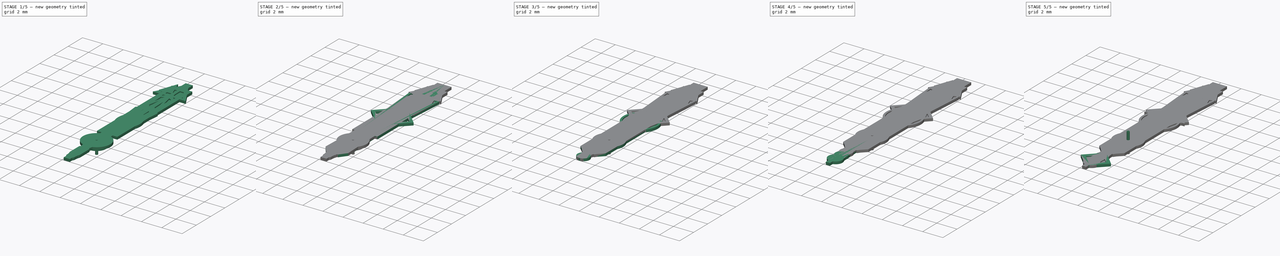
[diagram: build sequence overview — one tinted view per stage of 5, left to right]
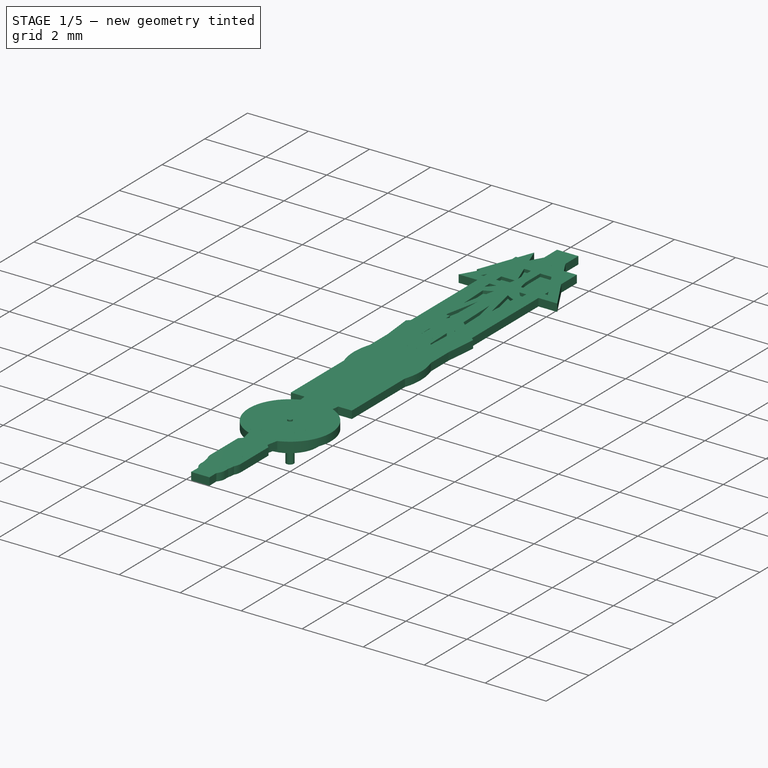
[diagram: stage 1 of 5 — iso view after this stage's code; geometry added in this stage tinted green]
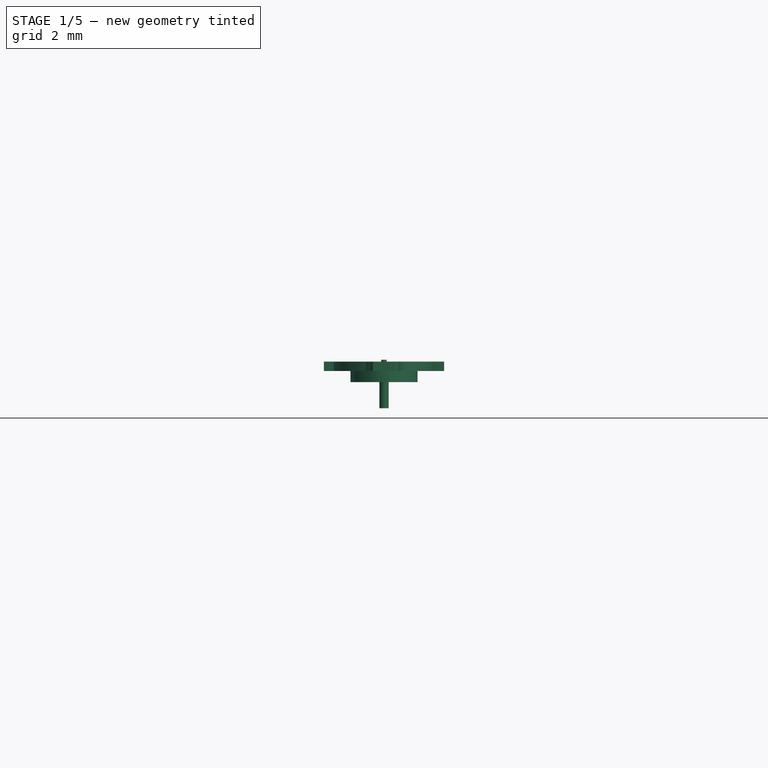
[diagram: stage 1 of 5 — front view after this stage's code; geometry added in this stage tinted green]
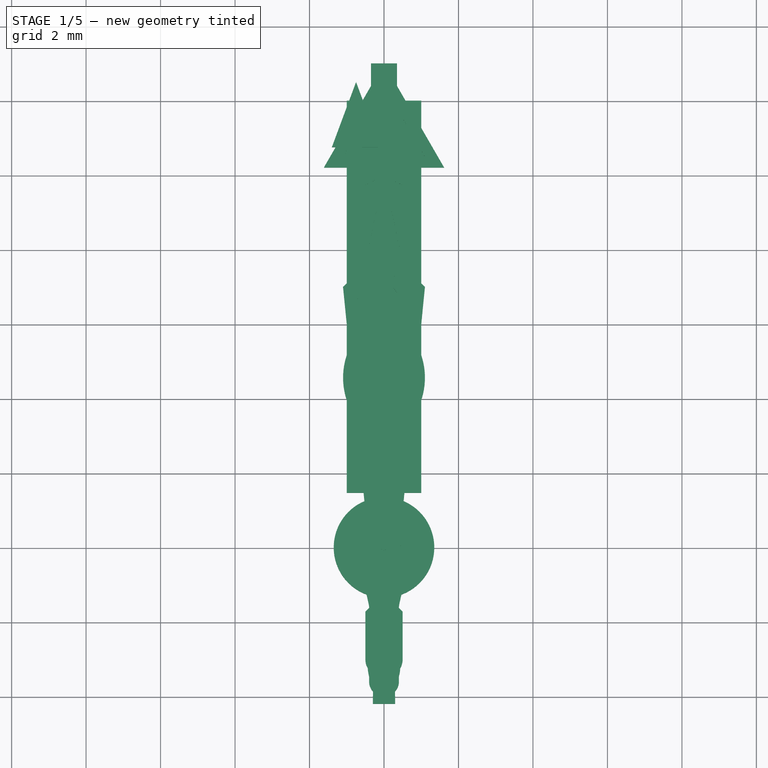
[diagram: stage 1 of 5 — top view after this stage's code; geometry added in this stage tinted green]
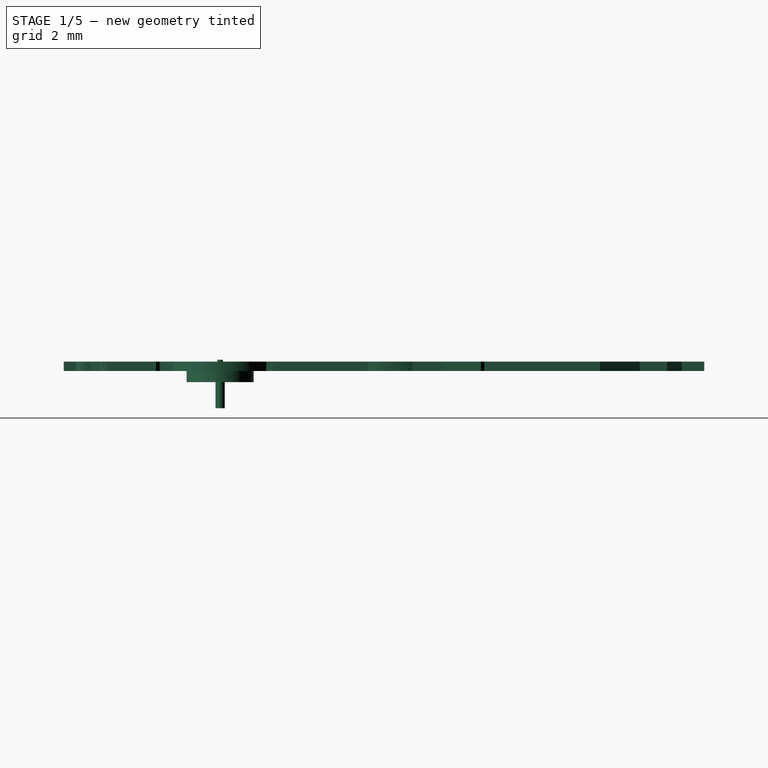
[diagram: stage 1 of 5 — right view after this stage's code; geometry added in this stage tinted green]
FCSTD DOCUMENT  (FreeCAD 0.19R20415 (Git))
Label: Vostok_Amphibia_Hands
License: All rights reserved
LicenseURL: http://en.wikipedia.org/wiki/All_rights_reserved
objects: Sketcher::SketchObject×163, PartDesign::Pad×96, PartDesign::Body×55, PartDesign::Pocket×48, Image::ImagePlane×36, PartDesign::Revolution×19, App::DocumentObjectGroup×4
note: 544 computed .brp shape members not serialized (recipe doc carries the construction recipe); baked Part::Feature solids carry a one-line shape summary decoded from their .brp

FEATURE [PartDesign::Body] Body035  label="Hour_hand_Neptune"
  Group = -> [Sketch130,Pad065,Sketch132,Revolution012,Sketch131,Pocket034]
  Origin = -> Origin037
  Placement = pos=(0,0,0) rot=(0,0,1;3.14159rad)
  Tip = -> Pocket034
FEATURE [Image::ImagePlane] ImagePlane026
  Placement = pos=(6.50647,-0.514102,0) rot=(0,0,1;0.628319rad)
  XSize = 31.1121
  YSize = 31.1121
FEATURE [Image::ImagePlane] ImagePlane027
  Placement = pos=(-5.71917,-1.1564,0) rot=(0,0,-1;0.584685rad)
  XSize = 31.1121
  YSize = 31.1121
FEATURE [Sketcher::SketchObject] Sketch134
  MapMode = 5
  Support = -> [XY_Plane038]
  sketch-geometry (13):
    g0: LineSegment StartX=0.5 StartY=1.46603 StartZ=0 EndX=0.5 EndY=0.866025 EndZ=0
    g1: LineSegment StartX=-0.5 StartY=1.46603 StartZ=0 EndX=-0.5 EndY=0.866025 EndZ=0
    g2: Circle CenterX=0 CenterY=0 CenterZ=0 NormalX=0 NormalY=0 NormalZ=1 AngleXU=0 Radius=0.45
    g3: ArcOfCircle CenterX=0 CenterY=0 CenterZ=0 NormalX=0 NormalY=0 NormalZ=1 AngleXU=0 Radius=1 StartAngle=2.0944 EndAngle=7.33038
    g4: LineSegment StartX=-0.5 StartY=1.46603 StartZ=0 EndX=-1 EndY=1.46603 EndZ=0
    g5: LineSegment StartX=-1 StartY=1.46603 StartZ=0 EndX=-1 EndY=12 EndZ=0
    g6: LineSegment StartX=-1 StartY=12 StartZ=0 EndX=-0.35 EndY=12 EndZ=0
    g7: LineSegment StartX=-0.35 StartY=12 StartZ=0 EndX=-0.35 EndY=13 EndZ=0
    g8: LineSegment StartX=-0.35 StartY=13 StartZ=0 EndX=0.35 EndY=13 EndZ=0
    g9: LineSegment StartX=0.35 StartY=13 StartZ=0 EndX=0.35 EndY=12 EndZ=0
    g10: LineSegment StartX=0.35 StartY=12 StartZ=0 EndX=1 EndY=12 EndZ=0
    g11: LineSegment StartX=1 StartY=12 StartZ=0 EndX=1 EndY=1.46603 EndZ=0
    g12: LineSegment StartX=1 StartY=1.46603 StartZ=0 EndX=0.5 EndY=1.46603 EndZ=0
  constraints (35):
    c: Coincident(g2,g-1)
    c: Diameter(g2) = 0.9
    c: Coincident(g3,g2)
    c: Symmetric(g1,g0,g-2)
    c: Diameter(g3) = 2
    c: Coincident(g0,g3)
    c: Coincident(g3,g1)
    c: DistanceX(g1,g0) = 1
    c: Vertical(g1)
    c: Symmetric(g1,g0,g-2)
    c: Coincident(g1,g4)
    c: Horizontal(g4)
    c: Coincident(g4,g5)
    c: Vertical(g5)
    c: Coincident(g5,g6)
    c: Horizontal(g6)
    c: Coincident(g6,g7)
    c: Vertical(g7)
    c: Coincident(g7,g8)
    c: Horizontal(g8)
    c: Coincident(g8,g9)
    c: Vertical(g9)
    c: Coincident(g9,g10)
    c: Horizontal(g10)
    c: Coincident(g10,g11)
    c: Vertical(g11)
    c: Coincident(g11,g12)
    c: Coincident(g12,g0)
    c: Symmetric(g11,g4,g-2)
    c: DistanceY(g0,g0) = 0.6
    c: DistanceY(g7) = 13
    c: DistanceX(g8,g8) = 0.7
    c: DistanceY(g9,g9) = 1
    c: DistanceX(g5,g10) = 2
    c: Symmetric(g6,g9,g-2)
FEATURE [PartDesign::Pad] Pad067
  AllowMultiFace = false
  Length = 0.25
  Length2 = 100
  Profile = -> Sketch134
  Type = 0
FEATURE [PartDesign::Body] Body049  label="Second_Hand_SnowFlakeSque"
  Group = -> [Sketch162,Pad081,Sketch164,Pocket049,Sketch163,Pad080,Sketch161,Pad082]
  Origin = -> Origin051
  Placement = pos=(0,0,0) rot=(0,0,1;3.14159rad)
  Tip = -> Pad082
FEATURE [Sketcher::SketchObject] Sketch165
  AttachmentOffset = pos=(0,0,0.2) rot=(0,0,1;0rad)
  MapMode = 5
  Placement = pos=(0,0,0.2) rot=(0,0,1;0rad)
  Support = -> [XY_Plane052]
  sketch-geometry (1):
    g0: Circle CenterX=0 CenterY=0 CenterZ=0 NormalX=0 NormalY=0 NormalZ=1 AngleXU=0 Radius=0.075
  constraints (2):
    c: Coincident(g0,g-1)
    c: Diameter(g0) = 0.15
FEATURE [Sketcher::SketchObject] Sketch167
  MapMode = 5
  Placement = pos=(0,0,0) rot=(0,1,0;3.14159rad)
  Support = -> [XY_Plane052]
  sketch-geometry (2):
    g0: Circle CenterX=0 CenterY=0 CenterZ=0 NormalX=0 NormalY=0 NormalZ=1 AngleXU=0 Radius=0.085
    g1: Circle CenterX=0 CenterY=0 CenterZ=0 NormalX=0 NormalY=0 NormalZ=1 AngleXU=0 Radius=0.125
  constraints (4):
    c: Coincident(g0,g-1)
    c: Coincident(g1,g0)
    c: Diameter(g0) = 0.17
    c: Diameter(g1) = 0.25
FEATURE [Sketcher::SketchObject] Sketch168
  MapMode = 5
  Support = -> [XY_Plane052]
  sketch-geometry (19):
    g0: LineSegment StartX=0.2 StartY=4.42082 StartZ=0 EndX=0.2 EndY=0.67082 EndZ=0
    g1: LineSegment StartX=-0.2 StartY=0.67082 StartZ=0 EndX=-0.2 EndY=3.92082 EndZ=0
    g2: ArcOfCircle CenterX=0 CenterY=0 CenterZ=0 NormalX=0 NormalY=0 NormalZ=1 AngleXU=0 Radius=0.7 StartAngle=1.86055 EndAngle=4.34718
    g3: LineSegment StartX=-0.3 StartY=-4.2 StartZ=0 EndX=-0.25 EndY=-0.653835 EndZ=0
    g4: LineSegment StartX=0.3 StartY=-4.2 StartZ=0 EndX=0.25 EndY=-0.653835 EndZ=0
    g5: ArcOfCircle CenterX=0 CenterY=0 CenterZ=0 NormalX=0 NormalY=0 NormalZ=1 AngleXU=0 Radius=0.7 StartAngle=5.0776 EndAngle=7.56423
    g6: LineSegment StartX=-0.3 StartY=-4.2 StartZ=0 EndX=0.3 EndY=-4.2 EndZ=0
    g7: LineSegment StartX=-1.4 StartY=10.75 StartZ=0 EndX=-0.75 EndY=12.5 EndZ=0
    g8: LineSegment StartX=-0.75 StartY=12.5 StartZ=0 EndX=-0.1 EndY=10.75 EndZ=0
    g9: LineSegment StartX=-0.1 StartY=10.75 StartZ=0 EndX=-0.6 EndY=10.75 EndZ=0
    g10: LineSegment StartX=-0.6 StartY=10.75 StartZ=0 EndX=-0.6 EndY=7.92082 EndZ=0
    g11: LineSegment StartX=-0.6 StartY=7.92082 StartZ=0 EndX=-0.3 EndY=7.92082 EndZ=0
    g12: LineSegment StartX=-0.3 StartY=7.92082 StartZ=0 EndX=-0.24 EndY=4.42082 EndZ=0
    g13: LineSegment StartX=-0.24 StartY=4.42082 StartZ=0 EndX=0.2 EndY=4.42082 EndZ=0
    g14: LineSegment StartX=-0.2 StartY=3.92082 StartZ=0 EndX=-0.6 EndY=3.92082 EndZ=0
    g15: LineSegment StartX=-0.6 StartY=3.92082 StartZ=0 EndX=-0.6 EndY=7.52082 EndZ=0
    g16: LineSegment StartX=-0.6 StartY=7.52082 StartZ=0 EndX=-0.9 EndY=7.52082 EndZ=0
    g17: LineSegment StartX=-0.9 StartY=7.52082 StartZ=0 EndX=-0.9 EndY=10.75 EndZ=0
    g18: LineSegment StartX=-0.9 StartY=10.75 StartZ=0 EndX=-1.4 EndY=10.75 EndZ=0
  constraints (55):
    c: Vertical(g0)
    c: Coincident(g2,g-1)
    c: Radius(g2) = 0.7
    c: Coincident(g5,g0)
    c: Coincident(g2,g1)
    c: Vertical(g1)
    c: Coincident(g2,g5)
    c: Symmetric(g3,g4,g-2)
    c: Symmetric(g3,g4,g-2)
    c: Coincident(g3,g2)
    c: Coincident(g5,g4)
    c: DistanceX(g2,g4) = 0.5
    c: DistanceX(g3,g4) = 0.6
    c: DistanceY(g4) = -4.2
    c: Coincident(g6,g3)
    c: Coincident(g6,g4)
    c: Symmetric(g1,g0,g-2)
    c: DistanceX(g1,g0) = 0.4
    c: Coincident(g7,g8)
    c: Coincident(g8,g9)
    c: Horizontal(g9)
    c: Coincident(g9,g10)
    c: Vertical(g10)
    c: Coincident(g10,g11)
    c: Horizontal(g11)
    c: Coincident(g11,g12)
    c: Coincident(g12,g13)
    c: Coincident(g13,g0)
    c: Horizontal(g13)
    c: Coincident(g1,g14)
    c: Coincident(g14,g15)
    c: Coincident(g15,g16)
    c: Coincident(g16,g17)
    c: Vertical(g17)
    c: Coincident(g17,g18)
    c: Coincident(g18,g7)
    c: DistanceY(g7) = 12.5
    c: Horizontal(g18)
    c: Horizontal(g9,g17)
    c: Equal(g9,g18)
    c: Equal(g7,g8)
    c: DistanceX(g18,g18) = 0.5
    c: DistanceX(g17,g9) = 0.3
    c: DistanceY(g17,g7) = 1.75
    c: Horizontal(g16)
    c: Horizontal(g14)
    c: DistanceX(g14,g14) = 0.4
    c: DistanceY(g1,g1) = 3.25
    c: DistanceY(g0,g0) = 3.75
    c: DistanceX(g13,g13) = 0.44
    c: DistanceX(g11,g11) = 0.3
    c: DistanceX(g16,g16) = 0.3
    c: DistanceY(g12,g12) = 3.5
    c: DistanceY(g15,g10) = 0.4
    c: Vertical(g15)
FEATURE [PartDesign::Pad] Pad084
  AllowMultiFace = false
  Length = 0.25
  Length2 = 100
  Profile = -> Sketch168
  Type = 0
FEATURE [PartDesign::Body] Body050  label="Second_Hand_Milgauss"
  Group = -> [Sketch168,Pad084,Sketch165,Pad083,Sketch167,Pad085]
  Origin = -> Origin052
  Placement = pos=(0,0,0) rot=(0,0,1;3.14159rad)
  Tip = -> Pad085
FEATURE [Image::ImagePlane] ImagePlane031
  Placement = pos=(0.255256,-3.95788,0) rot=(0,0,1;4.18879rad)
  XSize = 25.4512
  YSize = 21.3259
FEATURE [Sketcher::SketchObject] Sketch169
  MapMode = 5
  Placement = pos=(0,0,0) rot=(1,0,0;1.5708rad)
  Support = -> [XZ_Plane053]
  sketch-geometry (4):
    g0: LineSegment StartX=0.7 StartY=0 StartZ=0 EndX=0.9 EndY=0 EndZ=0
    g1: LineSegment StartX=0.9 StartY=0 StartZ=0 EndX=0.9 EndY=-0.3 EndZ=0
    g2: LineSegment StartX=0.9 StartY=-0.3 StartZ=0 EndX=0.7 EndY=-0.3 EndZ=0
    g3: LineSegment StartX=0.7 StartY=-0.3 StartZ=0 EndX=0.7 EndY=0 EndZ=0
FEATURE [Sketcher::SketchObject] Sketch171
  MapMode = 5
  Support = -> [XY_Plane053]
  sketch-geometry (6):
    g0: Circle CenterX=0 CenterY=0 CenterZ=0 NormalX=0 NormalY=0 NormalZ=1 AngleXU=0 Radius=0.7
    g1: LineSegment StartX=-1.1 StartY=7 StartZ=0 EndX=0 EndY=8 EndZ=0
    g2: LineSegment StartX=0 StartY=8 StartZ=0 EndX=1.1 EndY=7 EndZ=0
    g3: ArcOfCircle CenterX=0 CenterY=0 CenterZ=0 NormalX=0 NormalY=0 NormalZ=1 AngleXU=0 Radius=1.1 StartAngle=2.04266 EndAngle=7.38212
    g4: LineSegment StartX=-1.1 StartY=7 StartZ=0 EndX=-0.5 EndY=0.979796 EndZ=0
    g5: LineSegment StartX=1.1 StartY=7 StartZ=0 EndX=0.5 EndY=0.979796 EndZ=0
  constraints (16):
    c: Symmetric(g2,g1,g-2)
    c: Coincident(g0,g-1)
    c: Coincident(g3,g0)
    c: Coincident(g1,g4)
    c: Coincident(g4,g3)
    c: Coincident(g2,g5)
    c: Coincident(g5,g3)
    c: Symmetric(g3,g3,g-2)
    c: Radius(g0) = 0.7
    c: Radius(g3) = 1.1
    c: PointOnObject(g1,g-2)
    c: Coincident(g2,g1)
    c: DistanceY(g1) = 8
    c: DistanceX(g3,g3) = 1
    c: DistanceY(g1,g1) = 1
    c: DistanceX(g1,g2) = 2.2
FEATURE [PartDesign::Pad] Pad086
  AllowMultiFace = false
  Length = 0.25
  Length2 = 100
  Profile = -> Sketch171
  Type = 0
FEATURE [PartDesign::Revolution] Revolution014
  AllowMultiFace = false
  Angle = 360
  Axis = (0,-2e-16,1)
  Base = (0,0,0)
  BaseFeature = -> Pad086
  Profile = -> Sketch169
  ReferenceAxis = -> Sketch169 [V_Axis]
  Reversed = true
FEATURE [Sketcher::SketchObject] Sketch170
  AttachmentOffset = pos=(0,0,0.25) rot=(0,0,1;0rad)
  ExternalGeometry = -> [Revolution014]
  MapMode = 5
  Placement = pos=(0,0,0.25) rot=(0,0,1;0rad)
  Support = -> [XY_Plane053]
  sketch-geometry (7):
    g0: LineSegment StartX=-0.734261 StartY=6.85948 StartZ=0 EndX=0 EndY=7.52699 EndZ=0
    g1: LineSegment StartX=0 StartY=7.52699 StartZ=0 EndX=0.734261 EndY=6.85948 EndZ=0
    g2: LineSegment StartX=0.734261 StartY=6.85948 StartZ=0 EndX=0.225028 EndY=1.75 EndZ=0
    g3: LineSegment StartX=0.225028 StartY=1.75 StartZ=0 EndX=-0.225028 EndY=1.75 EndZ=0
    g4: LineSegment StartX=-0.225028 StartY=1.75 StartZ=0 EndX=-0.734261 EndY=6.85948 EndZ=0
    g5: LineSegment [constr] StartX=0 StartY=7.52699 StartZ=0 EndX=0.235435 EndY=7.78597 EndZ=0
    g6: LineSegment [constr] StartX=0.225028 StartY=1.75 StartZ=0 EndX=0.573303 EndY=1.71529 EndZ=0
  constraints (19):
    c: PointOnObject(g0,g-2)
    c: Coincident(g0,g1)
    c: Coincident(g1,g2)
    c: Coincident(g2,g3)
    c: Coincident(g3,g4)
    c: Coincident(g4,g0)
    c: Symmetric(g0,g1,g-2)
    c: Symmetric(g3,g2,g-2)
    c: Parallel(g-3,g1)
    c: Parallel(g2,g-4)
    c: Coincident(g5,g0)
    c: PointOnObject(g5,g-3)
    c: Coincident(g6,g2)
    c: PointOnObject(g6,g-4)
    c: Perpendicular(g-4,g6)
    c: Perpendicular(g-3,g5)
    c: Equal(g5,g6)
    c: Distance(g6) = 0.35
    c: DistanceY(g2) = 1.75
FEATURE [PartDesign::Pocket] Pocket050
  BaseFeature = -> Revolution014
  Length = 0.1
  Length2 = 100
  Profile = -> Sketch170
  Type = 0
FEATURE [PartDesign::Body] Body051  label="Hour_hand_SE"
  Group = -> [Sketch171,Pad086,Sketch169,Revolution014,Sketch170,Pocket050]
  Origin = -> Origin053
  Placement = pos=(0,0,0) rot=(0,0,1;3.14159rad)
  Tip = -> Pocket050
FEATURE [Image::ImagePlane] ImagePlane032
  Placement = pos=(5.26205,-5.7822,0) rot=(0,0,1;1.93731rad)
  XSize = 40.9992
  YSize = 40.9992
FEATURE [Sketcher::SketchObject] Sketch172
  MapMode = 5
  Support = -> [XY_Plane054]
  sketch-geometry (9):
    g0: Circle CenterX=0 CenterY=0 CenterZ=0 NormalX=0 NormalY=0 NormalZ=1 AngleXU=0 Radius=0.45
    g1: ArcOfCircle CenterX=0 CenterY=0 CenterZ=0 NormalX=0 NormalY=0 NormalZ=1 AngleXU=0 Radius=1 StartAngle=2.03756 EndAngle=7.38722
    g2: LineSegment StartX=-0.45 StartY=0.893029 StartZ=0 EndX=-0.85 EndY=9.8 EndZ=0
    g3: LineSegment StartX=0.85 StartY=9.8 StartZ=0 EndX=0.45 EndY=0.893029 EndZ=0
    g4: LineSegment StartX=-0.15 StartY=10.9225 StartZ=0 EndX=-0.15 EndY=12.5 EndZ=0
    g5: LineSegment StartX=-0.15 StartY=12.5 StartZ=0 EndX=0.15 EndY=12.5 EndZ=0
    g6: LineSegment StartX=0.15 StartY=12.5 StartZ=0 EndX=0.15 EndY=10.9225 EndZ=0
    g7: ArcOfCircle CenterX=-1.4 CenterY=10.9225 CenterZ=0 NormalX=0 NormalY=0 NormalZ=1 AngleXU=0 Radius=1.25 StartAngle=5.16799 EndAngle=6.28319
    g8: ArcOfCircle CenterX=1.4 CenterY=10.9225 CenterZ=0 NormalX=0 NormalY=0 NormalZ=1 AngleXU=0 Radius=1.25 StartAngle=3.14159 EndAngle=4.25679
  constraints (23):
    c: Coincident(g0,g-1)
    c: Coincident(g1,g0)
    c: Symmetric(g1,g1,g-2)
    c: Radius(g0) = 0.45
    c: Radius(g1) = 1
    c: Symmetric(g3,g2,g-2)
    c: DistanceX(g2,g3) = 0.9
    c: Symmetric(g2,g3,g-2)
    c: Coincident(g1,g2)
    c: DistanceX(g2,g3) = 1.7
    c: DistanceY(g3) = 9.8
    c: Vertical(g4)
    c: Coincident(g4,g5)
    c: Coincident(g5,g6)
    c: Symmetric(g4,g5,g-2)
    c: DistanceY(g4) = 12.5
    c: Coincident(g8,g3)
    c: Tangent(g8,g6) = -1.5708
    c: Tangent(g7,g4) = -1.5708
    c: Coincident(g2,g7)
    c: DistanceX(g5,g5) = 0.3
    c: Symmetric(g4,g6,g-2)
    c: Radius(g8) = 1.25
FEATURE [PartDesign::Pad] Pad087
  AllowMultiFace = false
  Length = 0.25
  Length2 = 100
  Profile = -> Sketch172
  Type = 0
FEATURE [Sketcher::SketchObject] Sketch173
  AttachmentOffset = pos=(0,0,0.25) rot=(0,0,1;0rad)
  ExternalGeometry = -> [Pad087]
  MapMode = 5
  Placement = pos=(0,0,0.25) rot=(0,0,1;0rad)
  Support = -> [XY_Plane054]
  sketch-geometry (9):
    g0: LineSegment StartX=-0.325744 StartY=4.6 StartZ=0 EndX=0.325744 EndY=4.6 EndZ=0
    g1: LineSegment StartX=0.325744 StartY=4.6 StartZ=0 EndX=0.2 EndY=1.8 EndZ=0
    g2: LineSegment StartX=0.2 StartY=1.8 StartZ=0 EndX=-0.2 EndY=1.8 EndZ=0
    g3: LineSegment StartX=-0.2 StartY=1.8 StartZ=0 EndX=-0.325744 EndY=4.6 EndZ=0
    g4: LineSegment StartX=-0.5 StartY=9.73981 StartZ=0 EndX=-0.312035 EndY=5.55431 EndZ=0
    g5: LineSegment StartX=-0.312035 StartY=5.55431 StartZ=0 EndX=0.312035 EndY=5.55431 EndZ=0
    g6: LineSegment StartX=0.312035 StartY=5.55431 StartZ=0 EndX=0.5 EndY=9.73981 EndZ=0
    g7: ArcOfCircle CenterX=0.790954 CenterY=10.6592 CenterZ=0 NormalX=0 NormalY=0 NormalZ=1 AngleXU=0 Radius=0.964336 StartAngle=3.75062 EndAngle=4.4059
    g8: ArcOfCircle CenterX=-0.830642 CenterY=10.7132 CenterZ=0 NormalX=0 NormalY=0 NormalZ=1 AngleXU=0 Radius=1.02798 StartAngle=5.03985 EndAngle=5.65319
  constraints (20):
    c: Coincident(g0,g1)
    c: Coincident(g1,g2)
    c: Coincident(g2,g3)
    c: Coincident(g3,g0)
    c: Parallel(g1,g-3)
    c: Symmetric(g0,g0,g-2)
    c: Symmetric(g2,g1,g-2)
    c: DistanceX(g2,g2) = 0.4
    c: DistanceY(g1) = 1.8
    c: DistanceY(g0) = 4.6
    c: Coincident(g4,g5)
    c: Coincident(g5,g6)
    c: Symmetric(g4,g5,g-2)
    c: Parallel(g-3,g6)
    c: Symmetric(g6,g4,g-2)
    c: PointOnObject(g7,g-2)
    c: Coincident(g7,g6)
    c: Coincident(g8,g7)
    c: Coincident(g8,g4)
    c: DistanceX(g4,g6) = 1
FEATURE [PartDesign::Pocket] Pocket051
  BaseFeature = -> Pad087
  Length = 0.1
  Length2 = 100
  Profile = -> Sketch173
  Type = 0
FEATURE [PartDesign::Body] Body052  label="Minutes_Kremlin"
  Group = -> [Sketch172,Pad087,Sketch173,Pocket051]
  Origin = -> Origin054
  Placement = pos=(0,0,0) rot=(0,0,1;3.14159rad)
  Tip = -> Pocket051
FEATURE [Sketcher::SketchObject] Sketch174
  AttachmentOffset = pos=(0,0,0.25) rot=(0,0,1;0rad)
  MapMode = 5
  Placement = pos=(0,0,0.25) rot=(0,0,1;0rad)
  Support = -> [XY_Plane038]
  sketch-geometry (4):
    g0: LineSegment StartX=-0.6 StartY=11.5 StartZ=0 EndX=0.6 EndY=11.5 EndZ=0
    g1: LineSegment StartX=0.6 StartY=11.5 StartZ=0 EndX=0.6 EndY=2 EndZ=0
    g2: LineSegment StartX=0.6 StartY=2 StartZ=0 EndX=-0.6 EndY=2 EndZ=0
    g3: LineSegment StartX=-0.6 StartY=2 StartZ=0 EndX=-0.6 EndY=11.5 EndZ=0
  constraints (11):
    c: Coincident(g0,g1)
    c: Coincident(g1,g2)
    c: Coincident(g2,g3)
    c: Coincident(g3,g0)
    c: Horizontal(g0)
    c: Vertical(g1)
    c: Vertical(g3)
    c: Symmetric(g2,g1,g-2)
    c: DistanceY(g1) = 2
    c: DistanceX(g0,g0) = 1.2
    c: DistanceY(g1,g1) = 9.5
FEATURE [PartDesign::Pocket] Pocket052
  BaseFeature = -> Pad067
  Length = 0.1
  Length2 = 100
  Profile = -> Sketch174
  Type = 0
FEATURE [PartDesign::Body] Body036  label="Minute_Neptune"
  Group = -> [Sketch134,Pad067,Sketch174,Pocket052]
  Origin = -> Origin038
  Placement = pos=(0,0,0) rot=(0,0,1;3.14159rad)
  Tip = -> Pocket052
FEATURE [Image::ImagePlane] ImagePlane033
  Placement = pos=(7.05385,0.67969,0) rot=(0,0,1;3.70883rad)
  XSize = 28.0162
  YSize = 56.0323
FEATURE [Sketcher::SketchObject] Sketch175
  MapMode = 5
  Support = -> [XY_Plane055]
  sketch-geometry (9):
    g0: ArcOfCircle CenterX=0 CenterY=0 CenterZ=0 NormalX=0 NormalY=0 NormalZ=1 AngleXU=0 Radius=0.75 StartAngle=4.87984 EndAngle=7.65262
    g1: LineSegment StartX=0.1 StartY=12.5 StartZ=0 EndX=0.15 EndY=0.734847 EndZ=0
    g2: LineSegment StartX=-0.1 StartY=0.743303 StartZ=0 EndX=-0.1 EndY=12.5 EndZ=0
    g3: ArcOfCircle CenterX=0 CenterY=0 CenterZ=0 NormalX=0 NormalY=0 NormalZ=1 AngleXU=0 Radius=0.75 StartAngle=1.70453 EndAngle=4.54494
    g4: LineSegment StartX=-0.1 StartY=12.5 StartZ=0 EndX=0.1 EndY=12.5 EndZ=0
    g5: ArcOfCircle CenterX=0.511321 CenterY=-3.20218 CenterZ=0 NormalX=0 NormalY=0 NormalZ=1 AngleXU=0 Radius=0.947609 StartAngle=2.30703 EndAngle=4.14244
    g6: LineSegment StartX=-0.125 StartY=-0.73951 StartZ=0 EndX=-0.125 EndY=-2.5 EndZ=0
    g7: LineSegment StartX=0.125 StartY=-0.73951 StartZ=0 EndX=0.125 EndY=-2.5 EndZ=0
    g8: ArcOfCircle CenterX=-0.511321 CenterY=-3.20218 CenterZ=0 NormalX=0 NormalY=0 NormalZ=1 AngleXU=0 Radius=0.947609 StartAngle=5.28234 EndAngle=7.11775
  constraints (26):
    c: Coincident(g0,g-1)
    c: Vertical(g2)
    c: Coincident(g0,g1)
    c: Coincident(g0,g3)
    c: Symmetric(g2,g1,g-2)
    c: Coincident(g2,g3)
    c: Symmetric(g3,g0,g-2)
    c: Diameter(g3) = 1.5
    c: DistanceX(g2,g0) = 0.25
    c: DistanceX(g3,g0) = 0.25
    c: Coincident(g4,g2)
    c: Coincident(g4,g1)
    c: DistanceY(g2) = 12.5
    c: DistanceX(g4,g4) = 0.2
    c: PointOnObject(g5,g-2)
    c: DistanceY(g5) = -4
    c: Vertical(g6)
    c: Coincident(g6,g5)
    c: Coincident(g6,g3)
    c: Vertical(g7)
    c: Coincident(g7,g0)
    c: Coincident(g8,g7)
    c: Coincident(g8,g5)
    c: Symmetric(g5,g8,g-2)
    c: Symmetric(g7,g5,g-2)
    c: DistanceY(g7) = -2.5
FEATURE [Sketcher::SketchObject] Sketch176
  MapMode = 5
  Placement = pos=(0,0,0.25) rot=(0,0,1;0rad)
  sketch-geometry (1):
    g0: Circle CenterX=0 CenterY=0 CenterZ=0 NormalX=0 NormalY=0 NormalZ=1 AngleXU=0 Radius=0.075
  constraints (2):
    c: Coincident(g0,g-1)
    c: Diameter(g0) = 0.15
FEATURE [PartDesign::Pad] Pad090
  AllowMultiFace = false
  Length = 0.25
  Length2 = 100
  Profile = -> Sketch175
  Type = 0
FEATURE [PartDesign::Pad] Pad088
  AllowMultiFace = false
  BaseFeature = -> Pad090
  Length = 0.05
  Length2 = 100
  Profile = -> Sketch176
  Type = 0
FEATURE [Sketcher::SketchObject] Sketch177
  MapMode = 5
  Placement = pos=(0,0,0) rot=(1,0,0;3.14159rad)
  Support = -> [Pad088]
  sketch-geometry (2):
    g0: Circle CenterX=0 CenterY=0 CenterZ=0 NormalX=0 NormalY=0 NormalZ=1 AngleXU=0 Radius=0.085
    g1: Circle CenterX=0 CenterY=0 CenterZ=0 NormalX=0 NormalY=0 NormalZ=1 AngleXU=0 Radius=0.125
  constraints (4):
    c: Coincident(g0,g-1)
    c: Coincident(g1,g0)
    c: Diameter(g0) = 0.17
    c: Diameter(g1) = 0.25
FEATURE [PartDesign::Pad] Pad089
  AllowMultiFace = false
  BaseFeature = -> Pad088
  Length = 1
  Length2 = 100
  Profile = -> Sketch177
  Type = 0
FEATURE [PartDesign::Body] Body053  label="Second_Troika"
  Group = -> [Sketch175,Pad090,Sketch176,Pad088,Sketch177,Pad089]
  Origin = -> Origin055
  Placement = pos=(0,0,0) rot=(0,0,1;3.14159rad)
  Tip = -> Pad089
FEATURE [Image::ImagePlane] ImagePlane034
  Placement = pos=(-5.30915,-4.07526,0) rot=(0,0,-1;3.64774rad)
  XSize = 20.8886
  YSize = 30.1302
FEATURE [Sketcher::SketchObject] Sketch178
  MapMode = 5
  Support = -> [XY_Plane056]
  sketch-geometry (8):
    g0: ArcOfCircle CenterX=0 CenterY=0 CenterZ=0 NormalX=0 NormalY=0 NormalZ=1 AngleXU=0 Radius=0.75 StartAngle=4.98232 EndAngle=7.65262
    g1: LineSegment StartX=0.1 StartY=12.5 StartZ=0 EndX=0.15 EndY=0.734847 EndZ=0
    g2: LineSegment StartX=-0.1 StartY=0.743303 StartZ=0 EndX=-0.1 EndY=12.5 EndZ=0
    g3: ArcOfCircle CenterX=0 CenterY=0 CenterZ=0 NormalX=0 NormalY=0 NormalZ=1 AngleXU=0 Radius=0.75 StartAngle=1.70453 EndAngle=4.44246
    g4: LineSegment StartX=-0.1 StartY=12.5 StartZ=0 EndX=0.1 EndY=12.5 EndZ=0
    g5: LineSegment StartX=-0.2 StartY=-0.722842 StartZ=0 EndX=-0.2 EndY=-3.25 EndZ=0
    g6: LineSegment StartX=0.2 StartY=-0.722842 StartZ=0 EndX=0.2 EndY=-3.25 EndZ=0
    g7: LineSegment StartX=-0.2 StartY=-3.25 StartZ=0 EndX=0.2 EndY=-3.25 EndZ=0
  constraints (21):
    c: Coincident(g0,g-1)
    c: Vertical(g2)
    c: Coincident(g0,g1)
    c: Coincident(g0,g3)
    c: Symmetric(g2,g1,g-2)
    c: Coincident(g2,g3)
    c: Symmetric(g3,g0,g-2)
    c: Diameter(g3) = 1.5
    c: DistanceX(g2,g0) = 0.25
    c: DistanceX(g3,g0) = 0.4
    c: Coincident(g4,g2)
    c: Coincident(g4,g1)
    c: DistanceY(g2) = 12.5
    c: DistanceX(g4,g4) = 0.2
    c: Vertical(g5)
    c: Coincident(g5,g3)
    c: Coincident(g6,g0)
    c: Symmetric(g6,g5,g-2)
    c: Coincident(g7,g5)
    c: Coincident(g7,g6)
    c: DistanceY(g6) = -3.25
FEATURE [Sketcher::SketchObject] Sketch179
  MapMode = 5
  Placement = pos=(0,0,0.25) rot=(0,0,1;0rad)
  sketch-geometry (1):
    g0: Circle CenterX=0 CenterY=0 CenterZ=0 NormalX=0 NormalY=0 NormalZ=1 AngleXU=0 Radius=0.075
  constraints (2):
    c: Coincident(g0,g-1)
    c: Diameter(g0) = 0.15
FEATURE [PartDesign::Pad] Pad092
  AllowMultiFace = false
  Length = 0.25
  Length2 = 100
  Profile = -> Sketch178
  Type = 0
FEATURE [PartDesign::Pad] Pad091
  AllowMultiFace = false
  BaseFeature = -> Pad092
  Length = 0.05
  Length2 = 100
  Profile = -> Sketch179
  Type = 0
FEATURE [Sketcher::SketchObject] Sketch180
  MapMode = 5
  Placement = pos=(0,0,0) rot=(1,0,0;3.14159rad)
  Support = -> [Pad091]
  sketch-geometry (2):
    g0: Circle CenterX=0 CenterY=0 CenterZ=0 NormalX=0 NormalY=0 NormalZ=1 AngleXU=0 Radius=0.085
    g1: Circle CenterX=0 CenterY=0 CenterZ=0 NormalX=0 NormalY=0 NormalZ=1 AngleXU=0 Radius=0.125
  constraints (4):
    c: Coincident(g0,g-1)
    c: Coincident(g1,g0)
    c: Diameter(g0) = 0.17
    c: Diameter(g1) = 0.25
FEATURE [PartDesign::Pad] Pad093
  AllowMultiFace = false
  BaseFeature = -> Pad091
  Length = 1
  Length2 = 100
  Profile = -> Sketch180
  Type = 0
FEATURE [PartDesign::Body] Body054  label="Second_Kremlin"
  Group = -> [Sketch178,Pad092,Sketch179,Pad091,Sketch180,Pad093]
  Origin = -> Origin056
  Placement = pos=(0,0,0) rot=(0,0,1;3.14159rad)
  Tip = -> Pad093
FEATURE [App::DocumentObjectGroup] Group002  label="Seconds"
  Group = -> [Body009,Body010,Body011,Body012,Body013,Body014,Body015,Body016,Body017,Body018,Body019,Body020,Body021,Body022,Body049,Body050,Body053,Body054]
FEATURE [Sketcher::SketchObject] Sketch181
  MapMode = 5
  Support = -> [XY_Plane057]
  sketch-geometry (13):
    g0: Circle CenterX=0 CenterY=0 CenterZ=0 NormalX=0 NormalY=0 NormalZ=1 AngleXU=0 Radius=0.7
    g1: ArcOfCircle CenterX=0 CenterY=0 CenterZ=0 NormalX=0 NormalY=0 NormalZ=1 AngleXU=0 Radius=1.2 StartAngle=1.95519 EndAngle=7.46958
    g2: LineSegment StartX=-0.45 StartY=3 StartZ=0 EndX=-0.45 EndY=1.11243 EndZ=0
    g3: LineSegment StartX=0.45 StartY=3 StartZ=0 EndX=0.45 EndY=1.11243 EndZ=0
    g4: LineSegment StartX=-0.1 StartY=6.75 StartZ=0 EndX=-0.1 EndY=8.5 EndZ=0
    g5: LineSegment StartX=-0.1 StartY=8.5 StartZ=0 EndX=0.1 EndY=8.5 EndZ=0
    g6: LineSegment StartX=0.1 StartY=8.5 StartZ=0 EndX=0.1 EndY=6.75 EndZ=0
    g7: ArcOfCircle CenterX=1.1 CenterY=6.75 CenterZ=0 NormalX=0 NormalY=0 NormalZ=1 AngleXU=0 Radius=1 StartAngle=3.14159 EndAngle=3.99745
    g8: ArcOfCircle CenterX=-0.80115 CenterY=4.56011 CenterZ=0 NormalX=0 NormalY=0 NormalZ=1 AngleXU=0 Radius=1.9 StartAngle=5.49491 EndAngle=7.13905
    g9: ArcOfCircle CenterX=0.75 CenterY=3 CenterZ=0 NormalX=0 NormalY=0 NormalZ=1 AngleXU=0 Radius=0.3 StartAngle=2.35332 EndAngle=3.14159
    g10: ArcOfCircle CenterX=-1.1 CenterY=6.75 CenterZ=0 NormalX=0 NormalY=0 NormalZ=1 AngleXU=0 Radius=1 StartAngle=5.42732 EndAngle=6.28319
    g11: ArcOfCircle CenterX=0.80115 CenterY=4.56011 CenterZ=0 NormalX=0 NormalY=0 NormalZ=1 AngleXU=0 Radius=1.9 StartAngle=2.28573 EndAngle=3.92987
    g12: ArcOfCircle CenterX=-0.75 CenterY=3 CenterZ=0 NormalX=0 NormalY=0 NormalZ=1 AngleXU=0 Radius=0.3 StartAngle=-9e-16 EndAngle=0.788277
  constraints (32):
    c: Symmetric(g3,g2,g-2)
    c: Coincident(g0,g-1)
    c: Coincident(g1,g0)
    c: Coincident(g2,g1)
    c: Coincident(g3,g1)
    c: Symmetric(g1,g1,g-2)
    c: Radius(g0) = 0.7
    c: Radius(g1) = 1.2
    c: DistanceX(g1,g1) = 0.9
    c: Vertical(g3)
    c: Coincident(g4,g5)
    c: Coincident(g5,g6)
    c: Symmetric(g4,g5,g-2)
    c: DistanceX(g5,g5) = 0.2
    c: Tangent(g9,g3) = -1.5708
    c: Tangent(g9,g8) = 1.5708
    c: Tangent(g7,g8) = 1.5708
    c: Tangent(g7,g6) = -1.5708
    c: Tangent(g12,g11) = 1.5708
    c: Tangent(g12,g2) = 1.5708
    c: Tangent(g4,g10) = -1.5708
    c: Tangent(g11,g10) = 1.5708
    c: Symmetric(g4,g6,g-2)
    c: Vertical(g4)
    c: Symmetric(g11,g8,g-2)
    c: DistanceY(g3) = 3
    c: Radius(g9) = 0.3
    c: DistanceY(g6,g6) = 1.75
    c: DistanceY(g4) = 8.5
    c: Equal(g10,g7)
    c: Radius(g8) = 1.9
    c: Radius(g7) = 1
FEATURE [Sketcher::SketchObject] Sketch183
  MapMode = 5
  Placement = pos=(0,0,0) rot=(1,0,0;1.5708rad)
  Support = -> [XZ_Plane057]
  sketch-geometry (4):
    g0: LineSegment StartX=0.7 StartY=0 StartZ=0 EndX=0.9 EndY=0 EndZ=0
    g1: LineSegment StartX=0.9 StartY=0 StartZ=0 EndX=0.9 EndY=-0.3 EndZ=0
    g2: LineSegment StartX=0.9 StartY=-0.3 StartZ=0 EndX=0.7 EndY=-0.3 EndZ=0
    g3: LineSegment StartX=0.7 StartY=-0.3 StartZ=0 EndX=0.7 EndY=0 EndZ=0
FEATURE [PartDesign::Pad] Pad094
  AllowMultiFace = false
  Length = 0.25
  Length2 = 100
  Profile = -> Sketch181
  Type = 0
FEATURE [PartDesign::Revolution] Revolution015
  AllowMultiFace = false
  Angle = 360
  Axis = (0,-2e-16,1)
  Base = (0,0,0)
  BaseFeature = -> Pad094
  Profile = -> Sketch183
  ReferenceAxis = -> Sketch183 [V_Axis]
  Reversed = true
FEATURE [Sketcher::SketchObject] Sketch182
  AttachmentOffset = pos=(0,0,0.25) rot=(0,0,1;0rad)
  ExternalGeometry = -> [Revolution015]
  MapMode = 5
  Placement = pos=(0,0,0.25) rot=(0,0,1;0rad)
  Support = -> [XY_Plane057]
  sketch-geometry (21):
    g0: LineSegment StartX=-0.25 StartY=5.9 StartZ=0 EndX=0 EndY=6.4 EndZ=0
    g1: LineSegment StartX=0 StartY=6.4 StartZ=0 EndX=0.25 EndY=5.9 EndZ=0
    g2: LineSegment StartX=0.25 StartY=5.9 StartZ=0 EndX=0 EndY=5.4 EndZ=0
    g3: LineSegment StartX=0 StartY=5.4 StartZ=0 EndX=-0.25 EndY=5.9 EndZ=0
    g4: LineSegment StartX=-0.2 StartY=3.35 StartZ=0 EndX=0 EndY=3.75 EndZ=0
    g5: LineSegment StartX=0 StartY=3.75 StartZ=0 EndX=0.2 EndY=3.35 EndZ=0
    g6: LineSegment StartX=0.2 StartY=3.35 StartZ=0 EndX=0.2 EndY=1.6 EndZ=0
    g7: LineSegment StartX=-0.2 StartY=1.6 StartZ=0 EndX=-0.2 EndY=3.35 EndZ=0
    g8: ArcOfCircle CenterX=2.41806 CenterY=4.6 CenterZ=0 NormalX=0 NormalY=0 NormalZ=1 AngleXU=0 Radius=2.26806 StartAngle=2.67648 EndAngle=3.60671
    g9: ArcOfCircle CenterX=-1.36806 CenterY=4.6 CenterZ=0 NormalX=0 NormalY=0 NormalZ=1 AngleXU=0 Radius=2.26806 StartAngle=5.81807 EndAngle=6.7483
    g10: ArcOfCircle CenterX=0.525 CenterY=5.55 CenterZ=0 NormalX=0 NormalY=0 NormalZ=1 AngleXU=0 Radius=0.15 StartAngle=0.465114 EndAngle=2.67648
    g11: ArcOfCircle CenterX=0.525 CenterY=3.65 CenterZ=0 NormalX=0 NormalY=0 NormalZ=1 AngleXU=0 Radius=0.15 StartAngle=3.60671 EndAngle=5.81807
    g12: ArcOfCircle CenterX=-1e-16 CenterY=2.05826 CenterZ=0 NormalX=0 NormalY=0 NormalZ=1 AngleXU=0 Radius=0.5 StartAngle=4.30087 EndAngle=5.12391
    g13: GeomPoint X=0.15 Y=4.6 Z=0
    g14: GeomPoint X=0.9 Y=4.6 Z=0
    g15: GeomPoint X=0.525 Y=5.7 Z=0
    g16: GeomPoint X=0.525 Y=3.5 Z=0
    g17: ArcOfCircle CenterX=1.36806 CenterY=4.6 CenterZ=0 NormalX=0 NormalY=0 NormalZ=1 AngleXU=0 Radius=2.26806 StartAngle=2.67648 EndAngle=3.60671
    g18: ArcOfCircle CenterX=-0.525 CenterY=5.55 CenterZ=0 NormalX=0 NormalY=0 NormalZ=1 AngleXU=0 Radius=0.15 StartAngle=0.465114 EndAngle=2.67648
    g19: ArcOfCircle CenterX=-2.41806 CenterY=4.6 CenterZ=0 NormalX=0 NormalY=0 NormalZ=1 AngleXU=0 Radius=2.26806 StartAngle=5.81807 EndAngle=6.7483
    g20: ArcOfCircle CenterX=-0.525 CenterY=3.65 CenterZ=0 NormalX=0 NormalY=0 NormalZ=1 AngleXU=0 Radius=0.15 StartAngle=3.60671 EndAngle=5.81807
  constraints (55):
    c: PointOnObject(g0,g-2)
    c: Coincident(g0,g1)
    c: Coincident(g1,g2)
    c: PointOnObject(g2,g-2)
    c: Coincident(g2,g3)
    c: Coincident(g3,g0)
    c: PointOnObject(g4,g-2)
    c: Coincident(g4,g5)
    c: Coincident(g5,g6)
    c: Vertical(g6)
    c: Coincident(g7,g4)
    c: Symmetric(g5,g4,g-2)
    c: Symmetric(g7,g6,g-2)
    c: Coincident(g12,g7)
    c: Coincident(g12,g6)
    c: DistanceY(g6) = 1.6
    c: Radius(g12) = 0.5
    c: DistanceX(g6,g-3) = 0.25
    c: Symmetric(g0,g1,g-2)
    c: Equal(g1,g2)
    c: DistanceY(g2,g0) = 1
    c: DistanceY(g2) = 5.4
    c: Tangent(g10,g8) = -1.5708
    c: Tangent(g10,g9) = -1.5708
    c: Tangent(g11,g9) = -1.5708
    c: Tangent(g8,g11) = -1.5708
    c: Equal(g11,g10)
    c: Equal(g9,g8)
    c: Vertical(g10,g11)
    c: PointOnObject(g13,g8)
    c: PointOnObject(g14,g9)
    c: PointOnObject(g15,g10)
    c: PointOnObject(g16,g11)
    c: Vertical(g16,g15)
    c: Horizontal(g13,g14)
    c: Horizontal(g9,g13)
    c: Vertical(g10,g15)
    c: DistanceY(g13) = 4.6
    c: DistanceX(g13) = 0.15
    c: Radius(g10) = 0.15
    c: DistanceX(g13,g14) = 0.75
    c: DistanceX(g0,g1) = 0.5
    c: DistanceY(g5,g4) = 0.4
    c: DistanceY(g16,g15) = 2.2
    c: DistanceY(g4) = 3.75
    c: Tangent(g18,g17) = -1.5708
    c: Tangent(g18,g19) = -1.5708
    c: Tangent(g20,g19) = -1.5708
    c: Tangent(g17,g20) = -1.5708
    c: Equal(g20,g18)
    c: Equal(g19,g17)
    c: Vertical(g18,g20)
    c: Equal(g10,g18) = 0.15
    c: Symmetric(g18,g8,g-2)
    c: Symmetric(g17,g9,g-2)
FEATURE [PartDesign::Pocket] Pocket053
  BaseFeature = -> Revolution015
  Length = 0.1
  Length2 = 100
  Profile = -> Sketch182
  Type = 0
FEATURE [PartDesign::Body] Body055  label="Hour_hand_Kremlin"
  Group = -> [Sketch181,Pad094,Sketch183,Revolution015,Sketch182,Pocket053]
  Origin = -> Origin057
  Placement = pos=(0,0,0) rot=(0,0,1;3.14159rad)
  Tip = -> Pocket053
FEATURE [Image::ImagePlane] ImagePlane035
  Placement = pos=(5.47498,-2.49132,0) rot=(0,0,-1;4.41568rad)
  XSize = 24.9988
  YSize = 41.0191
FEATURE [App::DocumentObjectGroup] Group003  label="Images"
  Group = -> [ImagePlane016,ImagePlane019,ImagePlane020,ImagePlane021,ImagePlane022,ImagePlane027,ImagePlane029,ImagePlane013,ImagePlane026,ImagePlane023,ImagePlane007,ImagePlane014,ImagePlane012,ImagePlane030,ImagePlane015,ImagePlane028,ImagePlane017,ImagePlane018,ImagePlane024,ImagePlane025,ImagePlane005,ImagePlane006,ImagePlane010,ImagePlane011,ImagePlane001,ImagePlane002,ImagePlane003,ImagePlane004,+8 more]
FEATURE [Sketcher::SketchObject] Sketch184
  MapMode = 5
  Support = -> [XY_Plane058]
  sketch-geometry (9):
    g0: Circle CenterX=0 CenterY=0 CenterZ=0 NormalX=0 NormalY=0 NormalZ=1 AngleXU=0 Radius=0.45
    g1: ArcOfCircle CenterX=0 CenterY=0 CenterZ=0 NormalX=0 NormalY=0 NormalZ=1 AngleXU=0 Radius=0.8 StartAngle=2.1682 EndAngle=3.98965
    g2: LineSegment StartX=-0.45 StartY=0.661438 StartZ=0 EndX=-0.1 EndY=12.5 EndZ=0
    g3: LineSegment StartX=0.1 StartY=12.5 StartZ=0 EndX=0.45 EndY=0.661438 EndZ=0
    g4: LineSegment StartX=-0.1 StartY=12.5 StartZ=0 EndX=0.1 EndY=12.5 EndZ=0
    g5: LineSegment StartX=-0.52915 StartY=-0.6 StartZ=0 EndX=-0.25 EndY=-2.75 EndZ=0
    g6: LineSegment StartX=-0.25 StartY=-2.75 StartZ=0 EndX=0.25 EndY=-2.75 EndZ=0
    g7: LineSegment StartX=0.25 StartY=-2.75 StartZ=0 EndX=0.52915 EndY=-0.6 EndZ=0
    g8: ArcOfCircle CenterX=0 CenterY=0 CenterZ=0 NormalX=0 NormalY=0 NormalZ=1 AngleXU=0 Radius=0.8 StartAngle=5.43512 EndAngle=7.25658
  constraints (23):
    c: Coincident(g0,g-1)
    c: Coincident(g1,g0)
    c: Symmetric(g8,g1,g-2)
    c: Radius(g0) = 0.45
    c: Radius(g1) = 0.8
    c: Symmetric(g3,g2,g-2)
    c: DistanceX(g2,g3) = 0.9
    c: Symmetric(g2,g3,g-2)
    c: Coincident(g1,g2)
    c: Symmetric(g4,g4,g-2)
    c: DistanceY(g4) = 12.5
    c: DistanceX(g4,g4) = 0.2
    c: Coincident(g5,g6)
    c: Coincident(g6,g7)
    c: Coincident(g1,g5)
    c: Coincident(g8,g7)
    c: Coincident(g1,g8)
    c: Symmetric(g1,g7,g-2)
    c: Symmetric(g5,g6,g-2)
    c: DistanceX(g6,g6) = 0.5
    c: DistanceY(g6) = -2.75
    c: DistanceY(g1) = -0.6
    c: Coincident(g3,g4)
FEATURE [PartDesign::Pad] Pad095
  AllowMultiFace = false
  Length = 0.25
  Length2 = 100
  Profile = -> Sketch184
  Type = 0
FEATURE [Sketcher::SketchObject] Sketch185
  AttachmentOffset = pos=(0,0,0.25) rot=(0,0,1;0rad)
  ExternalGeometry = -> [Pad095]
  MapMode = 5
  Placement = pos=(0,0,0.25) rot=(0,0,1;0rad)
  Support = -> [XY_Plane058]
  sketch-geometry (5):
    g0: LineSegment StartX=-0.267752 StartY=1.75 StartZ=0 EndX=0.267752 EndY=1.75 EndZ=0
    g1: LineSegment StartX=0.267752 StartY=1.75 StartZ=0 EndX=0.148016 EndY=5.8 EndZ=0
    g2: LineSegment StartX=0.148016 StartY=5.8 StartZ=0 EndX=-0.148016 EndY=5.8 EndZ=0
    g3: LineSegment StartX=-0.148016 StartY=5.8 StartZ=0 EndX=-0.267752 EndY=1.75 EndZ=0
    g4: LineSegment [constr] StartX=0.267752 StartY=1.75 StartZ=0 EndX=0.417686 EndY=1.75443 EndZ=0
  constraints (13):
    c: Coincident(g0,g1)
    c: Coincident(g1,g2)
    c: Coincident(g2,g3)
    c: Coincident(g3,g0)
    c: Symmetric(g0,g0,g-2)
    c: Symmetric(g2,g1,g-2)
    c: Parallel(g-3,g1)
    c: DistanceY(g0) = 1.75
    c: Coincident(g4,g0)
    c: PointOnObject(g4,g-3)
    c: Perpendicular(g-3,g4)
    c: DistanceY(g-1,g1) = 5.8
    c: Distance(g4) = 0.15
FEATURE [PartDesign::Pocket] Pocket054
  BaseFeature = -> Pad095
  Length = 0.1
  Length2 = 100
  Profile = -> Sketch185
  Type = 0
FEATURE [PartDesign::Body] Body056  label="Minutes_Needle"
  Group = -> [Sketch184,Pad095,Sketch185,Pocket054]
  Origin = -> Origin058
  Placement = pos=(0,0,0) rot=(0,0,1;3.14159rad)
  Tip = -> Pocket054
FEATURE [Sketcher::SketchObject] Sketch187
  MapMode = 5
  Placement = pos=(0,0,0) rot=(1,0,0;1.5708rad)
  Support = -> [XZ_Plane059]
  sketch-geometry (4):
    g0: LineSegment StartX=0.7 StartY=0 StartZ=0 EndX=0.9 EndY=0 EndZ=0
    g1: LineSegment StartX=0.9 StartY=0 StartZ=0 EndX=0.9 EndY=-0.3 EndZ=0
    g2: LineSegment StartX=0.9 StartY=-0.3 StartZ=0 EndX=0.7 EndY=-0.3 EndZ=0
    g3: LineSegment StartX=0.7 StartY=-0.3 StartZ=0 EndX=0.7 EndY=0 EndZ=0
FEATURE [Sketcher::SketchObject] Sketch188
  MapMode = 5
  Support = -> [XY_Plane059]
  sketch-geometry (8):
    g0: Circle CenterX=0 CenterY=0 CenterZ=0 NormalX=0 NormalY=0 NormalZ=1 AngleXU=0 Radius=0.7
    g1: LineSegment StartX=-0.5 StartY=0.748331 StartZ=0 EndX=1e-16 EndY=7.5 EndZ=0
    g2: LineSegment StartX=1e-16 StartY=7.5 StartZ=0 EndX=0.5 EndY=0.748331 EndZ=0
    g3: ArcOfCircle CenterX=0 CenterY=0 CenterZ=0 NormalX=0 NormalY=0 NormalZ=1 AngleXU=0 Radius=0.9 StartAngle=2.15983 EndAngle=3.98266
    g4: LineSegment StartX=-0.6 StartY=-0.67082 StartZ=0 EndX=-0.25 EndY=-2.239 EndZ=0
    g5: LineSegment StartX=-0.25 StartY=-2.239 StartZ=0 EndX=0.25 EndY=-2.239 EndZ=0
    g6: LineSegment StartX=0.25 StartY=-2.239 StartZ=0 EndX=0.6 EndY=-0.67082 EndZ=0
    g7: ArcOfCircle CenterX=0 CenterY=0 CenterZ=0 NormalX=0 NormalY=0 NormalZ=1 AngleXU=0 Radius=0.9 StartAngle=5.44212 EndAngle=7.26495
  constraints (20):
    c: Symmetric(g2,g1,g-2)
    c: Coincident(g0,g-1)
    c: Coincident(g3,g0)
    c: Symmetric(g7,g3,g-2)
    c: Radius(g0) = 0.7
    c: Radius(g3) = 0.9
    c: PointOnObject(g1,g-2)
    c: Coincident(g2,g1)
    c: DistanceY(g1) = 7.5
    c: Coincident(g1,g3)
    c: Coincident(g4,g5)
    c: Coincident(g5,g6)
    c: Coincident(g3,g4)
    c: Coincident(g7,g6)
    c: Coincident(g3,g7)
    c: Symmetric(g3,g6,g-2)
    c: Symmetric(g4,g5,g-2)
    c: DistanceX(g3,g6) = 1.2
    c: DistanceX(g5,g5) = 0.5
    c: DistanceX(g1,g2) = 1
FEATURE [PartDesign::Pad] Pad096
  AllowMultiFace = false
  Length = 0.25
  Length2 = 100
  Profile = -> Sketch188
  Type = 0
FEATURE [PartDesign::Revolution] Revolution016
  AllowMultiFace = false
  Angle = 360
  Axis = (0,-2e-16,1)
  Base = (0,0,0)
  BaseFeature = -> Pad096
  Profile = -> Sketch187
  ReferenceAxis = -> Sketch187 [V_Axis]
  Reversed = true
FEATURE [Sketcher::SketchObject] Sketch186
  AttachmentOffset = pos=(0,0,0.25) rot=(0,0,1;0rad)
  ExternalGeometry = -> [Revolution016]
  MapMode = 5
  Placement = pos=(0,0,0.25) rot=(0,0,1;0rad)
  Support = -> [XY_Plane059]
  sketch-geometry (6):
    g0: LineSegment StartX=-0.322167 StartY=1 StartZ=0 EndX=-0.1 EndY=4 EndZ=0
    g1: LineSegment StartX=-0.1 StartY=4 StartZ=0 EndX=0.1 EndY=4 EndZ=0
    g2: LineSegment StartX=0.1 StartY=4 StartZ=0 EndX=0.322167 EndY=1 EndZ=0
    g3: LineSegment StartX=0.322167 StartY=1 StartZ=0 EndX=0 EndY=1.2 EndZ=0
    g4: LineSegment StartX=0 StartY=1.2 StartZ=0 EndX=-0.322167 EndY=1 EndZ=0
    g5: LineSegment [constr] StartX=0.1 StartY=4 StartZ=0 EndX=0.258327 EndY=4.01173 EndZ=0
  constraints (16):
    c: Coincident(g0,g1)
    c: Coincident(g1,g2)
    c: Coincident(g2,g3)
    c: PointOnObject(g3,g-2)
    c: Coincident(g3,g4)
    c: Coincident(g0,g4)
    c: Symmetric(g0,g2,g-2)
    c: Symmetric(g0,g1,g-2)
    c: Coincident(g5,g1)
    c: PointOnObject(g5,g-3)
    c: Perpendicular(g-3,g5)
    c: Parallel(g-3,g2)
    c: DistanceX(g1,g1) = 0.2
    c: DistanceY(g2,g3) = 0.2
    c: DistanceY(g-1,g1) = 4
    c: DistanceY(g2) = 1
FEATURE [PartDesign::Pocket] Pocket055
  BaseFeature = -> Revolution016
  Length = 0.1
  Length2 = 100
  Profile = -> Sketch186
  Type = 0
FEATURE [PartDesign::Body] Body057  label="Hour_hand_Needle"
  Group = -> [Sketch188,Pad096,Sketch187,Revolution016,Sketch186,Pocket055]
  Origin = -> Origin059
  Placement = pos=(0,0,0) rot=(0,0,1;3.14159rad)
  Tip = -> Pocket055
FEATURE [Sketcher::SketchObject] Sketch189
  MapMode = 5
  Support = -> [XY_Plane060]
  sketch-geometry (18):
    g0: Circle CenterX=0 CenterY=0 CenterZ=0 NormalX=0 NormalY=0 NormalZ=1 AngleXU=0 Radius=0.45
    g1: ArcOfCircle CenterX=0 CenterY=0 CenterZ=0 NormalX=0 NormalY=0 NormalZ=1 AngleXU=0 Radius=0.9 StartAngle=2.03135 EndAngle=4.4883
    g2: LineSegment StartX=0.875 StartY=6.8 StartZ=0 EndX=0.4 EndY=0.806226 EndZ=0
    g3: LineSegment StartX=-0.875 StartY=6.8 StartZ=0 EndX=-0.4 EndY=0.806226 EndZ=0
    g4: LineSegment StartX=-0.2 StartY=-0.877496 StartZ=0 EndX=-0.2 EndY=-1.3775 EndZ=0
    g5: LineSegment StartX=-0.2 StartY=-1.3775 StartZ=0 EndX=-0.4 EndY=-1.5275 EndZ=0
    g6: LineSegment StartX=-0.4 StartY=-1.5275 StartZ=0 EndX=-0.4 EndY=-3.6 EndZ=0
    g7: LineSegment StartX=0.2 StartY=-0.877496 StartZ=0 EndX=0.2 EndY=-1.3775 EndZ=0
    g8: LineSegment StartX=0.2 StartY=-1.3775 StartZ=0 EndX=0.4 EndY=-1.5275 EndZ=0
    g9: LineSegment StartX=0.4 StartY=-1.5275 StartZ=0 EndX=0.4 EndY=-3.6 EndZ=0
    g10: ArcOfCircle CenterX=0 CenterY=-3.6 CenterZ=0 NormalX=0 NormalY=0 NormalZ=1 AngleXU=0 Radius=0.4 StartAngle=3.14159 EndAngle=6.28319
    g11: ArcOfCircle CenterX=0 CenterY=0 CenterZ=0 NormalX=0 NormalY=0 NormalZ=1 AngleXU=0 Radius=0.9 StartAngle=4.93648 EndAngle=7.39343
    g12: GeomPoint X=0 Y=-4 Z=0
    g13: LineSegment StartX=-0.875 StartY=6.8 StartZ=0 EndX=-0.1 EndY=10.5 EndZ=0
    g14: LineSegment StartX=-0.1 StartY=10.5 StartZ=0 EndX=-0.1 EndY=12.5 EndZ=0
    g15: LineSegment StartX=-0.1 StartY=12.5 StartZ=0 EndX=0.1 EndY=12.5 EndZ=0
    g16: LineSegment StartX=0.1 StartY=12.5 StartZ=0 EndX=0.1 EndY=10.5 EndZ=0
    g17: LineSegment StartX=0.1 StartY=10.5 StartZ=0 EndX=0.875 EndY=6.8 EndZ=0
  constraints (45):
    c: Coincident(g0,g-1)
    c: Coincident(g1,g0)
    c: Symmetric(g11,g1,g-2)
    c: Radius(g0) = 0.45
    c: Radius(g1) = 0.9
    c: Coincident(g2,g11)
    c: Coincident(g3,g1)
    c: DistanceX(g1,g11) = 0.8
    c: Vertical(g4)
    c: Coincident(g4,g5)
    c: Coincident(g5,g6)
    c: Vertical(g6)
    c: Coincident(g7,g8)
    c: Coincident(g8,g9)
    c: Coincident(g1,g4)
    c: Coincident(g11,g7)
    c: Coincident(g1,g11)
    c: Symmetric(g6,g9,g-2)
    c: Symmetric(g4,g7,g-2)
    c: Symmetric(g7,g1,g-2)
    c: Symmetric(g5,g8,g-2)
    c: Coincident(g10,g9)
    c: DistanceX(g5,g8) = 0.8
    c: DistanceY(g8,g7) = 0.15
    c: PointOnObject(g12,g10)
    c: PointOnObject(g12,g-2)
    c: DistanceY(g12,g0) = 4
    c: Tangent(g10,g6) = -1.5708
    c: DistanceY(g7,g7) = 0.5
    c: DistanceX(g4,g7) = 0.4
    c: Symmetric(g2,g3,g-2)
    c: Coincident(g3,g13)
    c: Coincident(g13,g14)
    c: Vertical(g14)
    c: Coincident(g14,g15)
    c: Coincident(g15,g16)
    c: Coincident(g16,g17)
    c: Coincident(g17,g2)
    c: Symmetric(g13,g16,g-2)
    c: Symmetric(g14,g15,g-2)
    c: DistanceX(g15,g15) = 0.2
    c: DistanceX(g3,g2) = 1.75
    c: DistanceY(g2) = 6.8
    c: DistanceY(g14) = 12.5
    c: DistanceY(g16,g16) = 2
FEATURE [PartDesign::Pad] Pad097
  AllowMultiFace = false
  Length = 0.25
  Length2 = 100
  Profile = -> Sketch189
  Type = 0
FEATURE [Sketcher::SketchObject] Sketch190
  AttachmentOffset = pos=(0,0,0.25) rot=(0,0,1;0rad)
  ExternalGeometry = -> [Pad097]
  MapMode = 5
  Placement = pos=(0,0,0.25) rot=(0,0,1;0rad)
  Support = -> [XY_Plane060]
  sketch-geometry (5):
    g0: LineSegment StartX=-0.31838 StartY=2.3 StartZ=0 EndX=0.31838 EndY=2.3 EndZ=0
    g1: LineSegment StartX=0.31838 StartY=2.3 StartZ=0 EndX=0.675 EndY=6.8 EndZ=0
    g2: LineSegment StartX=0.675 StartY=6.8 StartZ=0 EndX=0 EndY=10.0226 EndZ=0
    g3: LineSegment StartX=0 StartY=10.0226 StartZ=0 EndX=-0.675 EndY=6.8 EndZ=0
    g4: LineSegment StartX=-0.675 StartY=6.8 StartZ=0 EndX=-0.31838 EndY=2.3 EndZ=0
  constraints (13):
    c: Coincident(g0,g1)
    c: Coincident(g1,g2)
    c: PointOnObject(g2,g-2)
    c: Coincident(g2,g3)
    c: Coincident(g3,g4)
    c: Coincident(g4,g0)
    c: Symmetric(g0,g0,g-2)
    c: Symmetric(g1,g3,g-2)
    c: DistanceY(g0) = 2.3
    c: Horizontal(g1,g-4)
    c: Parallel(g2,g-3)
    c: Parallel(g1,g-4)
    c: DistanceX(g1,g-4) = 0.2
FEATURE [PartDesign::Pocket] Pocket056
  BaseFeature = -> Pad097
  Length = 0.1
  Length2 = 100
  Profile = -> Sketch190
  Type = 0
FEATURE [PartDesign::Body] Body058  label="Minutes_hand_TroikaKom"
  Group = -> [Sketch189,Pad097,Sketch190,Pocket056]
  Origin = -> Origin060
  Placement = pos=(0,0,0) rot=(0,0,1;3.14159rad)
  Tip = -> Pocket056
FEATURE [App::DocumentObjectGroup] Group  label="Minutes"
  Group = -> [Body023,Body036,Body037,Body038,Body039,Body040,Body041,Body042,Body043,Body044,Body045,Body046,Body008,Body047,Body052,Body056,Body058]
FEATURE [Sketcher::SketchObject] Sketch191
  MapMode = 5
  Support = -> [XY_Plane061]
  sketch-geometry (18):
    g0: Circle CenterX=0 CenterY=0 CenterZ=0 NormalX=0 NormalY=0 NormalZ=1 AngleXU=0 Radius=0.7
    g1: ArcOfCircle CenterX=0 CenterY=0 CenterZ=0 NormalX=0 NormalY=0 NormalZ=1 AngleXU=0 Radius=1.2 StartAngle=1.91063 EndAngle=4.50252
    g2: LineSegment StartX=1 StartY=6.25 StartZ=0 EndX=0.4 EndY=1.13137 EndZ=0
    g3: LineSegment StartX=-1 StartY=6.25 StartZ=0 EndX=-0.4 EndY=1.13137 EndZ=0
    g4: LineSegment StartX=-0.15 StartY=7.5 StartZ=0 EndX=-0.15 EndY=8.5 EndZ=0
    g5: LineSegment StartX=-0.15 StartY=8.5 StartZ=0 EndX=0.15 EndY=8.5 EndZ=0
    g6: LineSegment StartX=0.15 StartY=8.5 StartZ=0 EndX=0.15 EndY=7.5 EndZ=0
    g7: LineSegment StartX=-0.25 StartY=-1.17367 StartZ=0 EndX=-0.25 EndY=-1.47367 EndZ=0
    g8: LineSegment StartX=-0.25 StartY=-1.47367 StartZ=0 EndX=-0.5 EndY=-1.72367 EndZ=0
    g9: LineSegment StartX=-0.5 StartY=-1.72367 StartZ=0 EndX=-0.5 EndY=-3 EndZ=0
    g10: ArcOfCircle CenterX=0 CenterY=-3 CenterZ=0 NormalX=0 NormalY=0 NormalZ=1 AngleXU=0 Radius=0.5 StartAngle=3.14159 EndAngle=6.28319
    g11: LineSegment StartX=0.5 StartY=-3 StartZ=0 EndX=0.5 EndY=-1.72367 EndZ=0
    g12: LineSegment StartX=0.5 StartY=-1.72367 StartZ=0 EndX=0.25 EndY=-1.47367 EndZ=0
    g13: LineSegment StartX=0.25 StartY=-1.47367 StartZ=0 EndX=0.25 EndY=-1.17367 EndZ=0
    g14: ArcOfCircle CenterX=0 CenterY=0 CenterZ=0 NormalX=0 NormalY=0 NormalZ=1 AngleXU=0 Radius=1.2 StartAngle=4.92226 EndAngle=7.51414
    g15: GeomPoint X=0 Y=-3.5 Z=0
    g16: LineSegment StartX=-0.15 StartY=7.5 StartZ=0 EndX=-1 EndY=6.25 EndZ=0
    g17: LineSegment StartX=0.15 StartY=7.5 StartZ=0 EndX=1 EndY=6.25 EndZ=0
  constraints (45):
    c: Coincident(g0,g-1)
    c: Coincident(g1,g0)
    c: Symmetric(g14,g1,g-2)
    c: Radius(g0) = 0.7
    c: Radius(g1) = 1.2
    c: Coincident(g2,g14)
    c: Coincident(g3,g1)
    c: DistanceX(g1,g14) = 0.8
    c: Vertical(g4)
    c: Coincident(g4,g5)
    c: Coincident(g5,g6)
    c: Symmetric(g4,g5,g-2)
    c: Symmetric(g4,g6,g-2)
    c: DistanceY(g5) = 8.5
    c: DistanceX(g5,g5) = 0.3
    c: DistanceX(g3,g2) = 2
    c: Coincident(g7,g8)
    c: Coincident(g8,g9)
    c: Tangent(g9,g10) = -1.5708
    c: Tangent(g10,g11) = -1.5708
    c: Coincident(g11,g12)
    c: Coincident(g12,g13)
    c: Vertical(g13)
    c: Coincident(g1,g7)
    c: Coincident(g14,g13)
    c: Coincident(g1,g14)
    c: Symmetric(g9,g10,g-2)
    c: Symmetric(g7,g12,g-2)
    c: Symmetric(g1,g13,g-2)
    c: Symmetric(g8,g11,g-2)
    c: DistanceX(g1,g13) = 0.5
    c: DistanceX(g8,g11) = 1
    c: Vertical(g11)
    c: PointOnObject(g15,g10)
    c: PointOnObject(g15,g-2)
    c: DistanceY(g15) = -3.5
    c: DistanceY(g13,g13) = 0.3
    c: DistanceY(g11,g12) = 0.25
    c: Coincident(g4,g16)
    c: Coincident(g16,g3)
    c: Coincident(g6,g17)
    c: Coincident(g17,g2)
    c: Symmetric(g3,g2,g-2)
    c: DistanceY(g3) = 6.25
    c: DistanceY(g6,g6) = 1
FEATURE [Sketcher::SketchObject] Sketch193
  MapMode = 5
  Placement = pos=(0,0,0) rot=(1,0,0;1.5708rad)
  Support = -> [XZ_Plane061]
  sketch-geometry (4):
    g0: LineSegment StartX=0.7 StartY=0 StartZ=0 EndX=0.9 EndY=0 EndZ=0
    g1: LineSegment StartX=0.9 StartY=0 StartZ=0 EndX=0.9 EndY=-0.3 EndZ=0
    g2: LineSegment StartX=0.9 StartY=-0.3 StartZ=0 EndX=0.7 EndY=-0.3 EndZ=0
    g3: LineSegment StartX=0.7 StartY=-0.3 StartZ=0 EndX=0.7 EndY=0 EndZ=0
FEATURE [PartDesign::Pad] Pad098
  AllowMultiFace = false
  Length = 0.25
  Length2 = 100
  Profile = -> Sketch191
  Type = 0
FEATURE [PartDesign::Revolution] Revolution017
  AllowMultiFace = false
  Angle = 360
  Axis = (0,-2e-16,1)
  Base = (0,0,0)
  BaseFeature = -> Pad098
  Profile = -> Sketch193
  ReferenceAxis = -> Sketch193 [V_Axis]
  Reversed = true
FEATURE [Sketcher::SketchObject] Sketch192
  AttachmentOffset = pos=(0,0,0.25) rot=(0,0,1;0rad)
  ExternalGeometry = -> [Revolution017]
  MapMode = 5
  Placement = pos=(0,0,0.25) rot=(0,0,1;0rad)
  Support = -> [XY_Plane061]
  sketch-geometry (5):
    g0: LineSegment StartX=-0.286985 StartY=2.3 StartZ=0 EndX=0.286985 EndY=2.3 EndZ=0
    g1: LineSegment StartX=0.286985 StartY=2.3 StartZ=0 EndX=0.75 EndY=6.25 EndZ=0
    g2: LineSegment StartX=0.75 StartY=6.25 StartZ=0 EndX=2e-16 EndY=7.35294 EndZ=0
    g3: LineSegment StartX=1e-16 StartY=7.35294 StartZ=0 EndX=-0.75 EndY=6.25 EndZ=0
    g4: LineSegment StartX=-0.75 StartY=6.25 StartZ=0 EndX=-0.286985 EndY=2.3 EndZ=0
  constraints (13):
    c: Coincident(g0,g1)
    c: Coincident(g1,g2)
    c: PointOnObject(g2,g-2)
    c: Coincident(g2,g3)
    c: Coincident(g3,g4)
    c: Coincident(g4,g0)
    c: Symmetric(g0,g0,g-2)
    c: Symmetric(g1,g3,g-2)
    c: DistanceY(g0) = 2.3
    c: Horizontal(g1,g-7)
    c: Parallel(g-6,g2)
    c: Parallel(g-7,g1)
    c: DistanceX(g1,g-7) = 0.25
FEATURE [PartDesign::Pocket] Pocket057
  BaseFeature = -> Revolution017
  Length = 0.1
  Length2 = 100
  Profile = -> Sketch192
  Type = 0
FEATURE [PartDesign::Body] Body059  label="Hour_hand_TroikaKom"
  Group = -> [Sketch191,Pad098,Sketch193,Revolution017,Sketch192,Pocket057]
  Origin = -> Origin061
  Placement = pos=(0,0,0) rot=(0,0,1;3.14159rad)
  Tip = -> Pocket057
FEATURE [App::DocumentObjectGroup] Group001  label="Hours"
  Group = -> [Body024,Body007,Body025,Body026,Body027,Body028,Body029,Body030,Body031,Body032,Body033,Body034,Body035,Body048,Body051,Body055,Body057,Body059]
FEATURE [Sketcher::SketchObject] Sketch196
  MapMode = 5
  Support = -> [XY_Plane062]
  sketch-geometry (11):
    g0: LineSegment StartX=-1.61575 StartY=10.2014 StartZ=0 EndX=0 EndY=13 EndZ=0
    g1: LineSegment StartX=0 StartY=13 StartZ=0 EndX=1.61575 EndY=10.2014 EndZ=0
    g2: LineSegment StartX=1.61575 StartY=10.2014 StartZ=0 EndX=0.15 EndY=10.2014 EndZ=0
    g3: LineSegment StartX=0.15 StartY=10.2014 StartZ=0 EndX=0.15 EndY=1.34164 EndZ=0
    g4: LineSegment StartX=-1.61575 StartY=10.2014 StartZ=0 EndX=-0.15 EndY=10.2014 EndZ=0
    g5: LineSegment StartX=-0.15 StartY=10.2014 StartZ=0 EndX=-0.15 EndY=1.34164 EndZ=0
    g6: ArcOfCircle CenterX=0 CenterY=0 CenterZ=0 NormalX=0 NormalY=0 NormalZ=1 AngleXU=0 Radius=1.35 StartAngle=1.68214 EndAngle=7.74264
    g7: Circle CenterX=0 CenterY=0 CenterZ=0 NormalX=0 NormalY=0 NormalZ=1 AngleXU=0 Radius=0.7
    g8: LineSegment [constr] StartX=-1.61575 StartY=10.2014 StartZ=0 EndX=1.61575 EndY=10.2014 EndZ=0
    g9: LineSegment [constr] StartX=-1.61575 StartY=10.2014 StartZ=0 EndX=0 EndY=0 EndZ=0
    g10: LineSegment [constr] StartX=1.61575 StartY=10.2014 StartZ=0 EndX=0 EndY=0 EndZ=0
  constraints (27):
    c: PointOnObject(g0,g-2)
    c: Coincident(g0,g1)
    c: Coincident(g1,g2)
    c: Horizontal(g2)
    c: Coincident(g2,g3)
    c: Vertical(g3)
    c: Coincident(g0,g4)
    c: Coincident(g4,g5)
    c: Coincident(g6,g-1)
    c: Coincident(g6,g5)
    c: Coincident(g6,g3)
    c: Coincident(g7,g6)
    c: Vertical(g5)
    c: Symmetric(g4,g2,g-2)
    c: Symmetric(g0,g1,g-2)
    c: DistanceY(g0) = 13
    c: Diameter(g7) = 1.4
    c: DistanceX(g5,g3) = 0.3
    c: Diameter(g6) = 2.7
    c: Angle(g0,g1) = 1.0472
    c: Coincident(g8,g0)
    c: Coincident(g8,g1)
    c: Coincident(g9,g0)
    c: Coincident(g9,g6)
    c: Coincident(g10,g1)
    c: Coincident(g10,g6)
    c: Angle(g10,g9) = 0.314159
FEATURE [PartDesign::Pad] Pad099
  AllowMultiFace = false
  Length = 0.25
  Length2 = 100
  Profile = -> Sketch196
  Type = 0
FEATURE [Sketcher::SketchObject] Sketch194
  ExternalGeometry = -> [Pad099]
  MapMode = 5
  Placement = pos=(0,0,0) rot=(1,0,0;1.5708rad)
  Support = -> [XZ_Plane062]
  sketch-geometry (4):
    g0: LineSegment StartX=0.7 StartY=0 StartZ=0 EndX=0.9 EndY=0 EndZ=0
    g1: LineSegment StartX=0.9 StartY=0 StartZ=0 EndX=0.9 EndY=-0.3 EndZ=0
    g2: LineSegment StartX=0.9 StartY=-0.3 StartZ=0 EndX=0.7 EndY=-0.3 EndZ=0
    g3: LineSegment StartX=0.7 StartY=-0.3 StartZ=0 EndX=0.7 EndY=0 EndZ=0
  constraints (11):
    c: Coincident(g0,g1)
    c: Coincident(g1,g2)
    c: Coincident(g2,g3)
    c: Coincident(g3,g0)
    c: Horizontal(g0)
    c: Horizontal(g2)
    c: Vertical(g1)
    c: Vertical(g3)
    c: Coincident(g0,g-3)
    c: DistanceX(g0,g0) = 0.2
    c: DistanceY(g1,g1) = 0.3
FEATURE [PartDesign::Revolution] Revolution018
  AllowMultiFace = false
  Angle = 360
  Axis = (0,-2e-16,1)
  Base = (0,0,0)
  BaseFeature = -> Pad099
  Profile = -> Sketch194
  ReferenceAxis = -> Sketch194 [V_Axis]
  Reversed = true
FEATURE [Sketcher::SketchObject] Sketch195
  ExternalGeometry = -> [Revolution018]
  MapMode = 5
  Placement = pos=(0,0,0.25) rot=(0,0,1;0rad)
  Support = -> [Revolution018]
  sketch-geometry (5):
    g0: LineSegment StartX=-1.09613 StartY=10.5014 StartZ=0 EndX=0 EndY=12.4 EndZ=0
    g1: LineSegment StartX=0 StartY=12.4 StartZ=0 EndX=1.09613 EndY=10.5014 EndZ=0
    g2: LineSegment StartX=1.09613 StartY=10.5014 StartZ=0 EndX=-1.09613 EndY=10.5014 EndZ=0
    g3: LineSegment [constr] StartX=0 StartY=12.4 StartZ=0 EndX=0.259808 EndY=12.55 EndZ=0
    g4: LineSegment [constr] StartX=1.09613 StartY=10.5014 StartZ=0 EndX=1.09613 EndY=10.2014 EndZ=0
  constraints (14):
    c: Coincident(g0,g1)
    c: Coincident(g1,g2)
    c: Coincident(g2,g0)
    c: Symmetric(g0,g1,g-2)
    c: Equal(g2,g0)
    c: PointOnObject(g0,g-2)
    c: Coincident(g3,g0)
    c: PointOnObject(g3,g-3)
    c: Perpendicular(g-3,g3)
    c: Coincident(g4,g1)
    c: PointOnObject(g4,g-4)
    c: Vertical(g4)
    c: Equal(g4,g3)
    c: DistanceY(g4,g4) = 0.3
FEATURE [PartDesign::Pocket] Pocket058
  AllowMultiFace = false
  BaseFeature = -> Revolution018
  Length = 0.1
  Length2 = 100
  Profile = -> Sketch195
  Type = 0
FEATURE [PartDesign::Body] Body060  label="GMT_hand_1"
  Group = -> [Sketch196,Pad099,Sketch194,Revolution018,Sketch195,Pocket058]
  Origin = -> Origin062
  Placement = pos=(0,0,0) rot=(0,0,1;3.14159rad)
  Tip = -> Pocket058
FEATURE [Sketcher::SketchObject] Sketch197
  MapMode = 5
  Support = -> [XY_Plane063]
  sketch-geometry (5):
    g0: ArcOfCircle CenterX=0 CenterY=0 CenterZ=0 NormalX=0 NormalY=0 NormalZ=1 AngleXU=0 Radius=0.75 StartAngle=4.71239 EndAngle=7.78727
    g1: LineSegment StartX=0.05 StartY=4.5 StartZ=0 EndX=0.05 EndY=0.748331 EndZ=0
    g2: LineSegment StartX=-0.05 StartY=0.748331 StartZ=0 EndX=-0.05 EndY=4.5 EndZ=0
    g3: ArcOfCircle CenterX=0 CenterY=0 CenterZ=0 NormalX=0 NormalY=0 NormalZ=1 AngleXU=0 Radius=0.75 StartAngle=1.63751 EndAngle=4.71239
    g4: LineSegment StartX=-0.05 StartY=4.5 StartZ=0 EndX=0.05 EndY=4.5 EndZ=0
  constraints (14):
    c: Coincident(g0,g-1)
    c: Vertical(g2)
    c: Coincident(g0,g1)
    c: Coincident(g0,g3)
    c: Symmetric(g2,g1,g-2)
    c: Coincident(g2,g3)
    c: Diameter(g3) = 1.5
    c: DistanceX(g2,g0) = 0.1
    c: Coincident(g4,g2)
    c: Coincident(g4,g1)
    c: DistanceY(g2) = 4.5
    c: Vertical(g1)
    c: Coincident(g3,g0)
    c: PointOnObject(g0,g-2)
FEATURE [Sketcher::SketchObject] Sketch198
  MapMode = 5
  Placement = pos=(0,0,0.25) rot=(0,0,1;0rad)
  sketch-geometry (1):
    g0: Circle CenterX=0 CenterY=0 CenterZ=0 NormalX=0 NormalY=0 NormalZ=1 AngleXU=0 Radius=0.075
  constraints (2):
    c: Coincident(g0,g-1)
    c: Diameter(g0) = 0.15
FEATURE [PartDesign::Pad] Pad101
  AllowMultiFace = false
  Length = 0.25
  Length2 = 100
  Profile = -> Sketch197
  Type = 0
FEATURE [PartDesign::Pad] Pad100
  AllowMultiFace = false
  BaseFeature = -> Pad101
  Length = 0.05
  Length2 = 100
  Profile = -> Sketch198
  Type = 0
FEATURE [Sketcher::SketchObject] Sketch199
  MapMode = 5
  Placement = pos=(0,0,0) rot=(1,0,0;3.14159rad)
  Support = -> [Pad100]
  sketch-geometry (2):
    g0: Circle CenterX=0 CenterY=0 CenterZ=0 NormalX=0 NormalY=0 NormalZ=1 AngleXU=0 Radius=0.085
    g1: Circle CenterX=0 CenterY=0 CenterZ=0 NormalX=0 NormalY=0 NormalZ=1 AngleXU=0 Radius=0.125
  constraints (4):
    c: Coincident(g0,g-1)
    c: Coincident(g1,g0)
    c: Diameter(g0) = 0.17
    c: Diameter(g1) = 0.25
FEATURE [PartDesign::Pad] Pad102
  AllowMultiFace = false
  BaseFeature = -> Pad100
  Length = 1
  Length2 = 100
  Profile = -> Sketch199
  Type = 0
FEATURE [PartDesign::Body] Body061  label="Second_Decale"
  Group = -> [Sketch197,Pad101,Sketch198,Pad100,Sketch199,Pad102]
  Origin = -> Origin063
  Placement = pos=(0,0,0) rot=(0,0,1;3.14159rad)
  Tip = -> Pad102
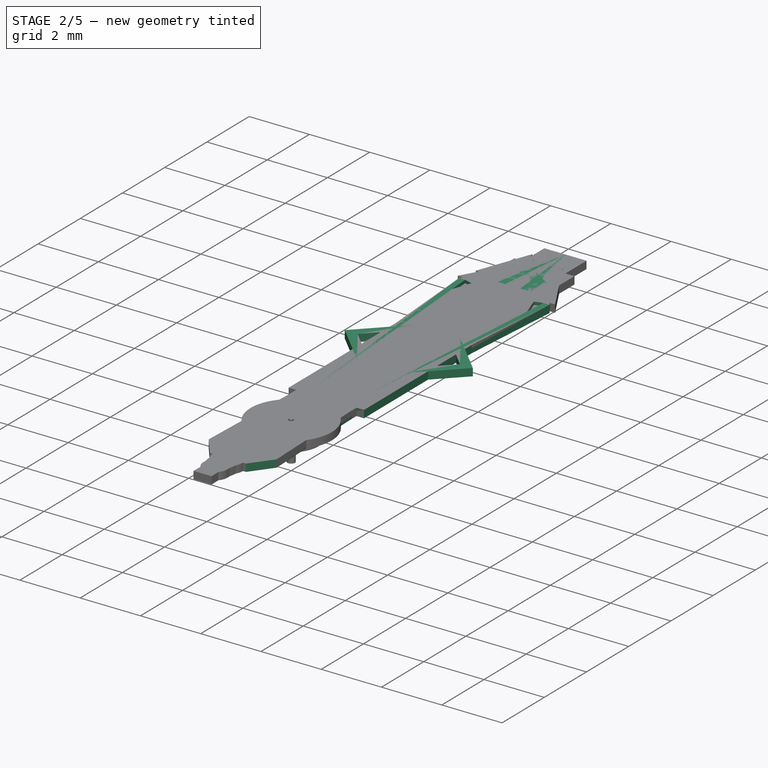
[diagram: stage 2 of 5 — iso view after this stage's code; geometry added in this stage tinted green]
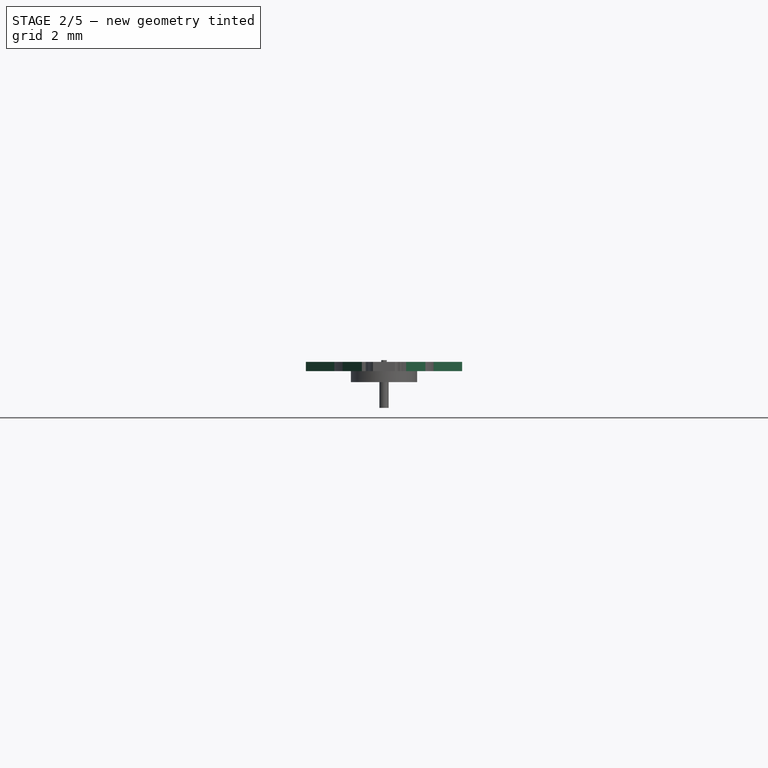
[diagram: stage 2 of 5 — front view after this stage's code; geometry added in this stage tinted green]
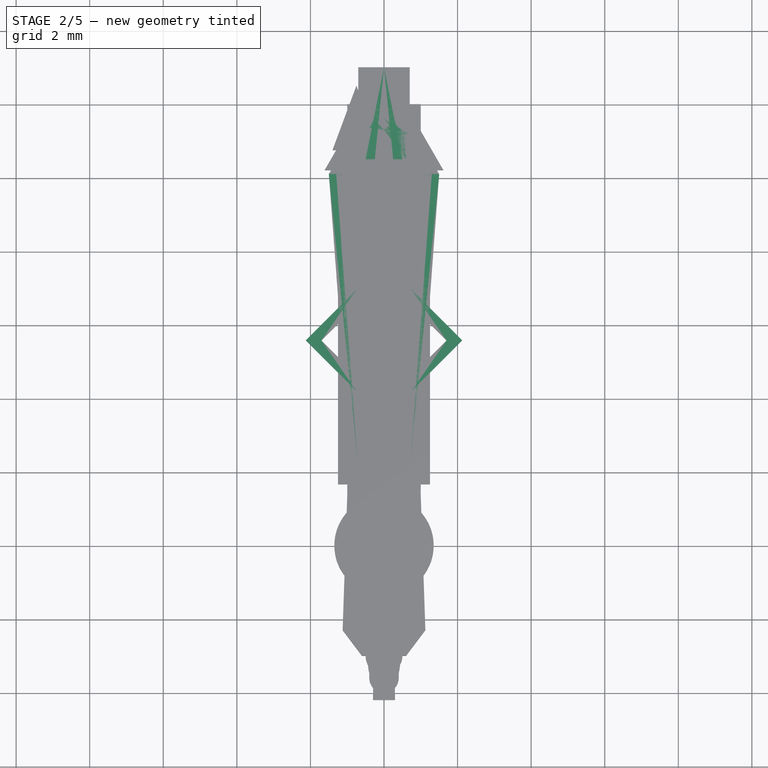
[diagram: stage 2 of 5 — top view after this stage's code; geometry added in this stage tinted green]
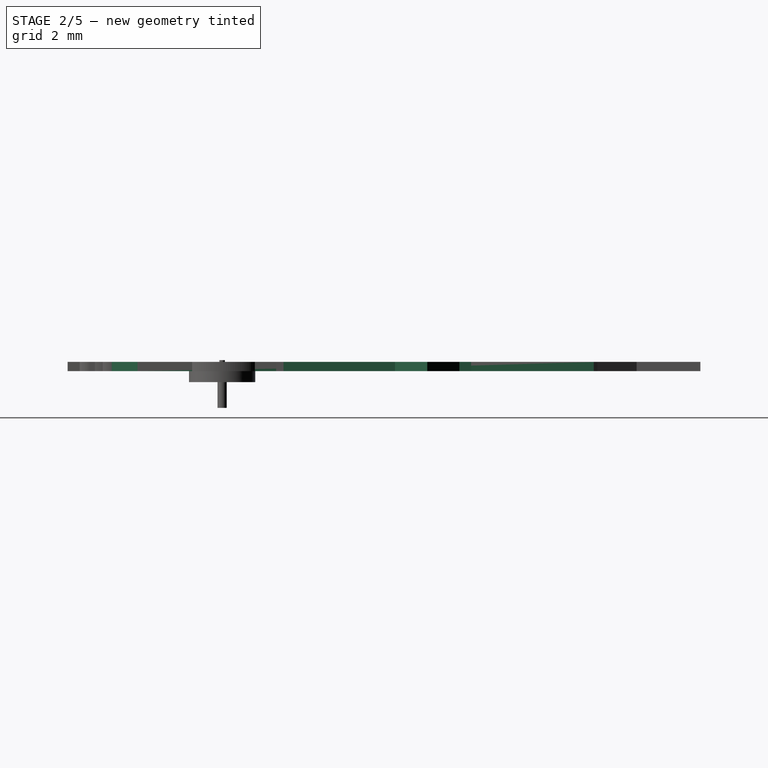
[diagram: stage 2 of 5 — right view after this stage's code; geometry added in this stage tinted green]
FEATURE [PartDesign::Body] Body034  label="Hour_hand_Explorer"
  Group = -> [Sketch129,Pad064,Sketch127,Revolution011,Sketch128,Pocket033]
  Origin = -> Origin036
  Placement = pos=(0,0,0) rot=(0,0,1;3.14159rad)
  Tip = -> Pocket033
FEATURE [Image::ImagePlane] ImagePlane023
  Placement = pos=(-7.32421,-4.88919,0) rot=(0,0,1;5.41052rad)
  XSize = 48.9955
  YSize = 34.0187
FEATURE [Image::ImagePlane] ImagePlane024
  Placement = pos=(-0.506936,-6.47563,0) rot=(0,0,1;5.4367rad)
  XSize = 48.9955
  YSize = 34.0187
FEATURE [Image::ImagePlane] ImagePlane025
  Placement = pos=(1.13956,-5.48922,0) rot=(0,0,1;0.759218rad)
  XSize = 30.394
  YSize = 26.6565
FEATURE [Sketcher::SketchObject] Sketch130
  MapMode = 5
  Support = -> [XY_Plane037]
  sketch-geometry (13):
    g0: Circle CenterX=0 CenterY=0 CenterZ=0 NormalX=0 NormalY=0 NormalZ=1 AngleXU=0 Radius=0.7
    g1: ArcOfCircle CenterX=0 CenterY=0 CenterZ=0 NormalX=0 NormalY=0 NormalZ=1 AngleXU=0 Radius=1.2 StartAngle=2.04692 EndAngle=7.37786
    g2: LineSegment StartX=0.55 StartY=1.66654 StartZ=0 EndX=0.55 EndY=1.06654 EndZ=0
    g3: LineSegment StartX=-0.55 StartY=1.66654 StartZ=0 EndX=-0.55 EndY=1.06654 EndZ=0
    g4: LineSegment StartX=-0.55 StartY=1.66654 StartZ=0 EndX=-1.25 EndY=1.66654 EndZ=0
    g5: LineSegment StartX=-1.25 StartY=1.66654 StartZ=0 EndX=-1.25 EndY=9.25 EndZ=0
    g6: LineSegment StartX=-1.25 StartY=9.25 StartZ=0 EndX=-0.3 EndY=9.25 EndZ=0
    g7: LineSegment StartX=-0.3 StartY=9.25 StartZ=0 EndX=-0.3 EndY=10 EndZ=0
    g8: LineSegment StartX=-0.3 StartY=10 StartZ=0 EndX=0.3 EndY=10 EndZ=0
    g9: LineSegment StartX=0.3 StartY=10 StartZ=0 EndX=0.3 EndY=9.25 EndZ=0
    g10: LineSegment StartX=0.3 StartY=9.25 StartZ=0 EndX=1.25 EndY=9.25 EndZ=0
    g11: LineSegment StartX=1.25 StartY=9.25 StartZ=0 EndX=1.25 EndY=1.66654 EndZ=0
    g12: LineSegment StartX=1.25 StartY=1.66654 StartZ=0 EndX=0.55 EndY=1.66654 EndZ=0
  constraints (33):
    c: Coincident(g0,g-1)
    c: Coincident(g1,g0)
    c: Symmetric(g1,g1,g-2)
    c: Radius(g0) = 0.7
    c: Radius(g1) = 1.2
    c: Coincident(g2,g1)
    c: Coincident(g3,g1)
    c: Symmetric(g2,g3,g-2)
    c: DistanceX(g3,g2) = 1.1
    c: Coincident(g3,g4)
    c: Horizontal(g4)
    c: Coincident(g4,g5)
    c: Vertical(g5)
    c: Coincident(g5,g6)
    c: Coincident(g6,g7)
    c: Vertical(g7)
    c: Coincident(g7,g8)
    c: Coincident(g8,g9)
    c: Coincident(g9,g10)
    c: Horizontal(g10)
    c: Coincident(g10,g11)
    c: Coincident(g11,g12)
    c: Coincident(g12,g2)
    c: Symmetric(g11,g4,g-2)
    c: Symmetric(g5,g10,g-2)
    c: Symmetric(g6,g9,g-2)
    c: Symmetric(g7,g8,g-2)
    c: DistanceY(g8) = 10
    c: DistanceX(g8,g8) = 0.6
    c: DistanceX(g5,g10) = 2.5
    c: DistanceY(g2,g2) = 0.6
    c: Vertical(g2)
    c: DistanceY(g9,g9) = 0.75
FEATURE [Sketcher::SketchObject] Sketch132
  MapMode = 5
  Placement = pos=(0,0,0) rot=(1,0,0;1.5708rad)
  Support = -> [XZ_Plane037]
  sketch-geometry (4):
    g0: LineSegment StartX=0.7 StartY=0 StartZ=0 EndX=0.9 EndY=0 EndZ=0
    g1: LineSegment StartX=0.9 StartY=0 StartZ=0 EndX=0.9 EndY=-0.3 EndZ=0
    g2: LineSegment StartX=0.9 StartY=-0.3 StartZ=0 EndX=0.7 EndY=-0.3 EndZ=0
    g3: LineSegment StartX=0.7 StartY=-0.3 StartZ=0 EndX=0.7 EndY=0 EndZ=0
FEATURE [PartDesign::Pad] Pad065
  AllowMultiFace = false
  Length = 0.25
  Length2 = 100
  Profile = -> Sketch130
  Type = 0
FEATURE [Sketcher::SketchObject] Sketch135
  MapMode = 5
  Support = -> [XY_Plane039]
  sketch-geometry (10):
    g0: LineSegment StartX=0.4 StartY=1.91652 StartZ=0 EndX=0.4 EndY=0.916515 EndZ=0
    g1: LineSegment StartX=-0.4 StartY=1.91652 StartZ=0 EndX=-0.4 EndY=0.916515 EndZ=0
    g2: Circle CenterX=0 CenterY=0 CenterZ=0 NormalX=0 NormalY=0 NormalZ=1 AngleXU=0 Radius=0.45
    g3: ArcOfCircle CenterX=0 CenterY=0 CenterZ=0 NormalX=0 NormalY=0 NormalZ=1 AngleXU=0 Radius=1 StartAngle=1.98231 EndAngle=7.44246
    g4: LineSegment StartX=-0.4 StartY=1.91652 StartZ=0 EndX=-0.8 EndY=1.91652 EndZ=0
    g5: LineSegment StartX=-0.8 StartY=1.91652 StartZ=0 EndX=-1.25 EndY=9.4 EndZ=0
    g6: LineSegment StartX=-1.25 StartY=9.4 StartZ=0 EndX=0 EndY=13 EndZ=0
    g7: LineSegment StartX=0 StartY=13 StartZ=0 EndX=1.25 EndY=9.4 EndZ=0
    g8: LineSegment StartX=1.25 StartY=9.4 StartZ=0 EndX=0.8 EndY=1.91652 EndZ=0
    g9: LineSegment StartX=0.8 StartY=1.91652 StartZ=0 EndX=0.4 EndY=1.91652 EndZ=0
  constraints (26):
    c: Coincident(g2,g-1)
    c: Diameter(g2) = 0.9
    c: Coincident(g3,g2)
    c: Symmetric(g1,g0,g-2)
    c: Diameter(g3) = 2
    c: Coincident(g0,g3)
    c: Coincident(g3,g1)
    c: DistanceX(g1,g0) = 0.8
    c: Vertical(g1)
    c: Symmetric(g1,g0,g-2)
    c: Coincident(g1,g4)
    c: Horizontal(g4)
    c: Coincident(g4,g5)
    c: Coincident(g5,g6)
    c: Coincident(g7,g8)
    c: Coincident(g8,g9)
    c: Coincident(g9,g0)
    c: Symmetric(g8,g4,g-2)
    c: DistanceY(g1,g1) = 1
    c: DistanceX(g4,g8) = 1.6
    c: Symmetric(g7,g5,g-2)
    c: DistanceX(g5,g7) = 2.5
    c: DistanceY(g7) = 9.4
    c: PointOnObject(g6,g-2)
    c: Coincident(g7,g6)
    c: DistanceY(g6) = 13
FEATURE [PartDesign::Pad] Pad068
  AllowMultiFace = false
  Length = 0.25
  Length2 = 100
  Profile = -> Sketch135
  Type = 0
FEATURE [Sketcher::SketchObject] Sketch136
  AttachmentOffset = pos=(0,0,0.25) rot=(0,0,1;0rad)
  ExternalGeometry = -> [Pad068]
  MapMode = 5
  Placement = pos=(0,0,0.25) rot=(0,0,1;0rad)
  Support = -> [XY_Plane039]
  sketch-geometry (6):
    g0: LineSegment StartX=-0.532549 StartY=2.75 StartZ=0 EndX=0.532549 EndY=2.75 EndZ=0
    g1: LineSegment StartX=0.532549 StartY=2.75 StartZ=0 EndX=0.93243 EndY=9.4 EndZ=0
    g2: LineSegment StartX=0.93243 StartY=9.4 StartZ=0 EndX=0 EndY=12.0854 EndZ=0
    g3: LineSegment StartX=0 StartY=12.0854 StartZ=0 EndX=-0.93243 EndY=9.4 EndZ=0
    g4: LineSegment StartX=-0.93243 StartY=9.4 StartZ=0 EndX=-0.532549 EndY=2.75 EndZ=0
    g5: LineSegment [constr] StartX=0.93243 StartY=9.4 StartZ=0 EndX=1.21583 EndY=9.4984 EndZ=0
  constraints (16):
    c: Coincident(g0,g1)
    c: Coincident(g1,g2)
    c: PointOnObject(g2,g-2)
    c: Coincident(g2,g3)
    c: Coincident(g3,g4)
    c: Coincident(g4,g0)
    c: Symmetric(g1,g3,g-2)
    c: DistanceY(g0) = 2.75
    c: Parallel(g1,g-3)
    c: Parallel(g2,g-4)
    c: Horizontal(g1,g-4)
    c: Coincident(g5,g1)
    c: PointOnObject(g5,g-4)
    c: Perpendicular(g-4,g5)
    c: Distance(g5) = 0.3
    c: Symmetric(g0,g0,g-2)
FEATURE [PartDesign::Pocket] Pocket037
  BaseFeature = -> Pad068
  Length = 0.1
  Length2 = 100
  Profile = -> Sketch136
  Type = 0
FEATURE [PartDesign::Body] Body037  label="Minute_Seamaster"
  Group = -> [Sketch135,Pad068,Sketch136,Pocket037]
  Origin = -> Origin039
  Placement = pos=(0,0,0) rot=(0,0,1;3.14159rad)
  Tip = -> Pocket037
FEATURE [Sketcher::SketchObject] Sketch137
  MapMode = 5
  Support = -> [XY_Plane040]
  sketch-geometry (8):
    g0: LineSegment StartX=0.5 StartY=2 StartZ=0 EndX=0.3 EndY=0.953939 EndZ=0
    g1: LineSegment StartX=-0.5 StartY=2 StartZ=0 EndX=-0.3 EndY=0.953939 EndZ=0
    g2: Circle CenterX=0 CenterY=0 CenterZ=0 NormalX=0 NormalY=0 NormalZ=1 AngleXU=0 Radius=0.45
    g3: ArcOfCircle CenterX=0 CenterY=0 CenterZ=0 NormalX=0 NormalY=0 NormalZ=1 AngleXU=0 Radius=1 StartAngle=1.87549 EndAngle=7.54929
    g4: LineSegment StartX=-0.5 StartY=2 StartZ=0 EndX=-0.5 EndY=10.5 EndZ=0
    g5: LineSegment StartX=-0.5 StartY=10.5 StartZ=0 EndX=-2e-16 EndY=13 EndZ=0
    g6: LineSegment StartX=-1e-16 StartY=13 StartZ=0 EndX=0.5 EndY=10.5 EndZ=0
    g7: LineSegment StartX=0.5 StartY=10.5 StartZ=0 EndX=0.5 EndY=2 EndZ=0
  constraints (21):
    c: Coincident(g2,g-1)
    c: Diameter(g2) = 0.9
    c: Coincident(g3,g2)
    c: Symmetric(g1,g0,g-2)
    c: Diameter(g3) = 2
    c: Coincident(g0,g3)
    c: Coincident(g3,g1)
    c: Symmetric(g1,g0,g-2)
    c: Coincident(g4,g5)
    c: Coincident(g6,g7)
    c: Symmetric(g7,g4,g-2)
    c: Symmetric(g6,g4,g-2)
    c: PointOnObject(g5,g-2)
    c: Coincident(g6,g5)
    c: DistanceY(g5) = 13
    c: DistanceX(g1,g0) = 0.6
    c: DistanceX(g1,g0) = 1
    c: DistanceY(g1) = 2
    c: Coincident(g4,g1)
    c: Vertical(g4)
    c: DistanceY(g7,g7) = 8.5
FEATURE [PartDesign::Pad] Pad069
  AllowMultiFace = false
  Length = 0.25
  Length2 = 100
  Profile = -> Sketch137
  Type = 0
FEATURE [Sketcher::SketchObject] Sketch138
  AttachmentOffset = pos=(0,0,0.25) rot=(0,0,1;0rad)
  ExternalGeometry = -> [Pad069]
  MapMode = 5
  Placement = pos=(0,0,0.25) rot=(0,0,1;0rad)
  Support = -> [XY_Plane040]
  sketch-geometry (4):
    g0: LineSegment StartX=-0.25 StartY=10.5 StartZ=0 EndX=0.25 EndY=10.5 EndZ=0
    g1: LineSegment StartX=0.25 StartY=10.5 StartZ=0 EndX=0.25 EndY=2 EndZ=0
    g2: LineSegment StartX=0.25 StartY=2 StartZ=0 EndX=-0.25 EndY=2 EndZ=0
    g3: LineSegment StartX=-0.25 StartY=2 StartZ=0 EndX=-0.25 EndY=10.5 EndZ=0
  constraints (11):
    c: Coincident(g0,g1)
    c: Coincident(g1,g2)
    c: Coincident(g2,g3)
    c: Coincident(g3,g0)
    c: Horizontal(g0)
    c: Vertical(g1)
    c: Vertical(g3)
    c: Symmetric(g2,g1,g-2)
    c: Horizontal(g-4,g1)
    c: Horizontal(g0,g-3)
    c: DistanceX(g0,g-3) = 0.25
FEATURE [PartDesign::Pocket] Pocket038
  BaseFeature = -> Pad069
  Length = 0.1
  Length2 = 100
  Profile = -> Sketch138
  Type = 0
FEATURE [PartDesign::Body] Body038  label="Minute_Ranger"
  Group = -> [Sketch137,Pad069,Sketch138,Pocket038]
  Origin = -> Origin040
  Placement = pos=(0,0,0) rot=(0,0,1;3.14159rad)
  Tip = -> Pocket038
FEATURE [Sketcher::SketchObject] Sketch140
  MapMode = 5
  Support = -> [XY_Plane041]
  sketch-geometry (14):
    g0: Circle CenterX=0 CenterY=0 CenterZ=0 NormalX=0 NormalY=0 NormalZ=1 AngleXU=0 Radius=0.45
    g1: ArcOfCircle CenterX=0 CenterY=0 CenterZ=0 NormalX=0 NormalY=0 NormalZ=1 AngleXU=0 Radius=1 StartAngle=1.82348 EndAngle=7.6013
    g2: LineSegment StartX=-0.25 StartY=1.76825 StartZ=0 EndX=-0.875 EndY=1.76825 EndZ=0
    g3: LineSegment StartX=-0.875 StartY=1.76825 StartZ=0 EndX=-1.5 EndY=10.1 EndZ=0
    g4: LineSegment StartX=-1.5 StartY=10.1 StartZ=0 EndX=0 EndY=12.5 EndZ=0
    g5: LineSegment StartX=0 StartY=12.5 StartZ=0 EndX=1.5 EndY=10.1 EndZ=0
    g6: LineSegment StartX=1.5 StartY=10.1 StartZ=0 EndX=0.875 EndY=1.76825 EndZ=0
    g7: LineSegment StartX=0.875 StartY=1.76825 StartZ=0 EndX=0.25 EndY=1.76825 EndZ=0
    g8: LineSegment StartX=0.25 StartY=1.76825 StartZ=0 EndX=0.25 EndY=0.968246 EndZ=0
    g9: LineSegment StartX=-0.25 StartY=1.76825 StartZ=0 EndX=-0.25 EndY=0.968246 EndZ=0
    g10: LineSegment StartX=-0.75 StartY=10 StartZ=0 EndX=0.75 EndY=10 EndZ=0
    g11: LineSegment StartX=0.75 StartY=10 StartZ=0 EndX=0.2 EndY=2.16825 EndZ=0
    g12: LineSegment StartX=0.2 StartY=2.16825 StartZ=0 EndX=-0.2 EndY=2.16825 EndZ=0
    g13: LineSegment StartX=-0.2 StartY=2.16825 StartZ=0 EndX=-0.75 EndY=10 EndZ=0
  constraints (36):
    c: Coincident(g0,g-1)
    c: Coincident(g1,g0)
    c: Symmetric(g1,g1,g-2)
    c: Radius(g0) = 0.45
    c: Radius(g1) = 1
    c: DistanceX(g1,g1) = 0.5
    c: Horizontal(g2)
    c: Coincident(g2,g3)
    c: Coincident(g3,g4)
    c: PointOnObject(g4,g-2)
    c: Coincident(g4,g5)
    c: Coincident(g5,g6)
    c: Coincident(g6,g7)
    c: Coincident(g7,g8)
    c: Coincident(g8,g1)
    c: Coincident(g2,g9)
    c: Coincident(g9,g1)
    c: Vertical(g9)
    c: Symmetric(g2,g7,g-2)
    c: Symmetric(g6,g2,g-2)
    c: DistanceX(g2,g6) = 1.75
    c: DistanceY(g8,g8) = 0.8
    c: Symmetric(g3,g5,g-2)
    c: Coincident(g10,g11)
    c: Coincident(g11,g12)
    c: Coincident(g12,g13)
    c: Coincident(g13,g10)
    c: Symmetric(g12,g11,g-2)
    c: DistanceY(g2,g12) = 0.4
    c: DistanceX(g12,g12) = 0.4
    c: DistanceY(g4) = 12.5
    c: DistanceX(g3,g5) = 3
    c: DistanceY(g3,g4) = 2.4
    c: Symmetric(g10,g10,g-2)
    c: DistanceX(g10,g10) = 1.5
    c: DistanceY(g10) = 10
FEATURE [PartDesign::Pad] Pad070
  AllowMultiFace = false
  Length = 0.25
  Length2 = 100
  Profile = -> Sketch140
  Type = 0
FEATURE [Sketcher::SketchObject] Sketch139
  AttachmentOffset = pos=(0,0,0.25) rot=(0,0,1;0rad)
  ExternalGeometry = -> [Pad070]
  MapMode = 5
  Placement = pos=(0,0,0.25) rot=(0,0,1;0rad)
  Support = -> [XY_Plane041]
  sketch-geometry (11):
    g0: Circle CenterX=0 CenterY=11 CenterZ=0 NormalX=0 NormalY=0 NormalZ=1 AngleXU=0 Radius=0.6
    g1: LineSegment StartX=-0.702848 StartY=2.14698 StartZ=0 EndX=-1.29944 EndY=10.1 EndZ=0
    g2: LineSegment StartX=1.29944 StartY=10.1 StartZ=0 EndX=0.702848 EndY=2.14698 EndZ=0
    g3: LineSegment StartX=-1.29944 StartY=10.1 StartZ=0 EndX=-0.95 EndY=10 EndZ=0
    g4: LineSegment StartX=-0.95 StartY=10 StartZ=0 EndX=-0.4 EndY=2.16825 EndZ=0
    g5: LineSegment StartX=-0.4 StartY=2.16825 StartZ=0 EndX=-0.702848 EndY=2.14698 EndZ=0
    g6: LineSegment StartX=0.702848 StartY=2.14698 StartZ=0 EndX=0.4 EndY=2.16825 EndZ=0
    g7: LineSegment StartX=0.4 StartY=2.16825 StartZ=0 EndX=0.95 EndY=10 EndZ=0
    g8: LineSegment StartX=0.95 StartY=10 StartZ=0 EndX=1.29944 EndY=10.1 EndZ=0
    g9: LineSegment [constr] StartX=1.30056 StartY=10.115 StartZ=0 EndX=1.5 EndY=10.1 EndZ=0
    g10: LineSegment [constr] StartX=0.75 StartY=10 StartZ=0 EndX=0.95 EndY=10 EndZ=0
  constraints (28):
    c: PointOnObject(g0,g-2)
    c: Radius(g0) = 0.6
    c: Symmetric(g1,g2,g-2)
    c: Coincident(g1,g3)
    c: Coincident(g3,g4)
    c: Coincident(g4,g5)
    c: Coincident(g5,g1)
    c: Coincident(g2,g6)
    c: Coincident(g6,g7)
    c: Coincident(g7,g8)
    c: Coincident(g8,g2)
    c: Horizontal(g2,g-3)
    c: Symmetric(g3,g7,g-2)
    c: Horizontal(g-6,g3)
    c: Parallel(g1,g-5)
    c: Parallel(g4,g-6)
    c: Perpendicular(g4,g5)
    c: Horizontal(g4,g-6)
    c: Symmetric(g6,g4,g-2)
    c: Symmetric(g2,g1,g-2)
    c: DistanceX(g-4,g7) = 0.2
    c: PointOnObject(g9,g2)
    c: Coincident(g9,g-3)
    c: Perpendicular(g2,g9)
    c: Coincident(g10,g-4)
    c: Coincident(g10,g7)
    c: Equal(g10,g9)
    c: DistanceY(g0) = 11
FEATURE [PartDesign::Pocket] Pocket039
  BaseFeature = -> Pad070
  Length = 0.1
  Length2 = 100
  Profile = -> Sketch139
  Type = 0
FEATURE [PartDesign::Body] Body039  label="Minutes_hand_OceanMaster"
  Group = -> [Sketch140,Pad070,Sketch139,Pocket039]
  Origin = -> Origin041
  Placement = pos=(0,0,0) rot=(0,0,1;3.14159rad)
  Tip = -> Pocket039
FEATURE [Sketcher::SketchObject] Sketch141
  MapMode = 5
  Support = -> [XY_Plane042]
  sketch-geometry (8):
    g0: Circle CenterX=0 CenterY=0 CenterZ=0 NormalX=0 NormalY=0 NormalZ=1 AngleXU=0 Radius=0.45
    g1: ArcOfCircle CenterX=0 CenterY=0 CenterZ=0 NormalX=0 NormalY=0 NormalZ=1 AngleXU=0 Radius=0.8 StartAngle=1.88862 EndAngle=7.53616
    g2: LineSegment StartX=-0.65 StartY=1.55993 StartZ=0 EndX=-0.65 EndY=9.1 EndZ=0
    g3: LineSegment StartX=-0.65 StartY=9.1 StartZ=0 EndX=0 EndY=11.5 EndZ=0
    g4: LineSegment StartX=0 StartY=11.5 StartZ=0 EndX=0.65 EndY=9.1 EndZ=0
    g5: LineSegment StartX=0.65 StartY=9.1 StartZ=0 EndX=0.65 EndY=1.55993 EndZ=0
    g6: LineSegment StartX=0.65 StartY=1.55993 StartZ=0 EndX=0.25 EndY=0.759934 EndZ=0
    g7: LineSegment StartX=-0.65 StartY=1.55993 StartZ=0 EndX=-0.25 EndY=0.759934 EndZ=0
  constraints (21):
    c: Coincident(g0,g-1)
    c: Coincident(g1,g0)
    c: Symmetric(g1,g1,g-2)
    c: Radius(g0) = 0.45
    c: Radius(g1) = 0.8
    c: DistanceX(g1,g1) = 0.5
    c: Coincident(g2,g3)
    c: PointOnObject(g3,g-2)
    c: Coincident(g3,g4)
    c: Coincident(g4,g5)
    c: Coincident(g6,g1)
    c: Coincident(g7,g1)
    c: Symmetric(g7,g6,g-2)
    c: Symmetric(g5,g2,g-2)
    c: DistanceX(g2,g5) = 1.3
    c: DistanceY(g6,g6) = 0.8
    c: Symmetric(g2,g4,g-2)
    c: DistanceY(g2,g3) = 2.4
    c: Coincident(g7,g2)
    c: Vertical(g5)
    c: DistanceY(g3) = 11.5
FEATURE [PartDesign::Pad] Pad071
  AllowMultiFace = false
  Length = 0.25
  Length2 = 100
  Profile = -> Sketch141
  Type = 0
FEATURE [Sketcher::SketchObject] Sketch142
  AttachmentOffset = pos=(0,0,0.25) rot=(0,0,1;0rad)
  MapMode = 5
  Placement = pos=(0,0,0.25) rot=(0,0,1;0rad)
  Support = -> [XY_Plane042]
  sketch-geometry (4):
    g0: LineSegment StartX=-0.45 StartY=8.95 StartZ=0 EndX=0.45 EndY=8.95 EndZ=0
    g1: LineSegment StartX=0.45 StartY=8.95 StartZ=0 EndX=0.45 EndY=1.75 EndZ=0
    g2: LineSegment StartX=0.45 StartY=1.75 StartZ=0 EndX=-0.45 EndY=1.75 EndZ=0
    g3: LineSegment StartX=-0.45 StartY=1.75 StartZ=0 EndX=-0.45 EndY=8.95 EndZ=0
  constraints (11):
    c: Coincident(g0,g1)
    c: Coincident(g1,g2)
    c: Coincident(g2,g3)
    c: Coincident(g3,g0)
    c: Horizontal(g0)
    c: Vertical(g1)
    c: Vertical(g3)
    c: Symmetric(g2,g1,g-2)
    c: DistanceX(g2,g2) = 0.9
    c: DistanceY(g1,g1) = 7.2
    c: DistanceY(g1) = 1.75
FEATURE [PartDesign::Pocket] Pocket040
  BaseFeature = -> Pad071
  Length = 0.1
  Length2 = 100
  Profile = -> Sketch142
  Type = 0
FEATURE [PartDesign::Body] Body040  label="Minutes_hand_Sword"
  Group = -> [Sketch141,Pad071,Sketch142,Pocket040]
  Origin = -> Origin042
  Placement = pos=(0,0,0) rot=(0,0,1;3.14159rad)
  Tip = -> Pocket040
FEATURE [Sketcher::SketchObject] Sketch144
  MapMode = 5
  Support = -> [XY_Plane043]
  sketch-geometry (8):
    g0: Circle CenterX=0 CenterY=0 CenterZ=0 NormalX=0 NormalY=0 NormalZ=1 AngleXU=0 Radius=0.45
    g1: ArcOfCircle CenterX=0 CenterY=0 CenterZ=0 NormalX=0 NormalY=0 NormalZ=1 AngleXU=0 Radius=0.8 StartAngle=2.51922 EndAngle=6.90555
    g2: LineSegment StartX=-0.65 StartY=1.26637 StartZ=0 EndX=-0.65 EndY=11.2 EndZ=0
    g3: LineSegment StartX=-0.65 StartY=11.2 StartZ=0 EndX=0 EndY=12 EndZ=0
    g4: LineSegment StartX=0 StartY=12 StartZ=0 EndX=0.65 EndY=11.2 EndZ=0
    g5: LineSegment StartX=0.65 StartY=11.2 StartZ=0 EndX=0.65 EndY=1.26637 EndZ=0
    g6: LineSegment StartX=0.65 StartY=1.26637 StartZ=0 EndX=0.649999 EndY=0.46637 EndZ=0
    g7: LineSegment StartX=-0.65 StartY=1.26637 StartZ=0 EndX=-0.649999 EndY=0.46637 EndZ=0
  constraints (20):
    c: Coincident(g0,g-1)
    c: Coincident(g1,g0)
    c: Symmetric(g1,g1,g-2)
    c: Radius(g0) = 0.45
    c: Radius(g1) = 0.8
    c: Coincident(g2,g3)
    c: PointOnObject(g3,g-2)
    c: Coincident(g3,g4)
    c: Coincident(g4,g5)
    c: Coincident(g6,g1)
    c: Coincident(g7,g1)
    c: Symmetric(g7,g6,g-2)
    c: Symmetric(g5,g2,g-2)
    c: DistanceX(g2,g5) = 1.3
    c: DistanceY(g6,g6) = 0.8
    c: Symmetric(g2,g4,g-2)
    c: Coincident(g7,g2)
    c: Vertical(g5)
    c: DistanceY(g3) = 12
    c: DistanceY(g2,g3) = 0.8
FEATURE [PartDesign::Pad] Pad072
  AllowMultiFace = false
  Length = 0.25
  Length2 = 100
  Profile = -> Sketch144
  Type = 0
FEATURE [Sketcher::SketchObject] Sketch143
  AttachmentOffset = pos=(0,0,0.25) rot=(0,0,1;0rad)
  ExternalGeometry = -> [Pad072]
  MapMode = 5
  Placement = pos=(0,0,0.25) rot=(0,0,1;0rad)
  Support = -> [XY_Plane043]
  sketch-geometry (7):
    g0: LineSegment StartX=0.4 StartY=11.1112 StartZ=0 EndX=0.4 EndY=1.5 EndZ=0
    g1: LineSegment StartX=0.4 StartY=1.5 StartZ=0 EndX=-0.4 EndY=1.5 EndZ=0
    g2: LineSegment StartX=-0.4 StartY=1.5 StartZ=0 EndX=-0.4 EndY=11.1112 EndZ=0
    g3: LineSegment StartX=-0.4 StartY=11.1112 StartZ=0 EndX=0 EndY=11.6035 EndZ=0
    g4: LineSegment StartX=0 StartY=11.6035 StartZ=0 EndX=0.4 EndY=11.1112 EndZ=0
    g5: LineSegment [constr] StartX=0.4 StartY=11.1112 StartZ=0 EndX=0.65 EndY=11.1112 EndZ=0
    g6: LineSegment [constr] StartX=0 StartY=11.6035 StartZ=0 EndX=0.194029 EndY=11.7612 EndZ=0
  constraints (19):
    c: Coincident(g0,g1)
    c: Coincident(g1,g2)
    c: Vertical(g0)
    c: Symmetric(g1,g0,g-2)
    c: DistanceY(g0) = 1.5
    c: Coincident(g2,g3)
    c: PointOnObject(g3,g-2)
    c: Coincident(g3,g4)
    c: Coincident(g4,g0)
    c: Symmetric(g0,g2,g-2)
    c: Parallel(g4,g-3)
    c: Coincident(g5,g0)
    c: PointOnObject(g5,g-4)
    c: Coincident(g6,g3)
    c: PointOnObject(g6,g-3)
    c: Horizontal(g5)
    c: Perpendicular(g-3,g6)
    c: DistanceX(g5,g5) = 0.25
    c: Equal(g6,g5)
FEATURE [PartDesign::Pocket] Pocket041
  BaseFeature = -> Pad072
  Length = 0.1
  Length2 = 100
  Profile = -> Sketch143
  Type = 0
FEATURE [PartDesign::Body] Body041  label="Minutes_hand_Snowflake"
  Group = -> [Sketch144,Pad072,Sketch143,Pocket041]
  Origin = -> Origin043
  Placement = pos=(0,0,0) rot=(0,0,1;3.14159rad)
  Tip = -> Pocket041
FEATURE [Sketcher::SketchObject] Sketch146
  MapMode = 5
  Support = -> [XY_Plane044]
  sketch-geometry (8):
    g0: Circle CenterX=0 CenterY=0 CenterZ=0 NormalX=0 NormalY=0 NormalZ=1 AngleXU=0 Radius=0.45
    g1: ArcOfCircle CenterX=0 CenterY=0 CenterZ=0 NormalX=0 NormalY=0 NormalZ=1 AngleXU=0 Radius=0.8 StartAngle=1.88862 EndAngle=7.53616
    g2: LineSegment StartX=-1 StartY=3.25993 StartZ=0 EndX=0 EndY=12.5 EndZ=0
    g3: LineSegment StartX=0.25 StartY=2.75993 StartZ=0 EndX=0.25 EndY=0.759934 EndZ=0
    g4: LineSegment StartX=-0.25 StartY=2.75993 StartZ=0 EndX=-0.25 EndY=0.759934 EndZ=0
    g5: LineSegment StartX=0 StartY=12.5 StartZ=0 EndX=1 EndY=3.25993 EndZ=0
    g6: LineSegment StartX=1 StartY=3.25993 StartZ=0 EndX=0.25 EndY=2.75993 EndZ=0
    g7: LineSegment StartX=-1 StartY=3.25993 StartZ=0 EndX=-0.25 EndY=2.75993 EndZ=0
  constraints (21):
    c: Coincident(g0,g-1)
    c: Coincident(g1,g0)
    c: Symmetric(g1,g1,g-2)
    c: Radius(g0) = 0.45
    c: Radius(g1) = 0.8
    c: PointOnObject(g2,g-2)
    c: Coincident(g3,g1)
    c: Coincident(g4,g1)
    c: Symmetric(g4,g3,g-2)
    c: DistanceX(g1,g1) = 0.5
    c: Vertical(g4)
    c: Coincident(g2,g5)
    c: Coincident(g5,g6)
    c: Coincident(g6,g3)
    c: Coincident(g2,g7)
    c: Coincident(g7,g4)
    c: Symmetric(g2,g5,g-2)
    c: DistanceY(g2) = 12.5
    c: DistanceX(g2,g5) = 2
    c: DistanceY(g4,g2) = 0.5
    c: DistanceY(g3,g3) = 2
FEATURE [PartDesign::Pad] Pad073
  AllowMultiFace = false
  Length = 0.25
  Length2 = 100
  Profile = -> Sketch146
  Type = 0
FEATURE [Sketcher::SketchObject] Sketch145
  AttachmentOffset = pos=(0,0,0.25) rot=(0,0,1;0rad)
  ExternalGeometry = -> [Pad073]
  MapMode = 5
  Placement = pos=(0,0,0.25) rot=(0,0,1;0rad)
  Support = -> [XY_Plane044]
  sketch-geometry (7):
    g0: LineSegment StartX=-0.682159 StartY=3.4086 StartZ=0 EndX=0 EndY=2.95382 EndZ=0
    g1: LineSegment StartX=0 StartY=2.95382 StartZ=0 EndX=0.682159 EndY=3.4086 EndZ=0
    g2: LineSegment StartX=0.682159 StartY=3.4086 StartZ=0 EndX=0.1 EndY=8.78779 EndZ=0
    g3: LineSegment StartX=0.1 StartY=8.78779 StartZ=0 EndX=-0.1 EndY=8.78779 EndZ=0
    g4: LineSegment StartX=-0.1 StartY=8.78779 StartZ=0 EndX=-0.682159 EndY=3.4086 EndZ=0
    g5: LineSegment [constr] StartX=0.1 StartY=8.78779 StartZ=0 EndX=0.398258 EndY=8.82007 EndZ=0
    g6: LineSegment [constr] StartX=0.682159 StartY=3.4086 StartZ=0 EndX=0.84857 EndY=3.15898 EndZ=0
  constraints (19):
    c: PointOnObject(g0,g-2)
    c: Coincident(g0,g1)
    c: Coincident(g1,g2)
    c: Coincident(g2,g3)
    c: Coincident(g3,g4)
    c: Coincident(g4,g0)
    c: Parallel(g-4,g1)
    c: Parallel(g-3,g2)
    c: Symmetric(g3,g2,g-2)
    c: Symmetric(g1,g0,g-2)
    c: Coincident(g5,g2)
    c: PointOnObject(g5,g-3)
    c: Coincident(g6,g1)
    c: PointOnObject(g6,g-4)
    c: Perpendicular(g6,g-4)
    c: Perpendicular(g-3,g5)
    c: Equal(g5,g6)
    c: DistanceX(g3,g3) = 0.2
    c: Distance(g6) = 0.3
FEATURE [PartDesign::Pocket] Pocket042
  BaseFeature = -> Pad073
  Length = 0.1
  Length2 = 100
  Profile = -> Sketch145
  Type = 0
FEATURE [PartDesign::Body] Body042  label="Minutes_hand_Blade"
  Group = -> [Sketch146,Pad073,Sketch145,Pocket042]
  Origin = -> Origin044
  Placement = pos=(0,0,0) rot=(0,0,1;3.14159rad)
  Tip = -> Pocket042
FEATURE [Sketcher::SketchObject] Sketch147
  MapMode = 5
  Support = -> [XY_Plane045]
  sketch-geometry (8):
    g0: Circle CenterX=0 CenterY=0 CenterZ=0 NormalX=0 NormalY=0 NormalZ=1 AngleXU=0 Radius=0.45
    g1: LineSegment StartX=-0.65 StartY=11.5 StartZ=0 EndX=0 EndY=12 EndZ=0
    g2: LineSegment StartX=0 StartY=12 StartZ=0 EndX=0.65 EndY=11.5 EndZ=0
    g3: LineSegment StartX=-0.65 StartY=11.5 StartZ=0 EndX=-1.125 EndY=-2.3 EndZ=0
    g4: LineSegment StartX=-1.125 StartY=-2.3 StartZ=0 EndX=-0.6 EndY=-3 EndZ=0
    g5: LineSegment StartX=-0.6 StartY=-3 StartZ=0 EndX=0.6 EndY=-3 EndZ=0
    g6: LineSegment StartX=0.6 StartY=-3 StartZ=0 EndX=1.125 EndY=-2.3 EndZ=0
    g7: LineSegment StartX=1.125 StartY=-2.3 StartZ=0 EndX=0.65 EndY=11.5 EndZ=0
  constraints (20):
    c: Coincident(g0,g-1)
    c: Radius(g0) = 0.45
    c: PointOnObject(g1,g-2)
    c: Coincident(g1,g2)
    c: Symmetric(g1,g2,g-2)
    c: DistanceY(g1) = 12
    c: DistanceX(g1,g2) = 1.3
    c: Coincident(g1,g3)
    c: Coincident(g3,g4)
    c: Coincident(g4,g5)
    c: Coincident(g5,g6)
    c: Coincident(g6,g7)
    c: Coincident(g7,g2)
    c: Symmetric(g4,g5,g-2)
    c: Symmetric(g6,g3,g-2)
    c: DistanceY(g5) = -3
    c: DistanceX(g5,g5) = 1.2
    c: DistanceX(g3,g6) = 2.25
    c: DistanceY(g6) = -2.3
    c: DistanceY(g2,g1) = 0.5
FEATURE [PartDesign::Pad] Pad074
  AllowMultiFace = false
  Length = 0.25
  Length2 = 100
  Profile = -> Sketch147
  Type = 0
FEATURE [Sketcher::SketchObject] Sketch148
  AttachmentOffset = pos=(0,0,0.25) rot=(0,0,1;0rad)
  ExternalGeometry = -> [Pad074]
  MapMode = 5
  Placement = pos=(0,0,0.25) rot=(0,0,1;0rad)
  Support = -> [XY_Plane045]
  sketch-geometry (7):
    g0: LineSegment StartX=-0.63379 StartY=3.25 StartZ=0 EndX=0.63379 EndY=3.25 EndZ=0
    g1: LineSegment StartX=0.63379 StartY=3.25 StartZ=0 EndX=0.35504 EndY=11.3484 EndZ=0
    g2: LineSegment StartX=0.35504 StartY=11.3484 StartZ=0 EndX=0 EndY=11.6215 EndZ=0
    g3: LineSegment StartX=0 StartY=11.6215 StartZ=0 EndX=-0.35504 EndY=11.3484 EndZ=0
    g4: LineSegment StartX=-0.35504 StartY=11.3484 StartZ=0 EndX=-0.63379 EndY=3.25 EndZ=0
    g5: LineSegment [constr] StartX=0 StartY=11.6215 StartZ=0 EndX=0.182913 EndY=11.8593 EndZ=0
    g6: LineSegment [constr] StartX=0.35504 StartY=11.3484 StartZ=0 EndX=0.654863 EndY=11.3587 EndZ=0
  constraints (19):
    c: Coincident(g0,g1)
    c: Coincident(g1,g2)
    c: PointOnObject(g2,g-2)
    c: Coincident(g2,g3)
    c: Coincident(g3,g4)
    c: Coincident(g4,g0)
    c: Symmetric(g3,g1,g-2)
    c: DistanceY(g0) = 3.25
    c: Parallel(g-4,g1)
    c: Parallel(g-3,g2)
    c: Coincident(g5,g2)
    c: PointOnObject(g5,g-3)
    c: Coincident(g6,g1)
    c: PointOnObject(g6,g-4)
    c: Perpendicular(g-4,g6)
    c: Perpendicular(g-3,g5)
    c: Equal(g5,g6)
    c: Distance(g6) = 0.3
    c: Symmetric(g0,g0,g-2)
FEATURE [PartDesign::Pocket] Pocket043
  BaseFeature = -> Pad074
  Length = 0.1
  Length2 = 100
  Profile = -> Sketch148
  Type = 0
FEATURE [PartDesign::Body] Body043  label="Minutes_hand_MM"
  Group = -> [Sketch147,Pad074,Sketch148,Pocket043]
  Origin = -> Origin045
  Placement = pos=(0,0,0) rot=(0,0,1;3.14159rad)
  Tip = -> Pocket043
FEATURE [Sketcher::SketchObject] Sketch149
  MapMode = 5
  Support = -> [XY_Plane046]
  sketch-geometry (8):
    g0: Circle CenterX=0 CenterY=0 CenterZ=0 NormalX=0 NormalY=0 NormalZ=1 AngleXU=0 Radius=0.45
    g1: LineSegment StartX=-0.7 StartY=11.2 StartZ=0 EndX=0 EndY=13 EndZ=0
    g2: LineSegment StartX=0 StartY=13 StartZ=0 EndX=0.7 EndY=11.2 EndZ=0
    g3: LineSegment StartX=-0.7 StartY=11.2 StartZ=0 EndX=-0.7 EndY=2.4 EndZ=0
    g4: ArcOfCircle CenterX=0 CenterY=0 CenterZ=0 NormalX=0 NormalY=0 NormalZ=1 AngleXU=0 Radius=0.9 StartAngle=1.97022 EndAngle=7.45456
    g5: LineSegment StartX=-0.7 StartY=2.4 StartZ=0 EndX=-0.35 EndY=0.829156 EndZ=0
    g6: LineSegment StartX=0.7 StartY=11.2 StartZ=0 EndX=0.7 EndY=2.4 EndZ=0
    g7: LineSegment StartX=0.7 StartY=2.4 StartZ=0 EndX=0.35 EndY=0.829156 EndZ=0
  constraints (21):
    c: Coincident(g0,g-1)
    c: Radius(g0) = 0.45
    c: PointOnObject(g1,g-2)
    c: Coincident(g1,g2)
    c: Symmetric(g1,g2,g-2)
    c: DistanceY(g1) = 13
    c: Coincident(g1,g3)
    c: Coincident(g4,g0)
    c: Coincident(g3,g5)
    c: Coincident(g5,g4)
    c: DistanceY(g1,g1) = 1.8
    c: Vertical(g3)
    c: Coincident(g2,g6)
    c: Coincident(g6,g7)
    c: Coincident(g7,g4)
    c: Symmetric(g6,g3,g-2)
    c: Symmetric(g4,g4,g-2)
    c: DistanceX(g4,g4) = 0.7
    c: Radius(g4) = 0.9
    c: DistanceY(g6) = 2.4
    c: DistanceX(g3,g6) = 1.4
FEATURE [Sketcher::SketchObject] Sketch150
  AttachmentOffset = pos=(0,0,0.25) rot=(0,0,1;0rad)
  MapMode = 5
  Placement = pos=(0,0,0.25) rot=(0,0,1;0rad)
  Support = -> [XY_Plane046]
  sketch-geometry (4):
    g0: LineSegment StartX=-0.5 StartY=10.9 StartZ=0 EndX=0.5 EndY=10.9 EndZ=0
    g1: LineSegment StartX=0.5 StartY=10.9 StartZ=0 EndX=0.5 EndY=2.4 EndZ=0
    g2: LineSegment StartX=0.5 StartY=2.4 StartZ=0 EndX=-0.5 EndY=2.4 EndZ=0
    g3: LineSegment StartX=-0.5 StartY=2.4 StartZ=0 EndX=-0.5 EndY=10.9 EndZ=0
  constraints (11):
    c: Coincident(g0,g1)
    c: Coincident(g1,g2)
    c: Coincident(g2,g3)
    c: Coincident(g3,g0)
    c: Horizontal(g0)
    c: Vertical(g1)
    c: Vertical(g3)
    c: Symmetric(g1,g2,g-2)
    c: DistanceX(g2,g2) = 1
    c: DistanceY(g1) = 2.4
    c: DistanceY(g1,g1) = 8.5
FEATURE [PartDesign::Pad] Pad075
  AllowMultiFace = false
  Length = 0.25
  Length2 = 100
  Profile = -> Sketch149
  Type = 0
FEATURE [PartDesign::Pocket] Pocket044
  BaseFeature = -> Pad075
  Length = 0.1
  Length2 = 100
  Profile = -> Sketch150
  Type = 0
FEATURE [PartDesign::Body] Body044  label="Minutes_hand_Mercedes"
  Group = -> [Sketch149,Pad075,Sketch150,Pocket044]
  Origin = -> Origin046
  Placement = pos=(0,0,0) rot=(0,0,1;3.14159rad)
  Tip = -> Pocket044
FEATURE [Image::ImagePlane] ImagePlane028
  Placement = pos=(-0.338604,-5.24455,0) rot=(0,0,1;1.87623rad)
  XSize = 17.2425
  YSize = 12.9653
FEATURE [Sketcher::SketchObject] Sketch151
  MapMode = 5
  Support = -> [XY_Plane047]
  sketch-geometry (11):
    g0: Circle CenterX=0 CenterY=0 CenterZ=0 NormalX=0 NormalY=0 NormalZ=1 AngleXU=0 Radius=0.45
    g1: ArcOfCircle CenterX=0 CenterY=0 CenterZ=0 NormalX=0 NormalY=0 NormalZ=1 AngleXU=0 Radius=0.9 StartAngle=2.0944 EndAngle=7.33038
    g2: LineSegment StartX=0.85 StartY=10.7708 StartZ=0 EndX=0.45 EndY=0.779423 EndZ=0
    g3: LineSegment StartX=-0.85 StartY=10.7708 StartZ=0 EndX=-0.45 EndY=0.779423 EndZ=0
    g4: LineSegment StartX=-0.15 StartY=12.25 StartZ=0 EndX=-0.15 EndY=13 EndZ=0
    g5: LineSegment StartX=-0.15 StartY=13 StartZ=0 EndX=0.15 EndY=13 EndZ=0
    g6: LineSegment StartX=0.15 StartY=13 StartZ=0 EndX=0.15 EndY=12.25 EndZ=0
    g7: ArcOfCircle CenterX=1.9 CenterY=12.25 CenterZ=0 NormalX=0 NormalY=0 NormalZ=1 AngleXU=0 Radius=1.75 StartAngle=3.14159 EndAngle=4.02888
    g8: ArcOfCircle CenterX=-1.9 CenterY=12.25 CenterZ=0 NormalX=0 NormalY=0 NormalZ=1 AngleXU=0 Radius=1.75 StartAngle=5.3959 EndAngle=6.28319
    g9: ArcOfCircle CenterX=-0.70012 CenterY=10.7768 CenterZ=0 NormalX=0 NormalY=0 NormalZ=1 AngleXU=0 Radius=0.15 StartAngle=2.2543 EndAngle=3.18161
    g10: ArcOfCircle CenterX=0.70012 CenterY=10.7768 CenterZ=0 NormalX=0 NormalY=0 NormalZ=1 AngleXU=0 Radius=0.15 StartAngle=6.24317 EndAngle=7.17048
  constraints (27):
    c: Coincident(g0,g-1)
    c: Coincident(g1,g0)
    c: Symmetric(g1,g1,g-2)
    c: Radius(g0) = 0.45
    c: Radius(g1) = 0.9
    c: Coincident(g2,g1)
    c: Coincident(g3,g1)
    c: DistanceX(g1,g1) = 0.9
    c: Vertical(g4)
    c: Coincident(g4,g5)
    c: Coincident(g5,g6)
    c: Symmetric(g4,g5,g-2)
    c: Symmetric(g4,g6,g-2)
    c: DistanceY(g5) = 13
    c: Tangent(g8,g4) = -1.5708
    c: DistanceX(g5,g5) = 0.3
    c: Tangent(g7,g6) = -1.5708
    c: Tangent(g8,g9) = 1.5708
    c: Tangent(g3,g9) = -1.5708
    c: Tangent(g7,g10) = 1.5708
    c: Tangent(g2,g10) = 1.5708
    c: Equal(g10,g9)
    c: Symmetric(g9,g10,g-2)
    c: Radius(g10) = 0.15
    c: DistanceX(g3,g2) = 1.7
    c: Radius(g7) = 1.75
    c: DistanceY(g6,g6) = 0.75
FEATURE [PartDesign::Pad] Pad076
  AllowMultiFace = false
  Length = 0.25
  Length2 = 100
  Profile = -> Sketch151
  Type = 0
FEATURE [Sketcher::SketchObject] Sketch153
  AttachmentOffset = pos=(0,0,0.25) rot=(0,0,1;0rad)
  MapMode = 5
  Placement = pos=(0,0,0.25) rot=(0,0,1;0rad)
  Support = -> [XY_Plane047]
  sketch-geometry (5):
    g0: LineSegment StartX=-0.25 StartY=1.6 StartZ=0 EndX=0.25 EndY=1.6 EndZ=0
    g1: LineSegment StartX=0.25 StartY=1.6 StartZ=0 EndX=0.6 EndY=10.5 EndZ=0
    g2: LineSegment StartX=0.6 StartY=10.5 StartZ=0 EndX=0 EndY=11.3 EndZ=0
    g3: LineSegment StartX=0 StartY=11.3 StartZ=0 EndX=-0.6 EndY=10.5 EndZ=0
    g4: LineSegment StartX=-0.6 StartY=10.5 StartZ=0 EndX=-0.25 EndY=1.6 EndZ=0
  constraints (13):
    c: Coincident(g0,g1)
    c: Coincident(g1,g2)
    c: PointOnObject(g2,g-2)
    c: Coincident(g2,g3)
    c: Coincident(g3,g4)
    c: Coincident(g4,g0)
    c: Symmetric(g0,g0,g-2)
    c: Symmetric(g1,g3,g-2)
    c: DistanceY(g0) = 1.6
    c: DistanceX(g0,g0) = 0.5
    c: DistanceX(g3,g1) = 1.2
    c: DistanceY(g1,g2) = 0.8
    c: DistanceY(g1) = 10.5
FEATURE [Image::ImagePlane] ImagePlane029
  Placement = pos=(0.105094,-4.83621,0) rot=(0,0,-1;2.07694rad)
  XSize = 17.9245
  YSize = 13.4781
FEATURE [PartDesign::Pocket] Pocket045
  BaseFeature = -> Pad076
  Length = 0.1
  Length2 = 100
  Profile = -> Sketch153
  Type = 0
FEATURE [PartDesign::Body] Body045  label="Minutes_hand_Troika"
  Group = -> [Sketch151,Pad076,Sketch153,Pocket045]
  Origin = -> Origin047
  Placement = pos=(0,0,0) rot=(0,0,1;3.14159rad)
  Tip = -> Pocket045
FEATURE [Sketcher::SketchObject] Sketch154
  MapMode = 5
  Support = -> [XY_Plane048]
  sketch-geometry (9):
    g0: Circle CenterX=0 CenterY=0 CenterZ=0 NormalX=0 NormalY=0 NormalZ=1 AngleXU=0 Radius=0.45
    g1: LineSegment StartX=-0.7 StartY=13 StartZ=0 EndX=-0.7 EndY=3.75 EndZ=0
    g2: ArcOfCircle CenterX=0 CenterY=0 CenterZ=0 NormalX=0 NormalY=0 NormalZ=1 AngleXU=0 Radius=0.9 StartAngle=1.97022 EndAngle=7.45456
    g3: LineSegment StartX=0.7 StartY=13 StartZ=0 EndX=0.7 EndY=3.75 EndZ=0
    g4: LineSegment StartX=-0.7 StartY=13 StartZ=0 EndX=0.7 EndY=13 EndZ=0
    g5: LineSegment StartX=-0.7 StartY=3.75 StartZ=0 EndX=-0.35 EndY=3.75 EndZ=0
    g6: LineSegment StartX=-0.35 StartY=3.75 StartZ=0 EndX=-0.35 EndY=0.829156 EndZ=0
    g7: LineSegment StartX=0.7 StartY=3.75 StartZ=0 EndX=0.35 EndY=3.75 EndZ=0
    g8: LineSegment StartX=0.35 StartY=3.75 StartZ=0 EndX=0.35 EndY=0.829156 EndZ=0
  constraints (24):
    c: Coincident(g0,g-1)
    c: Radius(g0) = 0.45
    c: Symmetric(g1,g3,g-2)
    c: Coincident(g2,g0)
    c: Vertical(g1)
    c: Symmetric(g3,g1,g-2)
    c: Symmetric(g2,g2,g-2)
    c: DistanceX(g2,g2) = 0.7
    c: Radius(g2) = 0.9
    c: DistanceX(g1,g3) = 1.4
    c: DistanceY(g1) = 13
    c: Coincident(g4,g1)
    c: Coincident(g4,g3)
    c: DistanceY(g3) = 3.75
    c: Coincident(g1,g5)
    c: Horizontal(g5)
    c: Coincident(g5,g6)
    c: Coincident(g6,g2)
    c: Vertical(g6)
    c: Coincident(g3,g7)
    c: Horizontal(g7)
    c: Coincident(g7,g8)
    c: Coincident(g8,g2)
    c: Vertical(g8)
FEATURE [PartDesign::Pad] Pad077
  AllowMultiFace = false
  Length = 0.25
  Length2 = 100
  Profile = -> Sketch154
  Type = 0
FEATURE [Sketcher::SketchObject] Sketch155
  AttachmentOffset = pos=(0,0,0.25) rot=(0,0,1;0rad)
  MapMode = 5
  Placement = pos=(0,0,0.25) rot=(0,0,1;0rad)
  Support = -> [XY_Plane048]
  sketch-geometry (4):
    g0: LineSegment StartX=-0.5 StartY=12.2 StartZ=0 EndX=0.5 EndY=12.2 EndZ=0
    g1: LineSegment StartX=0.5 StartY=12.2 StartZ=0 EndX=0.5 EndY=5.2 EndZ=0
    g2: LineSegment StartX=0.5 StartY=5.2 StartZ=0 EndX=-0.5 EndY=5.2 EndZ=0
    g3: LineSegment StartX=-0.5 StartY=5.2 StartZ=0 EndX=-0.5 EndY=12.2 EndZ=0
  constraints (11):
    c: Coincident(g0,g1)
    c: Coincident(g1,g2)
    c: Coincident(g2,g3)
    c: Coincident(g3,g0)
    c: Horizontal(g0)
    c: Vertical(g1)
    c: Vertical(g3)
    c: Symmetric(g1,g2,g-2)
    c: DistanceX(g2,g2) = 1
    c: DistanceY(g1) = 5.2
    c: DistanceY(g1,g1) = 7
FEATURE [PartDesign::Pocket] Pocket046
  BaseFeature = -> Pad077
  Length = 0.1
  Length2 = 100
  Profile = -> Sketch155
  Type = 0
FEATURE [PartDesign::Body] Body046  label="Minutes_hand_Paddle"
  Group = -> [Sketch154,Pad077,Sketch155,Pocket046]
  Origin = -> Origin048
  Placement = pos=(0,0,0) rot=(0,0,1;3.14159rad)
  Tip = -> Pocket046
FEATURE [Image::ImagePlane] ImagePlane030
  Placement = pos=(-0.0651062,-5.5223,0) rot=(0,0,1;3.68264rad)
  XSize = 21.2625
  YSize = 15.9881
FEATURE [Sketcher::SketchObject] Sketch157
  MapMode = 5
  Support = -> [XY_Plane049]
  sketch-geometry (8):
    g0: Circle CenterX=0 CenterY=0 CenterZ=0 NormalX=0 NormalY=0 NormalZ=1 AngleXU=0 Radius=0.45
    g1: ArcOfCircle CenterX=0 CenterY=0 CenterZ=0 NormalX=0 NormalY=0 NormalZ=1 AngleXU=0 Radius=0.8 StartAngle=2.51922 EndAngle=6.90555
    g2: LineSegment StartX=-0.65 StartY=1.26637 StartZ=0 EndX=-0.65 EndY=11.2 EndZ=0
    g3: LineSegment StartX=-0.65 StartY=11.2 StartZ=0 EndX=0 EndY=12 EndZ=0
    g4: LineSegment StartX=0 StartY=12 StartZ=0 EndX=0.65 EndY=11.2 EndZ=0
    g5: LineSegment StartX=0.65 StartY=11.2 StartZ=0 EndX=0.65 EndY=1.26637 EndZ=0
    g6: LineSegment StartX=0.65 StartY=1.26637 StartZ=0 EndX=0.649999 EndY=0.46637 EndZ=0
    g7: LineSegment StartX=-0.65 StartY=1.26637 StartZ=0 EndX=-0.649999 EndY=0.46637 EndZ=0
  constraints (20):
    c: Coincident(g0,g-1)
    c: Coincident(g1,g0)
    c: Symmetric(g1,g1,g-2)
    c: Radius(g0) = 0.45
    c: Radius(g1) = 0.8
    c: Coincident(g2,g3)
    c: PointOnObject(g3,g-2)
    c: Coincident(g3,g4)
    c: Coincident(g4,g5)
    c: Coincident(g6,g1)
    c: Coincident(g7,g1)
    c: Symmetric(g7,g6,g-2)
    c: Symmetric(g5,g2,g-2)
    c: DistanceX(g2,g5) = 1.3
    c: DistanceY(g6,g6) = 0.8
    c: Symmetric(g2,g4,g-2)
    c: Coincident(g7,g2)
    c: Vertical(g5)
    c: DistanceY(g3) = 12
    c: DistanceY(g2,g3) = 0.8
FEATURE [PartDesign::Pad] Pad078
  AllowMultiFace = false
  Length = 0.25
  Length2 = 100
  Profile = -> Sketch157
  Type = 0
FEATURE [Sketcher::SketchObject] Sketch156
  AttachmentOffset = pos=(0,0,0.25) rot=(0,0,1;0rad)
  ExternalGeometry = -> [Pad078]
  MapMode = 5
  Placement = pos=(0,0,0.25) rot=(0,0,1;0rad)
  Support = -> [XY_Plane049]
  sketch-geometry (7):
    g0: LineSegment StartX=0.4 StartY=11.1112 StartZ=0 EndX=0.4 EndY=1.5 EndZ=0
    g1: LineSegment StartX=0.4 StartY=1.5 StartZ=0 EndX=-0.4 EndY=1.5 EndZ=0
    g2: LineSegment StartX=-0.4 StartY=1.5 StartZ=0 EndX=-0.4 EndY=11.1112 EndZ=0
    g3: LineSegment StartX=-0.4 StartY=11.1112 StartZ=0 EndX=0 EndY=11.6035 EndZ=0
    g4: LineSegment StartX=0 StartY=11.6035 StartZ=0 EndX=0.4 EndY=11.1112 EndZ=0
    g5: LineSegment [constr] StartX=0.4 StartY=11.1112 StartZ=0 EndX=0.65 EndY=11.1112 EndZ=0
    g6: LineSegment [constr] StartX=0 StartY=11.6035 StartZ=0 EndX=0.194029 EndY=11.7612 EndZ=0
  constraints (19):
    c: Coincident(g0,g1)
    c: Coincident(g1,g2)
    c: Vertical(g0)
    c: Symmetric(g1,g0,g-2)
    c: DistanceY(g0) = 1.5
    c: Coincident(g2,g3)
    c: PointOnObject(g3,g-2)
    c: Coincident(g3,g4)
    c: Coincident(g4,g0)
    c: Symmetric(g0,g2,g-2)
    c: Parallel(g4,g-3)
    c: Coincident(g5,g0)
    c: PointOnObject(g5,g-4)
    c: Coincident(g6,g3)
    c: PointOnObject(g6,g-3)
    c: Horizontal(g5)
    c: Perpendicular(g-3,g6)
    c: DistanceX(g5,g5) = 0.25
    c: Equal(g6,g5)
FEATURE [PartDesign::Pocket] Pocket047
  BaseFeature = -> Pad078
  Length = 0.1
  Length2 = 100
  Profile = -> Sketch156
  Type = 1
FEATURE [PartDesign::Body] Body047  label="Minutes_hand_SnowflakeSque"
  Group = -> [Sketch157,Pad078,Sketch156,Pocket047]
  Origin = -> Origin049
  Placement = pos=(0,0,0) rot=(0,0,1;3.14159rad)
  Tip = -> Pocket047
FEATURE [Sketcher::SketchObject] Sketch158
  MapMode = 5
  Support = -> [XY_Plane050]
  sketch-geometry (15):
    g0: Circle CenterX=0 CenterY=0 CenterZ=0 NormalX=0 NormalY=0 NormalZ=1 AngleXU=0 Radius=0.7
    g1: LineSegment StartX=-0.75 StartY=4.2 StartZ=0 EndX=-2.125 EndY=5.575 EndZ=0
    g2: LineSegment StartX=2.125 StartY=5.575 StartZ=0 EndX=0.75 EndY=4.2 EndZ=0
    g3: ArcOfCircle CenterX=0 CenterY=0 CenterZ=0 NormalX=0 NormalY=0 NormalZ=1 AngleXU=0 Radius=1 StartAngle=2.41886 EndAngle=7.00592
    g4: LineSegment StartX=-0.75 StartY=4.2 StartZ=0 EndX=-0.75 EndY=0.661438 EndZ=0
    g5: LineSegment StartX=0.75 StartY=4.2 StartZ=0 EndX=0.75 EndY=0.661438 EndZ=0
    g6: LineSegment StartX=-2.125 StartY=5.575 StartZ=0 EndX=-0.75 EndY=6.95 EndZ=0
    g7: LineSegment StartX=-0.75 StartY=6.95 StartZ=0 EndX=-0.75 EndY=7.7 EndZ=0
    g8: LineSegment StartX=-0.75 StartY=7.7 StartZ=0 EndX=-0.2 EndY=7.7 EndZ=0
    g9: LineSegment StartX=-0.2 StartY=7.7 StartZ=0 EndX=-0.2 EndY=7.8 EndZ=0
    g10: LineSegment StartX=-0.2 StartY=7.8 StartZ=0 EndX=0.2 EndY=7.8 EndZ=0
    g11: LineSegment StartX=0.2 StartY=7.8 StartZ=0 EndX=0.2 EndY=7.7 EndZ=0
    g12: LineSegment StartX=0.2 StartY=7.7 StartZ=0 EndX=0.75 EndY=7.7 EndZ=0
    g13: LineSegment StartX=0.75 StartY=7.7 StartZ=0 EndX=0.75 EndY=6.95 EndZ=0
    g14: LineSegment StartX=0.75 StartY=6.95 StartZ=0 EndX=2.125 EndY=5.575 EndZ=0
  constraints (38):
    c: Symmetric(g2,g1,g-2)
    c: Symmetric(g1,g2,g-2)
    c: Coincident(g0,g-1)
    c: Coincident(g3,g0)
    c: Coincident(g1,g4)
    c: Coincident(g4,g3)
    c: Coincident(g2,g5)
    c: Coincident(g5,g3)
    c: Symmetric(g3,g3,g-2)
    c: Vertical(g5)
    c: Radius(g0) = 0.7
    c: Radius(g3) = 1
    c: DistanceX(g1,g2) = 1.5
    c: DistanceY(g1) = 4.2
    c: Coincident(g1,g6)
    c: Coincident(g6,g7)
    c: Vertical(g7)
    c: Coincident(g7,g8)
    c: Coincident(g8,g9)
    c: Coincident(g9,g10)
    c: Coincident(g10,g11)
    c: Coincident(g11,g12)
    c: Coincident(g12,g13)
    c: Coincident(g13,g14)
    c: Coincident(g14,g2)
    c: Perpendicular(g14,g2)
    c: Symmetric(g13,g6,g-2)
    c: Symmetric(g7,g12,g-2)
    c: Symmetric(g8,g11,g-2)
    c: Symmetric(g10,g9,g-2)
    c: Horizontal(g12)
    c: Vertical(g11)
    c: DistanceX(g1,g2) = 4.25
    c: DistanceY(g9) = 7.8
    c: DistanceY(g11,g11) = 0.1
    c: DistanceX(g7,g12) = 1.5
    c: DistanceX(g9,g10) = 0.4
    c: Equal(g2,g14)
FEATURE [PartDesign::Pad] Pad079
  AllowMultiFace = false
  Length = 0.25
  Length2 = 100
  Profile = -> Sketch158
  Type = 0
FEATURE [Sketcher::SketchObject] Sketch159
  ExternalGeometry = -> [Pad079]
  MapMode = 5
  Placement = pos=(0,0,0) rot=(1,0,0;1.5708rad)
  Support = -> [XZ_Plane050]
  sketch-geometry (4):
    g0: LineSegment StartX=0.7 StartY=0 StartZ=0 EndX=0.9 EndY=0 EndZ=0
    g1: LineSegment StartX=0.9 StartY=0 StartZ=0 EndX=0.9 EndY=-0.3 EndZ=0
    g2: LineSegment StartX=0.9 StartY=-0.3 StartZ=0 EndX=0.7 EndY=-0.3 EndZ=0
    g3: LineSegment StartX=0.7 StartY=-0.3 StartZ=0 EndX=0.7 EndY=0 EndZ=0
  constraints (11):
    c: Coincident(g0,g1)
    c: Coincident(g1,g2)
    c: Coincident(g2,g3)
    c: Coincident(g3,g0)
    c: Horizontal(g0)
    c: Horizontal(g2)
    c: Vertical(g1)
    c: Vertical(g3)
    c: DistanceX(g0,g0) = 0.2
    c: DistanceY(g1,g1) = 0.3
    c: DistanceX(g1) = 0.9
FEATURE [PartDesign::Revolution] Revolution013
  AllowMultiFace = false
  Angle = 360
  Axis = (0,-2e-16,1)
  Base = (0,0,0)
  BaseFeature = -> Pad079
  Profile = -> Sketch159
  ReferenceAxis = -> Sketch159 [V_Axis]
  Reversed = true
FEATURE [Sketcher::SketchObject] Sketch160
  AttachmentOffset = pos=(0,0,0.25) rot=(0,0,1;0rad)
  ExternalGeometry = -> [Revolution013]
  MapMode = 5
  Placement = pos=(0,0,0.25) rot=(0,0,1;0rad)
  Support = -> [XY_Plane050]
  sketch-geometry (13):
    g0: LineSegment StartX=-1.70074 StartY=5.575 StartZ=0 EndX=-0.45 EndY=6.82574 EndZ=0
    g1: LineSegment StartX=0.45 StartY=6.82574 StartZ=0 EndX=1.70074 EndY=5.575 EndZ=0
    g2: LineSegment StartX=1.70074 StartY=5.575 StartZ=0 EndX=0.45 EndY=4.32426 EndZ=0
    g3: LineSegment StartX=-0.45 StartY=4.32426 StartZ=0 EndX=-1.70074 EndY=5.575 EndZ=0
    g4: LineSegment StartX=-0.45 StartY=6.82574 StartZ=0 EndX=-0.45 EndY=7.4 EndZ=0
    g5: LineSegment StartX=-0.45 StartY=7.4 StartZ=0 EndX=0.45 EndY=7.4 EndZ=0
    g6: LineSegment StartX=0.45 StartY=7.4 StartZ=0 EndX=0.45 EndY=6.82574 EndZ=0
    g7: LineSegment StartX=0.45 StartY=4.32426 StartZ=0 EndX=0.45 EndY=1.4 EndZ=0
    g8: LineSegment StartX=0.45 StartY=1.4 StartZ=0 EndX=-0.45 EndY=1.4 EndZ=0
    g9: LineSegment StartX=-0.45 StartY=1.4 StartZ=0 EndX=-0.45 EndY=4.32426 EndZ=0
    g10: LineSegment [constr] StartX=-0.2 StartY=7.7 StartZ=0 EndX=-0.2 EndY=7.4 EndZ=0
    g11: LineSegment [constr] StartX=-0.45 StartY=1.4 StartZ=0 EndX=-0.75 EndY=1.4 EndZ=0
    g12: LineSegment [constr] StartX=-1.70074 StartY=5.575 StartZ=0 EndX=-1.91287 EndY=5.36287 EndZ=0
  constraints (36):
    c: Coincident(g1,g2)
    c: Coincident(g3,g0)
    c: Perpendicular(g1,g2)
    c: Symmetric(g0,g1,g-2)
    c: Equal(g1,g2)
    c: Horizontal(g-4,g0)
    c: Vertical(g4)
    c: Coincident(g4,g5)
    c: Horizontal(g5)
    c: Coincident(g5,g6)
    c: Vertical(g7)
    c: Coincident(g7,g8)
    c: Horizontal(g8)
    c: Coincident(g8,g9)
    c: Vertical(g9)
    c: Coincident(g1,g6)
    c: Coincident(g0,g4)
    c: Coincident(g3,g9)
    c: Coincident(g2,g7)
    c: Symmetric(g3,g2,g-2)
    c: Symmetric(g1,g0,g-2)
    c: Vertical(g6)
    c: Vertical(g3,g0)
    c: Coincident(g10,g-6)
    c: PointOnObject(g10,g5)
    c: Vertical(g10)
    c: Coincident(g11,g8)
    c: PointOnObject(g11,g-5)
    c: Horizontal(g11)
    c: Coincident(g12,g0)
    c: PointOnObject(g12,g-4)
    c: Perpendicular(g-4,g12)
    c: Equal(g12,g10)
    c: Equal(g10,g11)
    c: DistanceY(g-1,g7) = 1.4
    c: DistanceX(g11,g11) = 0.3
FEATURE [PartDesign::Pocket] Pocket048
  BaseFeature = -> Revolution013
  Length = 0.1
  Length2 = 100
  Profile = -> Sketch160
  Type = 1
FEATURE [PartDesign::Body] Body048  label="Hour_hand_SnowflakeSque"
  Group = -> [Sketch158,Pad079,Sketch159,Revolution013,Sketch160,Pocket048]
  Origin = -> Origin050
  Placement = pos=(0,0,0) rot=(0,0,1;3.14159rad)
  Tip = -> Pocket048
FEATURE [Sketcher::SketchObject] Sketch161
  MapMode = 5
  Placement = pos=(0,0,0) rot=(0,1,0;3.14159rad)
  Support = -> [XY_Plane051]
  sketch-geometry (2):
    g0: Circle CenterX=0 CenterY=0 CenterZ=0 NormalX=0 NormalY=0 NormalZ=1 AngleXU=0 Radius=0.085
    g1: Circle CenterX=0 CenterY=0 CenterZ=0 NormalX=0 NormalY=0 NormalZ=1 AngleXU=0 Radius=0.125
  constraints (4):
    c: Coincident(g0,g-1)
    c: Coincident(g1,g0)
    c: Diameter(g0) = 0.17
    c: Diameter(g1) = 0.25
FEATURE [Sketcher::SketchObject] Sketch162
  MapMode = 5
  Support = -> [XY_Plane051]
  sketch-geometry (14):
    g0: LineSegment StartX=-1.125 StartY=8.025 StartZ=0 EndX=-0.15 EndY=9 EndZ=0
    g1: LineSegment StartX=-0.15 StartY=9 StartZ=0 EndX=-0.15 EndY=12 EndZ=0
    g2: LineSegment StartX=-0.15 StartY=12 StartZ=0 EndX=0.15 EndY=12 EndZ=0
    g3: LineSegment StartX=0.15 StartY=12 StartZ=0 EndX=0.15 EndY=9 EndZ=0
    g4: LineSegment StartX=0.15 StartY=9 StartZ=0 EndX=1.125 EndY=8.025 EndZ=0
    g5: LineSegment StartX=1.125 StartY=8.025 StartZ=0 EndX=0.2 EndY=7.1 EndZ=0
    g6: LineSegment StartX=0.2 StartY=7.1 StartZ=0 EndX=0.2 EndY=0.67082 EndZ=0
    g7: LineSegment StartX=-0.2 StartY=0.67082 StartZ=0 EndX=-0.2 EndY=7.1 EndZ=0
    g8: LineSegment StartX=-0.2 StartY=7.1 StartZ=0 EndX=-1.125 EndY=8.025 EndZ=0
    g9: ArcOfCircle CenterX=0 CenterY=0 CenterZ=0 NormalX=0 NormalY=0 NormalZ=1 AngleXU=0 Radius=0.7 StartAngle=1.86055 EndAngle=4.34718
    g10: LineSegment StartX=-0.25 StartY=-3 StartZ=0 EndX=-0.25 EndY=-0.653835 EndZ=0
    g11: LineSegment StartX=0.25 StartY=-3 StartZ=0 EndX=0.25 EndY=-0.653835 EndZ=0
    g12: ArcOfCircle CenterX=0 CenterY=0 CenterZ=0 NormalX=0 NormalY=0 NormalZ=1 AngleXU=0 Radius=0.7 StartAngle=5.0776 EndAngle=7.56423
    g13: LineSegment StartX=-0.25 StartY=-3 StartZ=0 EndX=0.25 EndY=-3 EndZ=0
  constraints (36):
    c: Coincident(g0,g1)
    c: Vertical(g1)
    c: Coincident(g1,g2)
    c: Coincident(g2,g3)
    c: Coincident(g3,g4)
    c: Coincident(g5,g6)
    c: Vertical(g6)
    c: Coincident(g7,g8)
    c: DistanceY(g2) = 12
    c: Symmetric(g1,g2,g-2)
    c: Symmetric(g3,g0,g-2)
    c: Symmetric(g0,g4,g-2)
    c: Symmetric(g8,g5,g-2)
    c: Symmetric(g7,g5,g-2)
    c: DistanceX(g1,g2) = 0.3
    c: DistanceY(g1,g1) = 3
    c: Coincident(g9,g-1)
    c: Radius(g9) = 0.7
    c: DistanceX(g7,g5) = 0.4
    c: Coincident(g12,g6)
    c: Coincident(g9,g7)
    c: Vertical(g7)
    c: Coincident(g9,g12)
    c: Symmetric(g10,g11,g-2)
    c: Symmetric(g10,g11,g-2)
    c: Coincident(g0,g8)
    c: Coincident(g10,g9)
    c: Coincident(g12,g11)
    c: DistanceX(g9,g11) = 0.5
    c: DistanceX(g10,g11) = 0.5
    c: DistanceY(g11) = -3
    c: Coincident(g13,g10)
    c: Coincident(g13,g11)
    c: Perpendicular(g0,g8)
    c: Angle(g6,g5) = 2.35619
    c: DistanceX(g0,g4) = 2.25
FEATURE [PartDesign::Pad] Pad081
  AllowMultiFace = false
  Length = 0.25
  Length2 = 100
  Profile = -> Sketch162
  Type = 0
FEATURE [Sketcher::SketchObject] Sketch163
  AttachmentOffset = pos=(0,0,0.2) rot=(0,0,1;0rad)
  MapMode = 5
  Placement = pos=(0,0,0.2) rot=(0,0,1;0rad)
  Support = -> [XY_Plane051]
  sketch-geometry (1):
    g0: Circle CenterX=0 CenterY=0 CenterZ=0 NormalX=0 NormalY=0 NormalZ=1 AngleXU=0 Radius=0.075
  constraints (2):
    c: Coincident(g0,g-1)
    c: Diameter(g0) = 0.15
FEATURE [Sketcher::SketchObject] Sketch164
  ExternalGeometry = -> [Pad081]
  MapMode = 5
  Placement = pos=(0,0,0.25) rot=(0,0,1;0rad)
  Support = -> [Pad081]
  sketch-geometry (6):
    g0: LineSegment StartX=0 StartY=8.85 StartZ=0 EndX=-0.825 EndY=8.025 EndZ=0
    g1: LineSegment StartX=0.825 StartY=8.025 StartZ=0 EndX=0 EndY=8.85 EndZ=0
    g2: LineSegment [constr] StartX=0.825 StartY=8.025 StartZ=0 EndX=0.975 EndY=7.875 EndZ=0
    g3: LineSegment [constr] StartX=0 StartY=8.85 StartZ=0 EndX=0.15 EndY=9 EndZ=0
    g4: LineSegment StartX=-0.825 StartY=8.025 StartZ=0 EndX=0 EndY=7.2 EndZ=0
    g5: LineSegment StartX=0 StartY=7.2 StartZ=0 EndX=0.825 EndY=8.025 EndZ=0
  constraints (17):
    c: PointOnObject(g0,g-2)
    c: Coincident(g1,g0)
    c: Symmetric(g0,g1,g-2)
    c: Parallel(g-3,g1)
    c: PointOnObject(g2,g-4)
    c: Coincident(g3,g0)
    c: PointOnObject(g3,g-3)
    c: Perpendicular(g-3,g3)
    c: Perpendicular(g2,g-4)
    c: Equal(g2,g3)
    c: DistanceY(g2,g2) = 0.15
    c: Coincident(g0,g4)
    c: PointOnObject(g4,g-2)
    c: Coincident(g4,g5)
    c: Coincident(g5,g1)
    c: Perpendicular(g5,g4)
    c: Coincident(g2,g1)
FEATURE [PartDesign::Pocket] Pocket049
  AllowMultiFace = false
  BaseFeature = -> Pad081
  Length = 0.1
  Length2 = 100
  Profile = -> Sketch164
  Type = 1
FEATURE [PartDesign::Pad] Pad080
  AllowMultiFace = false
  BaseFeature = -> Pocket049
  Length = 0.1
  Length2 = 100
  Profile = -> Sketch163
  Type = 0
FEATURE [PartDesign::Pad] Pad082
  AllowMultiFace = false
  BaseFeature = -> Pad080
  Length = 1
  Length2 = 100
  Profile = -> Sketch161
  Type = 0
FEATURE [PartDesign::Pad] Pad083
  AllowMultiFace = false
  BaseFeature = -> Pad084
  Length = 0.1
  Length2 = 100
  Profile = -> Sketch165
  Type = 0
FEATURE [PartDesign::Pad] Pad085
  AllowMultiFace = false
  BaseFeature = -> Pad083
  Length = 1
  Length2 = 100
  Profile = -> Sketch167
  Type = 0
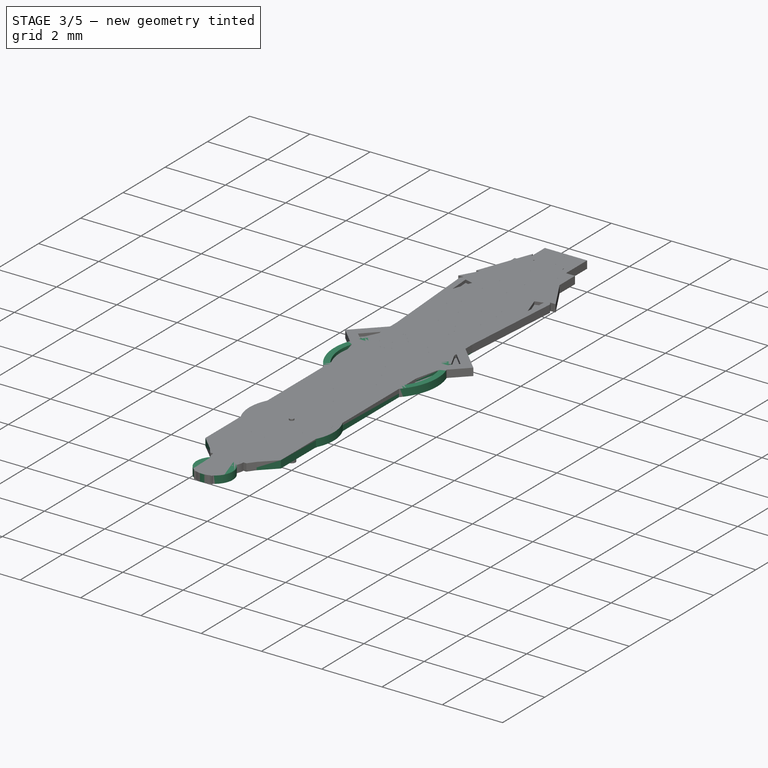
[diagram: stage 3 of 5 — iso view after this stage's code; geometry added in this stage tinted green]
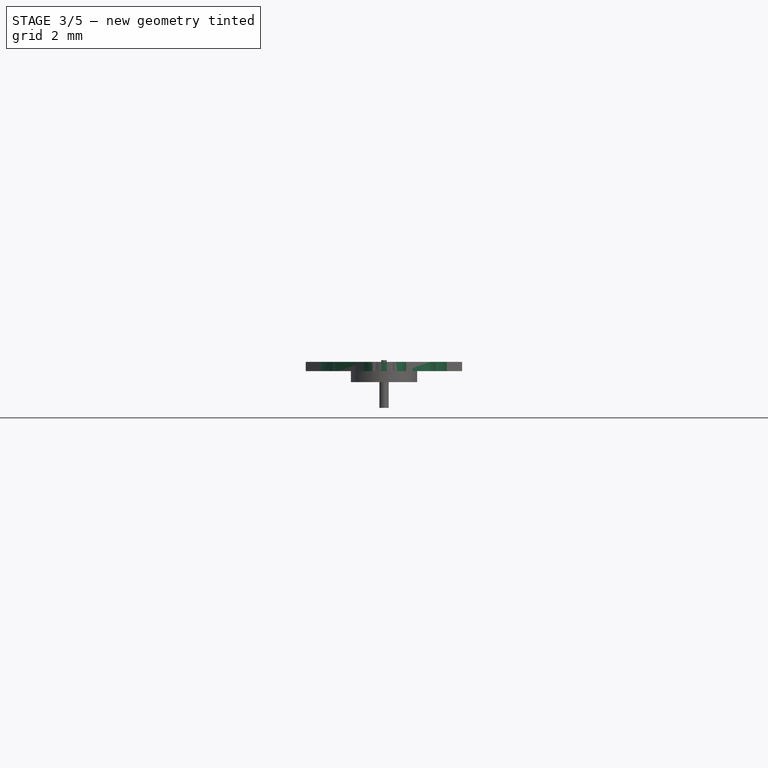
[diagram: stage 3 of 5 — front view after this stage's code; geometry added in this stage tinted green]
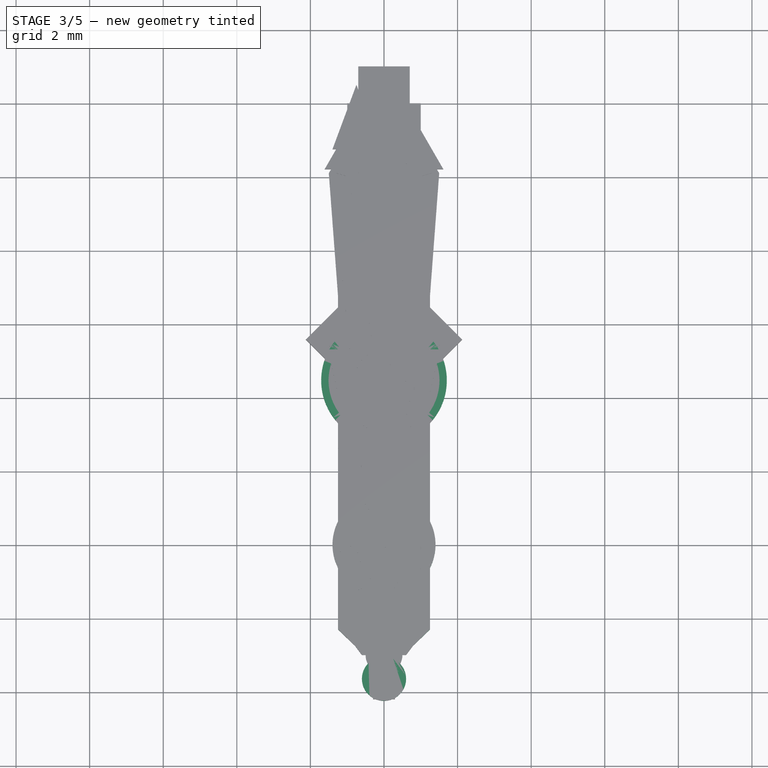
[diagram: stage 3 of 5 — top view after this stage's code; geometry added in this stage tinted green]
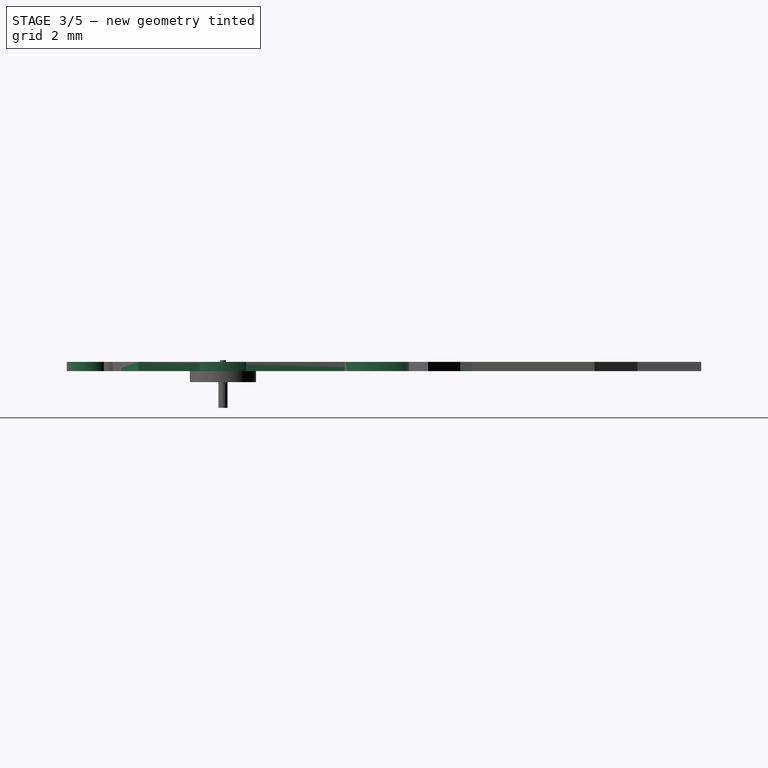
[diagram: stage 3 of 5 — right view after this stage's code; geometry added in this stage tinted green]
FEATURE [PartDesign::Body] Body021  label="Second_Hand_SwordLong"
  Group = -> [Sketch087,Pad046,Sketch085,Pocket022,Sketch086,Pad044,Sketch088,Pad045]
  Origin = -> Origin021
  Placement = pos=(0,0,0) rot=(0,0,1;3.14159rad)
  Tip = -> Pad045
FEATURE [Sketcher::SketchObject] Sketch090
  MapMode = 5
  Support = -> [XY_Plane022]
  sketch-geometry (12):
    g0: LineSegment StartX=-0.15 StartY=7.9 StartZ=0 EndX=-0.15 EndY=10.5 EndZ=0
    g1: LineSegment StartX=-0.15 StartY=10.5 StartZ=0 EndX=0.15 EndY=10.5 EndZ=0
    g2: LineSegment StartX=0.15 StartY=10.5 StartZ=0 EndX=0.15 EndY=7.9 EndZ=0
    g3: LineSegment StartX=0.15 StartY=6.53846 StartZ=0 EndX=0.15 EndY=0.83666 EndZ=0
    g4: LineSegment StartX=-0.15 StartY=0.83666 StartZ=0 EndX=-0.15 EndY=6.53846 EndZ=0
    g5: ArcOfCircle CenterX=0 CenterY=0 CenterZ=0 NormalX=0 NormalY=0 NormalZ=1 AngleXU=0 Radius=0.85 StartAngle=1.7482 EndAngle=4.47487
    g6: LineSegment StartX=-0.25 StartY=-3.1 StartZ=0 EndX=-0.2 EndY=-0.826136 EndZ=0
    g7: LineSegment StartX=0.25 StartY=-3.1 StartZ=0 EndX=0.2 EndY=-0.826136 EndZ=0
    g8: ArcOfCircle CenterX=0 CenterY=0 CenterZ=0 NormalX=0 NormalY=0 NormalZ=1 AngleXU=0 Radius=0.85 StartAngle=4.94991 EndAngle=7.67658
    g9: ArcOfCircle CenterX=0 CenterY=-3.64544 CenterZ=0 NormalX=0 NormalY=0 NormalZ=1 AngleXU=0 Radius=0.6 StartAngle=2.00057 EndAngle=7.42421
    g10: ArcOfCircle CenterX=-0.0129511 CenterY=7.21923 CenterZ=0 NormalX=0 NormalY=0 NormalZ=1 AngleXU=0 Radius=0.694427 StartAngle=1.76946 EndAngle=4.51373
    g11: ArcOfCircle CenterX=-0.0129511 CenterY=7.21923 CenterZ=0 NormalX=0 NormalY=0 NormalZ=1 AngleXU=0 Radius=0.7 StartAngle=4.94733 EndAngle=7.61904
  constraints (32):
    c: Vertical(g0)
    c: Coincident(g0,g1)
    c: Coincident(g1,g2)
    c: Vertical(g3)
    c: Symmetric(g0,g1,g-2)
    c: Symmetric(g2,g0,g-2)
    c: Symmetric(g4,g3,g-2)
    c: DistanceX(g0,g1) = 0.3
    c: Coincident(g5,g-1)
    c: Radius(g5) = 0.85
    c: Coincident(g8,g3)
    c: Coincident(g5,g4)
    c: Vertical(g4)
    c: Coincident(g5,g8)
    c: Symmetric(g6,g7,g-2)
    c: Symmetric(g6,g7,g-2)
    c: Coincident(g6,g5)
    c: Coincident(g8,g7)
    c: DistanceX(g5,g7) = 0.4
    c: DistanceX(g6,g7) = 0.5
    c: Coincident(g9,g6)
    c: Coincident(g9,g7)
    c: Radius(g9) = 0.6
    c: DistanceY(g0,g0) = 2.6
    c: Coincident(g10,g0)
    c: Coincident(g10,g4)
    c: Coincident(g11,g10)
    c: Coincident(g11,g2)
    c: Coincident(g11,g3)
    c: DistanceY(g0) = 10.5
    c: DistanceY(g7) = -3.1
    c: Radius(g11) = 0.7
FEATURE [PartDesign::Pad] Pad049
  AllowMultiFace = false
  Length = 0.25
  Length2 = 100
  Profile = -> Sketch090
  Type = 0
FEATURE [PartDesign::Body] Body024  label="Hour_hand_Skeleton"
  Group = -> [Sketch096,Pad052,Sketch098,Revolution001,Sketch097,Pad053]
  Origin = -> Origin026
  Placement = pos=(0,0,0) rot=(0,0,1;3.14159rad)
  Tip = -> Pad053
FEATURE [Image::ImagePlane] ImagePlane014
  Placement = pos=(-1.03503,-4.89901,0) rot=(0,0,1;2.46091rad)
  XSize = 25.7954
  YSize = 25.7954
FEATURE [Image::ImagePlane] ImagePlane015
  Placement = pos=(-1.11647,-6.83074,0) rot=(0,0,-1;3.78736rad)
  XSize = 26.7596
  YSize = 26.7596
FEATURE [Image::ImagePlane] ImagePlane016
  Placement = pos=(-0.312121,-5.17152,0) rot=(0,0,-1;0.069813rad)
  XSize = 30.501
  YSize = 25.7653
FEATURE [Image::ImagePlane] ImagePlane017
  Placement = pos=(-0.445476,-6.22303,0) rot=(0,0,1;5.83813rad)
  XSize = 31.7145
  YSize = 26.0479
FEATURE [Image::ImagePlane] ImagePlane018
  Placement = pos=(-0.557176,-4.75418,0) rot=(0,0,1;3.28995rad)
  XSize = 36.504
  YSize = 29.9949
FEATURE [Sketcher::SketchObject] Sketch100
  MapMode = 5
  Support = -> [XY_Plane027]
  sketch-geometry (8):
    g0: Circle CenterX=0 CenterY=0 CenterZ=0 NormalX=0 NormalY=0 NormalZ=1 AngleXU=0 Radius=0.7
    g1: LineSegment StartX=-1.25 StartY=-2.3 StartZ=0 EndX=-1.25 EndY=7.7 EndZ=0
    g2: LineSegment StartX=-1.25 StartY=7.7 StartZ=0 EndX=0 EndY=8.2 EndZ=0
    g3: LineSegment StartX=0 StartY=8.2 StartZ=0 EndX=1.25 EndY=7.7 EndZ=0
    g4: LineSegment StartX=1.25 StartY=7.7 StartZ=0 EndX=1.25 EndY=-2.3 EndZ=0
    g5: LineSegment StartX=1.25 StartY=-2.3 StartZ=0 EndX=0.536942 EndY=-3 EndZ=0
    g6: LineSegment StartX=0.536942 StartY=-3 StartZ=0 EndX=-0.536942 EndY=-3 EndZ=0
    g7: LineSegment StartX=-0.536942 StartY=-3 StartZ=0 EndX=-1.25 EndY=-2.3 EndZ=0
  constraints (19):
    c: Diameter(g0) = 1.4
    c: Vertical(g1)
    c: Coincident(g1,g2)
    c: PointOnObject(g2,g-2)
    c: Coincident(g2,g3)
    c: Coincident(g3,g4)
    c: Coincident(g4,g5)
    c: Coincident(g5,g6)
    c: Coincident(g6,g7)
    c: Coincident(g7,g1)
    c: Symmetric(g5,g6,g-2)
    c: Symmetric(g4,g1,g-2)
    c: Symmetric(g1,g3,g-2)
    c: DistanceX(g1,g3) = 2.5
    c: DistanceY(g2) = 8.2
    c: DistanceY(g6) = -3
    c: Coincident(g0,g-1)
    c: DistanceY(g1,g2) = 0.5
    c: DistanceY(g6,g1) = 0.7
FEATURE [PartDesign::Pad] Pad055
  AllowMultiFace = false
  Length = 0.25
  Length2 = 100
  Profile = -> Sketch100
  Type = 0
FEATURE [Sketcher::SketchObject] Sketch101
  ExternalGeometry = -> [Pad055]
  MapMode = 5
  Placement = pos=(0,0,0) rot=(1,0,0;1.5708rad)
  Support = -> [XZ_Plane027]
  sketch-geometry (4):
    g0: LineSegment StartX=0.7 StartY=0 StartZ=0 EndX=0.9 EndY=0 EndZ=0
    g1: LineSegment StartX=0.9 StartY=0 StartZ=0 EndX=0.9 EndY=-0.3 EndZ=0
    g2: LineSegment StartX=0.9 StartY=-0.3 StartZ=0 EndX=0.7 EndY=-0.3 EndZ=0
    g3: LineSegment StartX=0.7 StartY=-0.3 StartZ=0 EndX=0.7 EndY=0 EndZ=0
  constraints (11):
    c: Coincident(g0,g1)
    c: Coincident(g1,g2)
    c: Coincident(g2,g3)
    c: Coincident(g3,g0)
    c: Horizontal(g0)
    c: Horizontal(g2)
    c: Vertical(g1)
    c: Vertical(g3)
    c: DistanceX(g0,g0) = 0.2
    c: DistanceY(g1,g1) = 0.3
    c: DistanceX(g1) = 0.9
FEATURE [PartDesign::Revolution] Revolution002
  AllowMultiFace = false
  Angle = 360
  Axis = (0,-2e-16,1)
  Base = (0,0,0)
  BaseFeature = -> Pad055
  Profile = -> Sketch101
  ReferenceAxis = -> Sketch101 [V_Axis]
  Reversed = true
FEATURE [Sketcher::SketchObject] Sketch102
  AttachmentOffset = pos=(0,0,0.25) rot=(0,0,1;0rad)
  MapMode = 5
  Placement = pos=(0,0,0.25) rot=(0,0,1;0rad)
  Support = -> [XY_Plane027]
  sketch-geometry (5):
    g0: LineSegment StartX=-0.75 StartY=7.4 StartZ=0 EndX=-0.75 EndY=3 EndZ=0
    g1: LineSegment StartX=-0.75 StartY=3 StartZ=0 EndX=0.75 EndY=3 EndZ=0
    g2: LineSegment StartX=0.75 StartY=3 StartZ=0 EndX=0.75 EndY=7.4 EndZ=0
    g3: LineSegment StartX=0.75 StartY=7.4 StartZ=0 EndX=0 EndY=7.8 EndZ=0
    g4: LineSegment StartX=0 StartY=7.8 StartZ=0 EndX=-0.75 EndY=7.4 EndZ=0
  constraints (14):
    c: Vertical(g0)
    c: Coincident(g0,g1)
    c: Horizontal(g1)
    c: Coincident(g1,g2)
    c: Vertical(g2)
    c: Coincident(g2,g3)
    c: Coincident(g3,g4)
    c: Coincident(g4,g0)
    c: Symmetric(g2,g0,g-2)
    c: PointOnObject(g3,g-2)
    c: DistanceX(g1,g1) = 1.5
    c: DistanceY(g0,g3) = 0.4
    c: DistanceY(g3) = 7.8
    c: DistanceY(g1) = 3
FEATURE [PartDesign::Pocket] Pocket024
  BaseFeature = -> Revolution002
  Length = 0.1
  Length2 = 100
  Profile = -> Sketch102
  Type = 0
FEATURE [PartDesign::Body] Body025  label="Hour_hand_MM"
  Group = -> [Sketch100,Pad055,Sketch101,Revolution002,Sketch102,Pocket024]
  Origin = -> Origin027
  Placement = pos=(0,0,0) rot=(0,0,1;3.14159rad)
  Tip = -> Pocket024
FEATURE [Sketcher::SketchObject] Sketch105
  MapMode = 5
  Support = -> [XY_Plane028]
  sketch-geometry (8):
    g0: Circle CenterX=0 CenterY=0 CenterZ=0 NormalX=0 NormalY=0 NormalZ=1 AngleXU=0 Radius=0.7
    g1: LineSegment StartX=-0.25 StartY=1.8775 StartZ=0 EndX=-1.25 EndY=2.6275 EndZ=0
    g2: LineSegment StartX=-1.25 StartY=2.6275 StartZ=0 EndX=0 EndY=9 EndZ=0
    g3: LineSegment StartX=0 StartY=9 StartZ=0 EndX=1.25 EndY=2.6275 EndZ=0
    g4: LineSegment StartX=1.25 StartY=2.6275 StartZ=0 EndX=0.25 EndY=1.8775 EndZ=0
    g5: ArcOfCircle CenterX=0 CenterY=0 CenterZ=0 NormalX=0 NormalY=0 NormalZ=1 AngleXU=0 Radius=1.4 StartAngle=1.75033 EndAngle=7.67445
    g6: LineSegment StartX=-0.25 StartY=1.8775 StartZ=0 EndX=-0.25 EndY=1.3775 EndZ=0
    g7: LineSegment StartX=0.25 StartY=1.8775 StartZ=0 EndX=0.25 EndY=1.3775 EndZ=0
  constraints (21):
    c: Diameter(g0) = 1.4
    c: Coincident(g1,g2)
    c: PointOnObject(g2,g-2)
    c: Coincident(g2,g3)
    c: Coincident(g3,g4)
    c: Symmetric(g4,g1,g-2)
    c: Symmetric(g1,g3,g-2)
    c: Coincident(g0,g-1)
    c: DistanceY(g2) = 9
    c: Coincident(g5,g0)
    c: Coincident(g1,g6)
    c: Coincident(g6,g5)
    c: Coincident(g4,g7)
    c: Coincident(g7,g5)
    c: Symmetric(g5,g5,g-2)
    c: Vertical(g7)
    c: Radius(g5) = 1.4
    c: DistanceX(g5,g5) = 0.5
    c: DistanceX(g1,g3) = 2.5
    c: DistanceY(g4,g3) = 0.75
    c: DistanceY(g7,g7) = 0.5
FEATURE [PartDesign::Pad] Pad056
  AllowMultiFace = false
  Length = 0.25
  Length2 = 100
  Profile = -> Sketch105
  Type = 0
FEATURE [Sketcher::SketchObject] Sketch103
  ExternalGeometry = -> [Pad056]
  MapMode = 5
  Placement = pos=(0,0,0) rot=(1,0,0;1.5708rad)
  Support = -> [XZ_Plane028]
  sketch-geometry (4):
    g0: LineSegment StartX=0.7 StartY=0 StartZ=0 EndX=0.9 EndY=0 EndZ=0
    g1: LineSegment StartX=0.9 StartY=0 StartZ=0 EndX=0.9 EndY=-0.3 EndZ=0
    g2: LineSegment StartX=0.9 StartY=-0.3 StartZ=0 EndX=0.7 EndY=-0.3 EndZ=0
    g3: LineSegment StartX=0.7 StartY=-0.3 StartZ=0 EndX=0.7 EndY=0 EndZ=0
  constraints (11):
    c: Coincident(g0,g1)
    c: Coincident(g1,g2)
    c: Coincident(g2,g3)
    c: Coincident(g3,g0)
    c: Horizontal(g0)
    c: Horizontal(g2)
    c: Vertical(g1)
    c: Vertical(g3)
    c: DistanceX(g0,g0) = 0.2
    c: DistanceY(g1,g1) = 0.3
    c: DistanceX(g1) = 0.9
FEATURE [PartDesign::Revolution] Revolution003
  AllowMultiFace = false
  Angle = 360
  Axis = (0,-2e-16,1)
  Base = (0,0,0)
  BaseFeature = -> Pad056
  Profile = -> Sketch103
  ReferenceAxis = -> Sketch103 [V_Axis]
  Reversed = true
FEATURE [Sketcher::SketchObject] Sketch104
  AttachmentOffset = pos=(0,0,0.25) rot=(0,0,1;0rad)
  ExternalGeometry = -> [Revolution003]
  MapMode = 5
  Placement = pos=(0,0,0.25) rot=(0,0,1;0rad)
  Support = -> [XY_Plane028]
  sketch-geometry (7):
    g0: LineSegment StartX=-0.1 StartY=6.93165 StartZ=0 EndX=0.1 EndY=6.93165 EndZ=0
    g1: LineSegment StartX=0.1 StartY=6.93165 StartZ=0 EndX=0.919366 EndY=2.75452 EndZ=0
    g2: LineSegment StartX=0.919366 StartY=2.75452 StartZ=0 EndX=0 EndY=2.065 EndZ=0
    g3: LineSegment StartX=0 StartY=2.065 StartZ=0 EndX=-0.919366 EndY=2.75452 EndZ=0
    g4: LineSegment StartX=-0.919366 StartY=2.75452 StartZ=0 EndX=-0.1 EndY=6.93165 EndZ=0
    g5: LineSegment [constr] StartX=0.919366 StartY=2.75452 StartZ=0 EndX=1.09937 EndY=2.51452 EndZ=0
    g6: LineSegment [constr] StartX=0.919366 StartY=2.75452 StartZ=0 EndX=1.21376 EndY=2.81227 EndZ=0
  constraints (19):
    c: Coincident(g0,g1)
    c: Coincident(g1,g2)
    c: PointOnObject(g2,g-2)
    c: Coincident(g2,g3)
    c: Coincident(g3,g4)
    c: Coincident(g4,g0)
    c: Symmetric(g0,g0,g-2)
    c: Symmetric(g3,g1,g-2)
    c: Parallel(g2,g-3)
    c: Parallel(g-4,g1)
    c: Coincident(g5,g1)
    c: PointOnObject(g5,g-3)
    c: Coincident(g6,g1)
    c: PointOnObject(g6,g-4)
    c: Perpendicular(g-3,g5)
    c: Perpendicular(g-4,g6)
    c: Equal(g5,g6)
    c: DistanceX(g0,g0) = 0.2
    c: Distance(g5) = 0.3
FEATURE [PartDesign::Pocket] Pocket025
  BaseFeature = -> Revolution003
  Length = 0.1
  Length2 = 100
  Profile = -> Sketch104
  Type = 0
FEATURE [PartDesign::Body] Body026  label="Hour_hand_Blades"
  Group = -> [Sketch105,Pad056,Sketch103,Revolution003,Sketch104,Pocket025]
  Origin = -> Origin028
  Placement = pos=(0,0,0) rot=(0,0,1;3.14159rad)
  Tip = -> Pocket025
FEATURE [Sketcher::SketchObject] Sketch108
  MapMode = 5
  Support = -> [XY_Plane029]
  sketch-geometry (15):
    g0: Circle CenterX=0 CenterY=0 CenterZ=0 NormalX=0 NormalY=0 NormalZ=1 AngleXU=0 Radius=0.7
    g1: LineSegment StartX=-0.75 StartY=4.2 StartZ=0 EndX=-2.125 EndY=5.575 EndZ=0
    g2: LineSegment StartX=2.125 StartY=5.575 StartZ=0 EndX=0.75 EndY=4.2 EndZ=0
    g3: ArcOfCircle CenterX=0 CenterY=0 CenterZ=0 NormalX=0 NormalY=0 NormalZ=1 AngleXU=0 Radius=1 StartAngle=2.41886 EndAngle=7.00592
    g4: LineSegment StartX=-0.75 StartY=4.2 StartZ=0 EndX=-0.75 EndY=0.661438 EndZ=0
    g5: LineSegment StartX=0.75 StartY=4.2 StartZ=0 EndX=0.75 EndY=0.661438 EndZ=0
    g6: LineSegment StartX=-2.125 StartY=5.575 StartZ=0 EndX=-0.75 EndY=6.95 EndZ=0
    g7: LineSegment StartX=-0.75 StartY=6.95 StartZ=0 EndX=-0.75 EndY=7.7 EndZ=0
    g8: LineSegment StartX=-0.75 StartY=7.7 StartZ=0 EndX=-0.2 EndY=7.7 EndZ=0
    g9: LineSegment StartX=-0.2 StartY=7.7 StartZ=0 EndX=-0.2 EndY=7.8 EndZ=0
    g10: LineSegment StartX=-0.2 StartY=7.8 StartZ=0 EndX=0.2 EndY=7.8 EndZ=0
    g11: LineSegment StartX=0.2 StartY=7.8 StartZ=0 EndX=0.2 EndY=7.7 EndZ=0
    g12: LineSegment StartX=0.2 StartY=7.7 StartZ=0 EndX=0.75 EndY=7.7 EndZ=0
    g13: LineSegment StartX=0.75 StartY=7.7 StartZ=0 EndX=0.75 EndY=6.95 EndZ=0
    g14: LineSegment StartX=0.75 StartY=6.95 StartZ=0 EndX=2.125 EndY=5.575 EndZ=0
  constraints (38):
    c: Symmetric(g2,g1,g-2)
    c: Symmetric(g1,g2,g-2)
    c: Coincident(g0,g-1)
    c: Coincident(g3,g0)
    c: Coincident(g1,g4)
    c: Coincident(g4,g3)
    c: Coincident(g2,g5)
    c: Coincident(g5,g3)
    c: Symmetric(g3,g3,g-2)
    c: Vertical(g5)
    c: Radius(g0) = 0.7
    c: Radius(g3) = 1
    c: DistanceX(g1,g2) = 1.5
    c: DistanceY(g1) = 4.2
    c: Coincident(g1,g6)
    c: Coincident(g6,g7)
    c: Vertical(g7)
    c: Coincident(g7,g8)
    c: Coincident(g8,g9)
    c: Coincident(g9,g10)
    c: Coincident(g10,g11)
    c: Coincident(g11,g12)
    c: Coincident(g12,g13)
    c: Coincident(g13,g14)
    c: Coincident(g14,g2)
    c: Perpendicular(g14,g2)
    c: Symmetric(g13,g6,g-2)
    c: Symmetric(g7,g12,g-2)
    c: Symmetric(g8,g11,g-2)
    c: Symmetric(g10,g9,g-2)
    c: Horizontal(g12)
    c: Vertical(g11)
    c: DistanceX(g1,g2) = 4.25
    c: DistanceY(g9) = 7.8
    c: DistanceY(g11,g11) = 0.1
    c: DistanceX(g7,g12) = 1.5
    c: DistanceX(g9,g10) = 0.4
    c: Equal(g2,g14)
FEATURE [PartDesign::Pad] Pad057
  AllowMultiFace = false
  Length = 0.25
  Length2 = 100
  Profile = -> Sketch108
  Type = 0
FEATURE [Sketcher::SketchObject] Sketch107
  ExternalGeometry = -> [Pad057]
  MapMode = 5
  Placement = pos=(0,0,0) rot=(1,0,0;1.5708rad)
  Support = -> [XZ_Plane029]
  sketch-geometry (4):
    g0: LineSegment StartX=0.7 StartY=0 StartZ=0 EndX=0.9 EndY=0 EndZ=0
    g1: LineSegment StartX=0.9 StartY=0 StartZ=0 EndX=0.9 EndY=-0.3 EndZ=0
    g2: LineSegment StartX=0.9 StartY=-0.3 StartZ=0 EndX=0.7 EndY=-0.3 EndZ=0
    g3: LineSegment StartX=0.7 StartY=-0.3 StartZ=0 EndX=0.7 EndY=0 EndZ=0
  constraints (11):
    c: Coincident(g0,g1)
    c: Coincident(g1,g2)
    c: Coincident(g2,g3)
    c: Coincident(g3,g0)
    c: Horizontal(g0)
    c: Horizontal(g2)
    c: Vertical(g1)
    c: Vertical(g3)
    c: DistanceX(g0,g0) = 0.2
    c: DistanceY(g1,g1) = 0.3
    c: DistanceX(g1) = 0.9
FEATURE [PartDesign::Revolution] Revolution004
  AllowMultiFace = false
  Angle = 360
  Axis = (0,-2e-16,1)
  Base = (0,0,0)
  BaseFeature = -> Pad057
  Profile = -> Sketch107
  ReferenceAxis = -> Sketch107 [V_Axis]
  Reversed = true
FEATURE [Sketcher::SketchObject] Sketch106
  AttachmentOffset = pos=(0,0,0.25) rot=(0,0,1;0rad)
  ExternalGeometry = -> [Revolution004]
  MapMode = 5
  Placement = pos=(0,0,0.25) rot=(0,0,1;0rad)
  Support = -> [XY_Plane029]
  sketch-geometry (13):
    g0: LineSegment StartX=-1.70074 StartY=5.575 StartZ=0 EndX=-0.45 EndY=6.82574 EndZ=0
    g1: LineSegment StartX=0.45 StartY=6.82574 StartZ=0 EndX=1.70074 EndY=5.575 EndZ=0
    g2: LineSegment StartX=1.70074 StartY=5.575 StartZ=0 EndX=0.45 EndY=4.32426 EndZ=0
    g3: LineSegment StartX=-0.45 StartY=4.32426 StartZ=0 EndX=-1.70074 EndY=5.575 EndZ=0
    g4: LineSegment StartX=-0.45 StartY=6.82574 StartZ=0 EndX=-0.45 EndY=7.4 EndZ=0
    g5: LineSegment StartX=-0.45 StartY=7.4 StartZ=0 EndX=0.45 EndY=7.4 EndZ=0
    g6: LineSegment StartX=0.45 StartY=7.4 StartZ=0 EndX=0.45 EndY=6.82574 EndZ=0
    g7: LineSegment StartX=0.45 StartY=4.32426 StartZ=0 EndX=0.45 EndY=1.4 EndZ=0
    g8: LineSegment StartX=0.45 StartY=1.4 StartZ=0 EndX=-0.45 EndY=1.4 EndZ=0
    g9: LineSegment StartX=-0.45 StartY=1.4 StartZ=0 EndX=-0.45 EndY=4.32426 EndZ=0
    g10: LineSegment [constr] StartX=-0.2 StartY=7.7 StartZ=0 EndX=-0.2 EndY=7.4 EndZ=0
    g11: LineSegment [constr] StartX=-0.45 StartY=1.4 StartZ=0 EndX=-0.75 EndY=1.4 EndZ=0
    g12: LineSegment [constr] StartX=-1.70074 StartY=5.575 StartZ=0 EndX=-1.91287 EndY=5.36287 EndZ=0
  constraints (36):
    c: Coincident(g1,g2)
    c: Coincident(g3,g0)
    c: Perpendicular(g1,g2)
    c: Symmetric(g0,g1,g-2)
    c: Equal(g1,g2)
    c: Horizontal(g-4,g0)
    c: Vertical(g4)
    c: Coincident(g4,g5)
    c: Horizontal(g5)
    c: Coincident(g5,g6)
    c: Vertical(g7)
    c: Coincident(g7,g8)
    c: Horizontal(g8)
    c: Coincident(g8,g9)
    c: Vertical(g9)
    c: Coincident(g1,g6)
    c: Coincident(g0,g4)
    c: Coincident(g3,g9)
    c: Coincident(g2,g7)
    c: Symmetric(g3,g2,g-2)
    c: Symmetric(g1,g0,g-2)
    c: Vertical(g6)
    c: Vertical(g3,g0)
    c: Coincident(g10,g-6)
    c: PointOnObject(g10,g5)
    c: Vertical(g10)
    c: Coincident(g11,g8)
    c: PointOnObject(g11,g-5)
    c: Horizontal(g11)
    c: Coincident(g12,g0)
    c: PointOnObject(g12,g-4)
    c: Perpendicular(g-4,g12)
    c: Equal(g12,g10)
    c: Equal(g10,g11)
    c: DistanceY(g-1,g7) = 1.4
    c: DistanceX(g11,g11) = 0.3
FEATURE [PartDesign::Pocket] Pocket026
  BaseFeature = -> Revolution004
  Length = 0.1
  Length2 = 100
  Profile = -> Sketch106
  Type = 0
FEATURE [PartDesign::Body] Body027  label="Hour_hand_Snowflake"
  Group = -> [Sketch108,Pad057,Sketch107,Revolution004,Sketch106,Pocket026]
  Origin = -> Origin029
  Placement = pos=(0,0,0) rot=(0,0,1;3.14159rad)
  Tip = -> Pocket026
FEATURE [Sketcher::SketchObject] Sketch109
  MapMode = 5
  Support = -> [XY_Plane030]
  sketch-geometry (6):
    g0: Circle CenterX=0 CenterY=0 CenterZ=0 NormalX=0 NormalY=0 NormalZ=1 AngleXU=0 Radius=0.7
    g1: LineSegment StartX=-1.5 StartY=5.2 StartZ=0 EndX=0 EndY=8.2 EndZ=0
    g2: LineSegment StartX=0 StartY=8.2 StartZ=0 EndX=1.5 EndY=5.2 EndZ=0
    g3: ArcOfCircle CenterX=0 CenterY=0 CenterZ=0 NormalX=0 NormalY=0 NormalZ=1 AngleXU=0 Radius=1 StartAngle=2.0944 EndAngle=7.33038
    g4: LineSegment StartX=-1.5 StartY=5.2 StartZ=0 EndX=-0.5 EndY=0.866025 EndZ=0
    g5: LineSegment StartX=1.5 StartY=5.2 StartZ=0 EndX=0.5 EndY=0.866025 EndZ=0
  constraints (16):
    c: Symmetric(g2,g1,g-2)
    c: Coincident(g0,g-1)
    c: Coincident(g3,g0)
    c: Coincident(g1,g4)
    c: Coincident(g4,g3)
    c: Coincident(g2,g5)
    c: Coincident(g5,g3)
    c: Symmetric(g3,g3,g-2)
    c: Radius(g0) = 0.7
    c: Radius(g3) = 1
    c: PointOnObject(g1,g-2)
    c: Coincident(g2,g1)
    c: DistanceY(g1) = 8.2
    c: DistanceX(g3,g3) = 1
    c: DistanceX(g1,g2) = 3
    c: DistanceY(g1) = 5.2
FEATURE [Sketcher::SketchObject] Sketch110
  MapMode = 5
  Placement = pos=(0,0,0) rot=(1,0,0;1.5708rad)
  Support = -> [XZ_Plane030]
  sketch-geometry (4):
    g0: LineSegment StartX=0.7 StartY=0 StartZ=0 EndX=0.9 EndY=0 EndZ=0
    g1: LineSegment StartX=0.9 StartY=0 StartZ=0 EndX=0.9 EndY=-0.3 EndZ=0
    g2: LineSegment StartX=0.9 StartY=-0.3 StartZ=0 EndX=0.7 EndY=-0.3 EndZ=0
    g3: LineSegment StartX=0.7 StartY=-0.3 StartZ=0 EndX=0.7 EndY=0 EndZ=0
FEATURE [PartDesign::Pad] Pad058
  AllowMultiFace = false
  Length = 0.25
  Length2 = 100
  Profile = -> Sketch109
  Type = 0
FEATURE [PartDesign::Revolution] Revolution005
  AllowMultiFace = false
  Angle = 360
  Axis = (0,-2e-16,1)
  Base = (0,0,0)
  BaseFeature = -> Pad058
  Profile = -> Sketch110
  ReferenceAxis = -> Sketch110 [V_Axis]
  Reversed = true
FEATURE [Sketcher::SketchObject] Sketch111
  AttachmentOffset = pos=(0,0,0.25) rot=(0,0,1;0rad)
  ExternalGeometry = -> [Revolution005]
  MapMode = 5
  Placement = pos=(0,0,0.25) rot=(0,0,1;0rad)
  Support = -> [XY_Plane030]
  sketch-geometry (7):
    g0: LineSegment StartX=-1.13066 StartY=5.15605 StartZ=0 EndX=0 EndY=7.41738 EndZ=0
    g1: LineSegment StartX=0 StartY=7.41738 StartZ=0 EndX=1.13066 EndY=5.15605 EndZ=0
    g2: LineSegment StartX=1.13066 StartY=5.15605 StartZ=0 EndX=0.344768 EndY=1.75 EndZ=0
    g3: LineSegment StartX=0.344768 StartY=1.75 StartZ=0 EndX=-0.344768 EndY=1.75 EndZ=0
    g4: LineSegment StartX=-0.344768 StartY=1.75 StartZ=0 EndX=-1.13066 EndY=5.15605 EndZ=0
    g5: LineSegment [constr] StartX=0 StartY=7.41738 StartZ=0 EndX=0.31305 EndY=7.5739 EndZ=0
    g6: LineSegment [constr] StartX=0.344768 StartY=1.75 StartZ=0 EndX=0.685807 EndY=1.67131 EndZ=0
  constraints (19):
    c: PointOnObject(g0,g-2)
    c: Coincident(g0,g1)
    c: Coincident(g1,g2)
    c: Coincident(g2,g3)
    c: Coincident(g3,g4)
    c: Coincident(g4,g0)
    c: Symmetric(g0,g1,g-2)
    c: Symmetric(g3,g2,g-2)
    c: Parallel(g-3,g1)
    c: Parallel(g2,g-4)
    c: Coincident(g5,g0)
    c: PointOnObject(g5,g-3)
    c: Coincident(g6,g2)
    c: PointOnObject(g6,g-4)
    c: Perpendicular(g-4,g6)
    c: Perpendicular(g-3,g5)
    c: Equal(g5,g6)
    c: Distance(g6) = 0.35
    c: DistanceY(g2) = 1.75
FEATURE [PartDesign::Pocket] Pocket027
  BaseFeature = -> Revolution005
  Length = 0.1
  Length2 = 100
  Profile = -> Sketch111
  Type = 0
FEATURE [PartDesign::Body] Body028  label="Hour_hand_Sword"
  Group = -> [Sketch109,Pad058,Sketch110,Revolution005,Sketch111,Pocket027]
  Origin = -> Origin030
  Placement = pos=(0,0,0) rot=(0,0,1;3.14159rad)
  Tip = -> Pocket027
FEATURE [Sketcher::SketchObject] Sketch112
  MapMode = 5
  Support = -> [XY_Plane031]
  sketch-geometry (14):
    g0: Circle CenterX=0 CenterY=0 CenterZ=0 NormalX=0 NormalY=0 NormalZ=1 AngleXU=0 Radius=0.7
    g1: ArcOfCircle CenterX=0 CenterY=0 CenterZ=0 NormalX=0 NormalY=0 NormalZ=1 AngleXU=0 Radius=1.2 StartAngle=1.78067 EndAngle=7.64411
    g2: LineSegment StartX=-0.25 StartY=1.97367 StartZ=0 EndX=-0.875 EndY=1.97367 EndZ=0
    g3: LineSegment StartX=-0.875 StartY=1.97367 StartZ=0 EndX=-0.875 EndY=8 EndZ=0
    g4: LineSegment StartX=-0.875 StartY=8 StartZ=0 EndX=0 EndY=8.5 EndZ=0
    g5: LineSegment StartX=0 StartY=8.5 StartZ=0 EndX=0.875 EndY=8 EndZ=0
    g6: LineSegment StartX=0.875 StartY=8 StartZ=0 EndX=0.875 EndY=1.97367 EndZ=0
    g7: LineSegment StartX=0.875 StartY=1.97367 StartZ=0 EndX=0.25 EndY=1.97367 EndZ=0
    g8: LineSegment StartX=0.25 StartY=1.97367 StartZ=0 EndX=0.25 EndY=1.17367 EndZ=0
    g9: LineSegment StartX=-0.25 StartY=1.97367 StartZ=0 EndX=-0.25 EndY=1.17367 EndZ=0
    g10: LineSegment StartX=-0.2 StartY=7 StartZ=0 EndX=0.2 EndY=7 EndZ=0
    g11: LineSegment StartX=0.2 StartY=7 StartZ=0 EndX=0.2 EndY=2.37367 EndZ=0
    g12: LineSegment StartX=0.2 StartY=2.37367 StartZ=0 EndX=-0.2 EndY=2.37367 EndZ=0
    g13: LineSegment StartX=-0.2 StartY=2.37367 StartZ=0 EndX=-0.2 EndY=7 EndZ=0
  constraints (37):
    c: Coincident(g0,g-1)
    c: Coincident(g1,g0)
    c: Symmetric(g1,g1,g-2)
    c: Radius(g0) = 0.7
    c: Radius(g1) = 1.2
    c: DistanceX(g1,g1) = 0.5
    c: Horizontal(g2)
    c: Coincident(g2,g3)
    c: Vertical(g3)
    c: Coincident(g3,g4)
    c: PointOnObject(g4,g-2)
    c: Coincident(g4,g5)
    c: Coincident(g5,g6)
    c: Coincident(g6,g7)
    c: Coincident(g7,g8)
    c: Coincident(g8,g1)
    c: Coincident(g2,g9)
    c: Coincident(g9,g1)
    c: Vertical(g9)
    c: Symmetric(g2,g7,g-2)
    c: Symmetric(g6,g2,g-2)
    c: DistanceX(g2,g6) = 1.75
    c: DistanceY(g8,g8) = 0.8
    c: DistanceY(g4) = 8.5
    c: Symmetric(g3,g5,g-2)
    c: Coincident(g10,g11)
    c: Coincident(g11,g12)
    c: Coincident(g12,g13)
    c: Coincident(g13,g10)
    c: Horizontal(g10)
    c: Vertical(g11)
    c: Vertical(g13)
    c: Symmetric(g12,g11,g-2)
    c: DistanceY(g3,g4) = 0.5
    c: DistanceY(g2,g12) = 0.4
    c: DistanceX(g12,g12) = 0.4
    c: DistanceY(g10) = 7
FEATURE [PartDesign::Pad] Pad059
  AllowMultiFace = false
  Length = 0.25
  Length2 = 100
  Profile = -> Sketch112
  Type = 0
FEATURE [Sketcher::SketchObject] Sketch113
  MapMode = 5
  Placement = pos=(0,0,0) rot=(1,0,0;1.5708rad)
  Support = -> [XZ_Plane031]
  sketch-geometry (4):
    g0: LineSegment StartX=0.7 StartY=0 StartZ=0 EndX=0.9 EndY=0 EndZ=0
    g1: LineSegment StartX=0.9 StartY=0 StartZ=0 EndX=0.9 EndY=-0.3 EndZ=0
    g2: LineSegment StartX=0.9 StartY=-0.3 StartZ=0 EndX=0.7 EndY=-0.3 EndZ=0
    g3: LineSegment StartX=0.7 StartY=-0.3 StartZ=0 EndX=0.7 EndY=0 EndZ=0
FEATURE [PartDesign::Revolution] Revolution006
  AllowMultiFace = false
  Angle = 360
  Axis = (0,-2e-16,1)
  Base = (0,0,0)
  BaseFeature = -> Pad059
  Profile = -> Sketch113
  ReferenceAxis = -> Sketch113 [V_Axis]
  Reversed = true
FEATURE [Sketcher::SketchObject] Sketch114
  AttachmentOffset = pos=(0,0,0.25) rot=(0,0,1;0rad)
  ExternalGeometry = -> [Revolution006]
  MapMode = 5
  Placement = pos=(0,0,0.25) rot=(0,0,1;0rad)
  Support = -> [XY_Plane031]
  sketch-geometry (11):
    g0: Circle CenterX=0 CenterY=7.75 CenterZ=0 NormalX=0 NormalY=0 NormalZ=1 AngleXU=0 Radius=0.5
    g1: LineSegment StartX=-0.725 StartY=7 StartZ=0 EndX=-0.35 EndY=7 EndZ=0
    g2: LineSegment StartX=-0.35 StartY=7 StartZ=0 EndX=-0.35 EndY=2.37367 EndZ=0
    g3: LineSegment StartX=-0.35 StartY=2.37367 StartZ=0 EndX=-0.725 EndY=2.37367 EndZ=0
    g4: LineSegment StartX=-0.725 StartY=2.37367 StartZ=0 EndX=-0.725 EndY=7 EndZ=0
    g5: LineSegment StartX=0.35 StartY=7 StartZ=0 EndX=0.725 EndY=7 EndZ=0
    g6: LineSegment StartX=0.725 StartY=7 StartZ=0 EndX=0.725 EndY=2.37367 EndZ=0
    g7: LineSegment StartX=0.725 StartY=2.37367 StartZ=0 EndX=0.35 EndY=2.37367 EndZ=0
    g8: LineSegment StartX=0.35 StartY=2.37367 StartZ=0 EndX=0.35 EndY=7 EndZ=0
    g9: LineSegment [constr] StartX=0.725 StartY=2.37367 StartZ=0 EndX=0.875 EndY=2.37367 EndZ=0
    g10: LineSegment [constr] StartX=0.2 StartY=2.37367 StartZ=0 EndX=0.35 EndY=2.37367 EndZ=0
  constraints (31):
    c: PointOnObject(g0,g-2)
    c: Coincident(g1,g2)
    c: Coincident(g2,g3)
    c: Coincident(g3,g4)
    c: Coincident(g4,g1)
    c: Horizontal(g1)
    c: Horizontal(g3)
    c: Vertical(g2)
    c: Vertical(g4)
    c: Coincident(g5,g6)
    c: Coincident(g6,g7)
    c: Coincident(g7,g8)
    c: Coincident(g8,g5)
    c: Horizontal(g5)
    c: Horizontal(g7)
    c: Vertical(g6)
    c: Vertical(g8)
    c: Equal(g3,g7)
    c: Equal(g8,g2)
    c: Symmetric(g7,g2,g-2)
    c: DistanceX(g-4,g7) = 0.15
    c: Horizontal(g-4,g7)
    c: Coincident(g9,g6)
    c: PointOnObject(g9,g-5)
    c: Horizontal(g9)
    c: Coincident(g10,g-4)
    c: Coincident(g10,g7)
    c: Equal(g10,g9)
    c: Horizontal(g5,g-4)
    c: DistanceY(g0) = 7.75
    c: Radius(g0) = 0.5
FEATURE [PartDesign::Pocket] Pocket028
  BaseFeature = -> Revolution006
  Length = 0.1
  Length2 = 100
  Profile = -> Sketch114
  Type = 0
FEATURE [PartDesign::Body] Body029  label="Hour_hand_OceanMaster"
  Group = -> [Sketch112,Pad059,Sketch113,Revolution006,Sketch114,Pocket028]
  Origin = -> Origin031
  Placement = pos=(0,0,0) rot=(0,0,1;3.14159rad)
  Tip = -> Pocket028
FEATURE [Image::ImagePlane] ImagePlane019
  Placement = pos=(0.214719,-2.94105,0) rot=(0,0,-1;3.70883rad)
  XSize = 17.946
  YSize = 13.4942
FEATURE [Sketcher::SketchObject] Sketch116
  MapMode = 5
  Support = -> [XY_Plane032]
  sketch-geometry (8):
    g0: Circle CenterX=0 CenterY=0 CenterZ=0 NormalX=0 NormalY=0 NormalZ=1 AngleXU=0 Radius=0.7
    g1: ArcOfCircle CenterX=0 CenterY=0 CenterZ=0 NormalX=0 NormalY=0 NormalZ=1 AngleXU=0 Radius=1.2 StartAngle=1.95519 EndAngle=7.46958
    g2: LineSegment StartX=0.875 StartY=3 StartZ=0 EndX=0.45 EndY=1.11243 EndZ=0
    g3: LineSegment StartX=-0.875 StartY=3 StartZ=0 EndX=-0.45 EndY=1.11243 EndZ=0
    g4: ArcOfCircle CenterX=5e-16 CenterY=4.46615 CenterZ=0 NormalX=0 NormalY=0 NormalZ=1 AngleXU=0 Radius=1.7074 StartAngle=2.02558 EndAngle=4.17432
    g5: ArcOfCircle CenterX=5e-16 CenterY=4.46615 CenterZ=0 NormalX=0 NormalY=0 NormalZ=1 AngleXU=0 Radius=1.7074 StartAngle=5.25045 EndAngle=7.3992
    g6: LineSegment StartX=0 StartY=8 StartZ=0 EndX=-0.75 EndY=6 EndZ=0
    g7: LineSegment StartX=0 StartY=8 StartZ=0 EndX=0.75 EndY=6 EndZ=0
  constraints (22):
    c: Coincident(g0,g-1)
    c: Coincident(g1,g0)
    c: Symmetric(g1,g1,g-2)
    c: Radius(g0) = 0.7
    c: Radius(g1) = 1.2
    c: Coincident(g2,g1)
    c: Coincident(g3,g1)
    c: Symmetric(g2,g3,g-2)
    c: DistanceX(g1,g1) = 0.9
    c: DistanceX(g3,g2) = 1.75
    c: DistanceY(g3) = 3
    c: Coincident(g4,g3)
    c: Coincident(g5,g4)
    c: Coincident(g5,g2)
    c: Symmetric(g4,g5,g-2)
    c: PointOnObject(g6,g-2)
    c: Coincident(g6,g4)
    c: Coincident(g6,g7)
    c: Coincident(g7,g5)
    c: DistanceY(g6) = 8
    c: DistanceX(g4,g5) = 1.5
    c: DistanceY(g5,g6) = 2
FEATURE [PartDesign::Pad] Pad060
  AllowMultiFace = false
  Length = 0.25
  Length2 = 100
  Profile = -> Sketch116
  Type = 0
FEATURE [Sketcher::SketchObject] Sketch117
  MapMode = 5
  Placement = pos=(0,0,0) rot=(1,0,0;1.5708rad)
  Support = -> [XZ_Plane032]
  sketch-geometry (4):
    g0: LineSegment StartX=0.7 StartY=0 StartZ=0 EndX=0.9 EndY=0 EndZ=0
    g1: LineSegment StartX=0.9 StartY=0 StartZ=0 EndX=0.9 EndY=-0.3 EndZ=0
    g2: LineSegment StartX=0.9 StartY=-0.3 StartZ=0 EndX=0.7 EndY=-0.3 EndZ=0
    g3: LineSegment StartX=0.7 StartY=-0.3 StartZ=0 EndX=0.7 EndY=0 EndZ=0
FEATURE [PartDesign::Revolution] Revolution007
  AllowMultiFace = false
  Angle = 360
  Axis = (0,-2e-16,1)
  Base = (0,0,0)
  BaseFeature = -> Pad060
  Profile = -> Sketch117
  ReferenceAxis = -> Sketch117 [V_Axis]
  Reversed = true
FEATURE [Sketcher::SketchObject] Sketch115
  AttachmentOffset = pos=(0,0,0.25) rot=(0,0,1;0rad)
  ExternalGeometry = -> [Revolution007]
  MapMode = 5
  Placement = pos=(0,0,0.25) rot=(0,0,1;0rad)
  Support = -> [XY_Plane032]
  sketch-geometry (24):
    g0: LineSegment StartX=-0.499311 StartY=6.0989 StartZ=0 EndX=0 EndY=7.4304 EndZ=0
    g1: LineSegment StartX=0 StartY=7.4304 StartZ=0 EndX=0.499311 EndY=6.0989 EndZ=0
    g2: LineSegment StartX=-1.25257 StartY=5.30479 StartZ=0 EndX=0 EndY=4.58162 EndZ=0
    g3: LineSegment StartX=0 StartY=4.58162 StartZ=0 EndX=1.25257 EndY=5.30479 EndZ=0
    g4: LineSegment StartX=0.1 StartY=4.40841 StartZ=0 EndX=1.35257 EndY=5.13158 EndZ=0
    g5: LineSegment StartX=0.1 StartY=4.40841 StartZ=0 EndX=0.1 EndY=2.96207 EndZ=0
    g6: LineSegment StartX=-0.1 StartY=4.40841 StartZ=0 EndX=-0.1 EndY=2.96207 EndZ=0
    g7: LineSegment StartX=-0.1 StartY=4.40841 StartZ=0 EndX=-1.35257 EndY=5.13158 EndZ=0
    g8: LineSegment StartX=-0.644075 StartY=2.88489 StartZ=0 EndX=-0.287226 EndY=1.3 EndZ=0
    g9: LineSegment StartX=-0.287226 StartY=1.3 StartZ=0 EndX=0.287226 EndY=1.3 EndZ=0
    g10: LineSegment StartX=0.287226 StartY=1.3 StartZ=0 EndX=0.644075 EndY=2.88489 EndZ=0
    g11: ArcOfCircle CenterX=-2e-16 CenterY=4.46615 CenterZ=0 NormalX=0 NormalY=0 NormalZ=1 AngleXU=0 Radius=1.5074 StartAngle=4.77878 EndAngle=6.7404
    g12: ArcOfCircle CenterX=-2e-16 CenterY=4.46615 CenterZ=0 NormalX=0 NormalY=0 NormalZ=1 AngleXU=0 Radius=1.5074 StartAngle=2.68438 EndAngle=4.646
    g13: ArcOfCircle CenterX=-2e-16 CenterY=4.46615 CenterZ=0 NormalX=0 NormalY=0 NormalZ=1 AngleXU=0 Radius=1.5074 StartAngle=0.589987 EndAngle=2.55161
    g14: LineSegment [constr] StartX=0 StartY=4.58162 StartZ=0 EndX=0.1 EndY=4.40841 EndZ=0
    g15: LineSegment [constr] StartX=-0.1 StartY=4.40841 StartZ=0 EndX=0.1 EndY=4.40841 EndZ=0
    g16: LineSegment [constr] StartX=1.5074 StartY=4.46615 StartZ=0 EndX=1.7074 EndY=4.46615 EndZ=0
    g17: LineSegment [constr] StartX=-0.1 StartY=4.40841 StartZ=0 EndX=0.05 EndY=4.49501 EndZ=0
    g18: LineSegment [constr] StartX=0.644075 StartY=2.88489 StartZ=0 EndX=0.83919 EndY=2.84096 EndZ=0
    g19: ArcOfCircle CenterX=-2e-16 CenterY=4.46615 CenterZ=0 NormalX=0 NormalY=0 NormalZ=1 AngleXU=0 Radius=1.7074 StartAngle=4.32559 EndAngle=5.09919
    g20: ArcOfCircle CenterX=-2e-16 CenterY=4.46615 CenterZ=0 NormalX=0 NormalY=0 NormalZ=1 AngleXU=0 Radius=1.7074 StartAngle=1.27402 EndAngle=1.86757
    g21: LineSegment [constr] StartX=0.499311 StartY=6.0989 StartZ=0 EndX=0.686577 EndY=6.16913 EndZ=0
    g22: LineSegment [constr] StartX=0.644075 StartY=2.88489 StartZ=0 EndX=0.56863 EndY=3.07011 EndZ=0
    g23: LineSegment [constr] StartX=-0.499311 StartY=6.0989 StartZ=0 EndX=-0.440823 EndY=5.90765 EndZ=0
  constraints (69):
    c: PointOnObject(g0,g-2)
    c: Coincident(g0,g1)
    c: PointOnObject(g2,g-2)
    c: Coincident(g2,g3)
    c: Coincident(g4,g5)
    c: Vertical(g5)
    c: Vertical(g6)
    c: Coincident(g6,g7)
    c: Coincident(g8,g9)
    c: Coincident(g9,g10)
    c: Coincident(g11,g-3)
    c: Coincident(g11,g4)
    c: Coincident(g12,g11)
    c: Coincident(g12,g6)
    c: Coincident(g13,g11)
    c: Coincident(g13,g2)
    c: Coincident(g3,g13)
    c: Coincident(g5,g11)
    c: Coincident(g12,g7)
    c: Equal(g12,g13)
    c: Equal(g13,g11)
    c: Symmetric(g6,g4,g-2)
    c: Symmetric(g2,g3,g-2)
    c: Angle(g3,g2) = 2.0944
    c: Angle(g5,g4) = 2.0944
    c: Angle(g7,g6) = 2.0944
    c: Coincident(g14,g2)
    c: Coincident(g14,g4)
    c: Coincident(g15,g6)
    c: Coincident(g15,g4)
    c: Equal(g14,g15)
    c: DistanceX(g15,g15) = 0.2
    c: PointOnObject(g16,g11)
    c: PointOnObject(g16,g-3)
    c: Perpendicular(g-3,g16)
    c: Horizontal(g11,g16)
    c: Equal(g16,g15)
    c: Coincident(g17,g6)
    c: PointOnObject(g17,g14)
    c: Perpendicular(g14,g17)
    c: PointOnObject(g11,g17)
    c: Symmetric(g10,g8,g-2)
    c: Symmetric(g8,g9,g-2)
    c: Coincident(g18,g10)
    c: PointOnObject(g18,g-5)
    c: Perpendicular(g18,g-5)
    c: Equal(g18,g16)
    c: Parallel(g-5,g10)
    c: DistanceY(g9) = 1.3
    c: Coincident(g19,g11)
    c: Coincident(g19,g8)
    c: Coincident(g19,g10)
    c: Coincident(g20,g11)
    c: Coincident(g20,g0)
    c: Coincident(g20,g1)
    c: Symmetric(g0,g1,g-2)
    c: Parallel(g-4,g1)
    c: Coincident(g21,g1)
    c: PointOnObject(g21,g-4)
    c: Perpendicular(g-4,g21)
    c: Equal(g21,g16)
    c: Coincident(g22,g10)
    c: PointOnObject(g22,g11)
    c: Perpendicular(g19,g22)
    c: Equal(g22,g18)
    c: Coincident(g23,g0)
    c: PointOnObject(g23,g13)
    c: Perpendicular(g13,g23)
    c: Equal(g23,g16)
FEATURE [PartDesign::Pocket] Pocket029
  BaseFeature = -> Revolution007
  Length = 0.1
  Length2 = 100
  Profile = -> Sketch115
  Type = 0
FEATURE [PartDesign::Body] Body030  label="Hour_hand_Mercedes"
  Group = -> [Sketch116,Pad060,Sketch117,Revolution007,Sketch115,Pocket029]
  Origin = -> Origin032
  Placement = pos=(0,0,0) rot=(0,0,1;3.14159rad)
  Tip = -> Pocket029
FEATURE [Sketcher::SketchObject] Sketch118
  MapMode = 5
  Support = -> [XY_Plane033]
  sketch-geometry (13):
    g0: Circle CenterX=0 CenterY=0 CenterZ=0 NormalX=0 NormalY=0 NormalZ=1 AngleXU=0 Radius=0.7
    g1: ArcOfCircle CenterX=0 CenterY=0 CenterZ=0 NormalX=0 NormalY=0 NormalZ=1 AngleXU=0 Radius=1.2 StartAngle=1.91063 EndAngle=7.51414
    g2: LineSegment StartX=0.4 StartY=2.75 StartZ=0 EndX=0.4 EndY=1.13137 EndZ=0
    g3: LineSegment StartX=-0.4 StartY=2.75 StartZ=0 EndX=-0.4 EndY=1.13137 EndZ=0
    g4: LineSegment StartX=-0.4 StartY=2.75 StartZ=0 EndX=-0.75 EndY=2.75 EndZ=0
    g5: LineSegment StartX=-0.75 StartY=2.75 StartZ=0 EndX=-0.75 EndY=9 EndZ=0
    g6: LineSegment StartX=-0.75 StartY=9 StartZ=0 EndX=-0.3 EndY=9 EndZ=0
    g7: LineSegment StartX=-0.3 StartY=9 StartZ=0 EndX=-0.3 EndY=10 EndZ=0
    g8: LineSegment StartX=-0.3 StartY=10 StartZ=0 EndX=0.3 EndY=10 EndZ=0
    g9: LineSegment StartX=0.3 StartY=10 StartZ=0 EndX=0.3 EndY=9 EndZ=0
    g10: LineSegment StartX=0.3 StartY=9 StartZ=0 EndX=0.75 EndY=9 EndZ=0
    g11: LineSegment StartX=0.75 StartY=9 StartZ=0 EndX=0.75 EndY=2.75 EndZ=0
    g12: LineSegment StartX=0.75 StartY=2.75 StartZ=0 EndX=0.4 EndY=2.75 EndZ=0
  constraints (33):
    c: Coincident(g0,g-1)
    c: Coincident(g1,g0)
    c: Symmetric(g1,g1,g-2)
    c: Radius(g0) = 0.7
    c: Radius(g1) = 1.2
    c: Coincident(g2,g1)
    c: Coincident(g3,g1)
    c: Symmetric(g2,g3,g-2)
    c: DistanceX(g1,g1) = 0.8
    c: Vertical(g3)
    c: DistanceY(g3) = 2.75
    c: Coincident(g3,g4)
    c: Coincident(g4,g5)
    c: Vertical(g5)
    c: Coincident(g5,g6)
    c: Horizontal(g6)
    c: Coincident(g6,g7)
    c: Vertical(g7)
    c: Coincident(g7,g8)
    c: Coincident(g8,g9)
    c: Coincident(g9,g10)
    c: Coincident(g10,g11)
    c: Coincident(g11,g12)
    c: Coincident(g12,g2)
    c: Symmetric(g11,g4,g-2)
    c: Horizontal(g4)
    c: Symmetric(g5,g10,g-2)
    c: Symmetric(g9,g6,g-2)
    c: Symmetric(g7,g8,g-2)
    c: DistanceX(g8,g8) = 0.6
    c: DistanceY(g7) = 10
    c: DistanceX(g5,g10) = 1.5
    c: DistanceY(g9,g9) = 1
FEATURE [Sketcher::SketchObject] Sketch119
  AttachmentOffset = pos=(0,0,0.25) rot=(0,0,1;0rad)
  MapMode = 5
  Placement = pos=(0,0,0.25) rot=(0,0,1;0rad)
  Support = -> [XY_Plane033]
  sketch-geometry (4):
    g0: LineSegment StartX=-0.5 StartY=8 StartZ=0 EndX=0.5 EndY=8 EndZ=0
    g1: LineSegment StartX=0.5 StartY=8 StartZ=0 EndX=0.5 EndY=4 EndZ=0
    g2: LineSegment StartX=0.5 StartY=4 StartZ=0 EndX=-0.5 EndY=4 EndZ=0
    g3: LineSegment StartX=-0.5 StartY=4 StartZ=0 EndX=-0.5 EndY=8 EndZ=0
  constraints (11):
    c: Coincident(g0,g1)
    c: Coincident(g1,g2)
    c: Coincident(g2,g3)
    c: Coincident(g3,g0)
    c: Horizontal(g2)
    c: Vertical(g1)
    c: Vertical(g3)
    c: DistanceY(g2) = 4
    c: DistanceY(g0) = 8
    c: DistanceX(g2,g2) = 1
    c: Symmetric(g0,g0,g-2)
FEATURE [Sketcher::SketchObject] Sketch120
  MapMode = 5
  Placement = pos=(0,0,0) rot=(1,0,0;1.5708rad)
  Support = -> [XZ_Plane033]
  sketch-geometry (4):
    g0: LineSegment StartX=0.7 StartY=0 StartZ=0 EndX=0.9 EndY=0 EndZ=0
    g1: LineSegment StartX=0.9 StartY=0 StartZ=0 EndX=0.9 EndY=-0.3 EndZ=0
    g2: LineSegment StartX=0.9 StartY=-0.3 StartZ=0 EndX=0.7 EndY=-0.3 EndZ=0
    g3: LineSegment StartX=0.7 StartY=-0.3 StartZ=0 EndX=0.7 EndY=0 EndZ=0
FEATURE [PartDesign::Pad] Pad061
  AllowMultiFace = false
  Length = 0.25
  Length2 = 100
  Profile = -> Sketch118
  Type = 0
FEATURE [PartDesign::Revolution] Revolution008
  AllowMultiFace = false
  Angle = 360
  Axis = (0,-2e-16,1)
  Base = (0,0,0)
  BaseFeature = -> Pad061
  Profile = -> Sketch120
  ReferenceAxis = -> Sketch120 [V_Axis]
  Reversed = true
FEATURE [PartDesign::Pocket] Pocket030
  BaseFeature = -> Revolution008
  Length = 0.1
  Length2 = 100
  Profile = -> Sketch119
  Type = 0
FEATURE [PartDesign::Body] Body031  label="Hour_hand_Paddle"
  Group = -> [Sketch118,Pad061,Sketch120,Revolution008,Sketch119,Pocket030]
  Origin = -> Origin033
  Placement = pos=(0,0,0) rot=(0,0,1;3.14159rad)
  Tip = -> Pocket030
FEATURE [Image::ImagePlane] ImagePlane020
  Placement = pos=(0.394427,-3.94424,0) rot=(0,0,1;4.24988rad)
  XSize = 14.6902
  YSize = 11.0461
FEATURE [Sketcher::SketchObject] Sketch121
  MapMode = 5
  Support = -> [XY_Plane034]
  sketch-geometry (11):
    g0: Circle CenterX=0 CenterY=0 CenterZ=0 NormalX=0 NormalY=0 NormalZ=1 AngleXU=0 Radius=0.7
    g1: ArcOfCircle CenterX=0 CenterY=0 CenterZ=0 NormalX=0 NormalY=0 NormalZ=1 AngleXU=0 Radius=1.4 StartAngle=1.936 EndAngle=7.48877
    g2: LineSegment StartX=0.875 StartY=6.03537 StartZ=0 EndX=0.5 EndY=1.30767 EndZ=0
    g3: LineSegment StartX=-0.875 StartY=6.03537 StartZ=0 EndX=-0.5 EndY=1.30767 EndZ=0
    g4: LineSegment StartX=-0.2 StartY=7.5 StartZ=0 EndX=-0.2 EndY=8 EndZ=0
    g5: LineSegment StartX=-0.2 StartY=8 StartZ=0 EndX=0.2 EndY=8 EndZ=0
    g6: LineSegment StartX=0.2 StartY=8 StartZ=0 EndX=0.2 EndY=7.5 EndZ=0
    g7: ArcOfCircle CenterX=1.95 CenterY=7.5 CenterZ=0 NormalX=0 NormalY=0 NormalZ=1 AngleXU=0 Radius=1.75 StartAngle=3.14159 EndAngle=4.01203
    g8: ArcOfCircle CenterX=-1.95 CenterY=7.5 CenterZ=0 NormalX=0 NormalY=0 NormalZ=1 AngleXU=0 Radius=1.75 StartAngle=5.41274 EndAngle=6.28319
    g9: ArcOfCircle CenterX=-0.72547 CenterY=6.04724 CenterZ=0 NormalX=0 NormalY=0 NormalZ=1 AngleXU=0 Radius=0.15 StartAngle=2.27115 EndAngle=3.22075
    g10: ArcOfCircle CenterX=0.72547 CenterY=6.04724 CenterZ=0 NormalX=0 NormalY=0 NormalZ=1 AngleXU=0 Radius=0.15 StartAngle=6.20403 EndAngle=7.15363
  constraints (27):
    c: Coincident(g0,g-1)
    c: Coincident(g1,g0)
    c: Symmetric(g1,g1,g-2)
    c: Radius(g0) = 0.7
    c: Radius(g1) = 1.4
    c: Coincident(g2,g1)
    c: Coincident(g3,g1)
    c: DistanceX(g1,g1) = 1
    c: Vertical(g4)
    c: Coincident(g4,g5)
    c: Coincident(g5,g6)
    c: Symmetric(g4,g5,g-2)
    c: Symmetric(g4,g6,g-2)
    c: DistanceY(g5) = 8
    c: Tangent(g8,g4) = -1.5708
    c: DistanceX(g5,g5) = 0.4
    c: DistanceY(g6,g6) = 0.5
    c: Tangent(g7,g6) = -1.5708
    c: Tangent(g8,g9) = 1.5708
    c: Tangent(g3,g9) = -1.5708
    c: Tangent(g7,g10) = 1.5708
    c: Tangent(g2,g10) = 1.5708
    c: Equal(g10,g9)
    c: Symmetric(g9,g10,g-2)
    c: DistanceX(g3,g2) = 1.75
    c: Radius(g10) = 0.15
    c: Radius(g7) = 1.75
FEATURE [Sketcher::SketchObject] Sketch123
  MapMode = 5
  Placement = pos=(0,0,0) rot=(1,0,0;1.5708rad)
  Support = -> [XZ_Plane034]
  sketch-geometry (4):
    g0: LineSegment StartX=0.7 StartY=0 StartZ=0 EndX=0.9 EndY=0 EndZ=0
    g1: LineSegment StartX=0.9 StartY=0 StartZ=0 EndX=0.9 EndY=-0.3 EndZ=0
    g2: LineSegment StartX=0.9 StartY=-0.3 StartZ=0 EndX=0.7 EndY=-0.3 EndZ=0
    g3: LineSegment StartX=0.7 StartY=-0.3 StartZ=0 EndX=0.7 EndY=0 EndZ=0
FEATURE [PartDesign::Pad] Pad062
  AllowMultiFace = false
  Length = 0.25
  Length2 = 100
  Profile = -> Sketch121
  Type = 0
FEATURE [PartDesign::Revolution] Revolution009
  AllowMultiFace = false
  Angle = 360
  Axis = (0,-2e-16,1)
  Base = (0,0,0)
  BaseFeature = -> Pad062
  Profile = -> Sketch123
  ReferenceAxis = -> Sketch123 [V_Axis]
  Reversed = true
FEATURE [Sketcher::SketchObject] Sketch122
  AttachmentOffset = pos=(0,0,0.25) rot=(0,0,1;0rad)
  ExternalGeometry = -> [Revolution009]
  MapMode = 5
  Placement = pos=(0,0,0.25) rot=(0,0,1;0rad)
  Support = -> [XY_Plane034]
  sketch-geometry (5):
    g0: LineSegment StartX=-0.25 StartY=1.6 StartZ=0 EndX=0.25 EndY=1.6 EndZ=0
    g1: LineSegment StartX=0.25 StartY=1.6 StartZ=0 EndX=0.6 EndY=6.1 EndZ=0
    g2: LineSegment StartX=0.6 StartY=6.1 StartZ=0 EndX=0 EndY=6.9 EndZ=0
    g3: LineSegment StartX=0 StartY=6.9 StartZ=0 EndX=-0.6 EndY=6.1 EndZ=0
    g4: LineSegment StartX=-0.6 StartY=6.1 StartZ=0 EndX=-0.25 EndY=1.6 EndZ=0
  constraints (13):
    c: Coincident(g0,g1)
    c: Coincident(g1,g2)
    c: PointOnObject(g2,g-2)
    c: Coincident(g2,g3)
    c: Coincident(g3,g4)
    c: Coincident(g4,g0)
    c: Symmetric(g0,g0,g-2)
    c: Symmetric(g1,g3,g-2)
    c: DistanceY(g0) = 1.6
    c: DistanceX(g0,g0) = 0.5
    c: DistanceX(g3,g1) = 1.2
    c: DistanceY(g1) = 6.1
    c: DistanceY(g1,g2) = 0.8
FEATURE [PartDesign::Pocket] Pocket031
  BaseFeature = -> Revolution009
  Length = 0.1
  Length2 = 100
  Profile = -> Sketch122
  Type = 0
FEATURE [PartDesign::Body] Body032  label="Hour_hand_Troika"
  Group = -> [Sketch121,Pad062,Sketch123,Revolution009,Sketch122,Pocket031]
  Origin = -> Origin034
  Placement = pos=(0,0,0) rot=(0,0,1;3.14159rad)
  Tip = -> Pocket031
FEATURE [Image::ImagePlane] ImagePlane021
  Placement = pos=(-0.149884,-0.239864,0) rot=(0,0,1;4.94801rad)
  XSize = 18.2844
  YSize = 13.7487
FEATURE [Sketcher::SketchObject] Sketch124
  MapMode = 5
  Support = -> [XY_Plane035]
  sketch-geometry (10):
    g0: Circle CenterX=0 CenterY=0 CenterZ=0 NormalX=0 NormalY=0 NormalZ=1 AngleXU=0 Radius=0.7
    g1: ArcOfCircle CenterX=0 CenterY=0 CenterZ=0 NormalX=0 NormalY=0 NormalZ=1 AngleXU=0 Radius=1 StartAngle=1.87549 EndAngle=7.54929
    g2: LineSegment StartX=0.3 StartY=2.05394 StartZ=0 EndX=0.3 EndY=0.953939 EndZ=0
    g3: LineSegment StartX=-0.3 StartY=2.05394 StartZ=0 EndX=-0.3 EndY=0.953939 EndZ=0
    g4: LineSegment StartX=-0.3 StartY=2.05394 StartZ=0 EndX=-0.6 EndY=2.05394 EndZ=0
    g5: LineSegment StartX=-0.6 StartY=2.05394 StartZ=0 EndX=-0.6 EndY=7.5 EndZ=0
    g6: LineSegment StartX=-0.6 StartY=7.5 StartZ=0 EndX=0 EndY=8.5 EndZ=0
    g7: LineSegment StartX=0 StartY=8.5 StartZ=0 EndX=0.6 EndY=7.5 EndZ=0
    g8: LineSegment StartX=0.6 StartY=7.5 StartZ=0 EndX=0.6 EndY=2.05394 EndZ=0
    g9: LineSegment StartX=0.6 StartY=2.05394 StartZ=0 EndX=0.3 EndY=2.05394 EndZ=0
  constraints (26):
    c: Coincident(g0,g-1)
    c: Coincident(g1,g0)
    c: Symmetric(g1,g1,g-2)
    c: Radius(g0) = 0.7
    c: Radius(g1) = 1
    c: Coincident(g2,g1)
    c: Coincident(g3,g1)
    c: Vertical(g3)
    c: Symmetric(g2,g3,g-2)
    c: DistanceX(g3,g2) = 0.6
    c: Coincident(g3,g4)
    c: Horizontal(g4)
    c: Coincident(g4,g5)
    c: Vertical(g5)
    c: Coincident(g5,g6)
    c: PointOnObject(g6,g-2)
    c: Coincident(g6,g7)
    c: Coincident(g7,g8)
    c: Coincident(g8,g9)
    c: Coincident(g9,g2)
    c: Symmetric(g8,g4,g-2)
    c: DistanceX(g4,g8) = 1.2
    c: DistanceY(g6) = 8.5
    c: Symmetric(g5,g7,g-2)
    c: DistanceY(g5,g6) = 1
    c: DistanceY(g3,g3) = 1.1
FEATURE [Sketcher::SketchObject] Sketch125
  MapMode = 5
  Placement = pos=(0,0,0) rot=(1,0,0;1.5708rad)
  Support = -> [XZ_Plane035]
  sketch-geometry (4):
    g0: LineSegment StartX=0.7 StartY=0 StartZ=0 EndX=0.9 EndY=0 EndZ=0
    g1: LineSegment StartX=0.9 StartY=0 StartZ=0 EndX=0.9 EndY=-0.3 EndZ=0
    g2: LineSegment StartX=0.9 StartY=-0.3 StartZ=0 EndX=0.7 EndY=-0.3 EndZ=0
    g3: LineSegment StartX=0.7 StartY=-0.3 StartZ=0 EndX=0.7 EndY=0 EndZ=0
FEATURE [PartDesign::Pad] Pad063
  AllowMultiFace = false
  Length = 0.25
  Length2 = 100
  Profile = -> Sketch124
  Type = 0
FEATURE [PartDesign::Revolution] Revolution010
  AllowMultiFace = false
  Angle = 360
  Axis = (0,-2e-16,1)
  Base = (0,0,0)
  BaseFeature = -> Pad063
  Profile = -> Sketch125
  ReferenceAxis = -> Sketch125 [V_Axis]
  Reversed = true
FEATURE [Sketcher::SketchObject] Sketch126
  AttachmentOffset = pos=(0,0,0.25) rot=(0,0,1;0rad)
  MapMode = 5
  Placement = pos=(0,0,0.25) rot=(0,0,1;0rad)
  Support = -> [XY_Plane035]
  sketch-geometry (4):
    g0: LineSegment StartX=-0.275 StartY=7.5 StartZ=0 EndX=0.275 EndY=7.5 EndZ=0
    g1: LineSegment StartX=0.275 StartY=7.5 StartZ=0 EndX=0.275 EndY=2.4 EndZ=0
    g2: LineSegment StartX=0.275 StartY=2.4 StartZ=0 EndX=-0.275 EndY=2.4 EndZ=0
    g3: LineSegment StartX=-0.275 StartY=2.4 StartZ=0 EndX=-0.275 EndY=7.5 EndZ=0
  constraints (11):
    c: Coincident(g0,g1)
    c: Coincident(g1,g2)
    c: Coincident(g2,g3)
    c: Coincident(g3,g0)
    c: Horizontal(g2)
    c: Vertical(g1)
    c: Vertical(g3)
    c: Symmetric(g0,g0,g-2)
    c: DistanceY(g0) = 7.5
    c: DistanceX(g0,g0) = 0.55
    c: DistanceY(g2) = 2.4
FEATURE [PartDesign::Pocket] Pocket032
  BaseFeature = -> Revolution010
  Length = 0.1
  Length2 = 100
  Profile = -> Sketch126
  Type = 0
FEATURE [PartDesign::Body] Body033  label="Hour_hand_SeaMaster"
  Group = -> [Sketch124,Pad063,Sketch125,Revolution010,Sketch126,Pocket032]
  Origin = -> Origin035
  Placement = pos=(0,0,0) rot=(0,0,1;3.14159rad)
  Tip = -> Pocket032
FEATURE [Image::ImagePlane] ImagePlane022
  Placement = pos=(5.51466,-3.76639,0) rot=(0,0,1;1.02102rad)
  XSize = 30.394
  YSize = 26.6565
FEATURE [Sketcher::SketchObject] Sketch127
  MapMode = 5
  Placement = pos=(0,0,0) rot=(1,0,0;1.5708rad)
  Support = -> [XZ_Plane036]
  sketch-geometry (4):
    g0: LineSegment StartX=0.7 StartY=0 StartZ=0 EndX=0.9 EndY=0 EndZ=0
    g1: LineSegment StartX=0.9 StartY=0 StartZ=0 EndX=0.9 EndY=-0.3 EndZ=0
    g2: LineSegment StartX=0.9 StartY=-0.3 StartZ=0 EndX=0.7 EndY=-0.3 EndZ=0
    g3: LineSegment StartX=0.7 StartY=-0.3 StartZ=0 EndX=0.7 EndY=0 EndZ=0
FEATURE [Sketcher::SketchObject] Sketch129
  MapMode = 5
  Support = -> [XY_Plane036]
  sketch-geometry (8):
    g0: Circle CenterX=0 CenterY=0 CenterZ=0 NormalX=0 NormalY=0 NormalZ=1 AngleXU=0 Radius=0.7
    g1: ArcOfCircle CenterX=0 CenterY=0 CenterZ=0 NormalX=0 NormalY=0 NormalZ=1 AngleXU=0 Radius=1.2 StartAngle=2.04692 EndAngle=7.37786
    g2: LineSegment StartX=0.55 StartY=4.66654 StartZ=0 EndX=0.55 EndY=1.06654 EndZ=0
    g3: LineSegment StartX=-0.55 StartY=4.66654 StartZ=0 EndX=-0.55 EndY=1.06654 EndZ=0
    g4: LineSegment StartX=-1.5 StartY=5.41654 StartZ=0 EndX=0 EndY=8.5 EndZ=0
    g5: LineSegment StartX=0 StartY=8.5 StartZ=0 EndX=1.5 EndY=5.41654 EndZ=0
    g6: LineSegment StartX=0.55 StartY=4.66654 StartZ=0 EndX=1.5 EndY=5.41654 EndZ=0
    g7: LineSegment StartX=-0.55 StartY=4.66654 StartZ=0 EndX=-1.5 EndY=5.41654 EndZ=0
  constraints (21):
    c: Coincident(g0,g-1)
    c: Coincident(g1,g0)
    c: Symmetric(g1,g1,g-2)
    c: Radius(g0) = 0.7
    c: Radius(g1) = 1.2
    c: Coincident(g2,g1)
    c: Coincident(g3,g1)
    c: Vertical(g3)
    c: Symmetric(g2,g3,g-2)
    c: PointOnObject(g4,g-2)
    c: Coincident(g4,g5)
    c: DistanceY(g4) = 8.5
    c: Symmetric(g4,g5,g-2)
    c: Coincident(g2,g6)
    c: Coincident(g6,g5)
    c: Coincident(g3,g7)
    c: Coincident(g7,g4)
    c: DistanceX(g3,g2) = 1.1
    c: DistanceY(g2,g2) = 3.6
    c: DistanceY(g2,g5) = 0.75
    c: DistanceX(g4,g5) = 3
FEATURE [PartDesign::Pad] Pad064
  AllowMultiFace = false
  Length = 0.25
  Length2 = 100
  Profile = -> Sketch129
  Type = 0
FEATURE [PartDesign::Revolution] Revolution011
  AllowMultiFace = false
  Angle = 360
  Axis = (0,-2e-16,1)
  Base = (0,0,0)
  BaseFeature = -> Pad064
  Profile = -> Sketch127
  ReferenceAxis = -> Sketch127 [V_Axis]
  Reversed = true
FEATURE [Sketcher::SketchObject] Sketch128
  AttachmentOffset = pos=(0,0,0.25) rot=(0,0,1;0rad)
  ExternalGeometry = -> [Revolution011]
  MapMode = 5
  Placement = pos=(0,0,0.25) rot=(0,0,1;0rad)
  Support = -> [XY_Plane036]
  sketch-geometry (7):
    g0: LineSegment StartX=-1.2 StartY=5.41654 StartZ=0 EndX=0 EndY=7.88331 EndZ=0
    g1: LineSegment StartX=0 StartY=7.88331 StartZ=0 EndX=1.2 EndY=5.41654 EndZ=0
    g2: LineSegment StartX=1.2 StartY=5.41654 StartZ=0 EndX=0.25 EndY=4.66654 EndZ=0
    g3: LineSegment StartX=0.25 StartY=4.66654 StartZ=0 EndX=0.25 EndY=2.8 EndZ=0
    g4: LineSegment StartX=0.25 StartY=2.8 StartZ=0 EndX=-0.25 EndY=2.8 EndZ=0
    g5: LineSegment StartX=-0.25 StartY=2.8 StartZ=0 EndX=-0.25 EndY=4.66654 EndZ=0
    g6: LineSegment StartX=-0.25 StartY=4.66654 StartZ=0 EndX=-1.2 EndY=5.41654 EndZ=0
  constraints (18):
    c: PointOnObject(g0,g-2)
    c: Coincident(g0,g1)
    c: Coincident(g1,g2)
    c: Coincident(g2,g3)
    c: Vertical(g3)
    c: Coincident(g3,g4)
    c: Coincident(g4,g5)
    c: Coincident(g5,g6)
    c: Coincident(g6,g0)
    c: Symmetric(g5,g2,g-2)
    c: Symmetric(g4,g3,g-2)
    c: Symmetric(g0,g1,g-2)
    c: DistanceY(g3) = 2.8
    c: Parallel(g1,g-3)
    c: Horizontal(g1,g-3)
    c: Parallel(g2,g-4)
    c: Horizontal(g2,g-4)
    c: DistanceX(g5,g2) = 0.5
FEATURE [PartDesign::Pocket] Pocket033
  BaseFeature = -> Revolution011
  Length = 0.1
  Length2 = 100
  Profile = -> Sketch128
  Type = 0
FEATURE [PartDesign::Revolution] Revolution012
  AllowMultiFace = false
  Angle = 360
  Axis = (0,-2e-16,1)
  Base = (0,0,0)
  BaseFeature = -> Pad065
  Profile = -> Sketch132
  ReferenceAxis = -> Sketch132 [V_Axis]
  Reversed = true
FEATURE [Sketcher::SketchObject] Sketch131
  AttachmentOffset = pos=(0,0,0.25) rot=(0,0,1;0rad)
  ExternalGeometry = -> [Revolution012]
  MapMode = 5
  Placement = pos=(0,0,0.25) rot=(0,0,1;0rad)
  Support = -> [XY_Plane037]
  sketch-geometry (12):
    g0: LineSegment StartX=-0.85 StartY=8.85 StartZ=0 EndX=-0.2 EndY=8.85 EndZ=0
    g1: LineSegment StartX=-0.2 StartY=8.85 StartZ=0 EndX=-0.2 EndY=2.06654 EndZ=0
    g2: LineSegment StartX=-0.2 StartY=2.06654 StartZ=0 EndX=-0.85 EndY=2.06654 EndZ=0
    g3: LineSegment StartX=-0.85 StartY=2.06654 StartZ=0 EndX=-0.85 EndY=8.85 EndZ=0
    g4: LineSegment StartX=0.2 StartY=8.85 StartZ=0 EndX=0.85 EndY=8.85 EndZ=0
    g5: LineSegment StartX=0.85 StartY=8.85 StartZ=0 EndX=0.85 EndY=2.06654 EndZ=0
    g6: LineSegment StartX=0.85 StartY=2.06654 StartZ=0 EndX=0.2 EndY=2.06654 EndZ=0
    g7: LineSegment StartX=0.2 StartY=2.06654 StartZ=0 EndX=0.2 EndY=8.85 EndZ=0
    g8: LineSegment [constr] StartX=0.85 StartY=8.85 StartZ=0 EndX=1.25 EndY=8.85 EndZ=0
    g9: LineSegment [constr] StartX=-0.2 StartY=8.85 StartZ=0 EndX=0.2 EndY=8.85 EndZ=0
    g10: LineSegment [constr] StartX=0.85 StartY=8.85 StartZ=0 EndX=0.85 EndY=9.25 EndZ=0
    g11: LineSegment [constr] StartX=0.85 StartY=2.06654 StartZ=0 EndX=0.85 EndY=1.66654 EndZ=0
  constraints (33):
    c: Coincident(g0,g1)
    c: Coincident(g1,g2)
    c: Coincident(g2,g3)
    c: Coincident(g3,g0)
    c: Horizontal(g0)
    c: Horizontal(g2)
    c: Vertical(g1)
    c: Vertical(g3)
    c: Coincident(g4,g5)
    c: Coincident(g5,g6)
    c: Coincident(g6,g7)
    c: Coincident(g7,g4)
    c: Horizontal(g4)
    c: Horizontal(g6)
    c: Vertical(g5)
    c: Symmetric(g1,g6,g-2)
    c: Symmetric(g0,g4,g-2)
    c: Equal(g0,g4)
    c: Coincident(g8,g4)
    c: PointOnObject(g8,g-3)
    c: Horizontal(g8)
    c: Coincident(g9,g0)
    c: Coincident(g9,g4)
    c: Equal(g9,g8)
    c: Coincident(g10,g4)
    c: Vertical(g10)
    c: PointOnObject(g10,g-4)
    c: Equal(g10,g8)
    c: DistanceX(g8,g8) = 0.4
    c: Coincident(g11,g5)
    c: PointOnObject(g11,g-5)
    c: Vertical(g11)
    c: Equal(g11,g8)
FEATURE [PartDesign::Pocket] Pocket034
  BaseFeature = -> Revolution012
  Length = 0.1
  Length2 = 100
  Profile = -> Sketch131
  Type = 0
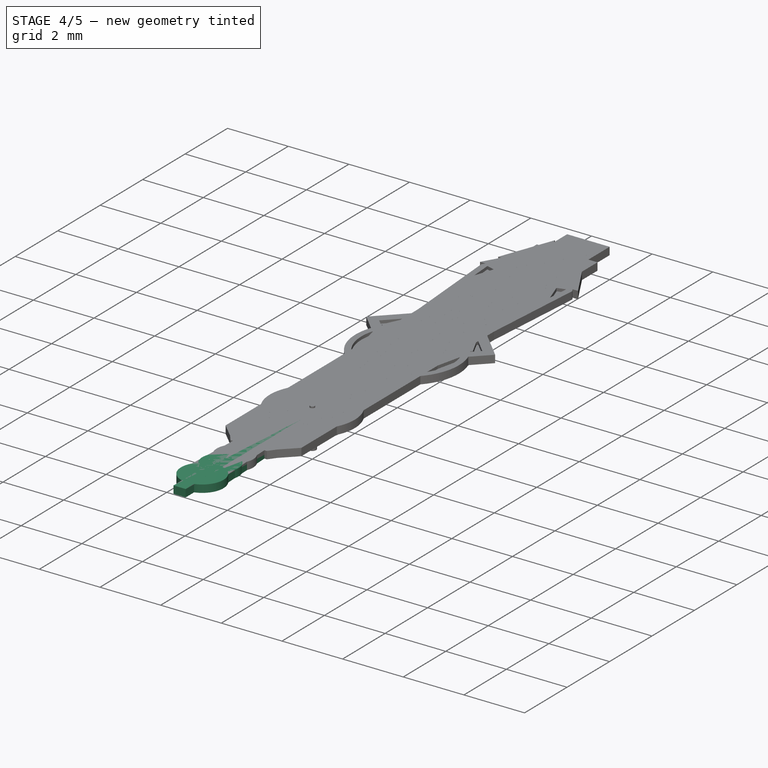
[diagram: stage 4 of 5 — iso view after this stage's code; geometry added in this stage tinted green]
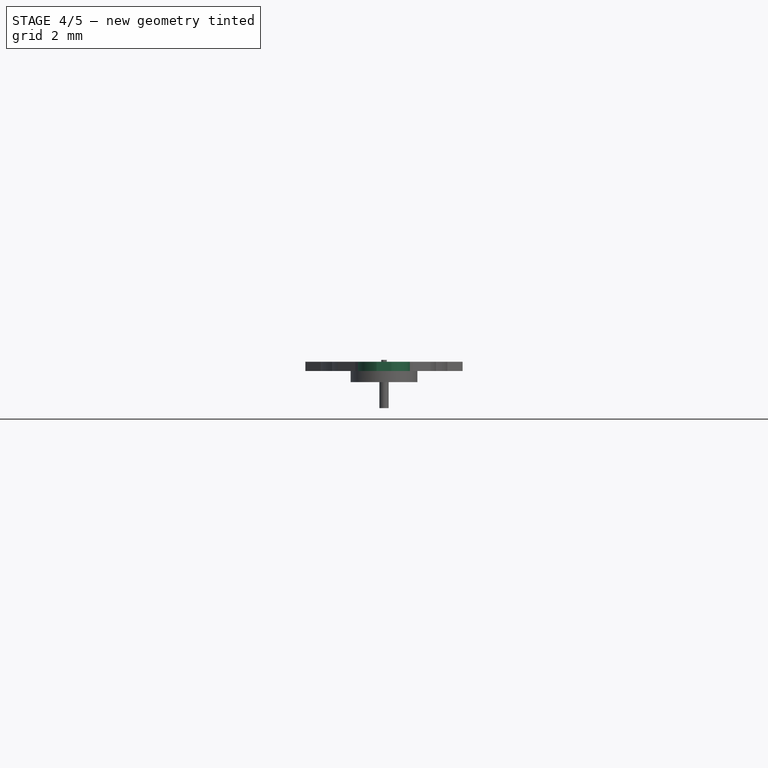
[diagram: stage 4 of 5 — front view after this stage's code; geometry added in this stage tinted green]
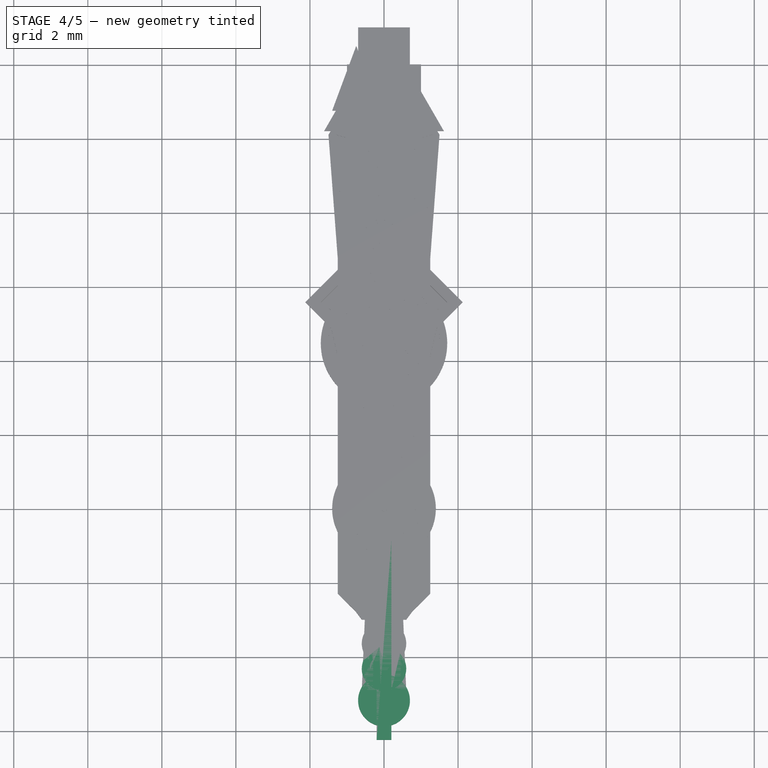
[diagram: stage 4 of 5 — top view after this stage's code; geometry added in this stage tinted green]
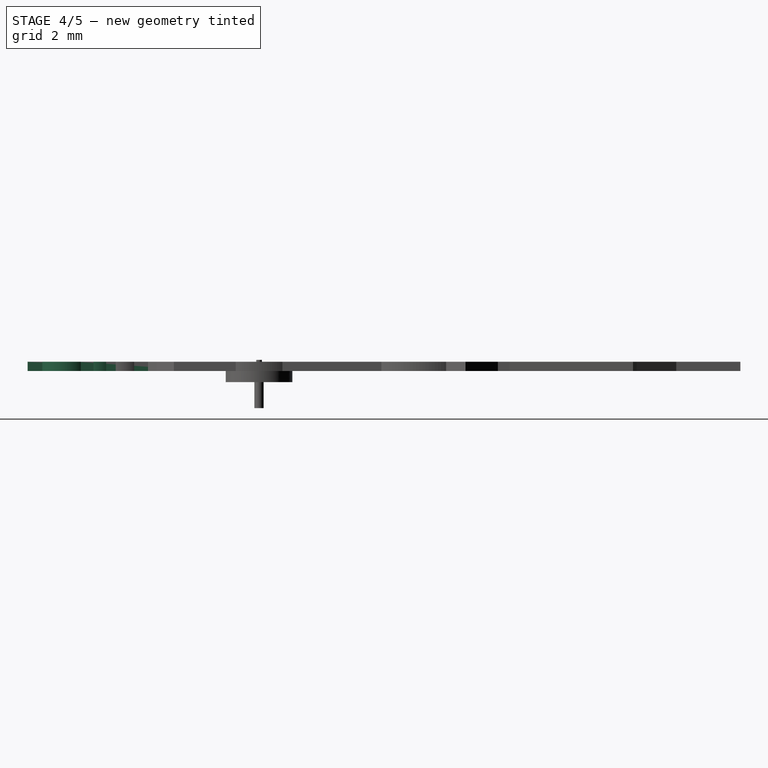
[diagram: stage 4 of 5 — right view after this stage's code; geometry added in this stage tinted green]
FEATURE [PartDesign::Body] Body013  label="Second_Hand_Joker"
  Group = -> [Sketch056,Pad022,Sketch054,Pocket014,Sketch053,Pad020,Sketch055,Pad021]
  Origin = -> Origin013
  Placement = pos=(0,0,0) rot=(0,0,1;3.14159rad)
  Tip = -> Pad021
FEATURE [Image::ImagePlane] ImagePlane003
  Placement = pos=(-0.3014,-2.78553,0) rot=(0,0,1;5.5676rad)
  XSize = 21.8307
  YSize = 16.4153
FEATURE [Sketcher::SketchObject] Sketch058
  AttachmentOffset = pos=(0,0,0.2) rot=(0,0,1;0rad)
  MapMode = 5
  Placement = pos=(0,0,0.2) rot=(0,0,1;0rad)
  Support = -> [XY_Plane014]
  sketch-geometry (1):
    g0: Circle CenterX=0 CenterY=0 CenterZ=0 NormalX=0 NormalY=0 NormalZ=1 AngleXU=0 Radius=0.075
  constraints (2):
    c: Coincident(g0,g-1)
    c: Diameter(g0) = 0.15
FEATURE [Sketcher::SketchObject] Sketch059
  MapMode = 5
  Placement = pos=(0,0,0) rot=(0,1,0;3.14159rad)
  Support = -> [XY_Plane014]
  sketch-geometry (2):
    g0: Circle CenterX=0 CenterY=0 CenterZ=0 NormalX=0 NormalY=0 NormalZ=1 AngleXU=0 Radius=0.085
    g1: Circle CenterX=0 CenterY=0 CenterZ=0 NormalX=0 NormalY=0 NormalZ=1 AngleXU=0 Radius=0.125
  constraints (4):
    c: Coincident(g0,g-1)
    c: Coincident(g1,g0)
    c: Diameter(g0) = 0.17
    c: Diameter(g1) = 0.25
FEATURE [Sketcher::SketchObject] Sketch060
  MapMode = 5
  Support = -> [XY_Plane014]
  sketch-geometry (12):
    g0: ArcOfCircle CenterX=0 CenterY=0 CenterZ=0 NormalX=0 NormalY=0 NormalZ=1 AngleXU=0 Radius=0.75 StartAngle=4.87984 EndAngle=7.72025
    g1: LineSegment StartX=0.1 StartY=13 StartZ=0 EndX=0.1 EndY=7.79373 EndZ=0
    g2: ArcOfCircle CenterX=0 CenterY=0 CenterZ=0 NormalX=0 NormalY=0 NormalZ=1 AngleXU=0 Radius=0.75 StartAngle=1.70453 EndAngle=4.54494
    g3: LineSegment StartX=-0.125 StartY=-3.73951 StartZ=0 EndX=-0.125 EndY=-0.73951 EndZ=0
    g4: LineSegment StartX=0.125 StartY=-3.73951 StartZ=0 EndX=0.125 EndY=-0.73951 EndZ=0
    g5: LineSegment StartX=-0.1 StartY=13 StartZ=0 EndX=-0.1 EndY=7.79373 EndZ=0
    g6: LineSegment StartX=-0.1 StartY=13 StartZ=0 EndX=0.1 EndY=13 EndZ=0
    g7: ArcOfCircle CenterX=-8e-16 CenterY=-4.32634 CenterZ=0 NormalX=0 NormalY=0 NormalZ=1 AngleXU=0 Radius=0.6 StartAngle=1.78067 EndAngle=7.64411
    g8: ArcOfCircle CenterX=0 CenterY=7 CenterZ=0 NormalX=0 NormalY=0 NormalZ=1 AngleXU=0 Radius=0.8 StartAngle=1.69612 EndAngle=4.58706
    g9: LineSegment StartX=0.1 StartY=6.20627 StartZ=0 EndX=0.1 EndY=0.743303 EndZ=0
    g10: LineSegment StartX=-0.1 StartY=6.20627 StartZ=0 EndX=-0.1 EndY=0.743303 EndZ=0
    g11: ArcOfCircle CenterX=0 CenterY=7 CenterZ=0 NormalX=0 NormalY=0 NormalZ=1 AngleXU=0 Radius=0.8 StartAngle=4.83772 EndAngle=7.72865
  constraints (33):
    c: Coincident(g0,g-1)
    c: Coincident(g0,g9)
    c: Coincident(g0,g2)
    c: Symmetric(g2,g0,g-2)
    c: DistanceX(g2,g0) = 0.2
    c: Coincident(g3,g2)
    c: Coincident(g4,g0)
    c: Symmetric(g3,g4,g-2)
    c: Coincident(g10,g2)
    c: Symmetric(g1,g5,g-2)
    c: DistanceX(g2,g0) = 0.25
    c: Coincident(g6,g5)
    c: Coincident(g6,g1)
    c: DistanceX(g6,g6) = 0.2
    c: DistanceY(g1) = 13
    c: DistanceX(g3,g4) = 0.25
    c: Coincident(g7,g3)
    c: Coincident(g7,g4)
    c: DistanceY(g4,g4) = 3
    c: Radius(g7) = 0.6
    c: PointOnObject(g8,g-2)
    c: Tangent(g1,g9)
    c: Tangent(g5,g10)
    c: Coincident(g8,g5)
    c: Coincident(g11,g1)
    c: Equal(g8,g11)
    c: Coincident(g8,g10)
    c: Coincident(g11,g9)
    c: Coincident(g8,g11)
    c: Symmetric(g2,g0,g-2)
    c: DistanceY(g8) = 7
    c: Radius(g11) = 0.8
    c: Radius(g2) = 0.75
FEATURE [PartDesign::Pad] Pad025
  AllowMultiFace = false
  Length = 0.25
  Length2 = 100
  Profile = -> Sketch060
  Type = 0
FEATURE [PartDesign::Body] Body014  label="Second_Hand_Mercedes"
  Group = -> [Sketch060,Pad025,Sketch057,Pocket015,Sketch058,Pad024,Sketch059,Pad023]
  Origin = -> Origin014
  Placement = pos=(0,0,0) rot=(0,0,1;3.14159rad)
  Tip = -> Pad023
FEATURE [Image::ImagePlane] ImagePlane004
  Placement = pos=(0.34064,-3.74219,0) rot=(0,0,-1;5.09636rad)
  XSize = 19.5222
  YSize = 14.6795
FEATURE [Sketcher::SketchObject] Sketch062
  AttachmentOffset = pos=(0,0,0.2) rot=(0,0,1;0rad)
  MapMode = 5
  Placement = pos=(0,0,0.2) rot=(0,0,1;0rad)
  Support = -> [XY_Plane015]
  sketch-geometry (1):
    g0: Circle CenterX=0 CenterY=0 CenterZ=0 NormalX=0 NormalY=0 NormalZ=1 AngleXU=0 Radius=0.075
  constraints (2):
    c: Coincident(g0,g-1)
    c: Diameter(g0) = 0.15
FEATURE [Sketcher::SketchObject] Sketch063
  MapMode = 5
  Support = -> [XY_Plane015]
  sketch-geometry (19):
    g0: LineSegment StartX=-0.9 StartY=8.85 StartZ=0 EndX=-0.2 EndY=9.9 EndZ=0
    g1: LineSegment StartX=-0.2 StartY=9.9 StartZ=0 EndX=-0.2 EndY=13 EndZ=0
    g2: LineSegment StartX=-0.2 StartY=13 StartZ=0 EndX=0.2 EndY=13 EndZ=0
    g3: LineSegment StartX=0.2 StartY=13 StartZ=0 EndX=0.2 EndY=9.9 EndZ=0
    g4: LineSegment StartX=0.2 StartY=9.9 StartZ=0 EndX=0.9 EndY=8.85 EndZ=0
    g5: LineSegment StartX=0.9 StartY=8.85 StartZ=0 EndX=0.6 EndY=6.6 EndZ=0
    g6: LineSegment StartX=0.6 StartY=6.6 StartZ=0 EndX=0.2 EndY=6.42614 EndZ=0
    g7: LineSegment StartX=0.2 StartY=6.42614 StartZ=0 EndX=0.2 EndY=0.826136 EndZ=0
    g8: LineSegment StartX=-0.2 StartY=0.826136 StartZ=0 EndX=-0.2 EndY=6.42614 EndZ=0
    g9: LineSegment StartX=-0.2 StartY=6.42614 StartZ=0 EndX=-0.6 EndY=6.6 EndZ=0
    g10: LineSegment StartX=-0.6 StartY=6.6 StartZ=0 EndX=-0.9 EndY=8.85 EndZ=0
    g11: ArcOfCircle CenterX=0 CenterY=0 CenterZ=0 NormalX=0 NormalY=0 NormalZ=1 AngleXU=0 Radius=0.85 StartAngle=1.80832 EndAngle=4.15463
    g12: LineSegment StartX=0 StartY=-5.4 StartZ=0 EndX=-0.6 EndY=-4.9 EndZ=0
    g13: LineSegment StartX=-0.6 StartY=-4.9 StartZ=0 EndX=-0.45 EndY=-1.4 EndZ=0
    g14: LineSegment StartX=0 StartY=-5.4 StartZ=0 EndX=0.6 EndY=-4.9 EndZ=0
    g15: LineSegment StartX=0.6 StartY=-4.9 StartZ=0 EndX=0.45 EndY=-1.4 EndZ=0
    g16: ArcOfCircle CenterX=0.661606 CenterY=-1.06056 CenterZ=0 NormalX=0 NormalY=0 NormalZ=1 AngleXU=0 Radius=0.4 StartAngle=2.12855 EndAngle=4.15495
    g17: ArcOfCircle CenterX=-0.661606 CenterY=-1.06056 CenterZ=0 NormalX=0 NormalY=0 NormalZ=1 AngleXU=0 Radius=0.4 StartAngle=5.26983 EndAngle=7.29622
    g18: ArcOfCircle CenterX=0 CenterY=0 CenterZ=0 NormalX=0 NormalY=0 NormalZ=1 AngleXU=0 Radius=0.85 StartAngle=5.27015 EndAngle=7.61646
  constraints (49):
    c: Coincident(g0,g1)
    c: Vertical(g1)
    c: Coincident(g1,g2)
    c: Coincident(g2,g3)
    c: Coincident(g3,g4)
    c: Coincident(g4,g5)
    c: Coincident(g5,g6)
    c: Coincident(g6,g7)
    c: Vertical(g7)
    c: Coincident(g8,g9)
    c: Coincident(g9,g10)
    c: Coincident(g10,g0)
    c: DistanceY(g2) = 13
    c: Symmetric(g1,g2,g-2)
    c: Symmetric(g3,g0,g-2)
    c: Symmetric(g0,g4,g-2)
    c: Symmetric(g9,g5,g-2)
    c: Symmetric(g8,g6,g-2)
    c: DistanceX(g1,g2) = 0.4
    c: DistanceY(g1,g1) = 3.1
    c: DistanceY(g5,g3) = 3.3
    c: DistanceY(g5,g4) = 2.25
    c: DistanceX(g9,g5) = 1.2
    c: DistanceY(g8,g8) = 5.6
    c: Coincident(g11,g-1)
    c: Radius(g11) = 0.85
    c: DistanceX(g0,g4) = 1.8
    c: DistanceX(g8,g6) = 0.4
    c: Coincident(g18,g7)
    c: Coincident(g11,g8)
    c: Vertical(g8)
    c: PointOnObject(g12,g-2)
    c: Coincident(g12,g13)
    c: Coincident(g12,g14)
    c: Coincident(g14,g15)
    c: Coincident(g16,g15)
    c: Coincident(g17,g13)
    c: Coincident(g11,g18)
    c: Symmetric(g13,g15,g-2)
    c: Symmetric(g11,g16,g-2)
    c: DistanceX(g13,g15) = 0.9
    c: DistanceY(g15) = -1.4
    c: Tangent(g11,g17) = 1.5708
    c: Tangent(g16,g18) = 1.5708
    c: Symmetric(g12,g14,g-2)
    c: DistanceY(g12) = -5.4
    c: DistanceX(g12,g14) = 1.2
    c: DistanceY(g12,g14) = 0.5
    c: Radius(g16) = 0.4
FEATURE [PartDesign::Pad] Pad028
  AllowMultiFace = false
  Length = 0.25
  Length2 = 100
  Profile = -> Sketch063
  Type = 0
FEATURE [Sketcher::SketchObject] Sketch061
  MapMode = 5
  Placement = pos=(0,0,0.25) rot=(0,0,1;0rad)
  Support = -> [Pad028]
  sketch-geometry (10):
    g0: LineSegment StartX=-0.611856 StartY=8.93274 StartZ=0 EndX=0 EndY=9.5407 EndZ=0
    g1: LineSegment StartX=0 StartY=9.5407 StartZ=0 EndX=0.611856 EndY=8.93274 EndZ=0
    g2: LineSegment StartX=0.611856 StartY=8.93274 StartZ=0 EndX=0.453473 EndY=7.81384 EndZ=0
    g3: LineSegment StartX=0.453473 StartY=7.81384 StartZ=0 EndX=-0.453473 EndY=7.81384 EndZ=0
    g4: LineSegment StartX=-0.453473 StartY=7.81384 StartZ=0 EndX=-0.611856 EndY=8.93274 EndZ=0
    g5: LineSegment StartX=-0.417336 StartY=7.55855 StartZ=0 EndX=0.417336 EndY=7.55855 EndZ=0
    g6: LineSegment StartX=0.417336 StartY=7.55855 StartZ=0 EndX=0.30611 EndY=6.7728 EndZ=0
    g7: LineSegment StartX=0.30611 StartY=6.7728 StartZ=0 EndX=-0.30611 EndY=6.7728 EndZ=0
    g8: LineSegment StartX=-0.30611 StartY=6.7728 StartZ=0 EndX=-0.417336 EndY=7.55855 EndZ=0
    g9: LineSegment [constr] StartX=0.453473 StartY=7.81384 StartZ=0 EndX=0.417336 EndY=7.55855 EndZ=0
  constraints (18):
    c: PointOnObject(g0,g-2)
    c: Coincident(g0,g1)
    c: Coincident(g1,g2)
    c: Coincident(g2,g3)
    c: Coincident(g3,g4)
    c: Coincident(g4,g0)
    c: Coincident(g5,g6)
    c: Coincident(g6,g7)
    c: Coincident(g7,g8)
    c: Coincident(g8,g5)
    c: Symmetric(g7,g6,g-2)
    c: Symmetric(g5,g5,g-2)
    c: Symmetric(g3,g2,g-2)
    c: Symmetric(g0,g1,g-2)
    c: Coincident(g9,g2)
    c: Coincident(g9,g5)
    c: Parallel(g9,g2)
    c: Parallel(g6,g9)
FEATURE [PartDesign::Pocket] Pocket016
  AllowMultiFace = false
  BaseFeature = -> Pad028
  Length = 0.1
  Length2 = 100
  Profile = -> Sketch061
  Type = 0
FEATURE [PartDesign::Pad] Pad026
  AllowMultiFace = false
  BaseFeature = -> Pocket016
  Length = 0.1
  Length2 = 100
  Profile = -> Sketch062
  Type = 0
FEATURE [Sketcher::SketchObject] Sketch064
  MapMode = 5
  Placement = pos=(0,0,0) rot=(0,1,0;3.14159rad)
  Support = -> [XY_Plane015]
  sketch-geometry (2):
    g0: Circle CenterX=0 CenterY=0 CenterZ=0 NormalX=0 NormalY=0 NormalZ=1 AngleXU=0 Radius=0.085
    g1: Circle CenterX=0 CenterY=0 CenterZ=0 NormalX=0 NormalY=0 NormalZ=1 AngleXU=0 Radius=0.125
  constraints (4):
    c: Coincident(g0,g-1)
    c: Coincident(g1,g0)
    c: Diameter(g0) = 0.17
    c: Diameter(g1) = 0.25
FEATURE [PartDesign::Pad] Pad027
  AllowMultiFace = false
  BaseFeature = -> Pad026
  Length = 1
  Length2 = 100
  Profile = -> Sketch064
  Type = 0
FEATURE [PartDesign::Body] Body015  label="Second_Hand_MM"
  Group = -> [Sketch063,Pad028,Sketch061,Pocket016,Sketch062,Pad026,Sketch064,Pad027]
  Origin = -> Origin015
  Placement = pos=(0,0,0) rot=(0,0,1;3.14159rad)
  Tip = -> Pad027
FEATURE [Image::ImagePlane] ImagePlane005
  Placement = pos=(-6.49051,-3.17152,0) rot=(0,0,-1;3.78736rad)
  XSize = 25.7954
  YSize = 25.7954
FEATURE [Sketcher::SketchObject] Sketch065
  MapMode = 5
  Placement = pos=(0,0,0) rot=(0,1,0;3.14159rad)
  Support = -> [XY_Plane016]
  sketch-geometry (2):
    g0: Circle CenterX=0 CenterY=0 CenterZ=0 NormalX=0 NormalY=0 NormalZ=1 AngleXU=0 Radius=0.085
    g1: Circle CenterX=0 CenterY=0 CenterZ=0 NormalX=0 NormalY=0 NormalZ=1 AngleXU=0 Radius=0.125
  constraints (4):
    c: Coincident(g0,g-1)
    c: Coincident(g1,g0)
    c: Diameter(g0) = 0.17
    c: Diameter(g1) = 0.25
FEATURE [Sketcher::SketchObject] Sketch066
  MapMode = 5
  Support = -> [XY_Plane016]
  sketch-geometry (14):
    g0: LineSegment StartX=-0.65 StartY=7.6 StartZ=0 EndX=-0.15 EndY=10 EndZ=0
    g1: LineSegment StartX=-0.15 StartY=10 StartZ=0 EndX=-0.15 EndY=13 EndZ=0
    g2: LineSegment StartX=-0.15 StartY=13 StartZ=0 EndX=0.15 EndY=13 EndZ=0
    g3: LineSegment StartX=0.15 StartY=13 StartZ=0 EndX=0.15 EndY=10 EndZ=0
    g4: LineSegment StartX=0.15 StartY=10 StartZ=0 EndX=0.65 EndY=7.6 EndZ=0
    g5: LineSegment StartX=0.65 StartY=7.6 StartZ=0 EndX=0.2 EndY=7.6 EndZ=0
    g6: LineSegment StartX=0.2 StartY=7.6 StartZ=0 EndX=0.2 EndY=0.826136 EndZ=0
    g7: LineSegment StartX=-0.2 StartY=0.826136 StartZ=0 EndX=-0.2 EndY=7.6 EndZ=0
    g8: LineSegment StartX=-0.2 StartY=7.6 StartZ=0 EndX=-0.65 EndY=7.6 EndZ=0
    g9: ArcOfCircle CenterX=0 CenterY=0 CenterZ=0 NormalX=0 NormalY=0 NormalZ=1 AngleXU=0 Radius=0.85 StartAngle=1.80832 EndAngle=4.53499
    g10: LineSegment StartX=-0.15 StartY=-4.5 StartZ=0 EndX=-0.15 EndY=-0.83666 EndZ=0
    g11: LineSegment StartX=0.15 StartY=-4.5 StartZ=0 EndX=0.15 EndY=-0.83666 EndZ=0
    g12: ArcOfCircle CenterX=0 CenterY=0 CenterZ=0 NormalX=0 NormalY=0 NormalZ=1 AngleXU=0 Radius=0.85 StartAngle=4.88979 EndAngle=7.61646
    g13: ArcOfCircle CenterX=1.7e-15 CenterY=-5.18374 CenterZ=0 NormalX=0 NormalY=0 NormalZ=1 AngleXU=0 Radius=0.7 StartAngle=1.78676 EndAngle=7.63802
  constraints (37):
    c: Coincident(g0,g1)
    c: Vertical(g1)
    c: Coincident(g1,g2)
    c: Coincident(g2,g3)
    c: Coincident(g3,g4)
    c: Coincident(g5,g6)
    c: Vertical(g6)
    c: Coincident(g7,g8)
    c: DistanceY(g2) = 13
    c: Symmetric(g1,g2,g-2)
    c: Symmetric(g3,g0,g-2)
    c: Symmetric(g0,g4,g-2)
    c: Symmetric(g8,g5,g-2)
    c: Symmetric(g7,g5,g-2)
    c: DistanceX(g1,g2) = 0.3
    c: DistanceY(g1,g1) = 3
    c: DistanceX(g8,g5) = 1.3
    c: Coincident(g9,g-1)
    c: Radius(g9) = 0.85
    c: DistanceX(g7,g5) = 0.4
    c: Coincident(g12,g6)
    c: Coincident(g9,g7)
    c: Vertical(g7)
    c: Coincident(g9,g12)
    c: Symmetric(g10,g11,g-2)
    c: Symmetric(g10,g11,g-2)
    c: Horizontal(g8)
    c: Coincident(g0,g8)
    c: DistanceY(g4,g3) = 2.4
    c: Coincident(g10,g9)
    c: Coincident(g12,g11)
    c: DistanceX(g9,g11) = 0.3
    c: DistanceX(g10,g11) = 0.3
    c: Coincident(g13,g10)
    c: Coincident(g13,g11)
    c: Radius(g13) = 0.7
    c: DistanceY(g11) = -4.5
FEATURE [PartDesign::Pad] Pad031
  AllowMultiFace = false
  Length = 0.25
  Length2 = 100
  Profile = -> Sketch066
  Type = 0
FEATURE [Sketcher::SketchObject] Sketch067
  ExternalGeometry = -> [Pad031]
  MapMode = 5
  Placement = pos=(0,0,0.25) rot=(0,0,1;0rad)
  Support = -> [Pad031]
  sketch-geometry (5):
    g0: LineSegment StartX=0 StartY=9.49423 StartZ=0 EndX=-0.342549 EndY=7.85 EndZ=0
    g1: LineSegment StartX=-0.342549 StartY=7.85 StartZ=0 EndX=0.342549 EndY=7.85 EndZ=0
    g2: LineSegment StartX=0.342549 StartY=7.85 StartZ=0 EndX=0 EndY=9.49423 EndZ=0
    g3: LineSegment [constr] StartX=0.342549 StartY=7.85 StartZ=0 EndX=0.342549 EndY=7.6 EndZ=0
    g4: LineSegment [constr] StartX=0 StartY=9.49423 StartZ=0 EndX=0.244745 EndY=9.54522 EndZ=0
  constraints (14):
    c: PointOnObject(g0,g-2)
    c: Coincident(g0,g1)
    c: Coincident(g1,g2)
    c: Coincident(g2,g0)
    c: Symmetric(g0,g1,g-2)
    c: Parallel(g-3,g2)
    c: Coincident(g3,g1)
    c: PointOnObject(g3,g-4)
    c: Coincident(g4,g0)
    c: PointOnObject(g4,g-3)
    c: Perpendicular(g-3,g4)
    c: Perpendicular(g3,g-4)
    c: Equal(g3,g4)
    c: DistanceY(g3,g3) = 0.25
FEATURE [PartDesign::Pocket] Pocket017
  AllowMultiFace = false
  BaseFeature = -> Pad031
  Length = 0.1
  Length2 = 100
  Profile = -> Sketch067
  Type = 0
FEATURE [Sketcher::SketchObject] Sketch068
  AttachmentOffset = pos=(0,0,0.2) rot=(0,0,1;0rad)
  MapMode = 5
  Placement = pos=(0,0,0.2) rot=(0,0,1;0rad)
  Support = -> [XY_Plane016]
  sketch-geometry (1):
    g0: Circle CenterX=0 CenterY=0 CenterZ=0 NormalX=0 NormalY=0 NormalZ=1 AngleXU=0 Radius=0.075
  constraints (2):
    c: Coincident(g0,g-1)
    c: Diameter(g0) = 0.15
FEATURE [PartDesign::Pad] Pad029
  AllowMultiFace = false
  BaseFeature = -> Pocket017
  Length = 0.1
  Length2 = 100
  Profile = -> Sketch068
  Type = 0
FEATURE [PartDesign::Pad] Pad030
  AllowMultiFace = false
  BaseFeature = -> Pad029
  Length = 1
  Length2 = 100
  Profile = -> Sketch065
  Type = 0
FEATURE [PartDesign::Body] Body016  label="Second_Hand_Blades"
  Group = -> [Sketch066,Pad031,Sketch067,Pocket017,Sketch068,Pad029,Sketch065,Pad030]
  Origin = -> Origin016
  Placement = pos=(0,0,0) rot=(0,0,1;3.14159rad)
  Tip = -> Pad030
FEATURE [Image::ImagePlane] ImagePlane006
  Placement = pos=(-7.46287,-4.41018,0) rot=(0,0,1;2.522rad)
  XSize = 26.7596
  YSize = 26.7596
FEATURE [Sketcher::SketchObject] Sketch069
  MapMode = 5
  Placement = pos=(0,0,0) rot=(0,1,0;3.14159rad)
  Support = -> [XY_Plane017]
  sketch-geometry (2):
    g0: Circle CenterX=0 CenterY=0 CenterZ=0 NormalX=0 NormalY=0 NormalZ=1 AngleXU=0 Radius=0.085
    g1: Circle CenterX=0 CenterY=0 CenterZ=0 NormalX=0 NormalY=0 NormalZ=1 AngleXU=0 Radius=0.125
  constraints (4):
    c: Coincident(g0,g-1)
    c: Coincident(g1,g0)
    c: Diameter(g0) = 0.17
    c: Diameter(g1) = 0.25
FEATURE [Sketcher::SketchObject] Sketch071
  MapMode = 5
  Support = -> [XY_Plane017]
  sketch-geometry (14):
    g0: LineSegment StartX=-1.125 StartY=8.025 StartZ=0 EndX=-0.15 EndY=9 EndZ=0
    g1: LineSegment StartX=-0.15 StartY=9 StartZ=0 EndX=-0.15 EndY=12 EndZ=0
    g2: LineSegment StartX=-0.15 StartY=12 StartZ=0 EndX=0.15 EndY=12 EndZ=0
    g3: LineSegment StartX=0.15 StartY=12 StartZ=0 EndX=0.15 EndY=9 EndZ=0
    g4: LineSegment StartX=0.15 StartY=9 StartZ=0 EndX=1.125 EndY=8.025 EndZ=0
    g5: LineSegment StartX=1.125 StartY=8.025 StartZ=0 EndX=0.2 EndY=7.1 EndZ=0
    g6: LineSegment StartX=0.2 StartY=7.1 StartZ=0 EndX=0.2 EndY=0.67082 EndZ=0
    g7: LineSegment StartX=-0.2 StartY=0.67082 StartZ=0 EndX=-0.2 EndY=7.1 EndZ=0
    g8: LineSegment StartX=-0.2 StartY=7.1 StartZ=0 EndX=-1.125 EndY=8.025 EndZ=0
    g9: ArcOfCircle CenterX=0 CenterY=0 CenterZ=0 NormalX=0 NormalY=0 NormalZ=1 AngleXU=0 Radius=0.7 StartAngle=1.86055 EndAngle=4.34718
    g10: LineSegment StartX=-0.25 StartY=-3 StartZ=0 EndX=-0.25 EndY=-0.653835 EndZ=0
    g11: LineSegment StartX=0.25 StartY=-3 StartZ=0 EndX=0.25 EndY=-0.653835 EndZ=0
    g12: ArcOfCircle CenterX=0 CenterY=0 CenterZ=0 NormalX=0 NormalY=0 NormalZ=1 AngleXU=0 Radius=0.7 StartAngle=5.0776 EndAngle=7.56423
    g13: LineSegment StartX=-0.25 StartY=-3 StartZ=0 EndX=0.25 EndY=-3 EndZ=0
  constraints (36):
    c: Coincident(g0,g1)
    c: Vertical(g1)
    c: Coincident(g1,g2)
    c: Coincident(g2,g3)
    c: Coincident(g3,g4)
    c: Coincident(g5,g6)
    c: Vertical(g6)
    c: Coincident(g7,g8)
    c: DistanceY(g2) = 12
    c: Symmetric(g1,g2,g-2)
    c: Symmetric(g3,g0,g-2)
    c: Symmetric(g0,g4,g-2)
    c: Symmetric(g8,g5,g-2)
    c: Symmetric(g7,g5,g-2)
    c: DistanceX(g1,g2) = 0.3
    c: DistanceY(g1,g1) = 3
    c: Coincident(g9,g-1)
    c: Radius(g9) = 0.7
    c: DistanceX(g7,g5) = 0.4
    c: Coincident(g12,g6)
    c: Coincident(g9,g7)
    c: Vertical(g7)
    c: Coincident(g9,g12)
    c: Symmetric(g10,g11,g-2)
    c: Symmetric(g10,g11,g-2)
    c: Coincident(g0,g8)
    c: Coincident(g10,g9)
    c: Coincident(g12,g11)
    c: DistanceX(g9,g11) = 0.5
    c: DistanceX(g10,g11) = 0.5
    c: DistanceY(g11) = -3
    c: Coincident(g13,g10)
    c: Coincident(g13,g11)
    c: Perpendicular(g0,g8)
    c: Angle(g6,g5) = 2.35619
    c: DistanceX(g0,g4) = 2.25
FEATURE [PartDesign::Pad] Pad034
  AllowMultiFace = false
  Length = 0.25
  Length2 = 100
  Profile = -> Sketch071
  Type = 0
FEATURE [Sketcher::SketchObject] Sketch070
  ExternalGeometry = -> [Pad034]
  MapMode = 5
  Placement = pos=(0,0,0.25) rot=(0,0,1;0rad)
  Support = -> [Pad034]
  sketch-geometry (6):
    g0: LineSegment StartX=0 StartY=8.85 StartZ=0 EndX=-0.825 EndY=8.025 EndZ=0
    g1: LineSegment StartX=0.825 StartY=8.025 StartZ=0 EndX=0 EndY=8.85 EndZ=0
    g2: LineSegment [constr] StartX=0.825 StartY=8.025 StartZ=0 EndX=0.975 EndY=7.875 EndZ=0
    g3: LineSegment [constr] StartX=0 StartY=8.85 StartZ=0 EndX=0.15 EndY=9 EndZ=0
    g4: LineSegment StartX=-0.825 StartY=8.025 StartZ=0 EndX=0 EndY=7.2 EndZ=0
    g5: LineSegment StartX=0 StartY=7.2 StartZ=0 EndX=0.825 EndY=8.025 EndZ=0
  constraints (17):
    c: PointOnObject(g0,g-2)
    c: Coincident(g1,g0)
    c: Symmetric(g0,g1,g-2)
    c: Parallel(g-3,g1)
    c: PointOnObject(g2,g-4)
    c: Coincident(g3,g0)
    c: PointOnObject(g3,g-3)
    c: Perpendicular(g-3,g3)
    c: Perpendicular(g2,g-4)
    c: Equal(g2,g3)
    c: DistanceY(g2,g2) = 0.15
    c: Coincident(g0,g4)
    c: PointOnObject(g4,g-2)
    c: Coincident(g4,g5)
    c: Coincident(g5,g1)
    c: Perpendicular(g5,g4)
    c: Coincident(g2,g1)
FEATURE [PartDesign::Pocket] Pocket018
  AllowMultiFace = false
  BaseFeature = -> Pad034
  Length = 0.1
  Length2 = 100
  Profile = -> Sketch070
  Type = 0
FEATURE [Sketcher::SketchObject] Sketch072
  AttachmentOffset = pos=(0,0,0.2) rot=(0,0,1;0rad)
  MapMode = 5
  Placement = pos=(0,0,0.2) rot=(0,0,1;0rad)
  Support = -> [XY_Plane017]
  sketch-geometry (1):
    g0: Circle CenterX=0 CenterY=0 CenterZ=0 NormalX=0 NormalY=0 NormalZ=1 AngleXU=0 Radius=0.075
  constraints (2):
    c: Coincident(g0,g-1)
    c: Diameter(g0) = 0.15
FEATURE [PartDesign::Pad] Pad032
  AllowMultiFace = false
  BaseFeature = -> Pocket018
  Length = 0.1
  Length2 = 100
  Profile = -> Sketch072
  Type = 0
FEATURE [PartDesign::Pad] Pad033
  AllowMultiFace = false
  BaseFeature = -> Pad032
  Length = 1
  Length2 = 100
  Profile = -> Sketch069
  Type = 0
FEATURE [PartDesign::Body] Body017  label="Second_Hand_SnowFlake"
  Group = -> [Sketch071,Pad034,Sketch070,Pocket018,Sketch072,Pad032,Sketch069,Pad033]
  Origin = -> Origin017
  Placement = pos=(0,0,0) rot=(0,0,1;3.14159rad)
  Tip = -> Pad033
FEATURE [Image::ImagePlane] ImagePlane007
  Placement = pos=(4.70669,-4.49206,0) rot=(0,0,-1;5.98648rad)
  XSize = 30.501
  YSize = 25.7653
FEATURE [Sketcher::SketchObject] Sketch073
  MapMode = 5
  Placement = pos=(0,0,0) rot=(0,1,0;3.14159rad)
  Support = -> [XY_Plane018]
  sketch-geometry (2):
    g0: Circle CenterX=0 CenterY=0 CenterZ=0 NormalX=0 NormalY=0 NormalZ=1 AngleXU=0 Radius=0.085
    g1: Circle CenterX=0 CenterY=0 CenterZ=0 NormalX=0 NormalY=0 NormalZ=1 AngleXU=0 Radius=0.125
  constraints (4):
    c: Coincident(g0,g-1)
    c: Coincident(g1,g0)
    c: Diameter(g0) = 0.17
    c: Diameter(g1) = 0.25
FEATURE [Sketcher::SketchObject] Sketch074
  MapMode = 5
  Support = -> [XY_Plane018]
  sketch-geometry (14):
    g0: LineSegment StartX=-0.65 StartY=10.5582 StartZ=0 EndX=-0.65 EndY=12.1 EndZ=0
    g1: LineSegment StartX=0.65 StartY=12.1 StartZ=0 EndX=0.65 EndY=10.5582 EndZ=0
    g2: LineSegment StartX=0.2 StartY=9.87082 StartZ=0 EndX=0.2 EndY=0.67082 EndZ=0
    g3: LineSegment StartX=-0.2 StartY=0.67082 StartZ=0 EndX=-0.2 EndY=9.87082 EndZ=0
    g4: ArcOfCircle CenterX=0 CenterY=0 CenterZ=0 NormalX=0 NormalY=0 NormalZ=1 AngleXU=0 Radius=0.7 StartAngle=1.86055 EndAngle=4.42264
    g5: LineSegment StartX=-0.25 StartY=-3.95 StartZ=0 EndX=-0.2 EndY=-0.67082 EndZ=0
    g6: LineSegment StartX=0.25 StartY=-3.95 StartZ=0 EndX=0.2 EndY=-0.67082 EndZ=0
    g7: ArcOfCircle CenterX=0 CenterY=0 CenterZ=0 NormalX=0 NormalY=0 NormalZ=1 AngleXU=0 Radius=0.7 StartAngle=5.00214 EndAngle=7.56423
    g8: LineSegment StartX=-0.25 StartY=-3.95 StartZ=0 EndX=0 EndY=-4.25 EndZ=0
    g9: LineSegment StartX=0 StartY=-4.25 StartZ=0 EndX=0.25 EndY=-3.95 EndZ=0
    g10: LineSegment StartX=-0.65 StartY=12.1 StartZ=0 EndX=0 EndY=12.5 EndZ=0
    g11: LineSegment StartX=0 StartY=12.5 StartZ=0 EndX=0.65 EndY=12.1 EndZ=0
    g12: ArcOfCircle CenterX=0.1 CenterY=10.5582 CenterZ=0 NormalX=0 NormalY=0 NormalZ=1 AngleXU=0 Radius=0.75 StartAngle=3.14159 EndAngle=4.30087
    g13: ArcOfCircle CenterX=-0.1 CenterY=10.5582 CenterZ=0 NormalX=0 NormalY=0 NormalZ=1 AngleXU=0 Radius=0.75 StartAngle=5.12391 EndAngle=6.28319
  constraints (37):
    c: Vertical(g0)
    c: Vertical(g2)
    c: Symmetric(g0,g1,g-2)
    c: Symmetric(g1,g0,g-2)
    c: Symmetric(g3,g2,g-2)
    c: Coincident(g4,g-1)
    c: Radius(g4) = 0.7
    c: DistanceX(g3,g2) = 0.4
    c: Coincident(g7,g2)
    c: Coincident(g4,g3)
    c: Vertical(g3)
    c: Coincident(g4,g7)
    c: Symmetric(g5,g6,g-2)
    c: Symmetric(g5,g6,g-2)
    c: Coincident(g5,g4)
    c: Coincident(g7,g6)
    c: DistanceX(g4,g6) = 0.4
    c: DistanceX(g5,g6) = 0.5
    c: Coincident(g5,g8)
    c: PointOnObject(g8,g-2)
    c: Coincident(g8,g9)
    c: Coincident(g9,g6)
    c: DistanceY(g8) = -4.25
    c: DistanceY(g8,g6) = 0.3
    c: Coincident(g0,g10)
    c: PointOnObject(g10,g-2)
    c: Coincident(g10,g11)
    c: Coincident(g11,g1)
    c: DistanceY(g10) = 12.5
    c: DistanceY(g0,g10) = 0.4
    c: DistanceX(g0,g1) = 1.3
    c: DistanceY(g3,g3) = 9.2
    c: Tangent(g0,g12) = 1.5708
    c: Coincident(g12,g3)
    c: Tangent(g1,g13) = 1.5708
    c: Coincident(g13,g2)
    c: Radius(g13) = 0.75
FEATURE [PartDesign::Pad] Pad036
  AllowMultiFace = false
  Length = 0.25
  Length2 = 100
  Profile = -> Sketch074
  Type = 0
FEATURE [Sketcher::SketchObject] Sketch075
  AttachmentOffset = pos=(0,0,0.2) rot=(0,0,1;0rad)
  MapMode = 5
  Placement = pos=(0,0,0.2) rot=(0,0,1;0rad)
  Support = -> [XY_Plane018]
  sketch-geometry (1):
    g0: Circle CenterX=0 CenterY=0 CenterZ=0 NormalX=0 NormalY=0 NormalZ=1 AngleXU=0 Radius=0.075
  constraints (2):
    c: Coincident(g0,g-1)
    c: Diameter(g0) = 0.15
FEATURE [Sketcher::SketchObject] Sketch076
  ExternalGeometry = -> [Pad036]
  MapMode = 5
  Placement = pos=(0,0,0.25) rot=(0,0,1;0rad)
  Support = -> [Pad036]
  sketch-geometry (6):
    g0: LineSegment StartX=-0.369556 StartY=11.9826 StartZ=0 EndX=0 EndY=12.21 EndZ=0
    g1: LineSegment StartX=0 StartY=12.21 StartZ=0 EndX=0.369556 EndY=11.9826 EndZ=0
    g2: LineSegment StartX=0.369556 StartY=11.9826 StartZ=0 EndX=0.369556 EndY=11.279 EndZ=0
    g3: LineSegment StartX=-0.369556 StartY=11.279 StartZ=0 EndX=-0.369556 EndY=11.9826 EndZ=0
    g4: Circle CenterX=0 CenterY=10.3956 CenterZ=0 NormalX=0 NormalY=0 NormalZ=1 AngleXU=0 Radius=0.369556
    g5: ArcOfCircle CenterX=0 CenterY=11.279 CenterZ=0 NormalX=0 NormalY=0 NormalZ=1 AngleXU=0 Radius=0.369556 StartAngle=3.14159 EndAngle=6.28319
  constraints (12):
    c: PointOnObject(g0,g-2)
    c: Coincident(g0,g1)
    c: Coincident(g1,g2)
    c: Coincident(g3,g0)
    c: PointOnObject(g4,g-2)
    c: Symmetric(g3,g2,g-2)
    c: Symmetric(g0,g1,g-2)
    c: Parallel(g1,g-3)
    c: Coincident(g5,g3)
    c: Tangent(g5,g2) = 1.5708
    c: Equal(g5,g4)
    c: Vertical(g3)
FEATURE [PartDesign::Pocket] Pocket019
  AllowMultiFace = false
  BaseFeature = -> Pad036
  Length = 0.1
  Length2 = 100
  Profile = -> Sketch076
  Type = 0
FEATURE [PartDesign::Pad] Pad035
  AllowMultiFace = false
  BaseFeature = -> Pocket019
  Length = 0.1
  Length2 = 100
  Profile = -> Sketch075
  Type = 0
FEATURE [PartDesign::Pad] Pad037
  AllowMultiFace = false
  BaseFeature = -> Pad035
  Length = 1
  Length2 = 100
  Profile = -> Sketch073
  Type = 0
FEATURE [PartDesign::Body] Body018  label="Second_Hand_Miyota"
  Group = -> [Sketch074,Pad036,Sketch076,Pocket019,Sketch075,Pad035,Sketch073,Pad037]
  Origin = -> Origin018
  Placement = pos=(0,0,0) rot=(0,0,1;3.14159rad)
  Tip = -> Pad037
FEATURE [Image::ImagePlane] ImagePlane008
  Placement = pos=(0.647238,-4.12752,0) rot=(0,0,-1;4.38078rad)
  XSize = 33.426
  YSize = 26.0237
FEATURE [Sketcher::SketchObject] Sketch077
  AttachmentOffset = pos=(0,0,0.2) rot=(0,0,1;0rad)
  MapMode = 5
  Placement = pos=(0,0,0.2) rot=(0,0,1;0rad)
  Support = -> [XY_Plane019]
  sketch-geometry (1):
    g0: Circle CenterX=0 CenterY=0 CenterZ=0 NormalX=0 NormalY=0 NormalZ=1 AngleXU=0 Radius=0.075
  constraints (2):
    c: Coincident(g0,g-1)
    c: Diameter(g0) = 0.15
FEATURE [Sketcher::SketchObject] Sketch079
  MapMode = 5
  Support = -> [XY_Plane019]
  sketch-geometry (9):
    g0: LineSegment StartX=-0.2 StartY=-6.25 StartZ=0 EndX=0.2 EndY=-6.25 EndZ=0
    g1: LineSegment StartX=0.2 StartY=-6.25 StartZ=0 EndX=0.2 EndY=-0.826136 EndZ=0
    g2: LineSegment StartX=-0.2 StartY=-6.25 StartZ=0 EndX=-0.2 EndY=-0.826136 EndZ=0
    g3: ArcOfCircle CenterX=0 CenterY=0 CenterZ=0 NormalX=0 NormalY=0 NormalZ=1 AngleXU=0 Radius=0.85 StartAngle=1.80832 EndAngle=4.47487
    g4: ArcOfCircle CenterX=0 CenterY=0 CenterZ=0 NormalX=0 NormalY=0 NormalZ=1 AngleXU=0 Radius=0.85 StartAngle=4.94991 EndAngle=7.61646
    g5: ArcOfCircle CenterX=-1.2e-15 CenterY=11.15 CenterZ=0 NormalX=0 NormalY=0 NormalZ=1 AngleXU=0 Radius=0.85 StartAngle=4.94991 EndAngle=10.7581
    g6: GeomPoint X=0 Y=12 Z=0
    g7: LineSegment StartX=-0.2 StartY=10.3239 StartZ=0 EndX=-0.2 EndY=0.826136 EndZ=0
    g8: LineSegment StartX=0.2 StartY=0.826136 StartZ=0 EndX=0.2 EndY=10.3239 EndZ=0
  constraints (24):
    c: Coincident(g0,g1)
    c: Coincident(g0,g2)
    c: Coincident(g3,g-1)
    c: Coincident(g3,g2)
    c: Coincident(g4,g3)
    c: Coincident(g4,g1)
    c: Symmetric(g1,g2,g-2)
    c: Symmetric(g4,g3,g-2)
    c: DistanceX(g0,g0) = 0.4
    c: DistanceX(g2,g1) = 0.4
    c: DistanceY(g0) = -6.25
    c: Radius(g4) = 0.85
    c: DistanceX(g3,g4) = 0.4
    c: Symmetric(g0,g0,g-2)
    c: Symmetric(g5,g5,g-2)
    c: PointOnObject(g6,g5)
    c: PointOnObject(g6,g-2)
    c: DistanceY(g6) = 12
    c: Coincident(g7,g5)
    c: Coincident(g7,g3)
    c: Coincident(g8,g4)
    c: Coincident(g8,g5)
    c: Radius(g5) = 0.85
    c: Vertical(g8)
FEATURE [PartDesign::Pad] Pad038
  AllowMultiFace = false
  Length = 0.25
  Length2 = 100
  Profile = -> Sketch079
  Type = 0
FEATURE [Sketcher::SketchObject] Sketch078
  ExternalGeometry = -> [Pad038]
  MapMode = 5
  Placement = pos=(0,0,0.25) rot=(0,0,1;0rad)
  Support = -> [Pad038]
  sketch-geometry (1):
    g0: Circle CenterX=-1.2e-15 CenterY=11.15 CenterZ=0 NormalX=0 NormalY=0 NormalZ=1 AngleXU=0 Radius=0.704722
  constraints (1):
    c: Coincident(g0,g-3)
FEATURE [PartDesign::Pocket] Pocket020
  AllowMultiFace = false
  BaseFeature = -> Pad038
  Length = 0.1
  Length2 = 100
  Profile = -> Sketch078
  Type = 0
FEATURE [PartDesign::Pad] Pad039
  AllowMultiFace = false
  BaseFeature = -> Pocket020
  Length = 0.1
  Length2 = 100
  Profile = -> Sketch077
  Type = 0
FEATURE [Sketcher::SketchObject] Sketch080
  MapMode = 5
  Placement = pos=(0,0,0) rot=(0,1,0;3.14159rad)
  Support = -> [XY_Plane019]
  sketch-geometry (2):
    g0: Circle CenterX=0 CenterY=0 CenterZ=0 NormalX=0 NormalY=0 NormalZ=1 AngleXU=0 Radius=0.085
    g1: Circle CenterX=0 CenterY=0 CenterZ=0 NormalX=0 NormalY=0 NormalZ=1 AngleXU=0 Radius=0.125
  constraints (4):
    c: Coincident(g0,g-1)
    c: Coincident(g1,g0)
    c: Diameter(g0) = 0.17
    c: Diameter(g1) = 0.25
FEATURE [PartDesign::Pad] Pad040
  AllowMultiFace = false
  BaseFeature = -> Pad039
  Length = 1
  Length2 = 100
  Profile = -> Sketch080
  Type = 0
FEATURE [PartDesign::Body] Body019  label="Second_Hand_Lolipop"
  Group = -> [Sketch079,Pad038,Sketch078,Pocket020,Sketch077,Pad039,Sketch080,Pad040]
  Origin = -> Origin019
  Placement = pos=(0,0,0) rot=(0,0,1;3.14159rad)
  Tip = -> Pad040
FEATURE [Image::ImagePlane] ImagePlane009
  Placement = pos=(0.517787,-2.61188,0) rot=(0,0,-1;3.93572rad)
  XSize = 34.4189
  YSize = 28.1927
FEATURE [Sketcher::SketchObject] Sketch081
  MapMode = 5
  Placement = pos=(0,0,0) rot=(0,1,0;3.14159rad)
  Support = -> [XY_Plane020]
  sketch-geometry (2):
    g0: Circle CenterX=0 CenterY=0 CenterZ=0 NormalX=0 NormalY=0 NormalZ=1 AngleXU=0 Radius=0.085
    g1: Circle CenterX=0 CenterY=0 CenterZ=0 NormalX=0 NormalY=0 NormalZ=1 AngleXU=0 Radius=0.125
  constraints (4):
    c: Coincident(g0,g-1)
    c: Coincident(g1,g0)
    c: Diameter(g0) = 0.17
    c: Diameter(g1) = 0.25
FEATURE [Sketcher::SketchObject] Sketch083
  MapMode = 5
  Support = -> [XY_Plane020]
  sketch-geometry (15):
    g0: LineSegment StartX=-0.65 StartY=9.75 StartZ=0 EndX=-0.1 EndY=11.5 EndZ=0
    g1: LineSegment StartX=-0.1 StartY=11.5 StartZ=0 EndX=-0.1 EndY=12.5 EndZ=0
    g2: LineSegment StartX=-0.1 StartY=12.5 StartZ=0 EndX=0.1 EndY=12.5 EndZ=0
    g3: LineSegment StartX=0.1 StartY=12.5 StartZ=0 EndX=0.1 EndY=11.5 EndZ=0
    g4: LineSegment StartX=0.1 StartY=11.5 StartZ=0 EndX=0.65 EndY=9.75 EndZ=0
    g5: LineSegment StartX=0.1 StartY=9 StartZ=0 EndX=0.1 EndY=0.69282 EndZ=0
    g6: LineSegment StartX=-0.1 StartY=0.69282 StartZ=0 EndX=-0.1 EndY=9 EndZ=0
    g7: ArcOfCircle CenterX=0 CenterY=0 CenterZ=0 NormalX=0 NormalY=0 NormalZ=1 AngleXU=0 Radius=0.7 StartAngle=1.71414 EndAngle=4.49643
    g8: LineSegment StartX=-0.375 StartY=-3.9 StartZ=0 EndX=-0.15 EndY=-0.68374 EndZ=0
    g9: LineSegment StartX=0.375 StartY=-3.9 StartZ=0 EndX=0.15 EndY=-0.68374 EndZ=0
    g10: ArcOfCircle CenterX=0 CenterY=0 CenterZ=0 NormalX=0 NormalY=0 NormalZ=1 AngleXU=0 Radius=0.7 StartAngle=4.92835 EndAngle=7.71063
    g11: LineSegment StartX=-0.375 StartY=-3.9 StartZ=0 EndX=0 EndY=-4.5 EndZ=0
    g12: LineSegment StartX=0 StartY=-4.5 StartZ=0 EndX=0.375 EndY=-3.9 EndZ=0
    g13: LineSegment StartX=-0.65 StartY=9.75 StartZ=0 EndX=-0.1 EndY=9 EndZ=0
    g14: LineSegment StartX=0.1 StartY=9 StartZ=0 EndX=0.65 EndY=9.75 EndZ=0
  constraints (39):
    c: Coincident(g0,g1)
    c: Vertical(g1)
    c: Coincident(g1,g2)
    c: Coincident(g2,g3)
    c: Coincident(g3,g4)
    c: Vertical(g5)
    c: DistanceY(g2) = 12.5
    c: Symmetric(g1,g2,g-2)
    c: Symmetric(g3,g0,g-2)
    c: Symmetric(g0,g4,g-2)
    c: Symmetric(g6,g5,g-2)
    c: DistanceX(g1,g2) = 0.2
    c: Coincident(g7,g-1)
    c: Radius(g7) = 0.7
    c: DistanceX(g6,g5) = 0.2
    c: Coincident(g10,g5)
    c: Coincident(g7,g6)
    c: Vertical(g6)
    c: Coincident(g7,g10)
    c: Symmetric(g8,g9,g-2)
    c: Symmetric(g8,g9,g-2)
    c: Coincident(g8,g7)
    c: Coincident(g10,g9)
    c: DistanceX(g7,g9) = 0.3
    c: Coincident(g8,g11)
    c: Coincident(g11,g12)
    c: Coincident(g12,g9)
    c: DistanceX(g8,g9) = 0.75
    c: DistanceY(g11,g9) = 0.6
    c: Coincident(g0,g13)
    c: Coincident(g13,g6)
    c: Coincident(g5,g14)
    c: Coincident(g14,g4)
    c: DistanceX(g0,g4) = 1.3
    c: DistanceY(g4,g3) = 1.75
    c: DistanceY(g5,g4) = 0.75
    c: DistanceY(g3,g3) = 1
    c: DistanceY(g11) = -4.5
    c: PointOnObject(g12,g-2)
FEATURE [PartDesign::Pad] Pad043
  AllowMultiFace = false
  Length = 0.25
  Length2 = 100
  Profile = -> Sketch083
  Type = 0
FEATURE [Sketcher::SketchObject] Sketch082
  ExternalGeometry = -> [Pad043]
  MapMode = 5
  Placement = pos=(0,0,0.25) rot=(0,0,1;0rad)
  Support = -> [Pad043]
  sketch-geometry (6):
    g0: LineSegment StartX=-0.492766 StartY=9.75 StartZ=0 EndX=0 EndY=11.3179 EndZ=0
    g1: LineSegment StartX=0 StartY=11.3179 StartZ=0 EndX=0.492766 EndY=9.75 EndZ=0
    g2: LineSegment StartX=0.492766 StartY=9.75 StartZ=0 EndX=-1e-16 EndY=9.07805 EndZ=0
    g3: LineSegment StartX=-1e-16 StartY=9.07805 StartZ=0 EndX=-0.492766 EndY=9.75 EndZ=0
    g4: LineSegment [constr] StartX=0 StartY=11.3179 StartZ=0 EndX=0.143099 EndY=11.3629 EndZ=0
    g5: LineSegment [constr] StartX=0.492766 StartY=9.75 StartZ=0 EndX=0.595014 EndY=9.67502 EndZ=0
  constraints (17):
    c: PointOnObject(g0,g-2)
    c: Coincident(g0,g1)
    c: Coincident(g1,g2)
    c: PointOnObject(g2,g-2)
    c: Coincident(g2,g3)
    c: Coincident(g3,g0)
    c: Symmetric(g1,g0,g-2)
    c: Horizontal(g-4,g1)
    c: Parallel(g1,g-3)
    c: Parallel(g2,g-4)
    c: Coincident(g4,g0)
    c: PointOnObject(g4,g-3)
    c: Coincident(g5,g1)
    c: PointOnObject(g5,g-4)
    c: Perpendicular(g5,g-4)
    c: Perpendicular(g-3,g4)
    c: Distance(g4) = 0.15
FEATURE [PartDesign::Pocket] Pocket021
  AllowMultiFace = false
  BaseFeature = -> Pad043
  Length = 0.1
  Length2 = 100
  Profile = -> Sketch082
  Type = 0
FEATURE [Sketcher::SketchObject] Sketch084
  AttachmentOffset = pos=(0,0,0.2) rot=(0,0,1;0rad)
  MapMode = 5
  Placement = pos=(0,0,0.2) rot=(0,0,1;0rad)
  Support = -> [XY_Plane020]
  sketch-geometry (1):
    g0: Circle CenterX=0 CenterY=0 CenterZ=0 NormalX=0 NormalY=0 NormalZ=1 AngleXU=0 Radius=0.075
  constraints (2):
    c: Coincident(g0,g-1)
    c: Diameter(g0) = 0.15
FEATURE [PartDesign::Pad] Pad041
  AllowMultiFace = false
  BaseFeature = -> Pocket021
  Length = 0.1
  Length2 = 100
  Profile = -> Sketch084
  Type = 0
FEATURE [PartDesign::Pad] Pad042
  AllowMultiFace = false
  BaseFeature = -> Pad041
  Length = 1
  Length2 = 100
  Profile = -> Sketch081
  Type = 0
FEATURE [PartDesign::Body] Body020  label="Second_Hand_Sword"
  Group = -> [Sketch083,Pad043,Sketch082,Pocket021,Sketch084,Pad041,Sketch081,Pad042]
  Origin = -> Origin020
  Placement = pos=(0,0,0) rot=(0,0,1;3.14159rad)
  Tip = -> Pad042
FEATURE [Image::ImagePlane] ImagePlane010
  Placement = pos=(-5.89128,-3.53802,0) rot=(0,0,-1;0.724312rad)
  XSize = 31.7145
  YSize = 26.0479
FEATURE [Sketcher::SketchObject] Sketch086
  AttachmentOffset = pos=(0,0,0.2) rot=(0,0,1;0rad)
  MapMode = 5
  Placement = pos=(0,0,0.2) rot=(0,0,1;0rad)
  Support = -> [XY_Plane021]
  sketch-geometry (1):
    g0: Circle CenterX=0 CenterY=0 CenterZ=0 NormalX=0 NormalY=0 NormalZ=1 AngleXU=0 Radius=0.075
  constraints (2):
    c: Coincident(g0,g-1)
    c: Diameter(g0) = 0.15
FEATURE [Sketcher::SketchObject] Sketch087
  MapMode = 5
  Support = -> [XY_Plane021]
  sketch-geometry (15):
    g0: LineSegment StartX=-0.65 StartY=8.25 StartZ=0 EndX=-0.1 EndY=10 EndZ=0
    g1: LineSegment StartX=-0.1 StartY=10 StartZ=0 EndX=-0.1 EndY=12.5 EndZ=0
    g2: LineSegment StartX=-0.1 StartY=12.5 StartZ=0 EndX=0.1 EndY=12.5 EndZ=0
    g3: LineSegment StartX=0.1 StartY=12.5 StartZ=0 EndX=0.1 EndY=10 EndZ=0
    g4: LineSegment StartX=0.1 StartY=10 StartZ=0 EndX=0.65 EndY=8.25 EndZ=0
    g5: LineSegment StartX=0.1 StartY=7.5 StartZ=0 EndX=0.1 EndY=0.69282 EndZ=0
    g6: LineSegment StartX=-0.1 StartY=0.69282 StartZ=0 EndX=-0.1 EndY=7.5 EndZ=0
    g7: ArcOfCircle CenterX=0 CenterY=0 CenterZ=0 NormalX=0 NormalY=0 NormalZ=1 AngleXU=0 Radius=0.7 StartAngle=1.71414 EndAngle=4.49643
    g8: LineSegment StartX=-0.375 StartY=-3.9 StartZ=0 EndX=-0.15 EndY=-0.68374 EndZ=0
    g9: LineSegment StartX=0.375 StartY=-3.9 StartZ=0 EndX=0.15 EndY=-0.68374 EndZ=0
    g10: ArcOfCircle CenterX=0 CenterY=0 CenterZ=0 NormalX=0 NormalY=0 NormalZ=1 AngleXU=0 Radius=0.7 StartAngle=4.92835 EndAngle=7.71063
    g11: LineSegment StartX=-0.375 StartY=-3.9 StartZ=0 EndX=0 EndY=-4.5 EndZ=0
    g12: LineSegment StartX=0 StartY=-4.5 StartZ=0 EndX=0.375 EndY=-3.9 EndZ=0
    g13: LineSegment StartX=-0.65 StartY=8.25 StartZ=0 EndX=-0.1 EndY=7.5 EndZ=0
    g14: LineSegment StartX=0.1 StartY=7.5 StartZ=0 EndX=0.65 EndY=8.25 EndZ=0
  constraints (39):
    c: Coincident(g0,g1)
    c: Vertical(g1)
    c: Coincident(g1,g2)
    c: Coincident(g2,g3)
    c: Coincident(g3,g4)
    c: Vertical(g5)
    c: DistanceY(g2) = 12.5
    c: Symmetric(g1,g2,g-2)
    c: Symmetric(g3,g0,g-2)
    c: Symmetric(g0,g4,g-2)
    c: Symmetric(g6,g5,g-2)
    c: DistanceX(g1,g2) = 0.2
    c: Coincident(g7,g-1)
    c: Radius(g7) = 0.7
    c: DistanceX(g6,g5) = 0.2
    c: Coincident(g10,g5)
    c: Coincident(g7,g6)
    c: Vertical(g6)
    c: Coincident(g7,g10)
    c: Symmetric(g8,g9,g-2)
    c: Symmetric(g8,g9,g-2)
    c: Coincident(g8,g7)
    c: Coincident(g10,g9)
    c: DistanceX(g7,g9) = 0.3
    c: Coincident(g8,g11)
    c: Coincident(g11,g12)
    c: Coincident(g12,g9)
    c: DistanceX(g8,g9) = 0.75
    c: DistanceY(g11,g9) = 0.6
    c: Coincident(g0,g13)
    c: Coincident(g13,g6)
    c: Coincident(g5,g14)
    c: Coincident(g14,g4)
    c: DistanceX(g0,g4) = 1.3
    c: DistanceY(g4,g3) = 1.75
    c: DistanceY(g5,g4) = 0.75
    c: DistanceY(g3,g3) = 2.5
    c: DistanceY(g11) = -4.5
    c: PointOnObject(g12,g-2)
FEATURE [PartDesign::Pad] Pad046
  AllowMultiFace = false
  Length = 0.25
  Length2 = 100
  Profile = -> Sketch087
  Type = 0
FEATURE [Sketcher::SketchObject] Sketch085
  ExternalGeometry = -> [Pad046]
  MapMode = 5
  Placement = pos=(0,0,0.25) rot=(0,0,1;0rad)
  Support = -> [Pad046]
  sketch-geometry (6):
    g0: LineSegment StartX=-0.492766 StartY=8.25 StartZ=0 EndX=-1e-16 EndY=9.81789 EndZ=0
    g1: LineSegment StartX=0 StartY=9.81789 StartZ=0 EndX=0.492766 EndY=8.25 EndZ=0
    g2: LineSegment StartX=0.492766 StartY=8.25 StartZ=0 EndX=-1e-16 EndY=7.57805 EndZ=0
    g3: LineSegment StartX=0 StartY=7.57805 StartZ=0 EndX=-0.492766 EndY=8.25 EndZ=0
    g4: LineSegment [constr] StartX=0 StartY=9.81789 StartZ=0 EndX=0.143099 EndY=9.86287 EndZ=0
    g5: LineSegment [constr] StartX=0.492766 StartY=8.25 StartZ=0 EndX=0.595014 EndY=8.17502 EndZ=0
  constraints (17):
    c: PointOnObject(g0,g-2)
    c: Coincident(g0,g1)
    c: Coincident(g1,g2)
    c: PointOnObject(g2,g-2)
    c: Coincident(g2,g3)
    c: Coincident(g3,g0)
    c: Symmetric(g1,g0,g-2)
    c: Horizontal(g-4,g1)
    c: Parallel(g1,g-3)
    c: Parallel(g2,g-4)
    c: Coincident(g4,g0)
    c: PointOnObject(g4,g-3)
    c: Coincident(g5,g1)
    c: PointOnObject(g5,g-4)
    c: Perpendicular(g5,g-4)
    c: Perpendicular(g-3,g4)
    c: Distance(g4) = 0.15
FEATURE [PartDesign::Pocket] Pocket022
  AllowMultiFace = false
  BaseFeature = -> Pad046
  Length = 0.1
  Length2 = 100
  Profile = -> Sketch085
  Type = 0
FEATURE [PartDesign::Pad] Pad044
  AllowMultiFace = false
  BaseFeature = -> Pocket022
  Length = 0.1
  Length2 = 100
  Profile = -> Sketch086
  Type = 0
FEATURE [Sketcher::SketchObject] Sketch088
  MapMode = 5
  Placement = pos=(0,0,0) rot=(0,1,0;3.14159rad)
  Support = -> [XY_Plane021]
  sketch-geometry (2):
    g0: Circle CenterX=0 CenterY=0 CenterZ=0 NormalX=0 NormalY=0 NormalZ=1 AngleXU=0 Radius=0.085
    g1: Circle CenterX=0 CenterY=0 CenterZ=0 NormalX=0 NormalY=0 NormalZ=1 AngleXU=0 Radius=0.125
  constraints (4):
    c: Coincident(g0,g-1)
    c: Coincident(g1,g0)
    c: Diameter(g0) = 0.17
    c: Diameter(g1) = 0.25
FEATURE [PartDesign::Pad] Pad045
  AllowMultiFace = false
  BaseFeature = -> Pad044
  Length = 1
  Length2 = 100
  Profile = -> Sketch088
  Type = 0
FEATURE [Sketcher::SketchObject] Sketch089
  ExternalGeometry = -> [Pad049]
  MapMode = 5
  Placement = pos=(0,0,0.25) rot=(0,0,1;0rad)
  Support = -> [Pad049]
  sketch-geometry (1):
    g0: Circle CenterX=-0.0129511 CenterY=7.21923 CenterZ=0 NormalX=0 NormalY=0 NormalZ=1 AngleXU=0 Radius=0.569644
  constraints (1):
    c: Coincident(g0,g-3)
FEATURE [PartDesign::Pocket] Pocket023
  AllowMultiFace = false
  BaseFeature = -> Pad049
  Length = 0.1
  Length2 = 100
  Profile = -> Sketch089
  Type = 0
FEATURE [Sketcher::SketchObject] Sketch091
  AttachmentOffset = pos=(0,0,0.2) rot=(0,0,1;0rad)
  MapMode = 5
  Placement = pos=(0,0,0.2) rot=(0,0,1;0rad)
  Support = -> [XY_Plane022]
  sketch-geometry (1):
    g0: Circle CenterX=0 CenterY=0 CenterZ=0 NormalX=0 NormalY=0 NormalZ=1 AngleXU=0 Radius=0.075
  constraints (2):
    c: Coincident(g0,g-1)
    c: Diameter(g0) = 0.15
FEATURE [PartDesign::Pad] Pad048
  AllowMultiFace = false
  BaseFeature = -> Pocket023
  Length = 0.1
  Length2 = 100
  Profile = -> Sketch091
  Type = 0
FEATURE [Sketcher::SketchObject] Sketch092
  MapMode = 5
  Placement = pos=(0,0,0) rot=(0,1,0;3.14159rad)
  Support = -> [XY_Plane022]
  sketch-geometry (2):
    g0: Circle CenterX=0 CenterY=0 CenterZ=0 NormalX=0 NormalY=0 NormalZ=1 AngleXU=0 Radius=0.085
    g1: Circle CenterX=0 CenterY=0 CenterZ=0 NormalX=0 NormalY=0 NormalZ=1 AngleXU=0 Radius=0.125
  constraints (4):
    c: Coincident(g0,g-1)
    c: Coincident(g1,g0)
    c: Diameter(g0) = 0.17
    c: Diameter(g1) = 0.25
FEATURE [PartDesign::Pad] Pad047
  AllowMultiFace = false
  BaseFeature = -> Pad048
  Length = 1
  Length2 = 100
  Profile = -> Sketch092
  Type = 0
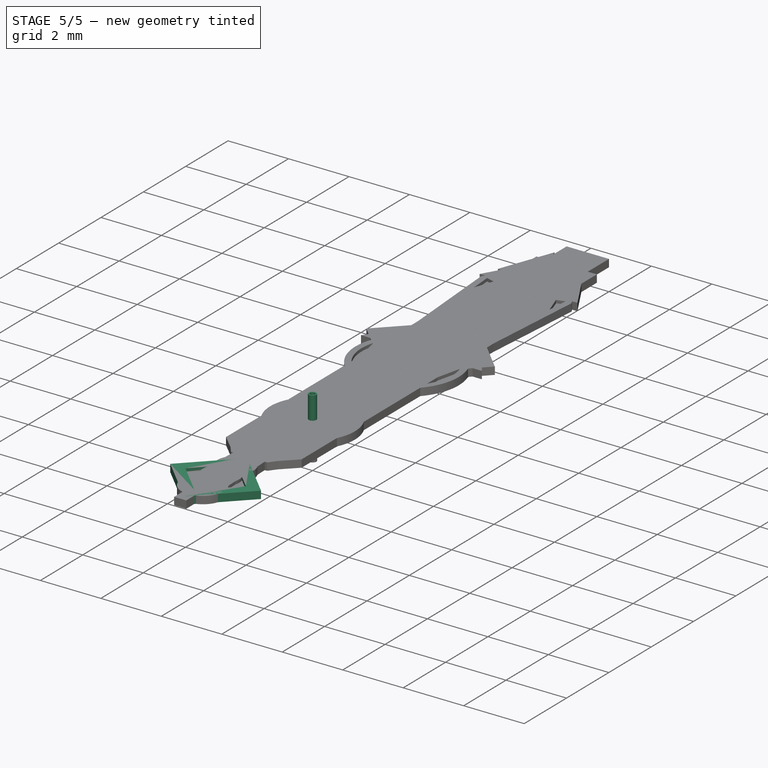
[diagram: stage 5 of 5 — iso view after this stage's code; geometry added in this stage tinted green]
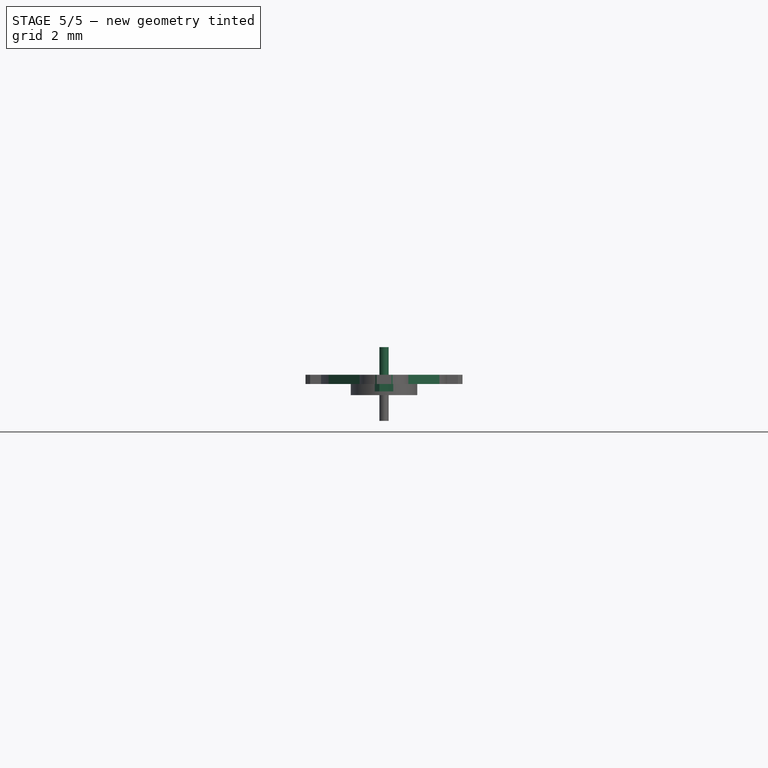
[diagram: stage 5 of 5 — front view after this stage's code; geometry added in this stage tinted green]
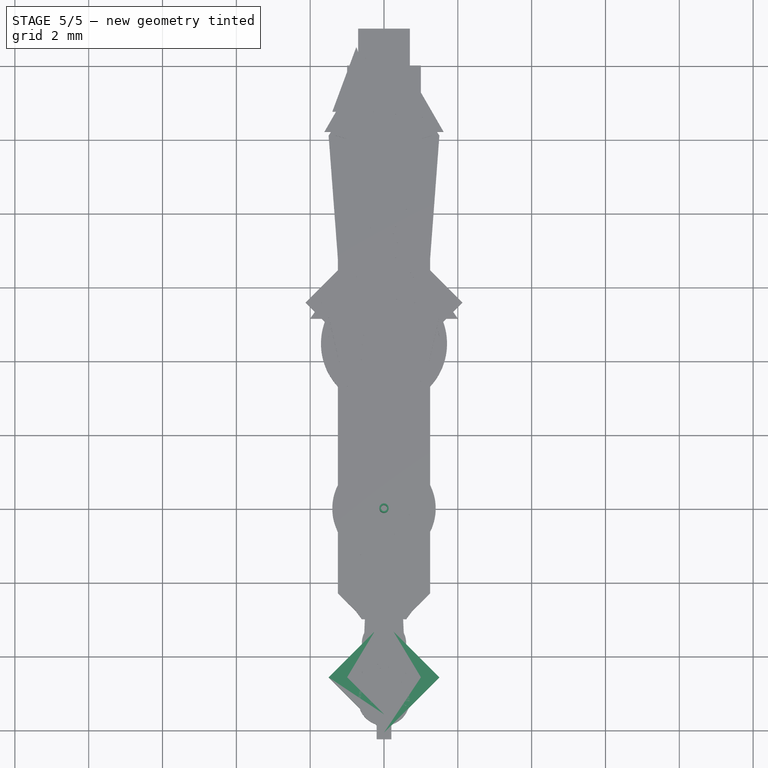
[diagram: stage 5 of 5 — top view after this stage's code; geometry added in this stage tinted green]
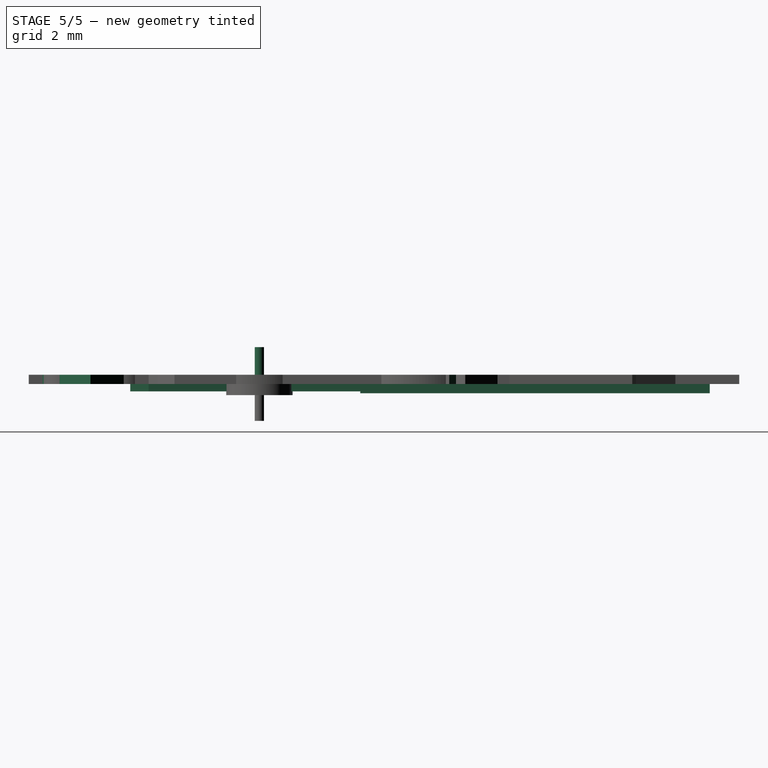
[diagram: stage 5 of 5 — right view after this stage's code; geometry added in this stage tinted green]
FEATURE [Sketcher::SketchObject] Sketch037
  MapMode = 5
  Support = -> [XY_Plane009]
  sketch-geometry (12):
    g0: LineSegment StartX=0.1 StartY=8.7433 StartZ=0 EndX=0.1 EndY=12.5 EndZ=0
    g1: LineSegment StartX=0.1 StartY=12.5 StartZ=0 EndX=-0.1 EndY=12.5 EndZ=0
    g2: LineSegment StartX=-0.1 StartY=12.5 StartZ=0 EndX=-0.1 EndY=8.7433 EndZ=0
    g3: ArcOfCircle CenterX=1.47e-14 CenterY=8 CenterZ=0 NormalX=0 NormalY=0 NormalZ=1 AngleXU=0 Radius=0.75 StartAngle=4.87984 EndAngle=7.72025
    g4: ArcOfCircle CenterX=0 CenterY=0 CenterZ=0 NormalX=0 NormalY=0 NormalZ=1 AngleXU=0 Radius=0.7 StartAngle=4.85574 EndAngle=7.67445
    g5: LineSegment StartX=0.125 StartY=7.26049 StartZ=0 EndX=0.125 EndY=0.688749 EndZ=0
    g6: LineSegment StartX=-0.125 StartY=0.688749 StartZ=0 EndX=-0.125 EndY=7.26049 EndZ=0
    g7: LineSegment StartX=-0.1 StartY=-0.69282 StartZ=0 EndX=-0.4 EndY=-4 EndZ=0
    g8: LineSegment StartX=-0.4 StartY=-4 StartZ=0 EndX=0.4 EndY=-4 EndZ=0
    g9: LineSegment StartX=0.4 StartY=-4 StartZ=0 EndX=0.1 EndY=-0.69282 EndZ=0
    g10: ArcOfCircle CenterX=0 CenterY=0 CenterZ=0 NormalX=0 NormalY=0 NormalZ=1 AngleXU=0 Radius=0.7 StartAngle=1.75033 EndAngle=4.56904
    g11: ArcOfCircle CenterX=1.47e-14 CenterY=8 CenterZ=0 NormalX=0 NormalY=0 NormalZ=1 AngleXU=0 Radius=0.75 StartAngle=1.70453 EndAngle=4.54494
  constraints (33):
    c: Coincident(g0,g1)
    c: Coincident(g1,g2)
    c: Horizontal(g1)
    c: Vertical(g0)
    c: Vertical(g2)
    c: Coincident(g4,g-1)
    c: Vertical(g5)
    c: Vertical(g6)
    c: Coincident(g7,g8)
    c: Coincident(g8,g9)
    c: Coincident(g4,g9)
    c: Coincident(g10,g7)
    c: Coincident(g4,g5)
    c: Coincident(g4,g10)
    c: Coincident(g3,g11)
    c: Coincident(g3,g0)
    c: Coincident(g3,g5)
    c: Symmetric(g6,g3,g-2)
    c: Symmetric(g2,g0,g-2)
    c: Coincident(g11,g2)
    c: Coincident(g6,g10)
    c: Coincident(g11,g6)
    c: Symmetric(g7,g4,g-2)
    c: Symmetric(g7,g8,g-2)
    c: Diameter(g10) = 1.4
    c: DistanceX(g6,g4) = 0.25
    c: Diameter(g11) = 1.5
    c: DistanceY(g8) = -4
    c: DistanceX(g8,g8) = 0.8
    c: DistanceX(g7,g4) = 0.2
    c: DistanceY(g4,g0) = 12.5
    c: DistanceX(g1,g1) = 0.2
    c: DistanceY(g3) = 8
FEATURE [PartDesign::Pad] Pad008
  AllowMultiFace = false
  Length = 0.25
  Length2 = 100
  Profile = -> Sketch037
  Type = 0
FEATURE [Sketcher::SketchObject] Sketch038
  ExternalGeometry = -> [Pad008]
  MapMode = 5
  Placement = pos=(0,0,0.25) rot=(0,0,1;0rad)
  Support = -> [Pad008]
  sketch-geometry (1):
    g0: Circle CenterX=0 CenterY=8 CenterZ=0 NormalX=0 NormalY=0 NormalZ=1 AngleXU=0 Radius=0.609551
  constraints (1):
    c: Coincident(g-3,g0)
FEATURE [PartDesign::Pocket] Pocket011
  AllowMultiFace = false
  BaseFeature = -> Pad008
  Length = 0.1
  Length2 = 100
  Profile = -> Sketch038
  Type = 0
FEATURE [Sketcher::SketchObject] Sketch039
  MapMode = 5
  Placement = pos=(0,0,0.25) rot=(0,0,1;0rad)
  Support = -> [Pocket011]
  sketch-geometry (1):
    g0: Circle CenterX=0 CenterY=0 CenterZ=0 NormalX=0 NormalY=0 NormalZ=1 AngleXU=0 Radius=0.075
  constraints (2):
    c: Coincident(g0,g-1)
    c: Diameter(g0) = 0.15
FEATURE [PartDesign::Pad] Pad009
  AllowMultiFace = false
  BaseFeature = -> Pocket011
  Length = 0.05
  Length2 = 100
  Profile = -> Sketch039
  Type = 0
FEATURE [Sketcher::SketchObject] Sketch040
  MapMode = 5
  Placement = pos=(0,0,0) rot=(1,0,0;3.14159rad)
  Support = -> [Pad009]
  sketch-geometry (2):
    g0: Circle CenterX=0 CenterY=0 CenterZ=0 NormalX=0 NormalY=0 NormalZ=1 AngleXU=0 Radius=0.085
    g1: Circle CenterX=0 CenterY=0 CenterZ=0 NormalX=0 NormalY=0 NormalZ=1 AngleXU=0 Radius=0.125
  constraints (4):
    c: Coincident(g0,g-1)
    c: Coincident(g1,g0)
    c: Diameter(g0) = 0.17
    c: Diameter(g1) = 0.25
FEATURE [PartDesign::Pad] Pad010
  AllowMultiFace = false
  BaseFeature = -> Pad009
  Length = 1
  Length2 = 100
  Profile = -> Sketch040
  Type = 0
FEATURE [PartDesign::Body] Body009  label="Second_Hand"
  Group = -> [Sketch037,Pad008,Sketch038,Pocket011,Sketch039,Pad009,Sketch040,Pad010]
  Origin = -> Origin009
  Placement = pos=(0,0,0) rot=(0,0,1;3.14159rad)
  Tip = -> Pad010
FEATURE [Sketcher::SketchObject] Sketch042
  MapMode = 5
  Placement = pos=(0,0,0) rot=(0,1,0;3.14159rad)
  Support = -> [XY_Plane010]
  sketch-geometry (10):
    g0: LineSegment StartX=0.1 StartY=12.2 StartZ=0 EndX=-0.1 EndY=12.2 EndZ=0
    g1: ArcOfCircle CenterX=0 CenterY=0 CenterZ=0 NormalX=0 NormalY=0 NormalZ=1 AngleXU=0 Radius=0.5 StartAngle=4.91375 EndAngle=7.33038
    g2: LineSegment StartX=0.1 StartY=12.2 StartZ=0 EndX=0.25 EndY=0.433013 EndZ=0
    g3: LineSegment StartX=-0.25 StartY=0.433013 StartZ=0 EndX=-0.1 EndY=12.2 EndZ=0
    g4: LineSegment StartX=-0.1 StartY=-0.489898 StartZ=0 EndX=-0.25 EndY=-3 EndZ=0
    g5: LineSegment StartX=0.25 StartY=-3 StartZ=0 EndX=0.1 EndY=-0.489898 EndZ=0
    g6: ArcOfCircle CenterX=0 CenterY=0 CenterZ=0 NormalX=0 NormalY=0 NormalZ=1 AngleXU=0 Radius=0.5 StartAngle=2.0944 EndAngle=4.51103
    g7: LineSegment StartX=-0.25 StartY=-3 StartZ=0 EndX=-0.125 EndY=-3.5 EndZ=0
    g8: LineSegment StartX=-0.125 StartY=-3.5 StartZ=0 EndX=0.125 EndY=-3.5 EndZ=0
    g9: LineSegment StartX=0.125 StartY=-3.5 StartZ=0 EndX=0.25 EndY=-3 EndZ=0
  constraints (26):
    c: Coincident(g1,g-1)
    c: Coincident(g1,g5)
    c: Coincident(g6,g4)
    c: Coincident(g1,g2)
    c: Coincident(g1,g6)
    c: Symmetric(g3,g2,g-2)
    c: Coincident(g3,g6)
    c: Symmetric(g4,g1,g-2)
    c: Symmetric(g4,g5,g-2)
    c: Diameter(g6) = 1
    c: DistanceY(g5) = -3
    c: DistanceX(g4,g5) = 0.5
    c: DistanceX(g4,g1) = 0.2
    c: Coincident(g0,g3)
    c: Coincident(g2,g0)
    c: DistanceX(g0,g0) = 0.2
    c: Symmetric(g3,g1,g-2)
    c: DistanceX(g3,g1) = 0.5
    c: Coincident(g4,g7)
    c: Coincident(g7,g8)
    c: Coincident(g8,g9)
    c: Coincident(g9,g5)
    c: Symmetric(g7,g8,g-2)
    c: DistanceX(g8,g8) = 0.25
    c: DistanceY(g1,g0) = 12.2
    c: DistanceY(g7,g4) = 0.5
FEATURE [PartDesign::Pad] Pad011
  AllowMultiFace = false
  Length = 0.2
  Length2 = 100
  Profile = -> Sketch042
  Type = 0
FEATURE [Sketcher::SketchObject] Sketch044
  MapMode = 5
  Placement = pos=(0,0,-0.2) rot=(1,0,0;3.14159rad)
  Support = -> [Pad011]
  sketch-geometry (1):
    g0: Circle CenterX=0 CenterY=0 CenterZ=0 NormalX=0 NormalY=0 NormalZ=1 AngleXU=0 Radius=0.075
  constraints (2):
    c: Coincident(g0,g-1)
    c: Diameter(g0) = 0.15
FEATURE [PartDesign::Pad] Pad012
  AllowMultiFace = false
  BaseFeature = -> Pad011
  Length = 0.05
  Length2 = 100
  Profile = -> Sketch044
  Type = 0
FEATURE [Sketcher::SketchObject] Sketch043
  MapMode = 5
  Support = -> [Pad012]
  sketch-geometry (2):
    g0: Circle CenterX=0 CenterY=0 CenterZ=0 NormalX=0 NormalY=0 NormalZ=1 AngleXU=0 Radius=0.085
    g1: Circle CenterX=0 CenterY=0 CenterZ=0 NormalX=0 NormalY=0 NormalZ=1 AngleXU=0 Radius=0.125
  constraints (4):
    c: Coincident(g0,g-1)
    c: Coincident(g1,g0)
    c: Diameter(g0) = 0.17
    c: Diameter(g1) = 0.25
FEATURE [PartDesign::Pad] Pad013
  AllowMultiFace = false
  BaseFeature = -> Pad012
  Length = 1
  Length2 = 100
  Profile = -> Sketch043
  Type = 0
FEATURE [Image::ImagePlane] ImagePlane
  Placement = pos=(3.75,-6,0) rot=(0,0,1;-0.898845rad)
  XSize = 37.5055
  YSize = 33.0722
FEATURE [Sketcher::SketchObject] Sketch
  ExternalGeometry = -> [Pad013]
  MapMode = 5
  Placement = pos=(0,0,-0.2) rot=(1,0,0;3.14159rad)
  Support = -> [Pad013]
  sketch-geometry (4):
    g0: LineSegment StartX=-0.220683 StartY=-2.73283 StartZ=0 EndX=-0.1 EndY=-12.2 EndZ=0
    g1: LineSegment StartX=-0.1 StartY=-12.2 StartZ=0 EndX=0.1 EndY=-12.2 EndZ=0
    g2: LineSegment StartX=0.1 StartY=-12.2 StartZ=0 EndX=0.220683 EndY=-2.73283 EndZ=0
    g3: LineSegment StartX=-0.220683 StartY=-2.73283 StartZ=0 EndX=0.220683 EndY=-2.73283 EndZ=0
  constraints (9):
    c: Coincident(g0,g-5)
    c: Coincident(g0,g1)
    c: Coincident(g1,g-5)
    c: Coincident(g1,g2)
    c: Coincident(g0,g3)
    c: Coincident(g3,g2)
    c: Symmetric(g2,g0,g-2)
    c: PointOnObject(g0,g-4)
    c: Distance(g2,g-3) = 2.3
FEATURE [PartDesign::Pad] Pad
  AllowMultiFace = false
  BaseFeature = -> Pad013
  Length = 0.05
  Length2 = 100
  Profile = -> Sketch
  Type = 0
FEATURE [PartDesign::Body] Body010  label="Second_Hand001"
  Group = -> [Sketch042,Pad011,Sketch044,Pad012,Sketch043,Pad013,Sketch,Pad]
  Origin = -> Origin010
  Placement = pos=(0,0,0) rot=(0,0,1;3.14159rad)
  Tip = -> Pad
FEATURE [Sketcher::SketchObject] Sketch045
  MapMode = 5
  Support = -> [XY_Plane011]
  sketch-geometry (22):
    g0: LineSegment StartX=0.2 StartY=11.5 StartZ=0 EndX=0.2 EndY=12.5 EndZ=0
    g1: LineSegment StartX=0.2 StartY=12.5 StartZ=0 EndX=-0.2 EndY=12.5 EndZ=0
    g2: LineSegment StartX=-0.2 StartY=12.5 StartZ=0 EndX=-0.2 EndY=11.5 EndZ=0
    g3: ArcOfCircle CenterX=0 CenterY=0 CenterZ=0 NormalX=0 NormalY=0 NormalZ=1 AngleXU=0 Radius=0.75 StartAngle=4.98232 EndAngle=7.51414
    g4: LineSegment StartX=0.25 StartY=5.70711 StartZ=0 EndX=0.25 EndY=0.707107 EndZ=0
    g5: ArcOfCircle CenterX=0 CenterY=0 CenterZ=0 NormalX=0 NormalY=0 NormalZ=1 AngleXU=0 Radius=0.75 StartAngle=1.91063 EndAngle=4.44246
    g6: LineSegment StartX=-0.4 StartY=11.0642 StartZ=0 EndX=-0.4 EndY=6.06418 EndZ=0
    g7: LineSegment StartX=0.4 StartY=11.0642 StartZ=0 EndX=0.4 EndY=6.06418 EndZ=0
    g8: LineSegment StartX=-0.2 StartY=-1.67284 StartZ=0 EndX=-0.2 EndY=-0.722842 EndZ=0
    g9: LineSegment StartX=0.2 StartY=-1.67284 StartZ=0 EndX=0.2 EndY=-0.722842 EndZ=0
    g10: LineSegment StartX=-0.475 StartY=-2.1772 StartZ=0 EndX=-0.475 EndY=-3.75 EndZ=0
    g11: ArcOfCircle CenterX=0 CenterY=-3.75 CenterZ=0 NormalX=0 NormalY=0 NormalZ=1 AngleXU=0 Radius=0.475 StartAngle=3.14159 EndAngle=6.28319
    g12: LineSegment StartX=0.475 StartY=-3.75 StartZ=0 EndX=0.475 EndY=-2.1772 EndZ=0
    g13: ArcOfCircle CenterX=-0.125 CenterY=-2.1772 CenterZ=0 NormalX=0 NormalY=0 NormalZ=1 AngleXU=0 Radius=0.6 StartAngle=1e-16 EndAngle=0.998378
    g14: ArcOfCircle CenterX=0.125 CenterY=-2.1772 CenterZ=0 NormalX=0 NormalY=0 NormalZ=1 AngleXU=0 Radius=0.6 StartAngle=2.14321 EndAngle=3.14159
    g15: ArcOfCircle CenterX=-0.1 CenterY=6.06418 CenterZ=0 NormalX=0 NormalY=0 NormalZ=1 AngleXU=0 Radius=0.5 StartAngle=5.48779 EndAngle=6.28319
    g16: ArcOfCircle CenterX=0.1 CenterY=6.06418 CenterZ=0 NormalX=0 NormalY=0 NormalZ=1 AngleXU=0 Radius=0.5 StartAngle=3.14159 EndAngle=3.93699
    g17: LineSegment StartX=-0.25 StartY=5.70711 StartZ=0 EndX=-0.25 EndY=0.707107 EndZ=0
    g18: ArcOfCircle CenterX=0.65 CenterY=11.5 CenterZ=0 NormalX=0 NormalY=0 NormalZ=1 AngleXU=0 Radius=0.45 StartAngle=3.14159 EndAngle=4.00206
    g19: ArcOfCircle CenterX=0.275148 CenterY=11.0642 CenterZ=0 NormalX=0 NormalY=0 NormalZ=1 AngleXU=0 Radius=0.124852 StartAngle=-4.4e-15 EndAngle=0.860466
    g20: ArcOfCircle CenterX=-0.65 CenterY=11.5 CenterZ=0 NormalX=0 NormalY=0 NormalZ=1 AngleXU=0 Radius=0.45 StartAngle=5.42272 EndAngle=6.28319
    g21: ArcOfCircle CenterX=-0.275148 CenterY=11.0642 CenterZ=0 NormalX=0 NormalY=0 NormalZ=1 AngleXU=0 Radius=0.124852 StartAngle=2.28113 EndAngle=3.14159
  constraints (57):
    c: Coincident(g0,g1)
    c: Coincident(g1,g2)
    c: Horizontal(g1)
    c: Vertical(g0)
    c: Vertical(g2)
    c: Coincident(g3,g-1)
    c: Vertical(g4)
    c: Coincident(g3,g4)
    c: Coincident(g3,g5)
    c: Symmetric(g5,g3,g-2)
    c: Symmetric(g7,g6,g-2)
    c: DistanceY(g3,g0) = 12.5
    c: DistanceX(g1,g1) = 0.4
    c: Symmetric(g0,g2,g-2)
    c: Symmetric(g6,g7,g-2)
    c: DistanceX(g6,g7) = 0.8
    c: DistanceY(g0,g0) = 1
    c: DistanceX(g5,g3) = 0.5
    c: Radius(g5) = 0.75
    c: Coincident(g8,g5)
    c: Vertical(g8)
    c: Coincident(g9,g3)
    c: Vertical(g10)
    c: Tangent(g10,g11) = -1.5708
    c: Tangent(g11,g12) = -1.5708
    c: Tangent(g12,g13) = -1.5708
    c: Tangent(g10,g14) = -1.5708
    c: Coincident(g14,g8)
    c: Coincident(g13,g9)
    c: Symmetric(g12,g10,g-2)
    c: Symmetric(g8,g9,g-2)
    c: Symmetric(g10,g11,g-2)
    c: DistanceX(g10,g11) = 0.95
    c: DistanceY(g11) = -3.75
    c: DistanceY(g9,g9) = 0.95
    c: DistanceX(g8,g9) = 0.4
    c: Radius(g13) = 0.6
    c: Tangent(g7,g15) = 1.5708
    c: Coincident(g15,g4)
    c: Tangent(g6,g16) = -1.5708
    c: Coincident(g17,g16)
    c: Coincident(g17,g5)
    c: Vertical(g17)
    c: Symmetric(g4,g16,g-2)
    c: DistanceY(g4,g4) = 5
    c: Radius(g15) = 0.5
    c: DistanceY(g6,g6) = 5
    c: Tangent(g0,g18) = 1.5708
    c: Tangent(g18,g19) = 1.5708
    c: Tangent(g19,g7) = 1.5708
    c: Coincident(g7,g19)
    c: DistanceX(g6,g7) = 0.8
    c: Radius(g18) = 0.45
    c: Tangent(g2,g20) = 1.5708
    c: Tangent(g20,g21) = 1.5708
    c: Coincident(g6,g21)
    c: Symmetric(g20,g18,g-2)
FEATURE [PartDesign::Pad] Pad016
  AllowMultiFace = false
  Length = 0.25
  Length2 = 100
  Profile = -> Sketch045
  Type = 0
FEATURE [Sketcher::SketchObject] Sketch046
  AttachmentOffset = pos=(0,0,0.2) rot=(0,0,1;0rad)
  MapMode = 5
  Placement = pos=(0,0,0.2) rot=(0,0,1;0rad)
  Support = -> [XY_Plane011]
  sketch-geometry (1):
    g0: Circle CenterX=0 CenterY=0 CenterZ=0 NormalX=0 NormalY=0 NormalZ=1 AngleXU=0 Radius=0.075
  constraints (2):
    c: Coincident(g0,g-1)
    c: Diameter(g0) = 0.15
FEATURE [Sketcher::SketchObject] Sketch047
  ExternalGeometry = -> [Pad016]
  MapMode = 5
  Placement = pos=(0,0,0.25) rot=(0,0,1;0rad)
  Support = -> [Pad016]
  sketch-geometry (4):
    g0: ArcOfCircle CenterX=0 CenterY=11.0642 CenterZ=0 NormalX=0 NormalY=0 NormalZ=1 AngleXU=0 Radius=0.25 StartAngle=8e-16 EndAngle=3.14159
    g1: ArcOfCircle CenterX=0 CenterY=6.06418 CenterZ=0 NormalX=0 NormalY=0 NormalZ=1 AngleXU=0 Radius=0.25 StartAngle=3.14159 EndAngle=6.28319
    g2: LineSegment StartX=-0.25 StartY=11.0642 StartZ=0 EndX=-0.25 EndY=6.06418 EndZ=0
    g3: LineSegment StartX=0.25 StartY=11.0642 StartZ=0 EndX=0.25 EndY=6.06418 EndZ=0
  constraints (10):
    c: Tangent(g0,g3) = 1.5708
    c: Tangent(g0,g2) = -1.5708
    c: Tangent(g2,g1) = -1.5708
    c: Tangent(g3,g1) = 1.5708
    c: Vertical(g2)
    c: Equal(g0,g1)
    c: PointOnObject(g0,g-2)
    c: Horizontal(g1,g-4)
    c: Horizontal(g0,g-5)
    c: DistanceX(g1,g-5) = 0.15
FEATURE [PartDesign::Pocket] Pocket012
  AllowMultiFace = false
  BaseFeature = -> Pad016
  Length = 0.1
  Length2 = 100
  Profile = -> Sketch047
  Type = 0
FEATURE [PartDesign::Pad] Pad015
  AllowMultiFace = false
  BaseFeature = -> Pocket012
  Length = 0.1
  Length2 = 100
  Profile = -> Sketch046
  Type = 0
FEATURE [Sketcher::SketchObject] Sketch048
  MapMode = 5
  Placement = pos=(0,0,0) rot=(0,1,0;3.14159rad)
  Support = -> [XY_Plane011]
  sketch-geometry (2):
    g0: Circle CenterX=0 CenterY=0 CenterZ=0 NormalX=0 NormalY=0 NormalZ=1 AngleXU=0 Radius=0.085
    g1: Circle CenterX=0 CenterY=0 CenterZ=0 NormalX=0 NormalY=0 NormalZ=1 AngleXU=0 Radius=0.125
  constraints (4):
    c: Coincident(g0,g-1)
    c: Coincident(g1,g0)
    c: Diameter(g0) = 0.17
    c: Diameter(g1) = 0.25
FEATURE [PartDesign::Pad] Pad014
  AllowMultiFace = false
  BaseFeature = -> Pad015
  Length = 1
  Length2 = 100
  Profile = -> Sketch048
  Type = 0
FEATURE [PartDesign::Body] Body011  label="Second_Hand_Aurora"
  Group = -> [Sketch045,Pad016,Sketch047,Pocket012,Sketch046,Pad015,Sketch048,Pad014]
  Origin = -> Origin011
  Placement = pos=(0,0,0) rot=(0,0,1;3.14159rad)
  Tip = -> Pad014
FEATURE [Image::ImagePlane] ImagePlane001
  Placement = pos=(0.0167905,-5.37119,0) rot=(0,0,1;1.15192rad)
  XSize = 19.2194
  YSize = 14.4518
FEATURE [Sketcher::SketchObject] Sketch049
  AttachmentOffset = pos=(0,0,0.2) rot=(0,0,1;0rad)
  MapMode = 5
  Placement = pos=(0,0,0.2) rot=(0,0,1;0rad)
  Support = -> [XY_Plane012]
  sketch-geometry (1):
    g0: Circle CenterX=0 CenterY=0 CenterZ=0 NormalX=0 NormalY=0 NormalZ=1 AngleXU=0 Radius=0.075
  constraints (2):
    c: Coincident(g0,g-1)
    c: Diameter(g0) = 0.15
FEATURE [Sketcher::SketchObject] Sketch051
  MapMode = 5
  Placement = pos=(0,0,0) rot=(0,1,0;3.14159rad)
  Support = -> [XY_Plane012]
  sketch-geometry (2):
    g0: Circle CenterX=0 CenterY=0 CenterZ=0 NormalX=0 NormalY=0 NormalZ=1 AngleXU=0 Radius=0.085
    g1: Circle CenterX=0 CenterY=0 CenterZ=0 NormalX=0 NormalY=0 NormalZ=1 AngleXU=0 Radius=0.125
  constraints (4):
    c: Coincident(g0,g-1)
    c: Coincident(g1,g0)
    c: Diameter(g0) = 0.17
    c: Diameter(g1) = 0.25
FEATURE [Sketcher::SketchObject] Sketch052
  MapMode = 5
  Support = -> [XY_Plane012]
  sketch-geometry (16):
    g0: LineSegment StartX=0.15 StartY=8.73485 StartZ=0 EndX=0.15 EndY=13 EndZ=0
    g1: LineSegment StartX=0.15 StartY=13 StartZ=0 EndX=-0.15 EndY=13 EndZ=0
    g2: LineSegment StartX=-0.15 StartY=13 StartZ=0 EndX=-0.15 EndY=8.73485 EndZ=0
    g3: ArcOfCircle CenterX=0 CenterY=0 CenterZ=0 NormalX=0 NormalY=0 NormalZ=1 AngleXU=0 Radius=0.75 StartAngle=5.05223 EndAngle=7.65262
    g4: LineSegment StartX=0.15 StartY=6.73485 StartZ=0 EndX=0.15 EndY=0.734847 EndZ=0
    g5: ArcOfCircle CenterX=0 CenterY=0 CenterZ=0 NormalX=0 NormalY=0 NormalZ=1 AngleXU=0 Radius=0.75 StartAngle=1.77215 EndAngle=4.37255
    g6: LineSegment StartX=-0.375 StartY=-3.25 StartZ=0 EndX=-0.25 EndY=-0.707107 EndZ=0
    g7: LineSegment StartX=0.375 StartY=-3.25 StartZ=0 EndX=0.25 EndY=-0.707107 EndZ=0
    g8: LineSegment StartX=-0.15 StartY=6.73485 StartZ=0 EndX=-0.15 EndY=0.734847 EndZ=0
    g9: LineSegment StartX=-0.375 StartY=-3.25 StartZ=0 EndX=0.375 EndY=-3.25 EndZ=0
    g10: LineSegment StartX=0.15 StartY=8.73485 StartZ=0 EndX=0.45 EndY=8.73485 EndZ=0
    g11: LineSegment StartX=0.45 StartY=8.73485 StartZ=0 EndX=0.45 EndY=6.73485 EndZ=0
    g12: LineSegment StartX=0.45 StartY=6.73485 StartZ=0 EndX=0.15 EndY=6.73485 EndZ=0
    g13: LineSegment StartX=-0.15 StartY=6.73485 StartZ=0 EndX=-0.45 EndY=6.73485 EndZ=0
    g14: LineSegment StartX=-0.45 StartY=6.73485 StartZ=0 EndX=-0.45 EndY=8.73485 EndZ=0
    g15: LineSegment StartX=-0.45 StartY=8.73485 StartZ=0 EndX=-0.15 EndY=8.73485 EndZ=0
  constraints (42):
    c: Coincident(g0,g1)
    c: Coincident(g1,g2)
    c: Horizontal(g1)
    c: Vertical(g0)
    c: Vertical(g2)
    c: Coincident(g3,g-1)
    c: Vertical(g4)
    c: Coincident(g3,g4)
    c: Coincident(g3,g5)
    c: Symmetric(g5,g3,g-2)
    c: DistanceY(g3,g0) = 13
    c: DistanceX(g1,g1) = 0.3
    c: Symmetric(g0,g2,g-2)
    c: DistanceX(g5,g3) = 0.3
    c: Radius(g5) = 0.75
    c: Coincident(g6,g5)
    c: Coincident(g7,g3)
    c: Symmetric(g6,g7,g-2)
    c: Coincident(g8,g5)
    c: Vertical(g8)
    c: Symmetric(g4,g8,g-2)
    c: DistanceX(g5,g3) = 0.5
    c: DistanceX(g6,g7) = 0.75
    c: Coincident(g9,g6)
    c: Coincident(g9,g7)
    c: DistanceY(g7) = -3.25
    c: Coincident(g0,g10)
    c: Horizontal(g10)
    c: Coincident(g10,g11)
    c: Vertical(g11)
    c: Coincident(g11,g12)
    c: Coincident(g4,g12)
    c: Horizontal(g12)
    c: Coincident(g8,g13)
    c: Coincident(g13,g14)
    c: Coincident(g14,g15)
    c: Coincident(g15,g2)
    c: Symmetric(g14,g10,g-2)
    c: DistanceX(g14,g10) = 0.9
    c: DistanceY(g11,g11) = 2
    c: Symmetric(g13,g11,g-2)
    c: DistanceY(g4,g4) = 6
FEATURE [PartDesign::Pad] Pad019
  AllowMultiFace = false
  Length = 0.25
  Length2 = 100
  Profile = -> Sketch052
  Type = 0
FEATURE [Sketcher::SketchObject] Sketch050
  ExternalGeometry = -> [Pad019]
  MapMode = 5
  Placement = pos=(0,0,0.25) rot=(0,0,1;0rad)
  Support = -> [Pad019]
  sketch-geometry (4):
    g0: ArcOfCircle CenterX=0 CenterY=8.33686 CenterZ=0 NormalX=0 NormalY=0 NormalZ=1 AngleXU=0 Radius=0.25 StartAngle=-1.8e-15 EndAngle=3.14159
    g1: ArcOfCircle CenterX=0 CenterY=7.13686 CenterZ=0 NormalX=0 NormalY=0 NormalZ=1 AngleXU=0 Radius=0.25 StartAngle=3.14159 EndAngle=6.28319
    g2: LineSegment StartX=-0.25 StartY=8.33686 StartZ=0 EndX=-0.25 EndY=7.13686 EndZ=0
    g3: LineSegment StartX=0.25 StartY=8.33686 StartZ=0 EndX=0.25 EndY=7.13686 EndZ=0
FEATURE [PartDesign::Pocket] Pocket013
  AllowMultiFace = false
  BaseFeature = -> Pad019
  Length = 0.1
  Length2 = 100
  Profile = -> Sketch050
  Type = 0
FEATURE [PartDesign::Pad] Pad017
  AllowMultiFace = false
  BaseFeature = -> Pocket013
  Length = 0.1
  Length2 = 100
  Profile = -> Sketch049
  Type = 0
FEATURE [PartDesign::Pad] Pad018
  AllowMultiFace = false
  BaseFeature = -> Pad017
  Length = 1
  Length2 = 100
  Profile = -> Sketch051
  Type = 0
FEATURE [PartDesign::Body] Body012  label="Second_Hand_Buran"
  Group = -> [Sketch052,Pad019,Sketch050,Pocket013,Sketch049,Pad017,Sketch051,Pad018]
  Origin = -> Origin012
  Placement = pos=(0,0,0) rot=(0,0,1;3.14159rad)
  Tip = -> Pad018
FEATURE [Image::ImagePlane] ImagePlane002
  Placement = pos=(-0.463114,-6.22749,0) rot=(0,0,1;1.71042rad)
  XSize = 20.8424
  YSize = 13.8473
FEATURE [Sketcher::SketchObject] Sketch053
  AttachmentOffset = pos=(0,0,0.2) rot=(0,0,1;0rad)
  MapMode = 5
  Placement = pos=(0,0,0.2) rot=(0,0,1;0rad)
  Support = -> [XY_Plane013]
  sketch-geometry (1):
    g0: Circle CenterX=0 CenterY=0 CenterZ=0 NormalX=0 NormalY=0 NormalZ=1 AngleXU=0 Radius=0.075
  constraints (2):
    c: Coincident(g0,g-1)
    c: Diameter(g0) = 0.15
FEATURE [Sketcher::SketchObject] Sketch055
  MapMode = 5
  Placement = pos=(0,0,0) rot=(0,1,0;3.14159rad)
  Support = -> [XY_Plane013]
  sketch-geometry (2):
    g0: Circle CenterX=0 CenterY=0 CenterZ=0 NormalX=0 NormalY=0 NormalZ=1 AngleXU=0 Radius=0.085
    g1: Circle CenterX=0 CenterY=0 CenterZ=0 NormalX=0 NormalY=0 NormalZ=1 AngleXU=0 Radius=0.125
  constraints (4):
    c: Coincident(g0,g-1)
    c: Coincident(g1,g0)
    c: Diameter(g0) = 0.17
    c: Diameter(g1) = 0.25
FEATURE [Sketcher::SketchObject] Sketch056
  MapMode = 5
  Support = -> [XY_Plane013]
  sketch-geometry (11):
    g0: ArcOfCircle CenterX=0 CenterY=0 CenterZ=0 NormalX=0 NormalY=0 NormalZ=1 AngleXU=0 Radius=0.85 StartAngle=4.94991 EndAngle=7.67658
    g1: LineSegment StartX=0.05 StartY=13 StartZ=0 EndX=0.15 EndY=0.83666 EndZ=0
    g2: ArcOfCircle CenterX=0 CenterY=0 CenterZ=0 NormalX=0 NormalY=0 NormalZ=1 AngleXU=0 Radius=0.85 StartAngle=1.7482 EndAngle=4.47487
    g3: LineSegment StartX=-0.25 StartY=-3.32614 StartZ=0 EndX=-0.2 EndY=-0.826136 EndZ=0
    g4: LineSegment StartX=0.25 StartY=-3.32614 StartZ=0 EndX=0.2 EndY=-0.826136 EndZ=0
    g5: LineSegment StartX=-0.05 StartY=13 StartZ=0 EndX=-0.15 EndY=0.83666 EndZ=0
    g6: LineSegment StartX=-0.05 StartY=13 StartZ=0 EndX=0.05 EndY=13 EndZ=0
    g7: LineSegment StartX=0.25 StartY=-3.32614 StartZ=0 EndX=1.5 EndY=-4.57614 EndZ=0
    g8: LineSegment StartX=1.5 StartY=-4.57614 StartZ=0 EndX=0 EndY=-6.07614 EndZ=0
    g9: LineSegment StartX=0 StartY=-6.07614 StartZ=0 EndX=-1.5 EndY=-4.57614 EndZ=0
    g10: LineSegment StartX=-1.5 StartY=-4.57614 StartZ=0 EndX=-0.25 EndY=-3.32614 EndZ=0
  constraints (29):
    c: Coincident(g0,g-1)
    c: Coincident(g0,g1)
    c: Coincident(g0,g2)
    c: Symmetric(g2,g0,g-2)
    c: DistanceX(g2,g0) = 0.3
    c: Radius(g2) = 0.85
    c: Coincident(g3,g2)
    c: Coincident(g4,g0)
    c: Symmetric(g3,g4,g-2)
    c: Coincident(g5,g2)
    c: Symmetric(g1,g5,g-2)
    c: DistanceX(g2,g0) = 0.4
    c: Coincident(g6,g5)
    c: Coincident(g6,g1)
    c: DistanceX(g6,g6) = 0.1
    c: DistanceY(g1) = 13
    c: DistanceX(g0) = 0.15
    c: DistanceX(g3,g4) = 0.5
    c: DistanceY(g4,g4) = 2.5
    c: Coincident(g4,g7)
    c: Coincident(g7,g8)
    c: PointOnObject(g8,g-2)
    c: Coincident(g8,g9)
    c: Coincident(g9,g10)
    c: Coincident(g10,g3)
    c: Symmetric(g9,g7,g-2)
    c: Perpendicular(g9,g8)
    c: Perpendicular(g8,g7)
    c: DistanceY(g8,g4) = 2.75
FEATURE [PartDesign::Pad] Pad022
  AllowMultiFace = false
  Length = 0.25
  Length2 = 100
  Profile = -> Sketch056
  Type = 0
FEATURE [Sketcher::SketchObject] Sketch054
  ExternalGeometry = -> [Pad022]
  MapMode = 5
  Placement = pos=(0,0,0.25) rot=(0,0,1;0rad)
  Support = -> [Pad022]
  sketch-geometry (4):
    g0: LineSegment StartX=-1 StartY=-4.57614 StartZ=0 EndX=0 EndY=-3.57614 EndZ=0
    g1: LineSegment StartX=0 StartY=-3.57614 StartZ=0 EndX=1 EndY=-4.57614 EndZ=0
    g2: LineSegment StartX=1 StartY=-4.57614 StartZ=0 EndX=0 EndY=-5.57614 EndZ=0
    g3: LineSegment StartX=0 StartY=-5.57614 StartZ=0 EndX=-1 EndY=-4.57614 EndZ=0
  constraints (11):
    c: PointOnObject(g0,g-2)
    c: Coincident(g0,g1)
    c: Coincident(g1,g2)
    c: PointOnObject(g2,g-2)
    c: Coincident(g2,g3)
    c: Coincident(g3,g0)
    c: Symmetric(g0,g1,g-2)
    c: Perpendicular(g1,g2)
    c: Perpendicular(g3,g2)
    c: Horizontal(g1,g-3)
    c: DistanceX(g1,g-3) = 0.5
FEATURE [PartDesign::Pocket] Pocket014
  AllowMultiFace = false
  BaseFeature = -> Pad022
  Length = 0.1
  Length2 = 100
  Profile = -> Sketch054
  Type = 0
FEATURE [PartDesign::Pad] Pad020
  AllowMultiFace = false
  BaseFeature = -> Pocket014
  Length = 0.1
  Length2 = 100
  Profile = -> Sketch053
  Type = 0
FEATURE [PartDesign::Pad] Pad021
  AllowMultiFace = false
  BaseFeature = -> Pad020
  Length = 1
  Length2 = 100
  Profile = -> Sketch055
  Type = 0
FEATURE [Sketcher::SketchObject] Sketch057
  ExternalGeometry = -> [Pad025]
  MapMode = 5
  Placement = pos=(0,0,0.25) rot=(0,0,1;0rad)
  Support = -> [Pad025]
  sketch-geometry (1):
    g0: Circle CenterX=0 CenterY=7 CenterZ=0 NormalX=0 NormalY=0 NormalZ=1 AngleXU=0 Radius=0.6
  constraints (2):
    c: Coincident(g0,g-3)
    c: Radius(g0) = 0.6
FEATURE [PartDesign::Pocket] Pocket015
  AllowMultiFace = false
  BaseFeature = -> Pad025
  Length = 0.1
  Length2 = 100
  Profile = -> Sketch057
  Type = 0
FEATURE [PartDesign::Pad] Pad024
  AllowMultiFace = false
  BaseFeature = -> Pocket015
  Length = 0.1
  Length2 = 100
  Profile = -> Sketch058
  Type = 0
FEATURE [PartDesign::Pad] Pad023
  AllowMultiFace = false
  BaseFeature = -> Pad024
  Length = 1
  Length2 = 100
  Profile = -> Sketch059
  Type = 0
FEATURE [PartDesign::Body] Body022  label="Second_Hand_OceanMaster"
  Group = -> [Sketch090,Pad049,Sketch089,Pocket023,Sketch091,Pad048,Sketch092,Pad047]
  Origin = -> Origin022
  Placement = pos=(0,0,0) rot=(0,0,1;3.14159rad)
  Tip = -> Pad047
FEATURE [Image::ImagePlane] ImagePlane011
  Placement = pos=(-5.56668,-4.19778,0) rot=(0,0,1;3.14159rad)
  XSize = 30.7325
  YSize = 25.2525
FEATURE [Image::ImagePlane] ImagePlane012
  Placement = pos=(-1.8,-6.75,0) rot=(0,0,1;-1.16937rad)
  XSize = 37.5055
  YSize = 33.0722
FEATURE [Sketcher::SketchObject] Sketch035
  MapMode = 5
  Support = -> [XY_Plane008]
  sketch-geometry (8):
    g0: LineSegment StartX=-0.75 StartY=11.1449 StartZ=0 EndX=-2e-16 EndY=12 EndZ=0
    g1: LineSegment StartX=-2e-16 StartY=12 StartZ=0 EndX=0.75 EndY=11.1449 EndZ=0
    g2: LineSegment StartX=0.75 StartY=11.1449 StartZ=0 EndX=0.75 EndY=1.6225 EndZ=0
    g3: LineSegment StartX=-0.75 StartY=11.1449 StartZ=0 EndX=-0.75 EndY=1.6225 EndZ=0
    g4: Circle CenterX=0 CenterY=0 CenterZ=0 NormalX=0 NormalY=0 NormalZ=1 AngleXU=0 Radius=0.45
    g5: ArcOfCircle CenterX=0 CenterY=0 CenterZ=0 NormalX=0 NormalY=0 NormalZ=1 AngleXU=0 Radius=0.85 StartAngle=2.15983 EndAngle=7.26495
    g6: ArcOfCircle CenterX=-0.75 CenterY=1.1225 CenterZ=0 NormalX=0 NormalY=0 NormalZ=1 AngleXU=0 Radius=0.5 StartAngle=5.30142 EndAngle=7.85398
    g7: ArcOfCircle CenterX=0.75 CenterY=1.1225 CenterZ=0 NormalX=0 NormalY=0 NormalZ=1 AngleXU=0 Radius=0.5 StartAngle=1.5708 EndAngle=4.12336
  constraints (20):
    c: PointOnObject(g0,g-2)
    c: Coincident(g0,g1)
    c: Coincident(g1,g2)
    c: Vertical(g2)
    c: Coincident(g0,g3)
    c: Coincident(g4,g-1)
    c: Diameter(g4) = 0.9
    c: DistanceY(g0) = 12
    c: Symmetric(g0,g1,g-2)
    c: Coincident(g5,g4)
    c: Coincident(g6,g3)
    c: Coincident(g7,g2)
    c: Symmetric(g3,g2,g-2)
    c: Symmetric(g7,g6,g-2)
    c: DistanceX(g3,g2) = 1.5
    c: Diameter(g5) = 1.7
    c: Tangent(g5,g6) = 1.5708
    c: Coincident(g7,g5)
    c: Diameter(g6) = 1
    c: Perpendicular(g6,g3)
FEATURE [PartDesign::Pad] Pad007
  AllowMultiFace = false
  Length = 0.25
  Length2 = 100
  Profile = -> Sketch035
  Type = 0
FEATURE [Sketcher::SketchObject] Sketch036
  MapMode = 5
  Placement = pos=(0,0,0.25) rot=(0,0,1;0rad)
  Support = -> [Pad007]
  sketch-geometry (4):
    g0: LineSegment StartX=-0.326212 StartY=10.622 StartZ=0 EndX=0.326212 EndY=10.622 EndZ=0
    g1: LineSegment StartX=0.326212 StartY=10.622 StartZ=0 EndX=0.326212 EndY=2.43701 EndZ=0
    g2: LineSegment StartX=0.326212 StartY=2.43701 StartZ=0 EndX=-0.326212 EndY=2.43701 EndZ=0
    g3: LineSegment StartX=-0.326212 StartY=2.43701 StartZ=0 EndX=-0.326212 EndY=10.622 EndZ=0
  constraints (8):
    c: Coincident(g0,g1)
    c: Coincident(g1,g2)
    c: Coincident(g2,g3)
    c: Coincident(g3,g0)
    c: Horizontal(g2)
    c: Vertical(g1)
    c: Vertical(g3)
    c: Symmetric(g0,g0,g-2)
FEATURE [PartDesign::Pocket] Pocket010
  AllowMultiFace = false
  BaseFeature = -> Pad007
  Length = 0.1
  Length2 = 100
  Profile = -> Sketch036
  Type = 0
FEATURE [Sketcher::SketchObject] Sketch094
  MapMode = 5
  Support = -> [XY_Plane025]
  sketch-geometry (13):
    g0: LineSegment StartX=-0.85 StartY=10.25 StartZ=0 EndX=0 EndY=12 EndZ=0
    g1: LineSegment StartX=0 StartY=12 StartZ=0 EndX=0.85 EndY=10.25 EndZ=0
    g2: LineSegment StartX=0.85 StartY=10.25 StartZ=0 EndX=0.5 EndY=0.778219 EndZ=0
    g3: LineSegment StartX=-0.85 StartY=10.25 StartZ=0 EndX=-0.5 EndY=0.778219 EndZ=0
    g4: Circle CenterX=0 CenterY=0 CenterZ=0 NormalX=0 NormalY=0 NormalZ=1 AngleXU=0 Radius=0.45
    g5: ArcOfCircle CenterX=0 CenterY=0 CenterZ=0 NormalX=0 NormalY=0 NormalZ=1 AngleXU=0 Radius=0.925 StartAngle=2.14188 EndAngle=7.2829
    g6: LineSegment StartX=-0.304065 StartY=3.6 StartZ=0 EndX=0.304065 EndY=3.6 EndZ=0
    g7: LineSegment StartX=0.304065 StartY=3.6 StartZ=0 EndX=0.55 EndY=10.25 EndZ=0
    g8: LineSegment StartX=0.55 StartY=10.25 StartZ=0 EndX=0 EndY=11.25 EndZ=0
    g9: LineSegment StartX=0 StartY=11.25 StartZ=0 EndX=-0.55 EndY=10.25 EndZ=0
    g10: LineSegment StartX=-0.55 StartY=10.25 StartZ=0 EndX=-0.304065 EndY=3.6 EndZ=0
    g11: LineSegment [constr] StartX=0.55 StartY=10.25 StartZ=0 EndX=0.85 EndY=10.25 EndZ=0
    g12: LineSegment [constr] StartX=0.304065 StartY=3.6 StartZ=0 EndX=0.603861 EndY=3.58892 EndZ=0
  constraints (34):
    c: PointOnObject(g0,g-2)
    c: Coincident(g0,g1)
    c: Coincident(g1,g2)
    c: Coincident(g0,g3)
    c: Coincident(g4,g-1)
    c: Diameter(g4) = 0.9
    c: DistanceY(g0) = 12
    c: Symmetric(g0,g1,g-2)
    c: Coincident(g5,g4)
    c: Symmetric(g3,g2,g-2)
    c: Diameter(g5) = 1.85
    c: Coincident(g2,g5)
    c: Coincident(g5,g3)
    c: DistanceX(g3,g2) = 1
    c: DistanceX(g0,g1) = 1.7
    c: DistanceY(g1,g0) = 1.75
    c: Coincident(g6,g7)
    c: Coincident(g7,g8)
    c: PointOnObject(g8,g-2)
    c: Coincident(g8,g9)
    c: Coincident(g9,g10)
    c: Coincident(g10,g6)
    c: Symmetric(g6,g6,g-2)
    c: Symmetric(g9,g7,g-2)
    c: Coincident(g11,g7)
    c: Coincident(g11,g1)
    c: Horizontal(g11)
    c: Coincident(g12,g6)
    c: PointOnObject(g12,g2)
    c: Perpendicular(g12,g2)
    c: Equal(g12,g11)
    c: DistanceY(g7,g8) = 1
    c: DistanceX(g7,g1) = 0.3
    c: DistanceY(g4,g6) = 3.6
FEATURE [PartDesign::Pad] Pad051
  AllowMultiFace = false
  Length = 0.2
  Length2 = 100
  Profile = -> Sketch094
  Type = 0
FEATURE [Sketcher::SketchObject] Sketch093
  ExternalGeometry = -> [Pad051]
  MapMode = 5
  Placement = pos=(0,0,0.2) rot=(0,0,1;0rad)
  Support = -> [Pad051]
  sketch-geometry (12):
    g0: LineSegment StartX=-0.593185 StartY=3.3 StartZ=0 EndX=0.593185 EndY=3.3 EndZ=0
    g1: LineSegment StartX=0.593185 StartY=3.3 StartZ=0 EndX=0.85 EndY=10.25 EndZ=0
    g2: LineSegment StartX=0.85 StartY=10.25 StartZ=0 EndX=0 EndY=12 EndZ=0
    g3: LineSegment StartX=0 StartY=12 StartZ=0 EndX=-0.85 EndY=10.25 EndZ=0
    g4: LineSegment StartX=-0.85 StartY=10.25 StartZ=0 EndX=-0.593185 EndY=3.3 EndZ=0
    g5: LineSegment StartX=-0.304065 StartY=3.6 StartZ=0 EndX=0.304065 EndY=3.6 EndZ=0
    g6: LineSegment StartX=0.304065 StartY=3.6 StartZ=0 EndX=0.55 EndY=10.25 EndZ=0
    g7: LineSegment StartX=0.55 StartY=10.25 StartZ=0 EndX=0 EndY=11.25 EndZ=0
    g8: LineSegment StartX=0 StartY=11.25 StartZ=0 EndX=-0.55 EndY=10.25 EndZ=0
    g9: LineSegment StartX=-0.55 StartY=10.25 StartZ=0 EndX=-0.304065 EndY=3.6 EndZ=0
    g10: LineSegment [constr] StartX=0.304065 StartY=3.6 StartZ=0 EndX=0.603861 EndY=3.58892 EndZ=0
    g11: LineSegment [constr] StartX=0.304065 StartY=3.6 StartZ=0 EndX=0.304065 EndY=3.3 EndZ=0
  constraints (28):
    c: PointOnObject(g0,g-6)
    c: PointOnObject(g0,g-5)
    c: Horizontal(g0)
    c: Coincident(g0,g1)
    c: Coincident(g1,g-11)
    c: Coincident(g1,g2)
    c: Coincident(g2,g-11)
    c: Coincident(g2,g3)
    c: Coincident(g3,g-8)
    c: Coincident(g3,g4)
    c: Coincident(g4,g0)
    c: Coincident(g-7,g5)
    c: Coincident(g5,g-4)
    c: Coincident(g5,g6)
    c: Coincident(g6,g-10)
    c: Coincident(g6,g7)
    c: Coincident(g7,g-10)
    c: Coincident(g7,g8)
    c: Coincident(g8,g-9)
    c: Coincident(g8,g9)
    c: Coincident(g9,g5)
    c: Coincident(g10,g5)
    c: PointOnObject(g10,g1)
    c: Coincident(g11,g5)
    c: PointOnObject(g11,g0)
    c: Perpendicular(g0,g11)
    c: Perpendicular(g1,g10)
    c: Equal(g10,g11)
FEATURE [PartDesign::Pad] Pad050
  AllowMultiFace = false
  BaseFeature = -> Pad051
  Length = 0.05
  Length2 = 100
  Profile = -> Sketch093
  Type = 0
FEATURE [PartDesign::Body] Body008  label="Minute_Hand"
  Group = -> [Sketch035,Pad007,Sketch036,Pocket010]
  Origin = -> Origin008
  Placement = pos=(0,0,0) rot=(0,0,1;3.14159rad)
  Tip = -> Pocket010
FEATURE [PartDesign::Body] Body023  label="Minute_Hand001"
  Group = -> [Sketch094,Pad051,Sketch093,Pad050]
  Origin = -> Origin025
  Placement = pos=(0,0,0) rot=(0,0,1;3.14159rad)
  Tip = -> Pad050
FEATURE [Image::ImagePlane] ImagePlane013
  Placement = pos=(-7.4,-1.5,0) rot=(0,0,1;-1.53589rad)
  XSize = 37.5055
  YSize = 33.0722
FEATURE [Sketcher::SketchObject] Sketch033
  MapMode = 5
  Support = -> [XY_Plane007]
  sketch-geometry (8):
    g0: LineSegment StartX=-2 StartY=5.1437 StartZ=0 EndX=0 EndY=8 EndZ=0
    g1: LineSegment StartX=0 StartY=8 StartZ=0 EndX=2 EndY=5.1437 EndZ=0
    g2: LineSegment StartX=2 StartY=5.1437 StartZ=0 EndX=1 EndY=5.1437 EndZ=0
    g3: LineSegment StartX=1 StartY=5.1437 StartZ=0 EndX=1 EndY=0.75 EndZ=0
    g4: LineSegment StartX=-2 StartY=5.1437 StartZ=0 EndX=-1 EndY=5.1437 EndZ=0
    g5: LineSegment StartX=-1 StartY=5.1437 StartZ=0 EndX=-1 EndY=0.75 EndZ=0
    g6: ArcOfCircle CenterX=0 CenterY=0 CenterZ=0 NormalX=0 NormalY=0 NormalZ=1 AngleXU=0 Radius=1.25 StartAngle=2.49809 EndAngle=6.92669
    g7: Circle CenterX=0 CenterY=0 CenterZ=0 NormalX=0 NormalY=0 NormalZ=1 AngleXU=0 Radius=0.7
  constraints (21):
    c: PointOnObject(g0,g-2)
    c: Coincident(g0,g1)
    c: Coincident(g1,g2)
    c: Horizontal(g2)
    c: Coincident(g2,g3)
    c: Vertical(g3)
    c: Coincident(g0,g4)
    c: Coincident(g4,g5)
    c: Coincident(g6,g-1)
    c: Coincident(g6,g5)
    c: Coincident(g6,g3)
    c: Coincident(g7,g6)
    c: Vertical(g5)
    c: Symmetric(g4,g2,g-2)
    c: Symmetric(g0,g1,g-2)
    c: DistanceY(g0) = 8
    c: Diameter(g7) = 1.4
    c: DistanceX(g5,g3) = 2
    c: Diameter(g6) = 2.5
    c: DistanceX(g4,g4) = 1
    c: Angle(g1,g2) = 0.959931
FEATURE [PartDesign::Pad] Pad006
  AllowMultiFace = false
  Length = 0.25
  Length2 = 100
  Profile = -> Sketch033
  Type = 0
FEATURE [Sketcher::SketchObject] Sketch095
  ExternalGeometry = -> [Pad006]
  MapMode = 5
  Placement = pos=(0,0,0) rot=(1,0,0;1.5708rad)
  Support = -> [XZ_Plane007]
  sketch-geometry (4):
    g0: LineSegment StartX=0.7 StartY=0 StartZ=0 EndX=0.9 EndY=0 EndZ=0
    g1: LineSegment StartX=0.9 StartY=0 StartZ=0 EndX=0.9 EndY=-0.3 EndZ=0
    g2: LineSegment StartX=0.9 StartY=-0.3 StartZ=0 EndX=0.7 EndY=-0.3 EndZ=0
    g3: LineSegment StartX=0.7 StartY=-0.3 StartZ=0 EndX=0.7 EndY=0 EndZ=0
  constraints (11):
    c: Coincident(g0,g1)
    c: Coincident(g1,g2)
    c: Coincident(g2,g3)
    c: Coincident(g3,g0)
    c: Horizontal(g0)
    c: Horizontal(g2)
    c: Vertical(g1)
    c: Vertical(g3)
    c: Coincident(g0,g-3)
    c: DistanceX(g0,g0) = 0.2
    c: DistanceY(g1,g1) = 0.3
FEATURE [PartDesign::Revolution] Revolution
  AllowMultiFace = false
  Angle = 360
  Axis = (0,-2e-16,1)
  Base = (0,0,0)
  BaseFeature = -> Pad006
  Profile = -> Sketch095
  ReferenceAxis = -> Sketch095 [V_Axis]
  Reversed = true
FEATURE [Sketcher::SketchObject] Sketch034
  MapMode = 5
  Placement = pos=(0,0,0.25) rot=(0,0,1;0rad)
  Support = -> [Revolution]
  sketch-geometry (7):
    g0: LineSegment StartX=-0.575885 StartY=4.77891 StartZ=0 EndX=0.575885 EndY=4.77891 EndZ=0
    g1: LineSegment StartX=0.575885 StartY=4.77891 StartZ=0 EndX=0.575885 EndY=1.25882 EndZ=0
    g2: LineSegment StartX=0.575885 StartY=1.25882 StartZ=0 EndX=-0.575885 EndY=1.25882 EndZ=0
    g3: LineSegment StartX=-0.575885 StartY=1.25882 StartZ=0 EndX=-0.575885 EndY=4.77891 EndZ=0
    g4: LineSegment StartX=-1.08718 StartY=5.54585 StartZ=0 EndX=0 EndY=7.23707 EndZ=0
    g5: LineSegment StartX=0 StartY=7.23707 StartZ=0 EndX=1.08718 EndY=5.54585 EndZ=0
    g6: LineSegment StartX=1.08718 StartY=5.54585 StartZ=0 EndX=-1.08718 EndY=5.54585 EndZ=0
  constraints (13):
    c: Coincident(g0,g1)
    c: Coincident(g1,g2)
    c: Coincident(g2,g3)
    c: Coincident(g3,g0)
    c: Horizontal(g2)
    c: Vertical(g1)
    c: Vertical(g3)
    c: PointOnObject(g4,g-2)
    c: Coincident(g4,g5)
    c: Coincident(g5,g6)
    c: Coincident(g6,g4)
    c: Symmetric(g4,g5,g-2)
    c: Symmetric(g0,g0,g-2)
FEATURE [PartDesign::Pocket] Pocket
  AllowMultiFace = false
  BaseFeature = -> Revolution
  Length = 0.1
  Length2 = 100
  Profile = -> Sketch034
  Type = 0
FEATURE [PartDesign::Body] Body007  label="Hour_hand_Classic"
  Group = -> [Sketch033,Pad006,Sketch095,Revolution,Sketch034,Pocket]
  Origin = -> Origin007
  Placement = pos=(0,0,0) rot=(0,0,1;3.14159rad)
  Tip = -> Pocket
FEATURE [Sketcher::SketchObject] Sketch096
  MapMode = 5
  Support = -> [XY_Plane026]
  sketch-geometry (14):
    g0: LineSegment StartX=-0.95 StartY=5.80455 StartZ=0 EndX=1e-16 EndY=7.45 EndZ=0
    g1: LineSegment StartX=0 StartY=7.45 StartZ=0 EndX=0.95 EndY=5.80455 EndZ=0
    g2: LineSegment StartX=0.95 StartY=5.80455 StartZ=0 EndX=0.65 EndY=1.06771 EndZ=0
    g3: LineSegment StartX=-0.95 StartY=5.80455 StartZ=0 EndX=-0.65 EndY=1.06771 EndZ=0
    g4: ArcOfCircle CenterX=0 CenterY=0 CenterZ=0 NormalX=0 NormalY=0 NormalZ=1 AngleXU=0 Radius=1.25 StartAngle=2.11765 EndAngle=7.30713
    g5: Circle CenterX=0 CenterY=0 CenterZ=0 NormalX=0 NormalY=0 NormalZ=1 AngleXU=0 Radius=0.7
    g6: GeomPoint X=0 Y=-1.25 Z=0
    g7: LineSegment StartX=-0.58 StartY=5.80455 StartZ=0 EndX=0 EndY=6.80914 EndZ=0
    g8: LineSegment StartX=0 StartY=6.80914 StartZ=0 EndX=0.58 EndY=5.80455 EndZ=0
    g9: LineSegment StartX=0.58 StartY=5.80455 StartZ=0 EndX=0.375 EndY=2.56771 EndZ=0
    g10: LineSegment StartX=0.375 StartY=2.56771 StartZ=0 EndX=-0.375 EndY=2.56771 EndZ=0
    g11: LineSegment StartX=-0.375 StartY=2.56771 StartZ=0 EndX=-0.58 EndY=5.80455 EndZ=0
    g12: LineSegment [constr] StartX=0.58 StartY=5.80455 StartZ=0 EndX=0.95 EndY=5.80455 EndZ=0
    g13: LineSegment [constr] StartX=0.375 StartY=2.56771 StartZ=0 EndX=0.745 EndY=2.56771 EndZ=0
  constraints (36):
    c: PointOnObject(g0,g-2)
    c: Coincident(g0,g1)
    c: Coincident(g4,g-1)
    c: Coincident(g4,g3)
    c: Coincident(g4,g2)
    c: Coincident(g5,g4)
    c: Symmetric(g3,g2,g-2)
    c: Symmetric(g0,g1,g-2)
    c: Diameter(g5) = 1.4
    c: Diameter(g4) = 2.5
    c: Coincident(g0,g3)
    c: PointOnObject(g6,g4)
    c: PointOnObject(g6,g-2)
    c: Symmetric(g3,g2,g-2)
    c: DistanceX(g0,g1) = 1.9
    c: DistanceX(g3,g2) = 1.3
    c: DistanceY(g6,g0) = 8.7
    c: Angle(g0) = 1.0472
    c: PointOnObject(g7,g-2)
    c: Coincident(g7,g8)
    c: Coincident(g8,g9)
    c: Coincident(g9,g10)
    c: Coincident(g10,g11)
    c: Coincident(g11,g7)
    c: Symmetric(g8,g7,g-2)
    c: Symmetric(g10,g9,g-2)
    c: Coincident(g12,g8)
    c: Coincident(g12,g1)
    c: Coincident(g13,g9)
    c: PointOnObject(g13,g2)
    c: Horizontal(g13)
    c: Equal(g13,g12)
    c: Parallel(g8,g1)
    c: DistanceX(g10,g10) = 0.75
    c: DistanceY(g2,g9) = 1.5
    c: Horizontal(g12)
FEATURE [PartDesign::Pad] Pad052
  AllowMultiFace = false
  Length = 0.2
  Length2 = 100
  Profile = -> Sketch096
  Type = 0
FEATURE [Sketcher::SketchObject] Sketch098
  ExternalGeometry = -> [Pad052]
  MapMode = 5
  Placement = pos=(0,0,0) rot=(1,0,0;1.5708rad)
  Support = -> [XZ_Plane026]
  sketch-geometry (4):
    g0: LineSegment StartX=0.7 StartY=0 StartZ=0 EndX=0.9 EndY=0 EndZ=0
    g1: LineSegment StartX=0.9 StartY=0 StartZ=0 EndX=0.9 EndY=-0.3 EndZ=0
    g2: LineSegment StartX=0.9 StartY=-0.3 StartZ=0 EndX=0.7 EndY=-0.3 EndZ=0
    g3: LineSegment StartX=0.7 StartY=-0.3 StartZ=0 EndX=0.7 EndY=0 EndZ=0
  constraints (11):
    c: Coincident(g0,g1)
    c: Coincident(g1,g2)
    c: Coincident(g2,g3)
    c: Coincident(g3,g0)
    c: Horizontal(g0)
    c: Horizontal(g2)
    c: Vertical(g1)
    c: Vertical(g3)
    c: DistanceX(g0,g0) = 0.2
    c: DistanceY(g1,g1) = 0.3
    c: DistanceX(g1) = 0.9
FEATURE [PartDesign::Revolution] Revolution001
  AllowMultiFace = false
  Angle = 360
  Axis = (0,-2e-16,1)
  Base = (0,0,0)
  BaseFeature = -> Pad052
  Profile = -> Sketch098
  ReferenceAxis = -> Sketch098 [V_Axis]
  Reversed = true
FEATURE [Sketcher::SketchObject] Sketch097
  ExternalGeometry = -> [Revolution001]
  MapMode = 5
  Placement = pos=(0,0,0.2) rot=(0,0,1;0rad)
  Support = -> [Revolution001]
  sketch-geometry (12):
    g0: LineSegment StartX=-0.721613 StartY=2.19845 StartZ=0 EndX=0.721613 EndY=2.19845 EndZ=0
    g1: LineSegment StartX=0.721613 StartY=2.19845 StartZ=0 EndX=0.95 EndY=5.80455 EndZ=0
    g2: LineSegment StartX=0.95 StartY=5.80455 StartZ=0 EndX=0 EndY=7.45 EndZ=0
    g3: LineSegment StartX=0 StartY=7.45 StartZ=0 EndX=-0.95 EndY=5.80455 EndZ=0
    g4: LineSegment StartX=-0.95 StartY=5.80455 StartZ=0 EndX=-0.721613 EndY=2.19845 EndZ=0
    g5: LineSegment [constr] StartX=0.375 StartY=2.56771 StartZ=0 EndX=0.743522 EndY=2.54437 EndZ=0
    g6: LineSegment [constr] StartX=0.375 StartY=2.56771 StartZ=0 EndX=0.375 EndY=2.19845 EndZ=0
    g7: LineSegment StartX=-0.375 StartY=2.56771 StartZ=0 EndX=0.375 EndY=2.56771 EndZ=0
    g8: LineSegment StartX=0.375 StartY=2.56771 StartZ=0 EndX=0.58 EndY=5.80455 EndZ=0
    g9: LineSegment StartX=0.58 StartY=5.80455 StartZ=0 EndX=0 EndY=6.80914 EndZ=0
    g10: LineSegment StartX=0 StartY=6.80914 StartZ=0 EndX=-0.58 EndY=5.80455 EndZ=0
    g11: LineSegment StartX=-0.58 StartY=5.80455 StartZ=0 EndX=-0.375 EndY=2.56771 EndZ=0
  constraints (28):
    c: PointOnObject(g0,g-7)
    c: PointOnObject(g0,g-3)
    c: Horizontal(g0)
    c: Coincident(g0,g1)
    c: Coincident(g1,g-10)
    c: Coincident(g1,g2)
    c: Coincident(g2,g-11)
    c: Coincident(g2,g3)
    c: Coincident(g3,g-11)
    c: Coincident(g3,g4)
    c: Coincident(g4,g0)
    c: Coincident(g5,g-6)
    c: PointOnObject(g5,g1)
    c: Coincident(g6,g5)
    c: PointOnObject(g6,g0)
    c: Vertical(g6)
    c: Perpendicular(g1,g5)
    c: Equal(g5,g6)
    c: Coincident(g-6,g7)
    c: Coincident(g7,g5)
    c: Coincident(g7,g8)
    c: Coincident(g8,g-9)
    c: Coincident(g8,g9)
    c: Coincident(g9,g-9)
    c: Coincident(g9,g10)
    c: Coincident(g10,g-8)
    c: Coincident(g10,g11)
    c: Coincident(g11,g7)
FEATURE [PartDesign::Pad] Pad053
  AllowMultiFace = false
  BaseFeature = -> Revolution001
  Length = 0.05
  Length2 = 100
  Profile = -> Sketch097
  Type = 0
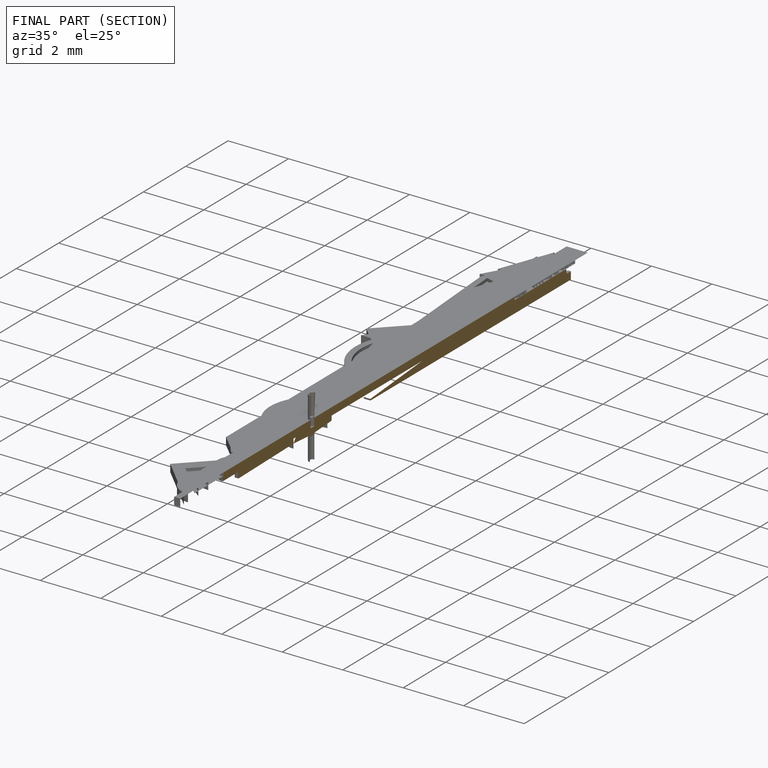
[diagram: finished part — half-section view (interior)]
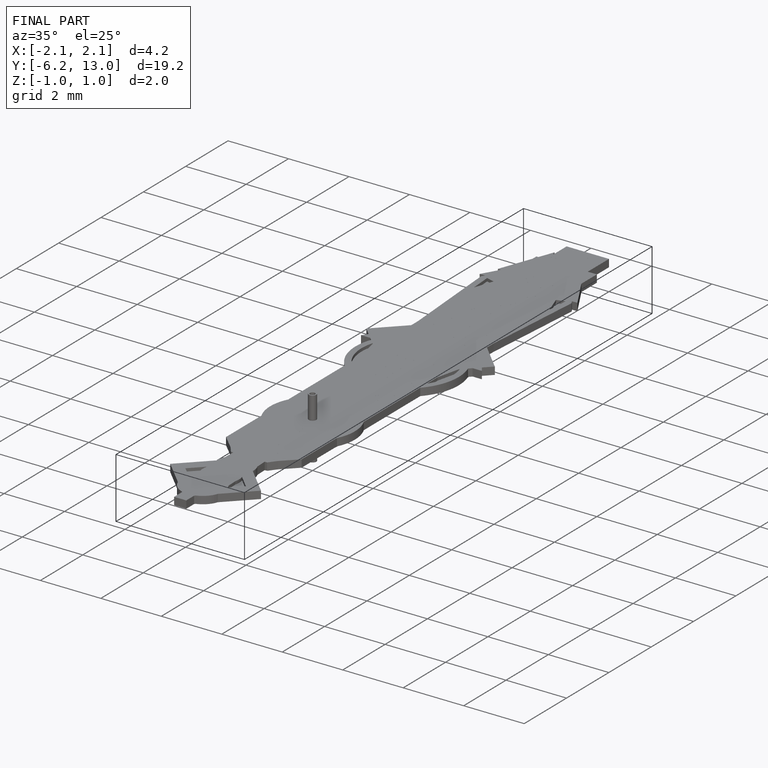
[diagram: finished part — iso view with bounding-box wireframe]
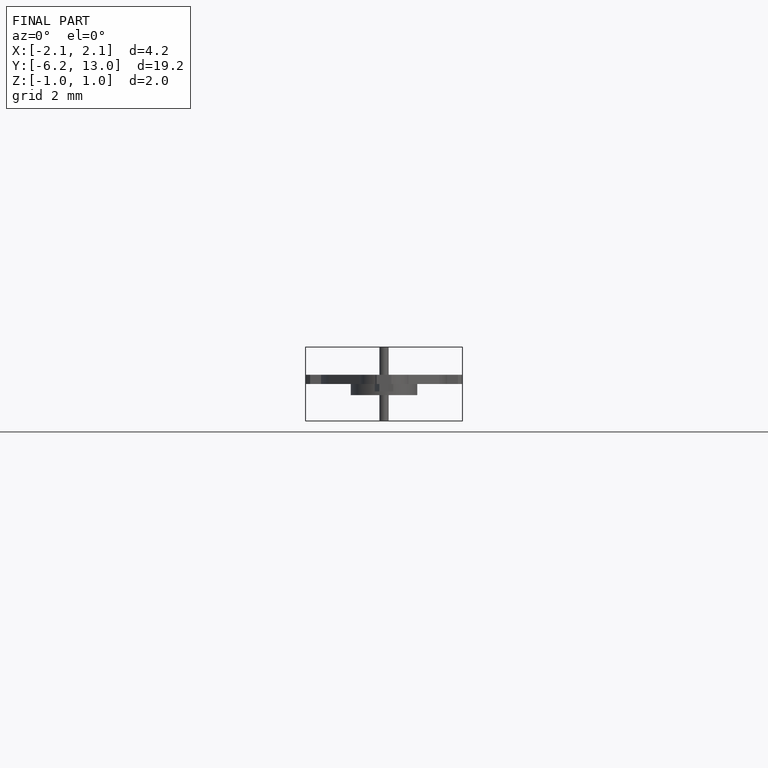
[diagram: finished part — front view with bounding-box wireframe]
